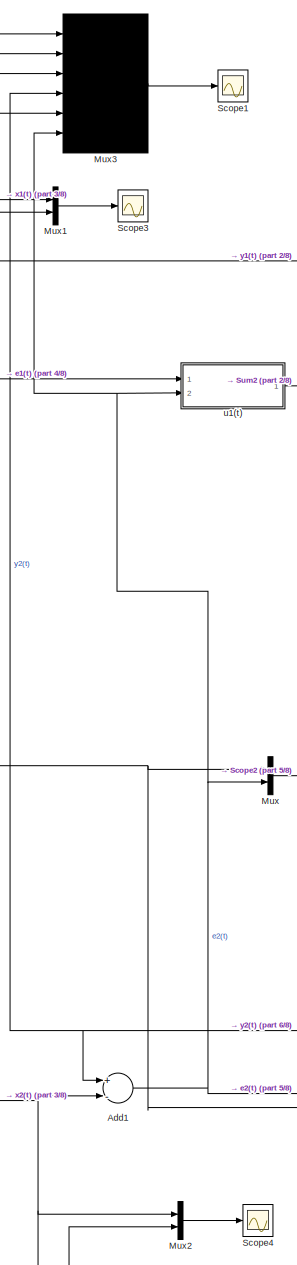
[diagram: root canvas - part 1/8, top center region]
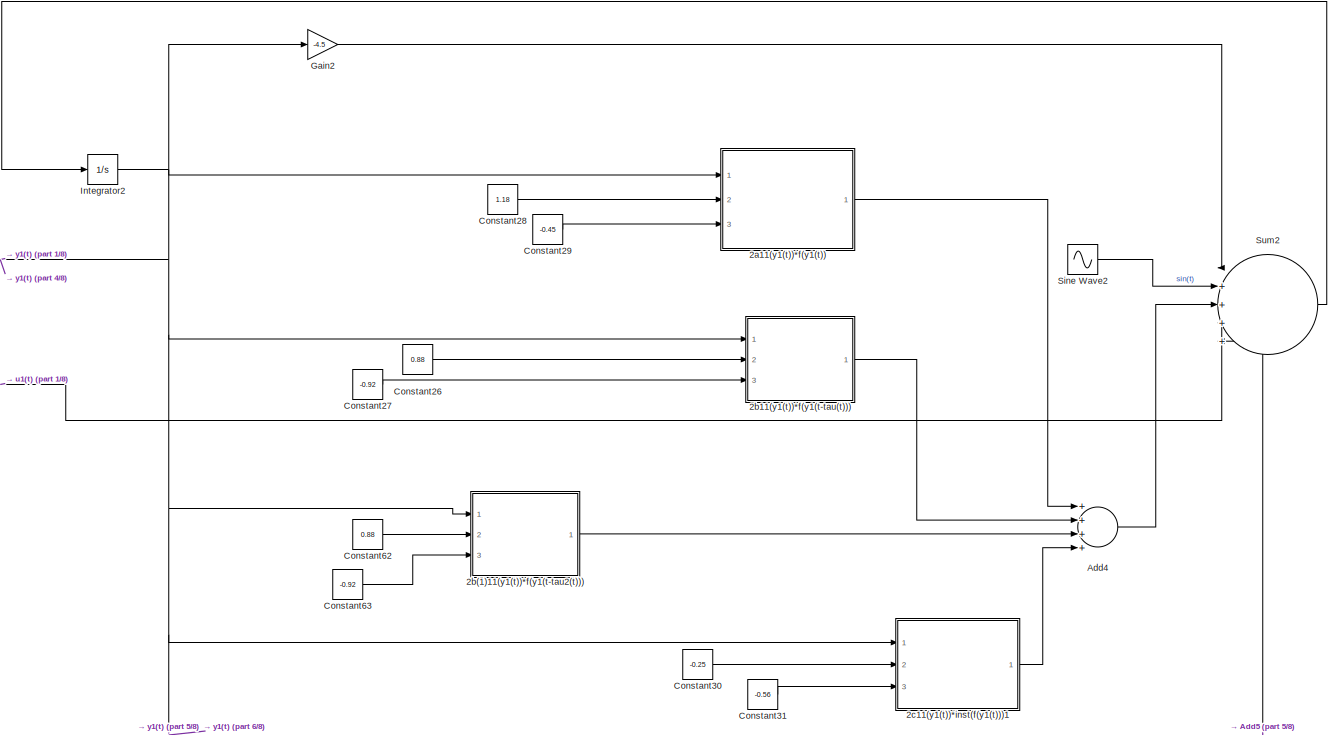
[diagram: root canvas - part 2/8, top right region]
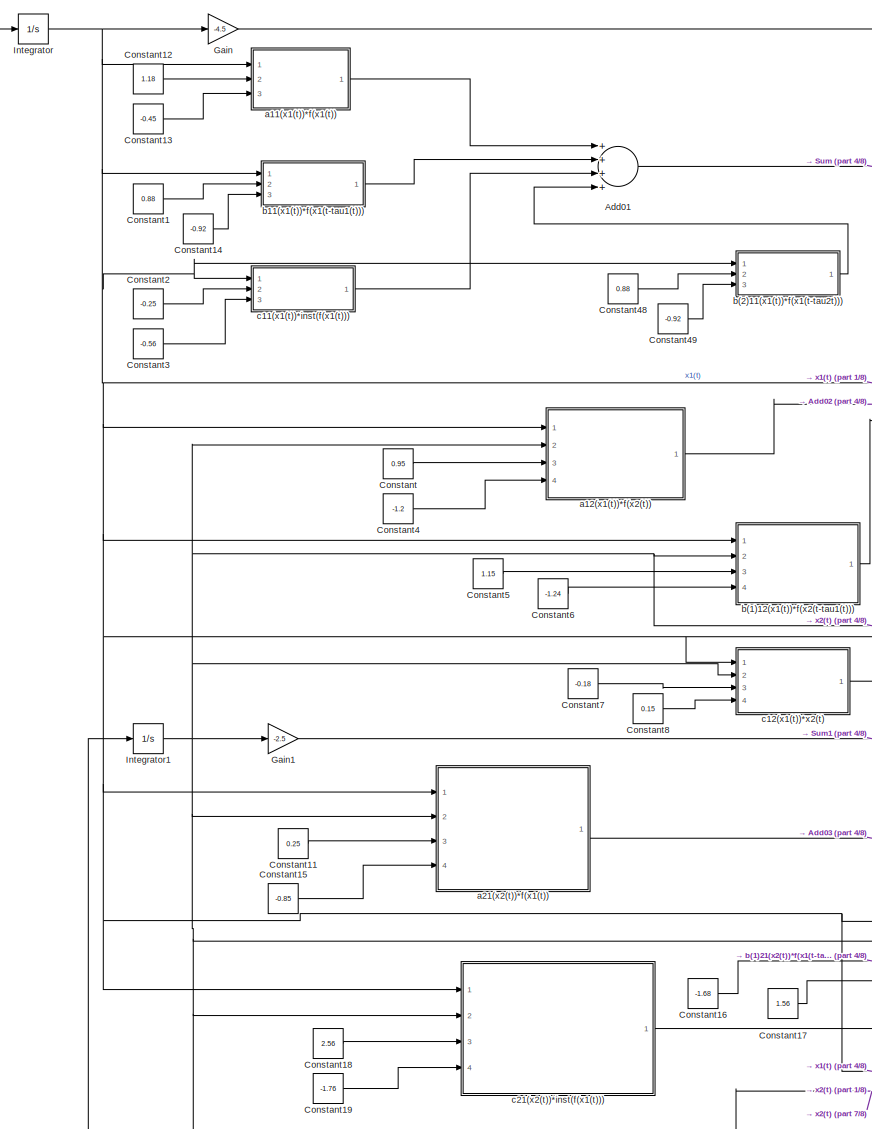
[diagram: root canvas - part 3/8, middle left region]
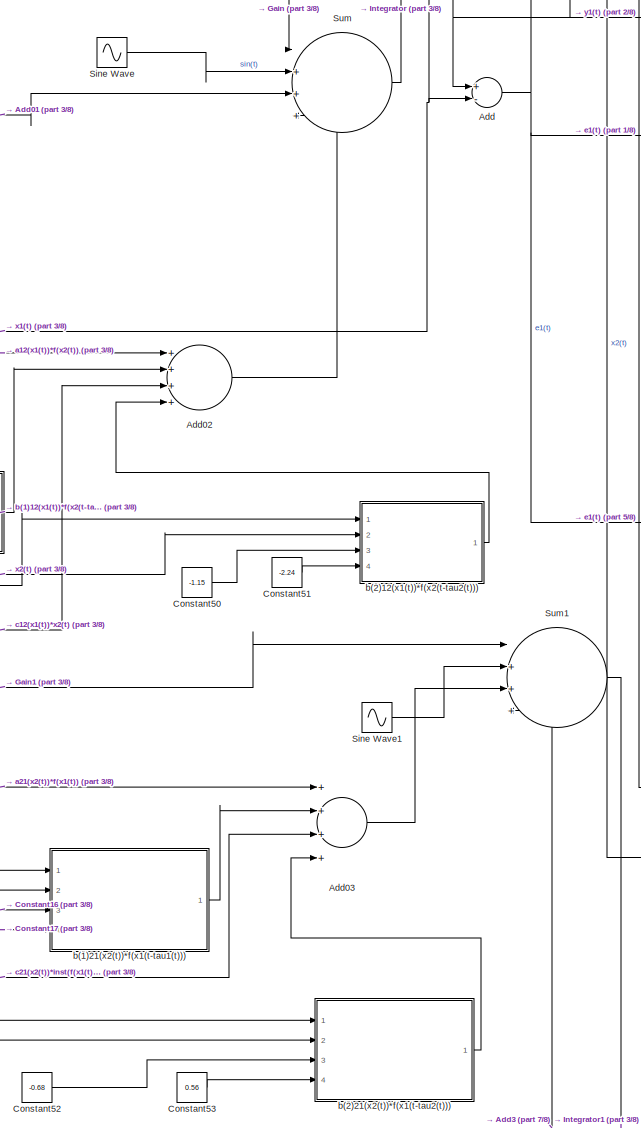
[diagram: root canvas - part 4/8, central region]
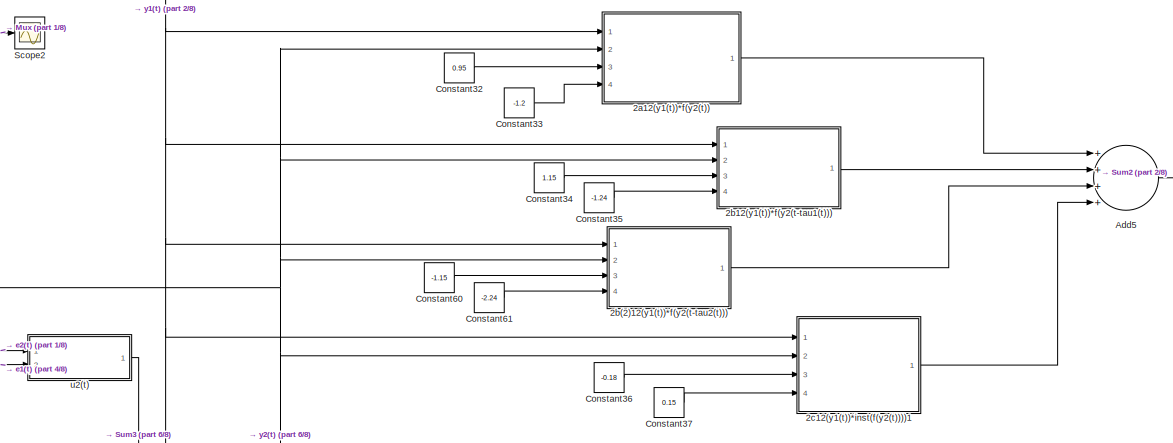
[diagram: root canvas - part 5/8, middle right region]
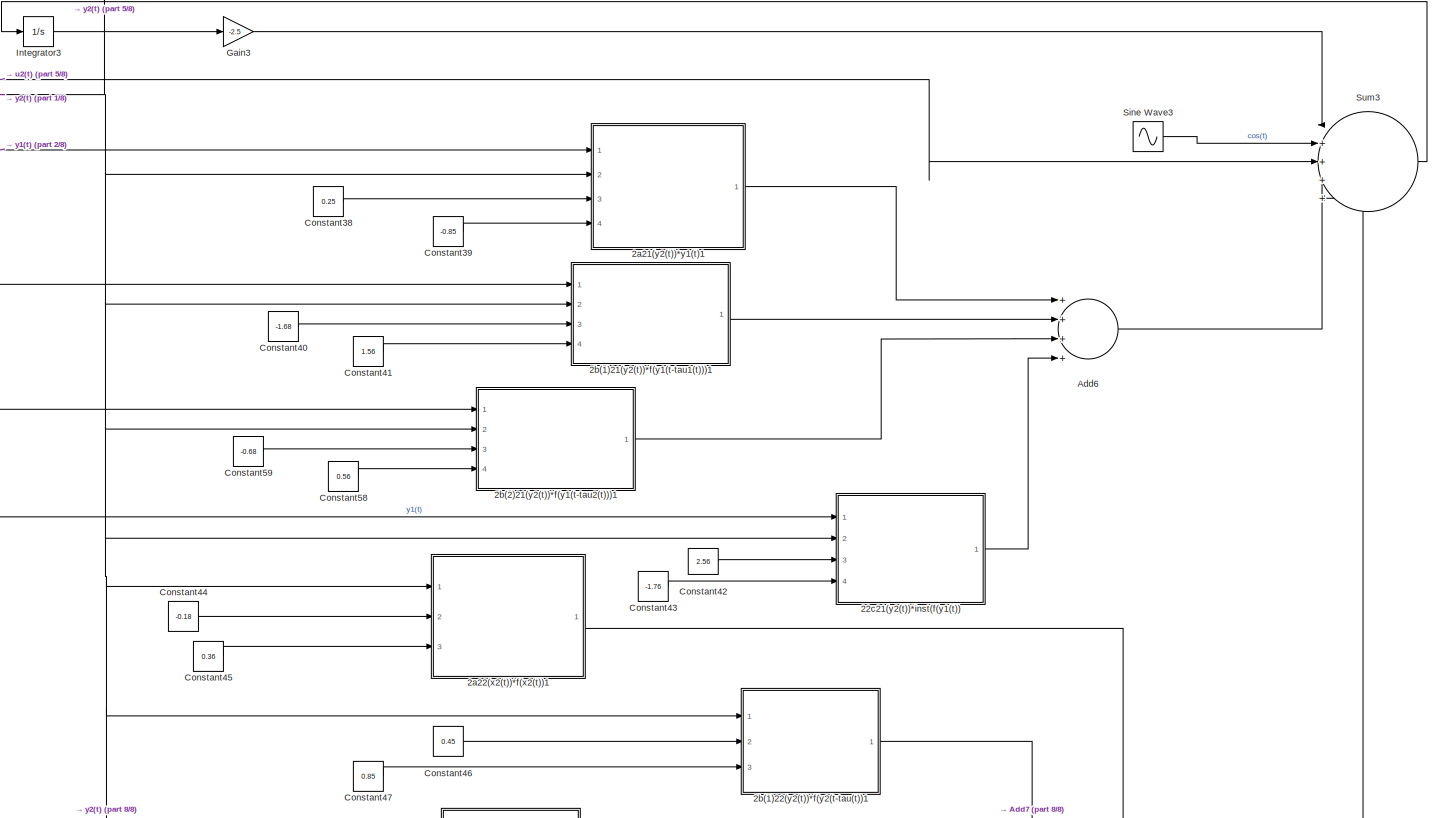
[diagram: root canvas - part 6/8, bottom right region]
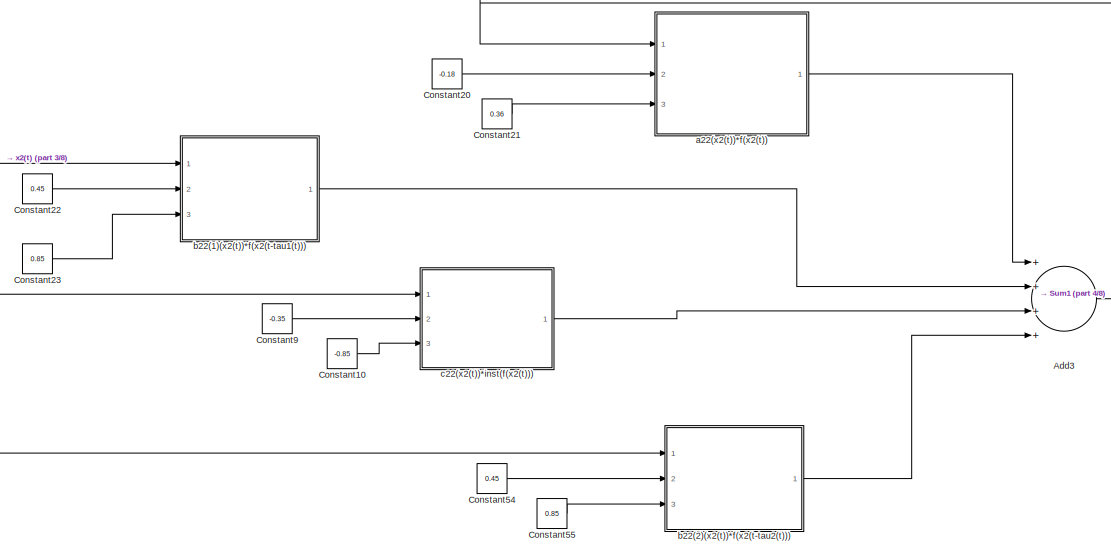
[diagram: root canvas - part 7/8, bottom left region]
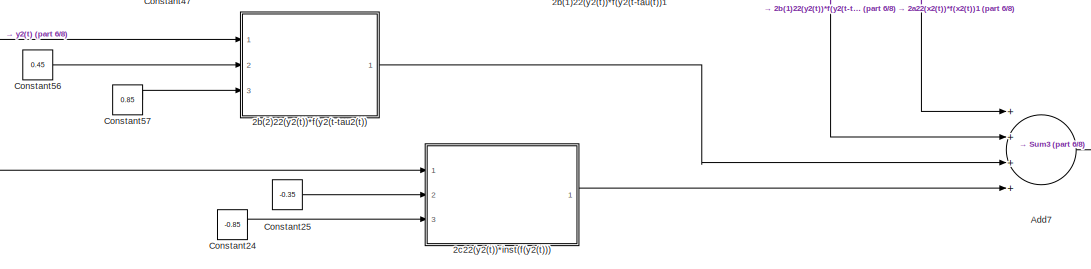
[diagram: root canvas - part 8/8, bottom right region]
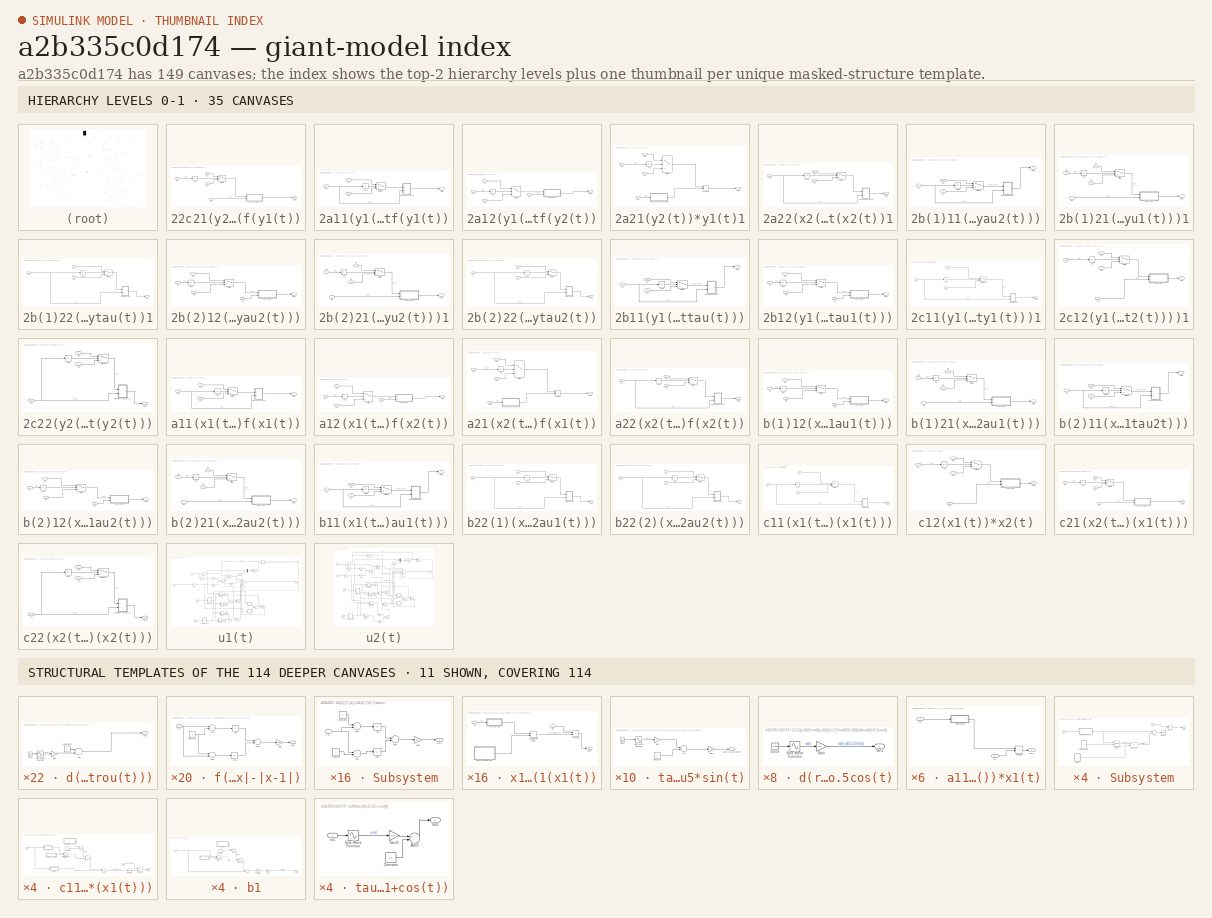
[diagram: thumbnail index - top-2 hierarchy levels (35 canvases) + 11 structural-template representatives of the remaining 114 canvases]
MODEL slx_a2b335c0d174
KIND model
BLOCK [SubSystem] 22c21(y2(t))*inst(f(y1(t))
  Ports = [4, 1]
  RequestExecContextInheritance = off
BLOCK [Abs] 22c21(y2(t))*inst(f(y1(t))/Abs
  SaturateOnIntegerOverflow = off
BLOCK [Inport] 22c21(y2(t))*inst(f(y1(t))/In1
  AttributesFormatString = %<Name>
  IconDisplay = Port number
BLOCK [Inport] 22c21(y2(t))*inst(f(y1(t))/In2
  AttributesFormatString = %<Name>
  IconDisplay = Port number
  Port = 2
BLOCK [Inport] 22c21(y2(t))*inst(f(y1(t))/In3
  AttributesFormatString = %<Name>
  IconDisplay = Port number
  Port = 3
BLOCK [Inport] 22c21(y2(t))*inst(f(y1(t))/In4
  AttributesFormatString = %<Name>
  IconDisplay = Port number
  Port = 4
BLOCK [Outport] 22c21(y2(t))*inst(f(y1(t))/Out1
  IconDisplay = Port number
BLOCK [SubSystem] 22c21(y2(t))*inst(f(y1(t))/Subsystem
  Ports = [2, 1]
  RequestExecContextInheritance = off
BLOCK [Sum] 22c21(y2(t))*inst(f(y1(t))/Subsystem/Add3
  InputSameDT = off
  Inputs = +-
  OutDataTypeStr = Inherit: Inherit via internal rule
  Ports = [2, 1]
  SaturateOnIntegerOverflow = off
BLOCK [Inport] 22c21(y2(t))*inst(f(y1(t))/Subsystem/In1
  IconDisplay = Port number
BLOCK [Inport] 22c21(y2(t))*inst(f(y1(t))/Subsystem/In2
  IconDisplay = Port number
  Port = 2
BLOCK [Integrator] 22c21(y2(t))*inst(f(y1(t))/Subsystem/Integrator
  AttributesFormatString = %<Name>\n%<InitialCondition>
  InitialCondition = 0.2
  Ports = [1, 1]
BLOCK [Outport] 22c21(y2(t))*inst(f(y1(t))/Subsystem/Out1
  IconDisplay = Port number
BLOCK [Product] 22c21(y2(t))*inst(f(y1(t))/Subsystem/Product
  InputSameDT = off
  OutDataTypeStr = Inherit: Inherit via internal rule
  Ports = [2, 1]
  RndMeth = Floor
  SaturateOnIntegerOverflow = off
BLOCK [Product] 22c21(y2(t))*inst(f(y1(t))/Subsystem/Product1
  InputSameDT = off
  OutDataTypeStr = Inherit: Inherit via internal rule
  Ports = [2, 1]
  RndMeth = Floor
  SaturateOnIntegerOverflow = off
BLOCK [VariableTransportDelay] 22c21(y2(t))*inst(f(y1(t))/Subsystem/Variable Time Delay
  AttributesFormatString = %<Name>
  MaximumDelay = 10
  MaximumPoints = 2^21
  Ports = [2, 1]
BLOCK [SubSystem] 22c21(y2(t))*inst(f(y1(t))/Subsystem/d(t-(rou(t)))
  Ports = [0, 1]
  RequestExecContextInheritance = off
BLOCK [Sum] 22c21(y2(t))*inst(f(y1(t))/Subsystem/d(t-(rou(t)))/Add
  InputSameDT = off
  Inputs = +-
  OutDataTypeStr = Inherit: Inherit via internal rule
  Ports = [2, 1]
  SaturateOnIntegerOverflow = off
BLOCK [Clock] 22c21(y2(t))*inst(f(y1(t))/Subsystem/d(t-(rou(t)))/Clock
BLOCK [Constant] 22c21(y2(t))*inst(f(y1(t))/Subsystem/d(t-(rou(t)))/Constant2
BLOCK [Gain] 22c21(y2(t))*inst(f(y1(t))/Subsystem/d(t-(rou(t)))/Gain
  Gain = 0.5
  OutDataTypeStr = Inherit: Inherit via internal rule
  ParamDataTypeStr = Inherit: Inherit via internal rule
  SaturateOnIntegerOverflow = off
BLOCK [Outport] 22c21(y2(t))*inst(f(y1(t))/Subsystem/d(t-(rou(t)))/Out1
  IconDisplay = Port number
BLOCK [Sin] 22c21(y2(t))*inst(f(y1(t))/Subsystem/d(t-(rou(t)))/Sine Wave Function
  AttributesFormatString = %<Name>
  Phase = 0.5*pi
  Ports = [1, 1]
  SampleTime = 0
  TimeSource = Use external signal
BLOCK [SubSystem] 22c21(y2(t))*inst(f(y1(t))/Subsystem/f(x(t))=0.5*(|x+1|-|x-1|)
  Ports = [1, 1]
  RequestExecContextInheritance = off
BLOCK [Abs] 22c21(y2(t))*inst(f(y1(t))/Subsystem/f(x(t))=0.5*(|x+1|-|x-1|)/Abs
  AttributesFormatString = %<Name>
  SaturateOnIntegerOverflow = off
BLOCK [Abs] 22c21(y2(t))*inst(f(y1(t))/Subsystem/f(x(t))=0.5*(|x+1|-|x-1|)/Abs1
  SaturateOnIntegerOverflow = off
BLOCK [Sum] 22c21(y2(t))*inst(f(y1(t))/Subsystem/f(x(t))=0.5*(|x+1|-|x-1|)/Add
  InputSameDT = off
  OutDataTypeStr = Inherit: Inherit via internal rule
  Ports = [2, 1]
  SaturateOnIntegerOverflow = off
BLOCK [Sum] 22c21(y2(t))*inst(f(y1(t))/Subsystem/f(x(t))=0.5*(|x+1|-|x-1|)/Add1
  InputSameDT = off
  Inputs = -+
  OutDataTypeStr = Inherit: Inherit via internal rule
  Ports = [2, 1]
  SaturateOnIntegerOverflow = off
BLOCK [Sum] 22c21(y2(t))*inst(f(y1(t))/Subsystem/f(x(t))=0.5*(|x+1|-|x-1|)/Add2
  InputSameDT = off
  Inputs = +-
  OutDataTypeStr = Inherit: Inherit via internal rule
  Ports = [2, 1]
  SaturateOnIntegerOverflow = off
BLOCK [Constant] 22c21(y2(t))*inst(f(y1(t))/Subsystem/f(x(t))=0.5*(|x+1|-|x-1|)/Constant
BLOCK [Gain] 22c21(y2(t))*inst(f(y1(t))/Subsystem/f(x(t))=0.5*(|x+1|-|x-1|)/Gain
  Gain = 0.5
  OutDataTypeStr = Inherit: Inherit via internal rule
  ParamDataTypeStr = Inherit: Inherit via internal rule
  SaturateOnIntegerOverflow = off
BLOCK [Inport] 22c21(y2(t))*inst(f(y1(t))/Subsystem/f(x(t))=0.5*(|x+1|-|x-1|)/In1
  AttributesFormatString = %<Name>
  IconDisplay = Port number
BLOCK [Outport] 22c21(y2(t))*inst(f(y1(t))/Subsystem/f(x(t))=0.5*(|x+1|-|x-1|)/Out1
  AttributesFormatString = %<Name>
  IconDisplay = Port number
BLOCK [SubSystem] 22c21(y2(t))*inst(f(y1(t))/Subsystem/rou(t)=0.5*(1+sin(t))
  Ports = [0, 1]
  RequestExecContextInheritance = off
BLOCK [Sum] 22c21(y2(t))*inst(f(y1(t))/Subsystem/rou(t)=0.5*(1+sin(t))/Add2
  InputSameDT = off
  OutDataTypeStr = Inherit: Inherit via internal rule
  Ports = [2, 1]
  SaturateOnIntegerOverflow = off
BLOCK [Clock] 22c21(y2(t))*inst(f(y1(t))/Subsystem/rou(t)=0.5*(1+sin(t))/Clock1
BLOCK [Constant] 22c21(y2(t))*inst(f(y1(t))/Subsystem/rou(t)=0.5*(1+sin(t))/Constant3
BLOCK [Gain] 22c21(y2(t))*inst(f(y1(t))/Subsystem/rou(t)=0.5*(1+sin(t))/Gain1
  Gain = 0.5
  OutDataTypeStr = Inherit: Inherit via internal rule
  ParamDataTypeStr = Inherit: Inherit via internal rule
  SaturateOnIntegerOverflow = off
BLOCK [Outport] 22c21(y2(t))*inst(f(y1(t))/Subsystem/rou(t)=0.5*(1+sin(t))/Out1
  IconDisplay = Port number
BLOCK [Sin] 22c21(y2(t))*inst(f(y1(t))/Subsystem/rou(t)=0.5*(1+sin(t))/Sine Wave Function1
  AttributesFormatString = %<Name>
  Ports = [1, 1]
  SampleTime = 0
  TimeSource = Use external signal
BLOCK [Switch] 22c21(y2(t))*inst(f(y1(t))/Switch
  Criteria = u2 > Threshold
  InputSameDT = off
  SaturateOnIntegerOverflow = off
  Threshold = 1
BLOCK [SubSystem] 2a11(y1(t))*f(y1(t))
  Ports = [3, 1]
  RequestExecContextInheritance = off
BLOCK [Abs] 2a11(y1(t))*f(y1(t))/Abs3
  SaturateOnIntegerOverflow = off
BLOCK [Inport] 2a11(y1(t))*f(y1(t))/In1
  IconDisplay = Port number
BLOCK [Inport] 2a11(y1(t))*f(y1(t))/In2
  IconDisplay = Port number
  Port = 2
BLOCK [Inport] 2a11(y1(t))*f(y1(t))/In3
  IconDisplay = Port number
  Port = 3
BLOCK [Outport] 2a11(y1(t))*f(y1(t))/Out1
  IconDisplay = Port number
BLOCK [Switch] 2a11(y1(t))*f(y1(t))/Switch4
  Criteria = u2 > Threshold
  InputSameDT = off
  SaturateOnIntegerOverflow = off
  Threshold = 1
BLOCK [SubSystem] 2a11(y1(t))*f(y1(t))/a11(x1(t))*x1(t)
  Ports = [2, 1]
  RequestExecContextInheritance = off
BLOCK [Inport] 2a11(y1(t))*f(y1(t))/a11(x1(t))*x1(t)/In2
  AttributesFormatString = %<Name>
  IconDisplay = Port number
  Port = 2
BLOCK [Outport] 2a11(y1(t))*f(y1(t))/a11(x1(t))*x1(t)/Out1
  IconDisplay = Port number
BLOCK [Product] 2a11(y1(t))*f(y1(t))/a11(x1(t))*x1(t)/Product
  InputSameDT = off
  OutDataTypeStr = Inherit: Inherit via internal rule
  Ports = [2, 1]
  SaturateOnIntegerOverflow = off
BLOCK [SubSystem] 2a11(y1(t))*f(y1(t))/a11(x1(t))*x1(t)/Subsystem
  Ports = [1, 1]
  RequestExecContextInheritance = off
BLOCK [Abs] 2a11(y1(t))*f(y1(t))/a11(x1(t))*x1(t)/Subsystem/Abs
  SaturateOnIntegerOverflow = off
BLOCK [Abs] 2a11(y1(t))*f(y1(t))/a11(x1(t))*x1(t)/Subsystem/Abs1
  SaturateOnIntegerOverflow = off
BLOCK [Sum] 2a11(y1(t))*f(y1(t))/a11(x1(t))*x1(t)/Subsystem/Add
  InputSameDT = off
  Inputs = +-
  OutDataTypeStr = Inherit: Inherit via internal rule
  Ports = [2, 1]
  SaturateOnIntegerOverflow = off
BLOCK [Sum] 2a11(y1(t))*f(y1(t))/a11(x1(t))*x1(t)/Subsystem/Add1
  InputSameDT = off
  OutDataTypeStr = Inherit: Inherit via internal rule
  Ports = [2, 1]
  SaturateOnIntegerOverflow = off
BLOCK [Sum] 2a11(y1(t))*f(y1(t))/a11(x1(t))*x1(t)/Subsystem/Add2
  InputSameDT = off
  Inputs = +-
  OutDataTypeStr = Inherit: Inherit via internal rule
  Ports = [2, 1]
  SaturateOnIntegerOverflow = off
BLOCK [Constant] 2a11(y1(t))*f(y1(t))/a11(x1(t))*x1(t)/Subsystem/Constant
BLOCK [Constant] 2a11(y1(t))*f(y1(t))/a11(x1(t))*x1(t)/Subsystem/Constant1
BLOCK [Gain] 2a11(y1(t))*f(y1(t))/a11(x1(t))*x1(t)/Subsystem/Gain
  Gain = 0.5
  OutDataTypeStr = Inherit: Inherit via internal rule
  ParamDataTypeStr = Inherit: Inherit via internal rule
  SaturateOnIntegerOverflow = off
BLOCK [Inport] 2a11(y1(t))*f(y1(t))/a11(x1(t))*x1(t)/Subsystem/In1
  IconDisplay = Port number
BLOCK [Outport] 2a11(y1(t))*f(y1(t))/a11(x1(t))*x1(t)/Subsystem/Out1
  IconDisplay = Port number
BLOCK [Inport] 2a11(y1(t))*f(y1(t))/a11(x1(t))*x1(t)/ln1
  IconDisplay = Port number
BLOCK [SubSystem] 2a12(y1(t))*f(y2(t))
  Ports = [4, 1]
  RequestExecContextInheritance = off
BLOCK [Abs] 2a12(y1(t))*f(y2(t))/Abs
  SaturateOnIntegerOverflow = off
BLOCK [Inport] 2a12(y1(t))*f(y2(t))/In1
  AttributesFormatString = %<Name>
  IconDisplay = Port number
BLOCK [Inport] 2a12(y1(t))*f(y2(t))/In2
  AttributesFormatString = %<Name>
  IconDisplay = Port number
  Port = 2
BLOCK [Inport] 2a12(y1(t))*f(y2(t))/In3
  AttributesFormatString = %<Name>
  IconDisplay = Port number
  Port = 3
BLOCK [Inport] 2a12(y1(t))*f(y2(t))/In4
  AttributesFormatString = %<Name>
  IconDisplay = Port number
  Port = 4
BLOCK [Outport] 2a12(y1(t))*f(y2(t))/Out1
  IconDisplay = Port number
BLOCK [SubSystem] 2a12(y1(t))*f(y2(t))/Subsystem
  Ports = [2, 1]
  RequestExecContextInheritance = off
BLOCK [Inport] 2a12(y1(t))*f(y2(t))/Subsystem/In1
  IconDisplay = Port number
BLOCK [Inport] 2a12(y1(t))*f(y2(t))/Subsystem/In2
  IconDisplay = Port number
  Port = 2
BLOCK [Outport] 2a12(y1(t))*f(y2(t))/Subsystem/Out1
  IconDisplay = Port number
BLOCK [Product] 2a12(y1(t))*f(y2(t))/Subsystem/Product
  InputSameDT = off
  OutDataTypeStr = Inherit: Inherit via internal rule
  Ports = [2, 1]
  RndMeth = Floor
  SaturateOnIntegerOverflow = off
BLOCK [SubSystem] 2a12(y1(t))*f(y2(t))/Subsystem/f(x2(t))
  Ports = [1, 1]
  RequestExecContextInheritance = off
BLOCK [Abs] 2a12(y1(t))*f(y2(t))/Subsystem/f(x2(t))/Abs
  SaturateOnIntegerOverflow = off
BLOCK [Abs] 2a12(y1(t))*f(y2(t))/Subsystem/f(x2(t))/Abs1
  SaturateOnIntegerOverflow = off
BLOCK [Sum] 2a12(y1(t))*f(y2(t))/Subsystem/f(x2(t))/Add
  InputSameDT = off
  OutDataTypeStr = Inherit: Inherit via internal rule
  Ports = [2, 1]
  SaturateOnIntegerOverflow = off
BLOCK [Sum] 2a12(y1(t))*f(y2(t))/Subsystem/f(x2(t))/Add1
  InputSameDT = off
  Inputs = -+
  OutDataTypeStr = Inherit: Inherit via internal rule
  Ports = [2, 1]
  SaturateOnIntegerOverflow = off
BLOCK [Sum] 2a12(y1(t))*f(y2(t))/Subsystem/f(x2(t))/Add2
  InputSameDT = off
  Inputs = +-
  OutDataTypeStr = Inherit: Inherit via internal rule
  Ports = [2, 1]
  SaturateOnIntegerOverflow = off
BLOCK [Constant] 2a12(y1(t))*f(y2(t))/Subsystem/f(x2(t))/Constant
BLOCK [Gain] 2a12(y1(t))*f(y2(t))/Subsystem/f(x2(t))/Gain
  Gain = 0.5
  OutDataTypeStr = Inherit: Inherit via internal rule
  ParamDataTypeStr = Inherit: Inherit via internal rule
  SaturateOnIntegerOverflow = off
BLOCK [Inport] 2a12(y1(t))*f(y2(t))/Subsystem/f(x2(t))/In1
  IconDisplay = Port number
BLOCK [Outport] 2a12(y1(t))*f(y2(t))/Subsystem/f(x2(t))/Out1
  IconDisplay = Port number
BLOCK [Switch] 2a12(y1(t))*f(y2(t))/Switch
  Criteria = u2 > Threshold
  InputSameDT = off
  SaturateOnIntegerOverflow = off
  Threshold = 1
BLOCK [SubSystem] 2a21(y2(t))*y1(t)1
  Ports = [4, 1]
  RequestExecContextInheritance = off
BLOCK [Abs] 2a21(y2(t))*y1(t)1/Abs
  AttributesFormatString = %<Name>
  SaturateOnIntegerOverflow = off
BLOCK [Inport] 2a21(y2(t))*y1(t)1/In1
  AttributesFormatString = %<Name>
  IconDisplay = Port number
BLOCK [Inport] 2a21(y2(t))*y1(t)1/In2
  AttributesFormatString = %<Name>
  IconDisplay = Port number
  Port = 2
BLOCK [Inport] 2a21(y2(t))*y1(t)1/In3
  AttributesFormatString = %<Name>
  IconDisplay = Port number
  Port = 3
BLOCK [Inport] 2a21(y2(t))*y1(t)1/In4
  AttributesFormatString = %<Name>
  IconDisplay = Port number
  Port = 4
BLOCK [Outport] 2a21(y2(t))*y1(t)1/Out1
  AttributesFormatString = %<Name>
  IconDisplay = Port number
BLOCK [Product] 2a21(y2(t))*y1(t)1/Product
  AttributesFormatString = %<Name>
  InputSameDT = off
  OutDataTypeStr = Inherit: Inherit via internal rule
  Ports = [2, 1]
  RndMeth = Floor
  SaturateOnIntegerOverflow = off
BLOCK [Switch] 2a21(y2(t))*y1(t)1/Switch
  Criteria = u2 > Threshold
  InputSameDT = off
  SaturateOnIntegerOverflow = off
  Threshold = 1
BLOCK [SubSystem] 2a21(y2(t))*y1(t)1/f1(x1(t))=(|x+1|-|x-1|)//2
  Ports = [1, 1]
  RequestExecContextInheritance = off
BLOCK [Abs] 2a21(y2(t))*y1(t)1/f1(x1(t))=(|x+1|-|x-1|)//2/Abs
  SaturateOnIntegerOverflow = off
BLOCK [Abs] 2a21(y2(t))*y1(t)1/f1(x1(t))=(|x+1|-|x-1|)//2/Abs1
  SaturateOnIntegerOverflow = off
BLOCK [Sum] 2a21(y2(t))*y1(t)1/f1(x1(t))=(|x+1|-|x-1|)//2/Add
  InputSameDT = off
  OutDataTypeStr = Inherit: Inherit via internal rule
  Ports = [2, 1]
  SaturateOnIntegerOverflow = off
BLOCK [Sum] 2a21(y2(t))*y1(t)1/f1(x1(t))=(|x+1|-|x-1|)//2/Add1
  InputSameDT = off
  Inputs = -+
  OutDataTypeStr = Inherit: Inherit via internal rule
  Ports = [2, 1]
  SaturateOnIntegerOverflow = off
BLOCK [Sum] 2a21(y2(t))*y1(t)1/f1(x1(t))=(|x+1|-|x-1|)//2/Add2
  InputSameDT = off
  Inputs = +-
  OutDataTypeStr = Inherit: Inherit via internal rule
  Ports = [2, 1]
  SaturateOnIntegerOverflow = off
BLOCK [Constant] 2a21(y2(t))*y1(t)1/f1(x1(t))=(|x+1|-|x-1|)//2/Constant
BLOCK [Gain] 2a21(y2(t))*y1(t)1/f1(x1(t))=(|x+1|-|x-1|)//2/Gain
  Gain = 0.5
  OutDataTypeStr = Inherit: Inherit via internal rule
  ParamDataTypeStr = Inherit: Inherit via internal rule
  SaturateOnIntegerOverflow = off
BLOCK [Inport] 2a21(y2(t))*y1(t)1/f1(x1(t))=(|x+1|-|x-1|)//2/In1
  IconDisplay = Port number
BLOCK [Outport] 2a21(y2(t))*y1(t)1/f1(x1(t))=(|x+1|-|x-1|)//2/Out1
  IconDisplay = Port number
BLOCK [SubSystem] 2a22(x2(t))*f(x2(t))1
  Ports = [3, 1]
  RequestExecContextInheritance = off
BLOCK [Abs] 2a22(x2(t))*f(x2(t))1/Abs3
  SaturateOnIntegerOverflow = off
BLOCK [Inport] 2a22(x2(t))*f(x2(t))1/In1
  IconDisplay = Port number
BLOCK [Inport] 2a22(x2(t))*f(x2(t))1/In2
  IconDisplay = Port number
  Port = 2
BLOCK [Inport] 2a22(x2(t))*f(x2(t))1/In3
  IconDisplay = Port number
  Port = 3
BLOCK [Outport] 2a22(x2(t))*f(x2(t))1/Out1
  IconDisplay = Port number
BLOCK [Switch] 2a22(x2(t))*f(x2(t))1/Switch4
  Criteria = u2 > Threshold
  InputSameDT = off
  SaturateOnIntegerOverflow = off
  Threshold = 1
BLOCK [SubSystem] 2a22(x2(t))*f(x2(t))1/a22(x2(t))*x2(t)
  Ports = [2, 1]
  RequestExecContextInheritance = off
BLOCK [Inport] 2a22(x2(t))*f(x2(t))1/a22(x2(t))*x2(t)/In2
  IconDisplay = Port number
  Port = 2
BLOCK [Outport] 2a22(x2(t))*f(x2(t))1/a22(x2(t))*x2(t)/Out1
  IconDisplay = Port number
BLOCK [Product] 2a22(x2(t))*f(x2(t))1/a22(x2(t))*x2(t)/Product
  InputSameDT = off
  OutDataTypeStr = Inherit: Inherit via internal rule
  Ports = [2, 1]
  SaturateOnIntegerOverflow = off
BLOCK [SubSystem] 2a22(x2(t))*f(x2(t))1/a22(x2(t))*x2(t)/f(x(t))=0.5*(|x+1|-|x-1|)
  Ports = [1, 1]
  RequestExecContextInheritance = off
BLOCK [Abs] 2a22(x2(t))*f(x2(t))1/a22(x2(t))*x2(t)/f(x(t))=0.5*(|x+1|-|x-1|)/Abs
  SaturateOnIntegerOverflow = off
BLOCK [Abs] 2a22(x2(t))*f(x2(t))1/a22(x2(t))*x2(t)/f(x(t))=0.5*(|x+1|-|x-1|)/Abs1
  SaturateOnIntegerOverflow = off
BLOCK [Sum] 2a22(x2(t))*f(x2(t))1/a22(x2(t))*x2(t)/f(x(t))=0.5*(|x+1|-|x-1|)/Add
  InputSameDT = off
  Inputs = +-
  OutDataTypeStr = Inherit: Inherit via internal rule
  Ports = [2, 1]
  SaturateOnIntegerOverflow = off
BLOCK [Sum] 2a22(x2(t))*f(x2(t))1/a22(x2(t))*x2(t)/f(x(t))=0.5*(|x+1|-|x-1|)/Add1
  InputSameDT = off
  OutDataTypeStr = Inherit: Inherit via internal rule
  Ports = [2, 1]
  SaturateOnIntegerOverflow = off
BLOCK [Sum] 2a22(x2(t))*f(x2(t))1/a22(x2(t))*x2(t)/f(x(t))=0.5*(|x+1|-|x-1|)/Add2
  InputSameDT = off
  Inputs = +-
  OutDataTypeStr = Inherit: Inherit via internal rule
  Ports = [2, 1]
  SaturateOnIntegerOverflow = off
BLOCK [Constant] 2a22(x2(t))*f(x2(t))1/a22(x2(t))*x2(t)/f(x(t))=0.5*(|x+1|-|x-1|)/Constant
BLOCK [Constant] 2a22(x2(t))*f(x2(t))1/a22(x2(t))*x2(t)/f(x(t))=0.5*(|x+1|-|x-1|)/Constant1
BLOCK [Gain] 2a22(x2(t))*f(x2(t))1/a22(x2(t))*x2(t)/f(x(t))=0.5*(|x+1|-|x-1|)/Gain
  Gain = 0.5
  OutDataTypeStr = Inherit: Inherit via internal rule
  ParamDataTypeStr = Inherit: Inherit via internal rule
  SaturateOnIntegerOverflow = off
BLOCK [Inport] 2a22(x2(t))*f(x2(t))1/a22(x2(t))*x2(t)/f(x(t))=0.5*(|x+1|-|x-1|)/In1
  IconDisplay = Port number
BLOCK [Outport] 2a22(x2(t))*f(x2(t))1/a22(x2(t))*x2(t)/f(x(t))=0.5*(|x+1|-|x-1|)/Out1
  IconDisplay = Port number
BLOCK [Inport] 2a22(x2(t))*f(x2(t))1/a22(x2(t))*x2(t)/ln1
  IconDisplay = Port number
BLOCK [SubSystem] 2b(1)11(y1(t))*f(y1(t-tau2(t)))
  Ports = [3, 1]
  RequestExecContextInheritance = off
BLOCK [Abs] 2b(1)11(y1(t))*f(y1(t-tau2(t)))/Abs1
  SaturateOnIntegerOverflow = off
BLOCK [Inport] 2b(1)11(y1(t))*f(y1(t-tau2(t)))/In1
  IconDisplay = Port number
BLOCK [Inport] 2b(1)11(y1(t))*f(y1(t-tau2(t)))/In2
  IconDisplay = Port number
  Port = 2
BLOCK [Inport] 2b(1)11(y1(t))*f(y1(t-tau2(t)))/In3
  IconDisplay = Port number
  Port = 3
BLOCK [Outport] 2b(1)11(y1(t))*f(y1(t-tau2(t)))/Out1
  IconDisplay = Port number
BLOCK [Switch] 2b(1)11(y1(t))*f(y1(t-tau2(t)))/Switch1
  Criteria = u2 > Threshold
  InputSameDT = off
  SaturateOnIntegerOverflow = off
  Threshold = 1
BLOCK [SubSystem] 2b(1)11(y1(t))*f(y1(t-tau2(t)))/x1(t)*b11(x1(t))
  Ports = [2, 1]
  RequestExecContextInheritance = off
BLOCK [Inport] 2b(1)11(y1(t))*f(y1(t-tau2(t)))/x1(t)*b11(x1(t))/In1
  IconDisplay = Port number
BLOCK [Inport] 2b(1)11(y1(t))*f(y1(t-tau2(t)))/x1(t)*b11(x1(t))/In2
  IconDisplay = Port number
  Port = 2
BLOCK [Outport] 2b(1)11(y1(t))*f(y1(t-tau2(t)))/x1(t)*b11(x1(t))/Out1
  IconDisplay = Port number
BLOCK [Product] 2b(1)11(y1(t))*f(y1(t-tau2(t)))/x1(t)*b11(x1(t))/Product1
  InputSameDT = off
  OutDataTypeStr = Inherit: Inherit via internal rule
  Ports = [2, 1]
  SaturateOnIntegerOverflow = off
BLOCK [VariableTransportDelay] 2b(1)11(y1(t))*f(y1(t-tau2(t)))/x1(t)*b11(x1(t))/Variable Time Delay
  MaximumDelay = 10
  MaximumPoints = 2^25
  Ports = [2, 1]
BLOCK [SubSystem] 2b(1)11(y1(t))*f(y1(t-tau2(t)))/x1(t)*b11(x1(t))/f=(|x+1|-|x-1|)//2
  Ports = [1, 1]
  RequestExecContextInheritance = off
BLOCK [Abs] 2b(1)11(y1(t))*f(y1(t-tau2(t)))/x1(t)*b11(x1(t))/f=(|x+1|-|x-1|)//2/Abs
  SaturateOnIntegerOverflow = off
BLOCK [Abs] 2b(1)11(y1(t))*f(y1(t-tau2(t)))/x1(t)*b11(x1(t))/f=(|x+1|-|x-1|)//2/Abs1
  SaturateOnIntegerOverflow = off
BLOCK [Sum] 2b(1)11(y1(t))*f(y1(t-tau2(t)))/x1(t)*b11(x1(t))/f=(|x+1|-|x-1|)//2/Add
  InputSameDT = off
  Inputs = +-
  OutDataTypeStr = Inherit: Inherit via internal rule
  Ports = [2, 1]
  SaturateOnIntegerOverflow = off
BLOCK [Sum] 2b(1)11(y1(t))*f(y1(t-tau2(t)))/x1(t)*b11(x1(t))/f=(|x+1|-|x-1|)//2/Add1
  InputSameDT = off
  OutDataTypeStr = Inherit: Inherit via internal rule
  Ports = [2, 1]
  SaturateOnIntegerOverflow = off
BLOCK [Sum] 2b(1)11(y1(t))*f(y1(t-tau2(t)))/x1(t)*b11(x1(t))/f=(|x+1|-|x-1|)//2/Add2
  InputSameDT = off
  Inputs = +-
  OutDataTypeStr = Inherit: Inherit via internal rule
  Ports = [2, 1]
  SaturateOnIntegerOverflow = off
BLOCK [Constant] 2b(1)11(y1(t))*f(y1(t-tau2(t)))/x1(t)*b11(x1(t))/f=(|x+1|-|x-1|)//2/Constant
BLOCK [Constant] 2b(1)11(y1(t))*f(y1(t-tau2(t)))/x1(t)*b11(x1(t))/f=(|x+1|-|x-1|)//2/Constant1
BLOCK [Gain] 2b(1)11(y1(t))*f(y1(t-tau2(t)))/x1(t)*b11(x1(t))/f=(|x+1|-|x-1|)//2/Gain
  Gain = 0.5
  OutDataTypeStr = Inherit: Inherit via internal rule
  ParamDataTypeStr = Inherit: Inherit via internal rule
  SaturateOnIntegerOverflow = off
BLOCK [Inport] 2b(1)11(y1(t))*f(y1(t-tau2(t)))/x1(t)*b11(x1(t))/f=(|x+1|-|x-1|)//2/In1
  IconDisplay = Port number
BLOCK [Outport] 2b(1)11(y1(t))*f(y1(t-tau2(t)))/x1(t)*b11(x1(t))/f=(|x+1|-|x-1|)//2/Out1
  IconDisplay = Port number
BLOCK [SubSystem] 2b(1)11(y1(t))*f(y1(t-tau2(t)))/x1(t)*b11(x1(t))/tau2(t)=0.5+0.5*sin(t)
  Ports = [0, 1]
  RequestExecContextInheritance = off
BLOCK [Sum] 2b(1)11(y1(t))*f(y1(t-tau2(t)))/x1(t)*b11(x1(t))/tau2(t)=0.5+0.5*sin(t)/Add
  InputSameDT = off
  OutDataTypeStr = Inherit: Inherit via internal rule
  Ports = [2, 1]
  SaturateOnIntegerOverflow = off
BLOCK [Clock] 2b(1)11(y1(t))*f(y1(t-tau2(t)))/x1(t)*b11(x1(t))/tau2(t)=0.5+0.5*sin(t)/Clock
BLOCK [Constant] 2b(1)11(y1(t))*f(y1(t-tau2(t)))/x1(t)*b11(x1(t))/tau2(t)=0.5+0.5*sin(t)/Constant
BLOCK [Gain] 2b(1)11(y1(t))*f(y1(t-tau2(t)))/x1(t)*b11(x1(t))/tau2(t)=0.5+0.5*sin(t)/Gain
  OutDataTypeStr = Inherit: Inherit via internal rule
  ParamDataTypeStr = Inherit: Inherit via internal rule
  SaturateOnIntegerOverflow = off
BLOCK [Gain] 2b(1)11(y1(t))*f(y1(t-tau2(t)))/x1(t)*b11(x1(t))/tau2(t)=0.5+0.5*sin(t)/Gain1
  Gain = 0.5
  OutDataTypeStr = Inherit: Inherit via internal rule
  ParamDataTypeStr = Inherit: Inherit via internal rule
  SaturateOnIntegerOverflow = off
BLOCK [Sin] 2b(1)11(y1(t))*f(y1(t-tau2(t)))/x1(t)*b11(x1(t))/tau2(t)=0.5+0.5*sin(t)/Sine Wave Function
  AttributesFormatString = %<Name>
  Ports = [1, 1]
  SampleTime = 0
  TimeSource = Use external signal
BLOCK [Outport] 2b(1)11(y1(t))*f(y1(t-tau2(t)))/x1(t)*b11(x1(t))/tau2(t)=0.5+0.5*sin(t)/tau(t)=0.5+0.5*sin(t)
  IconDisplay = Port number
BLOCK [SubSystem] 2b(1)21(y2(t))*f(y1(t-tau1(t)))1
  Ports = [4, 1]
  RequestExecContextInheritance = off
BLOCK [Abs] 2b(1)21(y2(t))*f(y1(t-tau1(t)))1/Abs
  SaturateOnIntegerOverflow = off
BLOCK [Inport] 2b(1)21(y2(t))*f(y1(t-tau1(t)))1/In1
  AttributesFormatString = %<Name>
  IconDisplay = Port number
BLOCK [Inport] 2b(1)21(y2(t))*f(y1(t-tau1(t)))1/In2
  AttributesFormatString = %<Name>
  IconDisplay = Port number
  Port = 2
BLOCK [Inport] 2b(1)21(y2(t))*f(y1(t-tau1(t)))1/In3
  AttributesFormatString = %<Name>
  IconDisplay = Port number
  Port = 3
BLOCK [Inport] 2b(1)21(y2(t))*f(y1(t-tau1(t)))1/In4
  AttributesFormatString = %<Name>
  IconDisplay = Port number
  Port = 4
BLOCK [Outport] 2b(1)21(y2(t))*f(y1(t-tau1(t)))1/Out1
  IconDisplay = Port number
BLOCK [SubSystem] 2b(1)21(y2(t))*f(y1(t-tau1(t)))1/Subsystem
  Ports = [2, 1]
  RequestExecContextInheritance = off
BLOCK [Inport] 2b(1)21(y2(t))*f(y1(t-tau1(t)))1/Subsystem/In1
  AttributesFormatString = %<Name>
  IconDisplay = Port number
BLOCK [Inport] 2b(1)21(y2(t))*f(y1(t-tau1(t)))1/Subsystem/In2
  IconDisplay = Port number
  Port = 2
BLOCK [Outport] 2b(1)21(y2(t))*f(y1(t-tau1(t)))1/Subsystem/Out1
  AttributesFormatString = %<Name>
  IconDisplay = Port number
BLOCK [Product] 2b(1)21(y2(t))*f(y1(t-tau1(t)))1/Subsystem/Product
  InputSameDT = off
  OutDataTypeStr = Inherit: Inherit via internal rule
  Ports = [2, 1]
  RndMeth = Floor
  SaturateOnIntegerOverflow = off
BLOCK [VariableTransportDelay] 2b(1)21(y2(t))*f(y1(t-tau1(t)))1/Subsystem/Variable Time Delay
  AttributesFormatString = %<Name>
  MaximumDelay = 10
  MaximumPoints = 2^25
  Ports = [2, 1]
BLOCK [SubSystem] 2b(1)21(y2(t))*f(y1(t-tau1(t)))1/Subsystem/f(x(t))=0.5*(|x+1|-|x-1|)
  Ports = [1, 1]
  RequestExecContextInheritance = off
BLOCK [Abs] 2b(1)21(y2(t))*f(y1(t-tau1(t)))1/Subsystem/f(x(t))=0.5*(|x+1|-|x-1|)/Abs
  AttributesFormatString = %<Name>
  SaturateOnIntegerOverflow = off
BLOCK [Abs] 2b(1)21(y2(t))*f(y1(t-tau1(t)))1/Subsystem/f(x(t))=0.5*(|x+1|-|x-1|)/Abs1
  SaturateOnIntegerOverflow = off
BLOCK [Sum] 2b(1)21(y2(t))*f(y1(t-tau1(t)))1/Subsystem/f(x(t))=0.5*(|x+1|-|x-1|)/Add
  InputSameDT = off
  OutDataTypeStr = Inherit: Inherit via internal rule
  Ports = [2, 1]
  SaturateOnIntegerOverflow = off
BLOCK [Sum] 2b(1)21(y2(t))*f(y1(t-tau1(t)))1/Subsystem/f(x(t))=0.5*(|x+1|-|x-1|)/Add1
  InputSameDT = off
  Inputs = -+
  OutDataTypeStr = Inherit: Inherit via internal rule
  Ports = [2, 1]
  SaturateOnIntegerOverflow = off
BLOCK [Sum] 2b(1)21(y2(t))*f(y1(t-tau1(t)))1/Subsystem/f(x(t))=0.5*(|x+1|-|x-1|)/Add2
  InputSameDT = off
  Inputs = +-
  OutDataTypeStr = Inherit: Inherit via internal rule
  Ports = [2, 1]
  SaturateOnIntegerOverflow = off
BLOCK [Constant] 2b(1)21(y2(t))*f(y1(t-tau1(t)))1/Subsystem/f(x(t))=0.5*(|x+1|-|x-1|)/Constant
BLOCK [Gain] 2b(1)21(y2(t))*f(y1(t-tau1(t)))1/Subsystem/f(x(t))=0.5*(|x+1|-|x-1|)/Gain
  Gain = 0.5
  OutDataTypeStr = Inherit: Inherit via internal rule
  ParamDataTypeStr = Inherit: Inherit via internal rule
  SaturateOnIntegerOverflow = off
BLOCK [Inport] 2b(1)21(y2(t))*f(y1(t-tau1(t)))1/Subsystem/f(x(t))=0.5*(|x+1|-|x-1|)/In1
  AttributesFormatString = %<Name>
  IconDisplay = Port number
BLOCK [Outport] 2b(1)21(y2(t))*f(y1(t-tau1(t)))1/Subsystem/f(x(t))=0.5*(|x+1|-|x-1|)/Out1
  AttributesFormatString = %<Name>
  IconDisplay = Port number
BLOCK [SubSystem] 2b(1)21(y2(t))*f(y1(t-tau1(t)))1/Subsystem/tau(t)=0.5+0.5*cos(t)
  Ports = [0, 1]
  RequestExecContextInheritance = off
BLOCK [Sum] 2b(1)21(y2(t))*f(y1(t-tau1(t)))1/Subsystem/tau(t)=0.5+0.5*cos(t)/Add
  InputSameDT = off
  OutDataTypeStr = Inherit: Inherit via internal rule
  Ports = [2, 1]
  SaturateOnIntegerOverflow = off
BLOCK [Clock] 2b(1)21(y2(t))*f(y1(t-tau1(t)))1/Subsystem/tau(t)=0.5+0.5*cos(t)/Clock
BLOCK [Constant] 2b(1)21(y2(t))*f(y1(t-tau1(t)))1/Subsystem/tau(t)=0.5+0.5*cos(t)/Constant2
BLOCK [Gain] 2b(1)21(y2(t))*f(y1(t-tau1(t)))1/Subsystem/tau(t)=0.5+0.5*cos(t)/Gain
  Gain = 0.5
  OutDataTypeStr = Inherit: Inherit via internal rule
  ParamDataTypeStr = Inherit: Inherit via internal rule
  SaturateOnIntegerOverflow = off
BLOCK [Outport] 2b(1)21(y2(t))*f(y1(t-tau1(t)))1/Subsystem/tau(t)=0.5+0.5*cos(t)/Out1
  IconDisplay = Port number
BLOCK [Sin] 2b(1)21(y2(t))*f(y1(t-tau1(t)))1/Subsystem/tau(t)=0.5+0.5*cos(t)/Sine Wave Function
  AttributesFormatString = %<Name>
  Phase = 0.5*pi
  Ports = [1, 1]
  SampleTime = 0
  TimeSource = Use external signal
BLOCK [Switch] 2b(1)21(y2(t))*f(y1(t-tau1(t)))1/Switch
  AttributesFormatString = %<Name>
  Criteria = u2 > Threshold
  InputSameDT = off
  SaturateOnIntegerOverflow = off
  Threshold = 1
BLOCK [SubSystem] 2b(1)22(y2(t))*f(y2(t-tau(t))1
  Ports = [3, 1]
  RequestExecContextInheritance = off
BLOCK [Abs] 2b(1)22(y2(t))*f(y2(t-tau(t))1/Abs1
  SaturateOnIntegerOverflow = off
BLOCK [Inport] 2b(1)22(y2(t))*f(y2(t-tau(t))1/In1
  IconDisplay = Port number
BLOCK [Inport] 2b(1)22(y2(t))*f(y2(t-tau(t))1/In2
  IconDisplay = Port number
  Port = 2
BLOCK [Inport] 2b(1)22(y2(t))*f(y2(t-tau(t))1/In3
  IconDisplay = Port number
  Port = 3
BLOCK [Outport] 2b(1)22(y2(t))*f(y2(t-tau(t))1/Out1
  IconDisplay = Port number
BLOCK [Switch] 2b(1)22(y2(t))*f(y2(t-tau(t))1/Switch1
  Criteria = u2 > Threshold
  InputSameDT = off
  SaturateOnIntegerOverflow = off
  Threshold = 1
BLOCK [SubSystem] 2b(1)22(y2(t))*f(y2(t-tau(t))1/x2(t)*b22(x2(t))
  Ports = [2, 1]
  RequestExecContextInheritance = off
BLOCK [Inport] 2b(1)22(y2(t))*f(y2(t-tau(t))1/x2(t)*b22(x2(t))/In1
  IconDisplay = Port number
BLOCK [Inport] 2b(1)22(y2(t))*f(y2(t-tau(t))1/x2(t)*b22(x2(t))/In2
  IconDisplay = Port number
  Port = 2
BLOCK [Outport] 2b(1)22(y2(t))*f(y2(t-tau(t))1/x2(t)*b22(x2(t))/Out1
  IconDisplay = Port number
BLOCK [Product] 2b(1)22(y2(t))*f(y2(t-tau(t))1/x2(t)*b22(x2(t))/Product1
  InputSameDT = off
  OutDataTypeStr = Inherit: Inherit via internal rule
  Ports = [2, 1]
  SaturateOnIntegerOverflow = off
BLOCK [VariableTransportDelay] 2b(1)22(y2(t))*f(y2(t-tau(t))1/x2(t)*b22(x2(t))/Variable Time Delay
  MaximumDelay = 10
  MaximumPoints = 2^25
  Ports = [2, 1]
BLOCK [SubSystem] 2b(1)22(y2(t))*f(y2(t-tau(t))1/x2(t)*b22(x2(t))/f(x(t))=0.5*(|x+1|-|x-1|)
  Ports = [1, 1]
  RequestExecContextInheritance = off
BLOCK [Abs] 2b(1)22(y2(t))*f(y2(t-tau(t))1/x2(t)*b22(x2(t))/f(x(t))=0.5*(|x+1|-|x-1|)/Abs
  SaturateOnIntegerOverflow = off
BLOCK [Abs] 2b(1)22(y2(t))*f(y2(t-tau(t))1/x2(t)*b22(x2(t))/f(x(t))=0.5*(|x+1|-|x-1|)/Abs1
  SaturateOnIntegerOverflow = off
BLOCK [Sum] 2b(1)22(y2(t))*f(y2(t-tau(t))1/x2(t)*b22(x2(t))/f(x(t))=0.5*(|x+1|-|x-1|)/Add
  InputSameDT = off
  Inputs = +-
  OutDataTypeStr = Inherit: Inherit via internal rule
  Ports = [2, 1]
  SaturateOnIntegerOverflow = off
BLOCK [Sum] 2b(1)22(y2(t))*f(y2(t-tau(t))1/x2(t)*b22(x2(t))/f(x(t))=0.5*(|x+1|-|x-1|)/Add1
  InputSameDT = off
  OutDataTypeStr = Inherit: Inherit via internal rule
  Ports = [2, 1]
  SaturateOnIntegerOverflow = off
BLOCK [Sum] 2b(1)22(y2(t))*f(y2(t-tau(t))1/x2(t)*b22(x2(t))/f(x(t))=0.5*(|x+1|-|x-1|)/Add2
  InputSameDT = off
  Inputs = +-
  OutDataTypeStr = Inherit: Inherit via internal rule
  Ports = [2, 1]
  SaturateOnIntegerOverflow = off
BLOCK [Constant] 2b(1)22(y2(t))*f(y2(t-tau(t))1/x2(t)*b22(x2(t))/f(x(t))=0.5*(|x+1|-|x-1|)/Constant
BLOCK [Constant] 2b(1)22(y2(t))*f(y2(t-tau(t))1/x2(t)*b22(x2(t))/f(x(t))=0.5*(|x+1|-|x-1|)/Constant1
BLOCK [Gain] 2b(1)22(y2(t))*f(y2(t-tau(t))1/x2(t)*b22(x2(t))/f(x(t))=0.5*(|x+1|-|x-1|)/Gain
  Gain = 0.5
  OutDataTypeStr = Inherit: Inherit via internal rule
  ParamDataTypeStr = Inherit: Inherit via internal rule
  SaturateOnIntegerOverflow = off
BLOCK [Inport] 2b(1)22(y2(t))*f(y2(t-tau(t))1/x2(t)*b22(x2(t))/f(x(t))=0.5*(|x+1|-|x-1|)/In1
  IconDisplay = Port number
BLOCK [Outport] 2b(1)22(y2(t))*f(y2(t-tau(t))1/x2(t)*b22(x2(t))/f(x(t))=0.5*(|x+1|-|x-1|)/Out1
  IconDisplay = Port number
BLOCK [SubSystem] 2b(1)22(y2(t))*f(y2(t-tau(t))1/x2(t)*b22(x2(t))/tau(t)=0.5+0.5*cos(t)
  Ports = [0, 1]
  RequestExecContextInheritance = off
BLOCK [Sum] 2b(1)22(y2(t))*f(y2(t-tau(t))1/x2(t)*b22(x2(t))/tau(t)=0.5+0.5*cos(t)/Add
  InputSameDT = off
  OutDataTypeStr = Inherit: Inherit via internal rule
  Ports = [2, 1]
  SaturateOnIntegerOverflow = off
BLOCK [Clock] 2b(1)22(y2(t))*f(y2(t-tau(t))1/x2(t)*b22(x2(t))/tau(t)=0.5+0.5*cos(t)/Clock
BLOCK [Constant] 2b(1)22(y2(t))*f(y2(t-tau(t))1/x2(t)*b22(x2(t))/tau(t)=0.5+0.5*cos(t)/Constant
BLOCK [Gain] 2b(1)22(y2(t))*f(y2(t-tau(t))1/x2(t)*b22(x2(t))/tau(t)=0.5+0.5*cos(t)/Gain
  OutDataTypeStr = Inherit: Inherit via internal rule
  ParamDataTypeStr = Inherit: Inherit via internal rule
  SaturateOnIntegerOverflow = off
BLOCK [Gain] 2b(1)22(y2(t))*f(y2(t-tau(t))1/x2(t)*b22(x2(t))/tau(t)=0.5+0.5*cos(t)/Gain1
  Gain = 0.5
  OutDataTypeStr = Inherit: Inherit via internal rule
  ParamDataTypeStr = Inherit: Inherit via internal rule
  SaturateOnIntegerOverflow = off
BLOCK [Outport] 2b(1)22(y2(t))*f(y2(t-tau(t))1/x2(t)*b22(x2(t))/tau(t)=0.5+0.5*cos(t)/Out1
  IconDisplay = Port number
BLOCK [Sin] 2b(1)22(y2(t))*f(y2(t-tau(t))1/x2(t)*b22(x2(t))/tau(t)=0.5+0.5*cos(t)/Sine Wave Function
  AttributesFormatString = %<Name>
  Phase = 0.5*pi
  Ports = [1, 1]
  SampleTime = 0
  TimeSource = Use external signal
BLOCK [SubSystem] 2b(2)12(y1(t))*f(y2(t-tau2(t)))
  Ports = [4, 1]
  RequestExecContextInheritance = off
BLOCK [Abs] 2b(2)12(y1(t))*f(y2(t-tau2(t)))/Abs
  SaturateOnIntegerOverflow = off
BLOCK [Inport] 2b(2)12(y1(t))*f(y2(t-tau2(t)))/In1
  IconDisplay = Port number
BLOCK [Inport] 2b(2)12(y1(t))*f(y2(t-tau2(t)))/In2
  IconDisplay = Port number
  Port = 2
BLOCK [Inport] 2b(2)12(y1(t))*f(y2(t-tau2(t)))/In3
  IconDisplay = Port number
  Port = 3
BLOCK [Inport] 2b(2)12(y1(t))*f(y2(t-tau2(t)))/In4
  IconDisplay = Port number
  Port = 4
BLOCK [Outport] 2b(2)12(y1(t))*f(y2(t-tau2(t)))/Out1
  AttributesFormatString = %<Name>
  IconDisplay = Port number
BLOCK [SubSystem] 2b(2)12(y1(t))*f(y2(t-tau2(t)))/Subsystem
  Ports = [2, 1]
  RequestExecContextInheritance = off
BLOCK [Inport] 2b(2)12(y1(t))*f(y2(t-tau2(t)))/Subsystem/In1
  AttributesFormatString = %<Name>
  IconDisplay = Port number
BLOCK [Inport] 2b(2)12(y1(t))*f(y2(t-tau2(t)))/Subsystem/In2
  AttributesFormatString = %<Name>
  IconDisplay = Port number
  Port = 2
BLOCK [Outport] 2b(2)12(y1(t))*f(y2(t-tau2(t)))/Subsystem/Out1
  IconDisplay = Port number
BLOCK [Product] 2b(2)12(y1(t))*f(y2(t-tau2(t)))/Subsystem/Product
  InputSameDT = off
  OutDataTypeStr = Inherit: Inherit via internal rule
  Ports = [2, 1]
  RndMeth = Floor
  SaturateOnIntegerOverflow = off
BLOCK [VariableTransportDelay] 2b(2)12(y1(t))*f(y2(t-tau2(t)))/Subsystem/Variable Time Delay
  AttributesFormatString = %<Name>
  MaximumDelay = 10
  MaximumPoints = 2^25
  Ports = [2, 1]
BLOCK [SubSystem] 2b(2)12(y1(t))*f(y2(t-tau2(t)))/Subsystem/f=(|x+1|-|x-1|)//2
  Ports = [1, 1]
  RequestExecContextInheritance = off
BLOCK [Abs] 2b(2)12(y1(t))*f(y2(t-tau2(t)))/Subsystem/f=(|x+1|-|x-1|)//2/Abs
  AttributesFormatString = %<Name>
  SaturateOnIntegerOverflow = off
BLOCK [Abs] 2b(2)12(y1(t))*f(y2(t-tau2(t)))/Subsystem/f=(|x+1|-|x-1|)//2/Abs1
  SaturateOnIntegerOverflow = off
BLOCK [Sum] 2b(2)12(y1(t))*f(y2(t-tau2(t)))/Subsystem/f=(|x+1|-|x-1|)//2/Add
  InputSameDT = off
  OutDataTypeStr = Inherit: Inherit via internal rule
  Ports = [2, 1]
  SaturateOnIntegerOverflow = off
BLOCK [Sum] 2b(2)12(y1(t))*f(y2(t-tau2(t)))/Subsystem/f=(|x+1|-|x-1|)//2/Add1
  InputSameDT = off
  Inputs = -+
  OutDataTypeStr = Inherit: Inherit via internal rule
  Ports = [2, 1]
  SaturateOnIntegerOverflow = off
BLOCK [Sum] 2b(2)12(y1(t))*f(y2(t-tau2(t)))/Subsystem/f=(|x+1|-|x-1|)//2/Add2
  InputSameDT = off
  Inputs = +-
  OutDataTypeStr = Inherit: Inherit via internal rule
  Ports = [2, 1]
  SaturateOnIntegerOverflow = off
BLOCK [Constant] 2b(2)12(y1(t))*f(y2(t-tau2(t)))/Subsystem/f=(|x+1|-|x-1|)//2/Constant
BLOCK [Gain] 2b(2)12(y1(t))*f(y2(t-tau2(t)))/Subsystem/f=(|x+1|-|x-1|)//2/Gain
  Gain = 0.5
  OutDataTypeStr = Inherit: Inherit via internal rule
  ParamDataTypeStr = Inherit: Inherit via internal rule
  SaturateOnIntegerOverflow = off
BLOCK [Inport] 2b(2)12(y1(t))*f(y2(t-tau2(t)))/Subsystem/f=(|x+1|-|x-1|)//2/In1
  AttributesFormatString = %<Name>
  IconDisplay = Port number
BLOCK [Outport] 2b(2)12(y1(t))*f(y2(t-tau2(t)))/Subsystem/f=(|x+1|-|x-1|)//2/Out1
  AttributesFormatString = %<Name>
  IconDisplay = Port number
BLOCK [SubSystem] 2b(2)12(y1(t))*f(y2(t-tau2(t)))/Subsystem/tau(t)=0.5+0.5*sin(t)
  Ports = [0, 1]
  RequestExecContextInheritance = off
BLOCK [Sum] 2b(2)12(y1(t))*f(y2(t-tau2(t)))/Subsystem/tau(t)=0.5+0.5*sin(t)/Add
  InputSameDT = off
  OutDataTypeStr = Inherit: Inherit via internal rule
  Ports = [2, 1]
  SaturateOnIntegerOverflow = off
BLOCK [Clock] 2b(2)12(y1(t))*f(y2(t-tau2(t)))/Subsystem/tau(t)=0.5+0.5*sin(t)/Clock
BLOCK [Constant] 2b(2)12(y1(t))*f(y2(t-tau2(t)))/Subsystem/tau(t)=0.5+0.5*sin(t)/Constant2
BLOCK [Gain] 2b(2)12(y1(t))*f(y2(t-tau2(t)))/Subsystem/tau(t)=0.5+0.5*sin(t)/Gain
  Gain = 0.5
  OutDataTypeStr = Inherit: Inherit via internal rule
  ParamDataTypeStr = Inherit: Inherit via internal rule
  SaturateOnIntegerOverflow = off
BLOCK [Outport] 2b(2)12(y1(t))*f(y2(t-tau2(t)))/Subsystem/tau(t)=0.5+0.5*sin(t)/Out1
  IconDisplay = Port number
BLOCK [Sin] 2b(2)12(y1(t))*f(y2(t-tau2(t)))/Subsystem/tau(t)=0.5+0.5*sin(t)/Sine Wave Function
  AttributesFormatString = %<Name>
  Ports = [1, 1]
  SampleTime = 0
  TimeSource = Use external signal
BLOCK [Switch] 2b(2)12(y1(t))*f(y2(t-tau2(t)))/Switch
  Criteria = u2 > Threshold
  InputSameDT = off
  SaturateOnIntegerOverflow = off
  Threshold = 1
BLOCK [SubSystem] 2b(2)21(y2(t))*f(y1(t-tau2(t)))1
  Ports = [4, 1]
  RequestExecContextInheritance = off
BLOCK [Abs] 2b(2)21(y2(t))*f(y1(t-tau2(t)))1/Abs
  SaturateOnIntegerOverflow = off
BLOCK [Inport] 2b(2)21(y2(t))*f(y1(t-tau2(t)))1/In1
  AttributesFormatString = %<Name>
  IconDisplay = Port number
BLOCK [Inport] 2b(2)21(y2(t))*f(y1(t-tau2(t)))1/In2
  AttributesFormatString = %<Name>
  IconDisplay = Port number
  Port = 2
BLOCK [Inport] 2b(2)21(y2(t))*f(y1(t-tau2(t)))1/In3
  AttributesFormatString = %<Name>
  IconDisplay = Port number
  Port = 3
BLOCK [Inport] 2b(2)21(y2(t))*f(y1(t-tau2(t)))1/In4
  AttributesFormatString = %<Name>
  IconDisplay = Port number
  Port = 4
BLOCK [Outport] 2b(2)21(y2(t))*f(y1(t-tau2(t)))1/Out1
  IconDisplay = Port number
BLOCK [SubSystem] 2b(2)21(y2(t))*f(y1(t-tau2(t)))1/Subsystem
  Ports = [2, 1]
  RequestExecContextInheritance = off
BLOCK [Inport] 2b(2)21(y2(t))*f(y1(t-tau2(t)))1/Subsystem/In1
  AttributesFormatString = %<Name>
  IconDisplay = Port number
BLOCK [Inport] 2b(2)21(y2(t))*f(y1(t-tau2(t)))1/Subsystem/In2
  IconDisplay = Port number
  Port = 2
BLOCK [Outport] 2b(2)21(y2(t))*f(y1(t-tau2(t)))1/Subsystem/Out1
  AttributesFormatString = %<Name>
  IconDisplay = Port number
BLOCK [Product] 2b(2)21(y2(t))*f(y1(t-tau2(t)))1/Subsystem/Product
  InputSameDT = off
  OutDataTypeStr = Inherit: Inherit via internal rule
  Ports = [2, 1]
  RndMeth = Floor
  SaturateOnIntegerOverflow = off
BLOCK [VariableTransportDelay] 2b(2)21(y2(t))*f(y1(t-tau2(t)))1/Subsystem/Variable Time Delay
  AttributesFormatString = %<Name>
  MaximumDelay = 10
  MaximumPoints = 2^25
  Ports = [2, 1]
BLOCK [SubSystem] 2b(2)21(y2(t))*f(y1(t-tau2(t)))1/Subsystem/f(x(t))=0.5*(|x+1|-|x-1|)
  Ports = [1, 1]
  RequestExecContextInheritance = off
BLOCK [Abs] 2b(2)21(y2(t))*f(y1(t-tau2(t)))1/Subsystem/f(x(t))=0.5*(|x+1|-|x-1|)/Abs
  AttributesFormatString = %<Name>
  SaturateOnIntegerOverflow = off
BLOCK [Abs] 2b(2)21(y2(t))*f(y1(t-tau2(t)))1/Subsystem/f(x(t))=0.5*(|x+1|-|x-1|)/Abs1
  SaturateOnIntegerOverflow = off
BLOCK [Sum] 2b(2)21(y2(t))*f(y1(t-tau2(t)))1/Subsystem/f(x(t))=0.5*(|x+1|-|x-1|)/Add
  InputSameDT = off
  OutDataTypeStr = Inherit: Inherit via internal rule
  Ports = [2, 1]
  SaturateOnIntegerOverflow = off
BLOCK [Sum] 2b(2)21(y2(t))*f(y1(t-tau2(t)))1/Subsystem/f(x(t))=0.5*(|x+1|-|x-1|)/Add1
  InputSameDT = off
  Inputs = -+
  OutDataTypeStr = Inherit: Inherit via internal rule
  Ports = [2, 1]
  SaturateOnIntegerOverflow = off
BLOCK [Sum] 2b(2)21(y2(t))*f(y1(t-tau2(t)))1/Subsystem/f(x(t))=0.5*(|x+1|-|x-1|)/Add2
  InputSameDT = off
  Inputs = +-
  OutDataTypeStr = Inherit: Inherit via internal rule
  Ports = [2, 1]
  SaturateOnIntegerOverflow = off
BLOCK [Constant] 2b(2)21(y2(t))*f(y1(t-tau2(t)))1/Subsystem/f(x(t))=0.5*(|x+1|-|x-1|)/Constant
BLOCK [Gain] 2b(2)21(y2(t))*f(y1(t-tau2(t)))1/Subsystem/f(x(t))=0.5*(|x+1|-|x-1|)/Gain
  Gain = 0.5
  OutDataTypeStr = Inherit: Inherit via internal rule
  ParamDataTypeStr = Inherit: Inherit via internal rule
  SaturateOnIntegerOverflow = off
BLOCK [Inport] 2b(2)21(y2(t))*f(y1(t-tau2(t)))1/Subsystem/f(x(t))=0.5*(|x+1|-|x-1|)/In1
  AttributesFormatString = %<Name>
  IconDisplay = Port number
BLOCK [Outport] 2b(2)21(y2(t))*f(y1(t-tau2(t)))1/Subsystem/f(x(t))=0.5*(|x+1|-|x-1|)/Out1
  AttributesFormatString = %<Name>
  IconDisplay = Port number
BLOCK [SubSystem] 2b(2)21(y2(t))*f(y1(t-tau2(t)))1/Subsystem/tau(t)=0.5+0.5*sin(t)
  Ports = [0, 1]
  RequestExecContextInheritance = off
BLOCK [Sum] 2b(2)21(y2(t))*f(y1(t-tau2(t)))1/Subsystem/tau(t)=0.5+0.5*sin(t)/Add
  InputSameDT = off
  OutDataTypeStr = Inherit: Inherit via internal rule
  Ports = [2, 1]
  SaturateOnIntegerOverflow = off
BLOCK [Clock] 2b(2)21(y2(t))*f(y1(t-tau2(t)))1/Subsystem/tau(t)=0.5+0.5*sin(t)/Clock
BLOCK [Constant] 2b(2)21(y2(t))*f(y1(t-tau2(t)))1/Subsystem/tau(t)=0.5+0.5*sin(t)/Constant2
BLOCK [Gain] 2b(2)21(y2(t))*f(y1(t-tau2(t)))1/Subsystem/tau(t)=0.5+0.5*sin(t)/Gain
  Gain = 0.5
  OutDataTypeStr = Inherit: Inherit via internal rule
  ParamDataTypeStr = Inherit: Inherit via internal rule
  SaturateOnIntegerOverflow = off
BLOCK [Outport] 2b(2)21(y2(t))*f(y1(t-tau2(t)))1/Subsystem/tau(t)=0.5+0.5*sin(t)/Out1
  IconDisplay = Port number
BLOCK [Sin] 2b(2)21(y2(t))*f(y1(t-tau2(t)))1/Subsystem/tau(t)=0.5+0.5*sin(t)/Sine Wave Function
  AttributesFormatString = %<Name>
  Ports = [1, 1]
  SampleTime = 0
  TimeSource = Use external signal
BLOCK [Switch] 2b(2)21(y2(t))*f(y1(t-tau2(t)))1/Switch
  AttributesFormatString = %<Name>
  Criteria = u2 > Threshold
  InputSameDT = off
  SaturateOnIntegerOverflow = off
  Threshold = 1
BLOCK [SubSystem] 2b(2)22(y2(t))*f(y2(t-tau2(t))
  Ports = [3, 1]
  RequestExecContextInheritance = off
BLOCK [Abs] 2b(2)22(y2(t))*f(y2(t-tau2(t))/Abs1
  SaturateOnIntegerOverflow = off
BLOCK [Inport] 2b(2)22(y2(t))*f(y2(t-tau2(t))/In1
  IconDisplay = Port number
BLOCK [Inport] 2b(2)22(y2(t))*f(y2(t-tau2(t))/In2
  IconDisplay = Port number
  Port = 2
BLOCK [Inport] 2b(2)22(y2(t))*f(y2(t-tau2(t))/In3
  IconDisplay = Port number
  Port = 3
BLOCK [Outport] 2b(2)22(y2(t))*f(y2(t-tau2(t))/Out1
  IconDisplay = Port number
BLOCK [Switch] 2b(2)22(y2(t))*f(y2(t-tau2(t))/Switch1
  Criteria = u2 > Threshold
  InputSameDT = off
  SaturateOnIntegerOverflow = off
  Threshold = 1
BLOCK [SubSystem] 2b(2)22(y2(t))*f(y2(t-tau2(t))/x2(t)*b22(x2(t))
  Ports = [2, 1]
  RequestExecContextInheritance = off
BLOCK [Inport] 2b(2)22(y2(t))*f(y2(t-tau2(t))/x2(t)*b22(x2(t))/In1
  IconDisplay = Port number
BLOCK [Inport] 2b(2)22(y2(t))*f(y2(t-tau2(t))/x2(t)*b22(x2(t))/In2
  IconDisplay = Port number
  Port = 2
BLOCK [Outport] 2b(2)22(y2(t))*f(y2(t-tau2(t))/x2(t)*b22(x2(t))/Out1
  IconDisplay = Port number
BLOCK [Product] 2b(2)22(y2(t))*f(y2(t-tau2(t))/x2(t)*b22(x2(t))/Product1
  InputSameDT = off
  OutDataTypeStr = Inherit: Inherit via internal rule
  Ports = [2, 1]
  SaturateOnIntegerOverflow = off
BLOCK [VariableTransportDelay] 2b(2)22(y2(t))*f(y2(t-tau2(t))/x2(t)*b22(x2(t))/Variable Time Delay
  MaximumDelay = 10
  MaximumPoints = 2^25
  Ports = [2, 1]
BLOCK [SubSystem] 2b(2)22(y2(t))*f(y2(t-tau2(t))/x2(t)*b22(x2(t))/f(x(t))=0.5*(|x+1|-|x-1|)
  Ports = [1, 1]
  RequestExecContextInheritance = off
BLOCK [Abs] 2b(2)22(y2(t))*f(y2(t-tau2(t))/x2(t)*b22(x2(t))/f(x(t))=0.5*(|x+1|-|x-1|)/Abs
  SaturateOnIntegerOverflow = off
BLOCK [Abs] 2b(2)22(y2(t))*f(y2(t-tau2(t))/x2(t)*b22(x2(t))/f(x(t))=0.5*(|x+1|-|x-1|)/Abs1
  SaturateOnIntegerOverflow = off
BLOCK [Sum] 2b(2)22(y2(t))*f(y2(t-tau2(t))/x2(t)*b22(x2(t))/f(x(t))=0.5*(|x+1|-|x-1|)/Add
  InputSameDT = off
  Inputs = +-
  OutDataTypeStr = Inherit: Inherit via internal rule
  Ports = [2, 1]
  SaturateOnIntegerOverflow = off
BLOCK [Sum] 2b(2)22(y2(t))*f(y2(t-tau2(t))/x2(t)*b22(x2(t))/f(x(t))=0.5*(|x+1|-|x-1|)/Add1
  InputSameDT = off
  OutDataTypeStr = Inherit: Inherit via internal rule
  Ports = [2, 1]
  SaturateOnIntegerOverflow = off
BLOCK [Sum] 2b(2)22(y2(t))*f(y2(t-tau2(t))/x2(t)*b22(x2(t))/f(x(t))=0.5*(|x+1|-|x-1|)/Add2
  InputSameDT = off
  Inputs = +-
  OutDataTypeStr = Inherit: Inherit via internal rule
  Ports = [2, 1]
  SaturateOnIntegerOverflow = off
BLOCK [Constant] 2b(2)22(y2(t))*f(y2(t-tau2(t))/x2(t)*b22(x2(t))/f(x(t))=0.5*(|x+1|-|x-1|)/Constant
BLOCK [Constant] 2b(2)22(y2(t))*f(y2(t-tau2(t))/x2(t)*b22(x2(t))/f(x(t))=0.5*(|x+1|-|x-1|)/Constant1
BLOCK [Gain] 2b(2)22(y2(t))*f(y2(t-tau2(t))/x2(t)*b22(x2(t))/f(x(t))=0.5*(|x+1|-|x-1|)/Gain
  Gain = 0.5
  OutDataTypeStr = Inherit: Inherit via internal rule
  ParamDataTypeStr = Inherit: Inherit via internal rule
  SaturateOnIntegerOverflow = off
BLOCK [Inport] 2b(2)22(y2(t))*f(y2(t-tau2(t))/x2(t)*b22(x2(t))/f(x(t))=0.5*(|x+1|-|x-1|)/In1
  IconDisplay = Port number
BLOCK [Outport] 2b(2)22(y2(t))*f(y2(t-tau2(t))/x2(t)*b22(x2(t))/f(x(t))=0.5*(|x+1|-|x-1|)/Out1
  IconDisplay = Port number
BLOCK [SubSystem] 2b(2)22(y2(t))*f(y2(t-tau2(t))/x2(t)*b22(x2(t))/tau(t)=0.5+0.5*sin(t)
  Ports = [0, 1]
  RequestExecContextInheritance = off
BLOCK [Sum] 2b(2)22(y2(t))*f(y2(t-tau2(t))/x2(t)*b22(x2(t))/tau(t)=0.5+0.5*sin(t)/Add
  InputSameDT = off
  OutDataTypeStr = Inherit: Inherit via internal rule
  Ports = [2, 1]
  SaturateOnIntegerOverflow = off
BLOCK [Clock] 2b(2)22(y2(t))*f(y2(t-tau2(t))/x2(t)*b22(x2(t))/tau(t)=0.5+0.5*sin(t)/Clock
BLOCK [Constant] 2b(2)22(y2(t))*f(y2(t-tau2(t))/x2(t)*b22(x2(t))/tau(t)=0.5+0.5*sin(t)/Constant
BLOCK [Gain] 2b(2)22(y2(t))*f(y2(t-tau2(t))/x2(t)*b22(x2(t))/tau(t)=0.5+0.5*sin(t)/Gain
  OutDataTypeStr = Inherit: Inherit via internal rule
  ParamDataTypeStr = Inherit: Inherit via internal rule
  SaturateOnIntegerOverflow = off
BLOCK [Gain] 2b(2)22(y2(t))*f(y2(t-tau2(t))/x2(t)*b22(x2(t))/tau(t)=0.5+0.5*sin(t)/Gain1
  Gain = 0.5
  OutDataTypeStr = Inherit: Inherit via internal rule
  ParamDataTypeStr = Inherit: Inherit via internal rule
  SaturateOnIntegerOverflow = off
BLOCK [Outport] 2b(2)22(y2(t))*f(y2(t-tau2(t))/x2(t)*b22(x2(t))/tau(t)=0.5+0.5*sin(t)/Out1
  IconDisplay = Port number
BLOCK [Sin] 2b(2)22(y2(t))*f(y2(t-tau2(t))/x2(t)*b22(x2(t))/tau(t)=0.5+0.5*sin(t)/Sine Wave Function
  AttributesFormatString = %<Name>
  Ports = [1, 1]
  SampleTime = 0
  TimeSource = Use external signal
BLOCK [SubSystem] 2b11(y1(t))*f(y1(t-tau(t)))
  Ports = [3, 1]
  RequestExecContextInheritance = off
BLOCK [Abs] 2b11(y1(t))*f(y1(t-tau(t)))/Abs1
  SaturateOnIntegerOverflow = off
BLOCK [Inport] 2b11(y1(t))*f(y1(t-tau(t)))/In1
  IconDisplay = Port number
BLOCK [Inport] 2b11(y1(t))*f(y1(t-tau(t)))/In2
  IconDisplay = Port number
  Port = 2
BLOCK [Inport] 2b11(y1(t))*f(y1(t-tau(t)))/In3
  IconDisplay = Port number
  Port = 3
BLOCK [Outport] 2b11(y1(t))*f(y1(t-tau(t)))/Out1
  IconDisplay = Port number
BLOCK [Switch] 2b11(y1(t))*f(y1(t-tau(t)))/Switch1
  Criteria = u2 > Threshold
  InputSameDT = off
  SaturateOnIntegerOverflow = off
  Threshold = 1
BLOCK [SubSystem] 2b11(y1(t))*f(y1(t-tau(t)))/x1(t)*b11(x1(t))
  Ports = [2, 1]
  RequestExecContextInheritance = off
BLOCK [Inport] 2b11(y1(t))*f(y1(t-tau(t)))/x1(t)*b11(x1(t))/In1
  IconDisplay = Port number
BLOCK [Inport] 2b11(y1(t))*f(y1(t-tau(t)))/x1(t)*b11(x1(t))/In2
  IconDisplay = Port number
  Port = 2
BLOCK [Outport] 2b11(y1(t))*f(y1(t-tau(t)))/x1(t)*b11(x1(t))/Out1
  IconDisplay = Port number
BLOCK [Product] 2b11(y1(t))*f(y1(t-tau(t)))/x1(t)*b11(x1(t))/Product1
  InputSameDT = off
  OutDataTypeStr = Inherit: Inherit via internal rule
  Ports = [2, 1]
  SaturateOnIntegerOverflow = off
BLOCK [VariableTransportDelay] 2b11(y1(t))*f(y1(t-tau(t)))/x1(t)*b11(x1(t))/Variable Time Delay
  MaximumDelay = 10
  MaximumPoints = 2^25
  Ports = [2, 1]
BLOCK [SubSystem] 2b11(y1(t))*f(y1(t-tau(t)))/x1(t)*b11(x1(t))/f=(|x+1|-|x-1|)//2
  Ports = [1, 1]
  RequestExecContextInheritance = off
BLOCK [Abs] 2b11(y1(t))*f(y1(t-tau(t)))/x1(t)*b11(x1(t))/f=(|x+1|-|x-1|)//2/Abs
  SaturateOnIntegerOverflow = off
BLOCK [Abs] 2b11(y1(t))*f(y1(t-tau(t)))/x1(t)*b11(x1(t))/f=(|x+1|-|x-1|)//2/Abs1
  SaturateOnIntegerOverflow = off
BLOCK [Sum] 2b11(y1(t))*f(y1(t-tau(t)))/x1(t)*b11(x1(t))/f=(|x+1|-|x-1|)//2/Add
  InputSameDT = off
  Inputs = +-
  OutDataTypeStr = Inherit: Inherit via internal rule
  Ports = [2, 1]
  SaturateOnIntegerOverflow = off
BLOCK [Sum] 2b11(y1(t))*f(y1(t-tau(t)))/x1(t)*b11(x1(t))/f=(|x+1|-|x-1|)//2/Add1
  InputSameDT = off
  OutDataTypeStr = Inherit: Inherit via internal rule
  Ports = [2, 1]
  SaturateOnIntegerOverflow = off
BLOCK [Sum] 2b11(y1(t))*f(y1(t-tau(t)))/x1(t)*b11(x1(t))/f=(|x+1|-|x-1|)//2/Add2
  InputSameDT = off
  Inputs = +-
  OutDataTypeStr = Inherit: Inherit via internal rule
  Ports = [2, 1]
  SaturateOnIntegerOverflow = off
BLOCK [Constant] 2b11(y1(t))*f(y1(t-tau(t)))/x1(t)*b11(x1(t))/f=(|x+1|-|x-1|)//2/Constant
BLOCK [Constant] 2b11(y1(t))*f(y1(t-tau(t)))/x1(t)*b11(x1(t))/f=(|x+1|-|x-1|)//2/Constant1
BLOCK [Gain] 2b11(y1(t))*f(y1(t-tau(t)))/x1(t)*b11(x1(t))/f=(|x+1|-|x-1|)//2/Gain
  Gain = 0.5
  OutDataTypeStr = Inherit: Inherit via internal rule
  ParamDataTypeStr = Inherit: Inherit via internal rule
  SaturateOnIntegerOverflow = off
BLOCK [Inport] 2b11(y1(t))*f(y1(t-tau(t)))/x1(t)*b11(x1(t))/f=(|x+1|-|x-1|)//2/In1
  IconDisplay = Port number
BLOCK [Outport] 2b11(y1(t))*f(y1(t-tau(t)))/x1(t)*b11(x1(t))/f=(|x+1|-|x-1|)//2/Out1
  IconDisplay = Port number
BLOCK [SubSystem] 2b11(y1(t))*f(y1(t-tau(t)))/x1(t)*b11(x1(t))/tau(t)=0.5+0.5*cos(t)
  Ports = [0, 1]
  RequestExecContextInheritance = off
BLOCK [Sum] 2b11(y1(t))*f(y1(t-tau(t)))/x1(t)*b11(x1(t))/tau(t)=0.5+0.5*cos(t)/Add
  InputSameDT = off
  OutDataTypeStr = Inherit: Inherit via internal rule
  Ports = [2, 1]
  SaturateOnIntegerOverflow = off
BLOCK [Clock] 2b11(y1(t))*f(y1(t-tau(t)))/x1(t)*b11(x1(t))/tau(t)=0.5+0.5*cos(t)/Clock
BLOCK [Constant] 2b11(y1(t))*f(y1(t-tau(t)))/x1(t)*b11(x1(t))/tau(t)=0.5+0.5*cos(t)/Constant
BLOCK [Gain] 2b11(y1(t))*f(y1(t-tau(t)))/x1(t)*b11(x1(t))/tau(t)=0.5+0.5*cos(t)/Gain
  OutDataTypeStr = Inherit: Inherit via internal rule
  ParamDataTypeStr = Inherit: Inherit via internal rule
  SaturateOnIntegerOverflow = off
BLOCK [Gain] 2b11(y1(t))*f(y1(t-tau(t)))/x1(t)*b11(x1(t))/tau(t)=0.5+0.5*cos(t)/Gain1
  Gain = 0.5
  OutDataTypeStr = Inherit: Inherit via internal rule
  ParamDataTypeStr = Inherit: Inherit via internal rule
  SaturateOnIntegerOverflow = off
BLOCK [Sin] 2b11(y1(t))*f(y1(t-tau(t)))/x1(t)*b11(x1(t))/tau(t)=0.5+0.5*cos(t)/Sine Wave Function
  AttributesFormatString = %<Name>
  Phase = 0.5*pi
  Ports = [1, 1]
  SampleTime = 0
  TimeSource = Use external signal
BLOCK [Outport] 2b11(y1(t))*f(y1(t-tau(t)))/x1(t)*b11(x1(t))/tau(t)=0.5+0.5*cos(t)/tau(t)=0.5+0.5*cos(t)
  IconDisplay = Port number
BLOCK [SubSystem] 2b12(y1(t))*f(y2(t-tau1(t)))
  Ports = [4, 1]
  RequestExecContextInheritance = off
BLOCK [Abs] 2b12(y1(t))*f(y2(t-tau1(t)))/Abs
  SaturateOnIntegerOverflow = off
BLOCK [Inport] 2b12(y1(t))*f(y2(t-tau1(t)))/In1
  IconDisplay = Port number
BLOCK [Inport] 2b12(y1(t))*f(y2(t-tau1(t)))/In2
  IconDisplay = Port number
  Port = 2
BLOCK [Inport] 2b12(y1(t))*f(y2(t-tau1(t)))/In3
  IconDisplay = Port number
  Port = 3
BLOCK [Inport] 2b12(y1(t))*f(y2(t-tau1(t)))/In4
  IconDisplay = Port number
  Port = 4
BLOCK [Outport] 2b12(y1(t))*f(y2(t-tau1(t)))/Out1
  AttributesFormatString = %<Name>
  IconDisplay = Port number
BLOCK [SubSystem] 2b12(y1(t))*f(y2(t-tau1(t)))/Subsystem
  Ports = [2, 1]
  RequestExecContextInheritance = off
BLOCK [Inport] 2b12(y1(t))*f(y2(t-tau1(t)))/Subsystem/In1
  AttributesFormatString = %<Name>
  IconDisplay = Port number
BLOCK [Inport] 2b12(y1(t))*f(y2(t-tau1(t)))/Subsystem/In2
  AttributesFormatString = %<Name>
  IconDisplay = Port number
  Port = 2
BLOCK [Outport] 2b12(y1(t))*f(y2(t-tau1(t)))/Subsystem/Out1
  IconDisplay = Port number
BLOCK [Product] 2b12(y1(t))*f(y2(t-tau1(t)))/Subsystem/Product
  InputSameDT = off
  OutDataTypeStr = Inherit: Inherit via internal rule
  Ports = [2, 1]
  RndMeth = Floor
  SaturateOnIntegerOverflow = off
BLOCK [VariableTransportDelay] 2b12(y1(t))*f(y2(t-tau1(t)))/Subsystem/Variable Time Delay
  AttributesFormatString = %<Name>
  MaximumDelay = 10
  MaximumPoints = 2^25
  Ports = [2, 1]
BLOCK [SubSystem] 2b12(y1(t))*f(y2(t-tau1(t)))/Subsystem/f=(|x+1|-|x-1|)//2
  Ports = [1, 1]
  RequestExecContextInheritance = off
BLOCK [Abs] 2b12(y1(t))*f(y2(t-tau1(t)))/Subsystem/f=(|x+1|-|x-1|)//2/Abs
  AttributesFormatString = %<Name>
  SaturateOnIntegerOverflow = off
BLOCK [Abs] 2b12(y1(t))*f(y2(t-tau1(t)))/Subsystem/f=(|x+1|-|x-1|)//2/Abs1
  SaturateOnIntegerOverflow = off
BLOCK [Sum] 2b12(y1(t))*f(y2(t-tau1(t)))/Subsystem/f=(|x+1|-|x-1|)//2/Add
  InputSameDT = off
  OutDataTypeStr = Inherit: Inherit via internal rule
  Ports = [2, 1]
  SaturateOnIntegerOverflow = off
BLOCK [Sum] 2b12(y1(t))*f(y2(t-tau1(t)))/Subsystem/f=(|x+1|-|x-1|)//2/Add1
  InputSameDT = off
  Inputs = -+
  OutDataTypeStr = Inherit: Inherit via internal rule
  Ports = [2, 1]
  SaturateOnIntegerOverflow = off
BLOCK [Sum] 2b12(y1(t))*f(y2(t-tau1(t)))/Subsystem/f=(|x+1|-|x-1|)//2/Add2
  InputSameDT = off
  Inputs = +-
  OutDataTypeStr = Inherit: Inherit via internal rule
  Ports = [2, 1]
  SaturateOnIntegerOverflow = off
BLOCK [Constant] 2b12(y1(t))*f(y2(t-tau1(t)))/Subsystem/f=(|x+1|-|x-1|)//2/Constant
BLOCK [Gain] 2b12(y1(t))*f(y2(t-tau1(t)))/Subsystem/f=(|x+1|-|x-1|)//2/Gain
  Gain = 0.5
  OutDataTypeStr = Inherit: Inherit via internal rule
  ParamDataTypeStr = Inherit: Inherit via internal rule
  SaturateOnIntegerOverflow = off
BLOCK [Inport] 2b12(y1(t))*f(y2(t-tau1(t)))/Subsystem/f=(|x+1|-|x-1|)//2/In1
  AttributesFormatString = %<Name>
  IconDisplay = Port number
BLOCK [Outport] 2b12(y1(t))*f(y2(t-tau1(t)))/Subsystem/f=(|x+1|-|x-1|)//2/Out1
  AttributesFormatString = %<Name>
  IconDisplay = Port number
BLOCK [SubSystem] 2b12(y1(t))*f(y2(t-tau1(t)))/Subsystem/tau(t)=0.5+0.5*cos(t)
  Ports = [0, 1]
  RequestExecContextInheritance = off
BLOCK [Sum] 2b12(y1(t))*f(y2(t-tau1(t)))/Subsystem/tau(t)=0.5+0.5*cos(t)/Add
  InputSameDT = off
  OutDataTypeStr = Inherit: Inherit via internal rule
  Ports = [2, 1]
  SaturateOnIntegerOverflow = off
BLOCK [Clock] 2b12(y1(t))*f(y2(t-tau1(t)))/Subsystem/tau(t)=0.5+0.5*cos(t)/Clock
BLOCK [Constant] 2b12(y1(t))*f(y2(t-tau1(t)))/Subsystem/tau(t)=0.5+0.5*cos(t)/Constant2
BLOCK [Gain] 2b12(y1(t))*f(y2(t-tau1(t)))/Subsystem/tau(t)=0.5+0.5*cos(t)/Gain
  Gain = 0.5
  OutDataTypeStr = Inherit: Inherit via internal rule
  ParamDataTypeStr = Inherit: Inherit via internal rule
  SaturateOnIntegerOverflow = off
BLOCK [Outport] 2b12(y1(t))*f(y2(t-tau1(t)))/Subsystem/tau(t)=0.5+0.5*cos(t)/Out1
  IconDisplay = Port number
BLOCK [Sin] 2b12(y1(t))*f(y2(t-tau1(t)))/Subsystem/tau(t)=0.5+0.5*cos(t)/Sine Wave Function
  AttributesFormatString = %<Name>
  Phase = 0.5*pi
  Ports = [1, 1]
  SampleTime = 0
  TimeSource = Use external signal
BLOCK [Switch] 2b12(y1(t))*f(y2(t-tau1(t)))/Switch
  Criteria = u2 > Threshold
  InputSameDT = off
  SaturateOnIntegerOverflow = off
  Threshold = 1
BLOCK [SubSystem] 2c11(y1(t))*inst(f(y1(t)))1
  Ports = [3, 1]
  RequestExecContextInheritance = off
BLOCK [Abs] 2c11(y1(t))*inst(f(y1(t)))1/Abs3
  SaturateOnIntegerOverflow = off
BLOCK [Inport] 2c11(y1(t))*inst(f(y1(t)))1/In1
  AttributesFormatString = %<Name>
  IconDisplay = Port number
BLOCK [Inport] 2c11(y1(t))*inst(f(y1(t)))1/In2
  AttributesFormatString = %<Name>
  IconDisplay = Port number
  Port = 2
BLOCK [Inport] 2c11(y1(t))*inst(f(y1(t)))1/In3
  AttributesFormatString = %<Name>
  IconDisplay = Port number
  Port = 3
BLOCK [Outport] 2c11(y1(t))*inst(f(y1(t)))1/Out1
  IconDisplay = Port number
BLOCK [Switch] 2c11(y1(t))*inst(f(y1(t)))1/Switch4
  Criteria = u2 > Threshold
  InputSameDT = off
  SaturateOnIntegerOverflow = off
  Threshold = 1
BLOCK [SubSystem] 2c11(y1(t))*inst(f(y1(t)))1/c11*inst(f1(x1(t)))
  Ports = [2, 1]
  RequestExecContextInheritance = off
BLOCK [Sum] 2c11(y1(t))*inst(f(y1(t)))1/c11*inst(f1(x1(t)))/Add
  InputSameDT = off
  Inputs = -+
  OutDataTypeStr = Inherit: Inherit via internal rule
  Ports = [2, 1]
  SaturateOnIntegerOverflow = off
BLOCK [Sum] 2c11(y1(t))*inst(f(y1(t)))1/c11*inst(f1(x1(t)))/Add1
  InputSameDT = off
  Inputs = -+
  OutDataTypeStr = Inherit: Inherit via internal rule
  Ports = [2, 1]
  SaturateOnIntegerOverflow = off
BLOCK [Constant] 2c11(y1(t))*inst(f(y1(t)))1/c11*inst(f1(x1(t)))/Constant
BLOCK [Inport] 2c11(y1(t))*inst(f(y1(t)))1/c11*inst(f1(x1(t)))/In1
  IconDisplay = Port number
BLOCK [Inport] 2c11(y1(t))*inst(f(y1(t)))1/c11*inst(f1(x1(t)))/In2
  IconDisplay = Port number
  Port = 2
BLOCK [Integrator] 2c11(y1(t))*inst(f(y1(t)))1/c11*inst(f1(x1(t)))/Integrator
  AttributesFormatString = %<Name>\n%<InitialCondition>
  InitialCondition = 0.2
  Ports = [1, 1]
BLOCK [Outport] 2c11(y1(t))*inst(f(y1(t)))1/c11*inst(f1(x1(t)))/Out1
  IconDisplay = Port number
BLOCK [Product] 2c11(y1(t))*inst(f(y1(t)))1/c11*inst(f1(x1(t)))/Product
  InputSameDT = off
  OutDataTypeStr = Inherit: Inherit via internal rule
  Ports = [2, 1]
  RndMeth = Floor
  SaturateOnIntegerOverflow = off
BLOCK [Product] 2c11(y1(t))*inst(f(y1(t)))1/c11*inst(f1(x1(t)))/Product1
  InputSameDT = off
  OutDataTypeStr = Inherit: Inherit via internal rule
  Ports = [2, 1]
  SaturateOnIntegerOverflow = off
BLOCK [VariableTransportDelay] 2c11(y1(t))*inst(f(y1(t)))1/c11*inst(f1(x1(t)))/Variable Time Delay
  MaximumDelay = 10
  MaximumPoints = 2^21
  Ports = [2, 1]
BLOCK [SubSystem] 2c11(y1(t))*inst(f(y1(t)))1/c11*inst(f1(x1(t)))/d(rou(t))=0.5cos(t)
  Ports = [0, 1]
  RequestExecContextInheritance = off
BLOCK [Clock] 2c11(y1(t))*inst(f(y1(t)))1/c11*inst(f1(x1(t)))/d(rou(t))=0.5cos(t)/Clock
BLOCK [Gain] 2c11(y1(t))*inst(f(y1(t)))1/c11*inst(f1(x1(t)))/d(rou(t))=0.5cos(t)/Gain
  Gain = 0.5
  OutDataTypeStr = Inherit: Inherit via internal rule
  ParamDataTypeStr = Inherit: Inherit via internal rule
  SaturateOnIntegerOverflow = off
BLOCK [Outport] 2c11(y1(t))*inst(f(y1(t)))1/c11*inst(f1(x1(t)))/d(rou(t))=0.5cos(t)/Out1
  IconDisplay = Port number
BLOCK [Sin] 2c11(y1(t))*inst(f(y1(t)))1/c11*inst(f1(x1(t)))/d(rou(t))=0.5cos(t)/Sine Wave Function
  Phase = 0.5*pi
  Ports = [1, 1]
  SampleTime = 0
  TimeSource = Use external signal
BLOCK [SubSystem] 2c11(y1(t))*inst(f(y1(t)))1/c11*inst(f1(x1(t)))/f(x1(t))
  Ports = [1, 1]
  RequestExecContextInheritance = off
BLOCK [Abs] 2c11(y1(t))*inst(f(y1(t)))1/c11*inst(f1(x1(t)))/f(x1(t))/Abs
  SaturateOnIntegerOverflow = off
BLOCK [Abs] 2c11(y1(t))*inst(f(y1(t)))1/c11*inst(f1(x1(t)))/f(x1(t))/Abs1
  SaturateOnIntegerOverflow = off
BLOCK [Sum] 2c11(y1(t))*inst(f(y1(t)))1/c11*inst(f1(x1(t)))/f(x1(t))/Add
  InputSameDT = off
  Inputs = +-
  OutDataTypeStr = Inherit: Inherit via internal rule
  Ports = [2, 1]
  SaturateOnIntegerOverflow = off
BLOCK [Sum] 2c11(y1(t))*inst(f(y1(t)))1/c11*inst(f1(x1(t)))/f(x1(t))/Add1
  InputSameDT = off
  OutDataTypeStr = Inherit: Inherit via internal rule
  Ports = [2, 1]
  SaturateOnIntegerOverflow = off
BLOCK [Sum] 2c11(y1(t))*inst(f(y1(t)))1/c11*inst(f1(x1(t)))/f(x1(t))/Add2
  InputSameDT = off
  Inputs = +-
  OutDataTypeStr = Inherit: Inherit via internal rule
  Ports = [2, 1]
  SaturateOnIntegerOverflow = off
BLOCK [Constant] 2c11(y1(t))*inst(f(y1(t)))1/c11*inst(f1(x1(t)))/f(x1(t))/Constant1
BLOCK [Gain] 2c11(y1(t))*inst(f(y1(t)))1/c11*inst(f1(x1(t)))/f(x1(t))/Gain
  Gain = 0.5
  OutDataTypeStr = Inherit: Inherit via internal rule
  ParamDataTypeStr = Inherit: Inherit via internal rule
  SaturateOnIntegerOverflow = off
BLOCK [Inport] 2c11(y1(t))*inst(f(y1(t)))1/c11*inst(f1(x1(t)))/f(x1(t))/In1
  IconDisplay = Port number
BLOCK [Outport] 2c11(y1(t))*inst(f(y1(t)))1/c11*inst(f1(x1(t)))/f(x1(t))/Out1
  IconDisplay = Port number
BLOCK [SubSystem] 2c11(y1(t))*inst(f(y1(t)))1/c11*inst(f1(x1(t)))/f1(x1(t))
  Ports = [1, 1]
  RequestExecContextInheritance = off
BLOCK [Abs] 2c11(y1(t))*inst(f(y1(t)))1/c11*inst(f1(x1(t)))/f1(x1(t))/Abs
  SaturateOnIntegerOverflow = off
BLOCK [Abs] 2c11(y1(t))*inst(f(y1(t)))1/c11*inst(f1(x1(t)))/f1(x1(t))/Abs1
  SaturateOnIntegerOverflow = off
BLOCK [Sum] 2c11(y1(t))*inst(f(y1(t)))1/c11*inst(f1(x1(t)))/f1(x1(t))/Add
  InputSameDT = off
  Inputs = +-
  OutDataTypeStr = Inherit: Inherit via internal rule
  Ports = [2, 1]
  SaturateOnIntegerOverflow = off
BLOCK [Sum] 2c11(y1(t))*inst(f(y1(t)))1/c11*inst(f1(x1(t)))/f1(x1(t))/Add1
  InputSameDT = off
  OutDataTypeStr = Inherit: Inherit via internal rule
  Ports = [2, 1]
  SaturateOnIntegerOverflow = off
BLOCK [Sum] 2c11(y1(t))*inst(f(y1(t)))1/c11*inst(f1(x1(t)))/f1(x1(t))/Add2
  InputSameDT = off
  Inputs = +-
  OutDataTypeStr = Inherit: Inherit via internal rule
  Ports = [2, 1]
  SaturateOnIntegerOverflow = off
BLOCK [Constant] 2c11(y1(t))*inst(f(y1(t)))1/c11*inst(f1(x1(t)))/f1(x1(t))/Constant
BLOCK [Constant] 2c11(y1(t))*inst(f(y1(t)))1/c11*inst(f1(x1(t)))/f1(x1(t))/Constant1
BLOCK [Gain] 2c11(y1(t))*inst(f(y1(t)))1/c11*inst(f1(x1(t)))/f1(x1(t))/Gain
  Gain = 0.5
  OutDataTypeStr = Inherit: Inherit via internal rule
  ParamDataTypeStr = Inherit: Inherit via internal rule
  SaturateOnIntegerOverflow = off
BLOCK [Inport] 2c11(y1(t))*inst(f(y1(t)))1/c11*inst(f1(x1(t)))/f1(x1(t))/In1
  IconDisplay = Port number
BLOCK [Outport] 2c11(y1(t))*inst(f(y1(t)))1/c11*inst(f1(x1(t)))/f1(x1(t))/Out1
  IconDisplay = Port number
BLOCK [SubSystem] 2c11(y1(t))*inst(f(y1(t)))1/c11*inst(f1(x1(t)))/rou(t)=0.5+0.5*sin(t)
  Ports = [0, 1]
  RequestExecContextInheritance = off
BLOCK [Sum] 2c11(y1(t))*inst(f(y1(t)))1/c11*inst(f1(x1(t)))/rou(t)=0.5+0.5*sin(t)/Add
  InputSameDT = off
  OutDataTypeStr = Inherit: Inherit via internal rule
  Ports = [2, 1]
  SaturateOnIntegerOverflow = off
BLOCK [Clock] 2c11(y1(t))*inst(f(y1(t)))1/c11*inst(f1(x1(t)))/rou(t)=0.5+0.5*sin(t)/Clock
BLOCK [Constant] 2c11(y1(t))*inst(f(y1(t)))1/c11*inst(f1(x1(t)))/rou(t)=0.5+0.5*sin(t)/Constant
BLOCK [Gain] 2c11(y1(t))*inst(f(y1(t)))1/c11*inst(f1(x1(t)))/rou(t)=0.5+0.5*sin(t)/Gain
  OutDataTypeStr = Inherit: Inherit via internal rule
  ParamDataTypeStr = Inherit: Inherit via internal rule
  SaturateOnIntegerOverflow = off
BLOCK [Gain] 2c11(y1(t))*inst(f(y1(t)))1/c11*inst(f1(x1(t)))/rou(t)=0.5+0.5*sin(t)/Gain1
  Gain = 0.5
  OutDataTypeStr = Inherit: Inherit via internal rule
  ParamDataTypeStr = Inherit: Inherit via internal rule
  SaturateOnIntegerOverflow = off
BLOCK [Outport] 2c11(y1(t))*inst(f(y1(t)))1/c11*inst(f1(x1(t)))/rou(t)=0.5+0.5*sin(t)/Out1
  IconDisplay = Port number
BLOCK [Sin] 2c11(y1(t))*inst(f(y1(t)))1/c11*inst(f1(x1(t)))/rou(t)=0.5+0.5*sin(t)/Sine Wave Function
  Ports = [1, 1]
  SampleTime = 0
  TimeSource = Use external signal
BLOCK [SubSystem] 2c12(y1(t))*inst(f(y2(t))))1
  Ports = [4, 1]
  RequestExecContextInheritance = off
BLOCK [Abs] 2c12(y1(t))*inst(f(y2(t))))1/Abs
  SaturateOnIntegerOverflow = off
BLOCK [Inport] 2c12(y1(t))*inst(f(y2(t))))1/In1
  AttributesFormatString = %<Name>
  IconDisplay = Port number
BLOCK [Inport] 2c12(y1(t))*inst(f(y2(t))))1/In2
  AttributesFormatString = %<Name>
  IconDisplay = Port number
  Port = 2
BLOCK [Inport] 2c12(y1(t))*inst(f(y2(t))))1/In3
  AttributesFormatString = %<Name>
  IconDisplay = Port number
  Port = 3
BLOCK [Inport] 2c12(y1(t))*inst(f(y2(t))))1/In4
  AttributesFormatString = %<Name>
  IconDisplay = Port number
  Port = 4
BLOCK [Outport] 2c12(y1(t))*inst(f(y2(t))))1/Out1
  IconDisplay = Port number
BLOCK [SubSystem] 2c12(y1(t))*inst(f(y2(t))))1/Subsystem
  Ports = [2, 1]
  RequestExecContextInheritance = off
BLOCK [Sum] 2c12(y1(t))*inst(f(y2(t))))1/Subsystem/Add3
  InputSameDT = off
  Inputs = +-
  OutDataTypeStr = Inherit: Inherit via internal rule
  Ports = [2, 1]
  SaturateOnIntegerOverflow = off
BLOCK [Inport] 2c12(y1(t))*inst(f(y2(t))))1/Subsystem/In1
  AttributesFormatString = %<Name>
  IconDisplay = Port number
BLOCK [Inport] 2c12(y1(t))*inst(f(y2(t))))1/Subsystem/In2
  AttributesFormatString = %<Name>
  IconDisplay = Port number
  Port = 2
BLOCK [Integrator] 2c12(y1(t))*inst(f(y2(t))))1/Subsystem/Integrator
  AttributesFormatString = %<Name>\n%<InitialCondition>
  InitialCondition = 0.3
  Ports = [1, 1]
BLOCK [Outport] 2c12(y1(t))*inst(f(y2(t))))1/Subsystem/Out1
  AttributesFormatString = %<Name>
  IconDisplay = Port number
BLOCK [Product] 2c12(y1(t))*inst(f(y2(t))))1/Subsystem/Product
  InputSameDT = off
  OutDataTypeStr = Inherit: Inherit via internal rule
  Ports = [2, 1]
  RndMeth = Floor
  SaturateOnIntegerOverflow = off
BLOCK [Product] 2c12(y1(t))*inst(f(y2(t))))1/Subsystem/Product1
  InputSameDT = off
  OutDataTypeStr = Inherit: Inherit via internal rule
  Ports = [2, 1]
  RndMeth = Floor
  SaturateOnIntegerOverflow = off
BLOCK [VariableTransportDelay] 2c12(y1(t))*inst(f(y2(t))))1/Subsystem/Variable Time Delay
  AttributesFormatString = %<Name>
  MaximumDelay = 10
  MaximumPoints = 2^21
  Ports = [2, 1]
BLOCK [SubSystem] 2c12(y1(t))*inst(f(y2(t))))1/Subsystem/d(t-(rou(t)))
  Ports = [0, 1]
  RequestExecContextInheritance = off
BLOCK [Sum] 2c12(y1(t))*inst(f(y2(t))))1/Subsystem/d(t-(rou(t)))/Add
  InputSameDT = off
  Inputs = +-
  OutDataTypeStr = Inherit: Inherit via internal rule
  Ports = [2, 1]
  SaturateOnIntegerOverflow = off
BLOCK [Clock] 2c12(y1(t))*inst(f(y2(t))))1/Subsystem/d(t-(rou(t)))/Clock
BLOCK [Constant] 2c12(y1(t))*inst(f(y2(t))))1/Subsystem/d(t-(rou(t)))/Constant2
BLOCK [Gain] 2c12(y1(t))*inst(f(y2(t))))1/Subsystem/d(t-(rou(t)))/Gain
  Gain = 0.5
  OutDataTypeStr = Inherit: Inherit via internal rule
  ParamDataTypeStr = Inherit: Inherit via internal rule
  SaturateOnIntegerOverflow = off
BLOCK [Outport] 2c12(y1(t))*inst(f(y2(t))))1/Subsystem/d(t-(rou(t)))/Out1
  IconDisplay = Port number
BLOCK [Sin] 2c12(y1(t))*inst(f(y2(t))))1/Subsystem/d(t-(rou(t)))/Sine Wave Function
  AttributesFormatString = %<Name>
  Phase = 0.5*pi
  Ports = [1, 1]
  SampleTime = 0
  TimeSource = Use external signal
BLOCK [SubSystem] 2c12(y1(t))*inst(f(y2(t))))1/Subsystem/f(x(t)))=0.5*(|x+1|-|x-1|)
  Ports = [1, 1]
  RequestExecContextInheritance = off
BLOCK [Abs] 2c12(y1(t))*inst(f(y2(t))))1/Subsystem/f(x(t)))=0.5*(|x+1|-|x-1|)/Abs
  AttributesFormatString = %<Name>
  SaturateOnIntegerOverflow = off
BLOCK [Abs] 2c12(y1(t))*inst(f(y2(t))))1/Subsystem/f(x(t)))=0.5*(|x+1|-|x-1|)/Abs1
  SaturateOnIntegerOverflow = off
BLOCK [Sum] 2c12(y1(t))*inst(f(y2(t))))1/Subsystem/f(x(t)))=0.5*(|x+1|-|x-1|)/Add
  InputSameDT = off
  OutDataTypeStr = Inherit: Inherit via internal rule
  Ports = [2, 1]
  SaturateOnIntegerOverflow = off
BLOCK [Sum] 2c12(y1(t))*inst(f(y2(t))))1/Subsystem/f(x(t)))=0.5*(|x+1|-|x-1|)/Add1
  InputSameDT = off
  Inputs = -+
  OutDataTypeStr = Inherit: Inherit via internal rule
  Ports = [2, 1]
  SaturateOnIntegerOverflow = off
BLOCK [Sum] 2c12(y1(t))*inst(f(y2(t))))1/Subsystem/f(x(t)))=0.5*(|x+1|-|x-1|)/Add2
  InputSameDT = off
  Inputs = +-
  OutDataTypeStr = Inherit: Inherit via internal rule
  Ports = [2, 1]
  SaturateOnIntegerOverflow = off
BLOCK [Constant] 2c12(y1(t))*inst(f(y2(t))))1/Subsystem/f(x(t)))=0.5*(|x+1|-|x-1|)/Constant
BLOCK [Gain] 2c12(y1(t))*inst(f(y2(t))))1/Subsystem/f(x(t)))=0.5*(|x+1|-|x-1|)/Gain
  Gain = 0.5
  OutDataTypeStr = Inherit: Inherit via internal rule
  ParamDataTypeStr = Inherit: Inherit via internal rule
  SaturateOnIntegerOverflow = off
BLOCK [Inport] 2c12(y1(t))*inst(f(y2(t))))1/Subsystem/f(x(t)))=0.5*(|x+1|-|x-1|)/In1
  AttributesFormatString = %<Name>
  IconDisplay = Port number
BLOCK [Outport] 2c12(y1(t))*inst(f(y2(t))))1/Subsystem/f(x(t)))=0.5*(|x+1|-|x-1|)/Out1
  AttributesFormatString = %<Name>
  IconDisplay = Port number
BLOCK [SubSystem] 2c12(y1(t))*inst(f(y2(t))))1/Subsystem/rou(t)=0.5*(1+sin(t))
  Ports = [0, 1]
  RequestExecContextInheritance = off
BLOCK [Sum] 2c12(y1(t))*inst(f(y2(t))))1/Subsystem/rou(t)=0.5*(1+sin(t))/Add2
  InputSameDT = off
  OutDataTypeStr = Inherit: Inherit via internal rule
  Ports = [2, 1]
  SaturateOnIntegerOverflow = off
BLOCK [Clock] 2c12(y1(t))*inst(f(y2(t))))1/Subsystem/rou(t)=0.5*(1+sin(t))/Clock1
BLOCK [Constant] 2c12(y1(t))*inst(f(y2(t))))1/Subsystem/rou(t)=0.5*(1+sin(t))/Constant3
BLOCK [Gain] 2c12(y1(t))*inst(f(y2(t))))1/Subsystem/rou(t)=0.5*(1+sin(t))/Gain1
  Gain = 0.5
  OutDataTypeStr = Inherit: Inherit via internal rule
  ParamDataTypeStr = Inherit: Inherit via internal rule
  SaturateOnIntegerOverflow = off
BLOCK [Outport] 2c12(y1(t))*inst(f(y2(t))))1/Subsystem/rou(t)=0.5*(1+sin(t))/Out1
  IconDisplay = Port number
BLOCK [Sin] 2c12(y1(t))*inst(f(y2(t))))1/Subsystem/rou(t)=0.5*(1+sin(t))/Sine Wave Function1
  AttributesFormatString = %<Name>
  Ports = [1, 1]
  SampleTime = 0
  TimeSource = Use external signal
BLOCK [Switch] 2c12(y1(t))*inst(f(y2(t))))1/Switch
  Criteria = u2 > Threshold
  InputSameDT = off
  SaturateOnIntegerOverflow = off
  Threshold = 1
BLOCK [SubSystem] 2c22(y2(t))*inst(f(y2(t)))
  Ports = [3, 1]
  RequestExecContextInheritance = off
BLOCK [Abs] 2c22(y2(t))*inst(f(y2(t)))/Abs3
  SaturateOnIntegerOverflow = off
BLOCK [Inport] 2c22(y2(t))*inst(f(y2(t)))/In1
  IconDisplay = Port number
BLOCK [Inport] 2c22(y2(t))*inst(f(y2(t)))/In2
  IconDisplay = Port number
  Port = 2
BLOCK [Inport] 2c22(y2(t))*inst(f(y2(t)))/In3
  IconDisplay = Port number
  Port = 3
BLOCK [Outport] 2c22(y2(t))*inst(f(y2(t)))/Out1
  IconDisplay = Port number
BLOCK [Switch] 2c22(y2(t))*inst(f(y2(t)))/Switch4
  Criteria = u2 > Threshold
  InputSameDT = off
  SaturateOnIntegerOverflow = off
  Threshold = 1
BLOCK [SubSystem] 2c22(y2(t))*inst(f(y2(t)))/c22*inst(f2(x2(t)))
  Ports = [2, 1]
  RequestExecContextInheritance = off
BLOCK [Sum] 2c22(y2(t))*inst(f(y2(t)))/c22*inst(f2(x2(t)))/Add
  InputSameDT = off
  Inputs = -+
  OutDataTypeStr = Inherit: Inherit via internal rule
  Ports = [2, 1]
  SaturateOnIntegerOverflow = off
BLOCK [Sum] 2c22(y2(t))*inst(f(y2(t)))/c22*inst(f2(x2(t)))/Add1
  InputSameDT = off
  Inputs = -+
  OutDataTypeStr = Inherit: Inherit via internal rule
  Ports = [2, 1]
  SaturateOnIntegerOverflow = off
BLOCK [Constant] 2c22(y2(t))*inst(f(y2(t)))/c22*inst(f2(x2(t)))/Constant
BLOCK [Inport] 2c22(y2(t))*inst(f(y2(t)))/c22*inst(f2(x2(t)))/In1
  IconDisplay = Port number
BLOCK [Inport] 2c22(y2(t))*inst(f(y2(t)))/c22*inst(f2(x2(t)))/In2
  IconDisplay = Port number
  Port = 2
BLOCK [Integrator] 2c22(y2(t))*inst(f(y2(t)))/c22*inst(f2(x2(t)))/Integrator
  AttributesFormatString = %<Name>\n%<InitialCondition>
  InitialCondition = 0.3
  Ports = [1, 1]
BLOCK [Outport] 2c22(y2(t))*inst(f(y2(t)))/c22*inst(f2(x2(t)))/Out1
  IconDisplay = Port number
BLOCK [Product] 2c22(y2(t))*inst(f(y2(t)))/c22*inst(f2(x2(t)))/Product
  InputSameDT = off
  OutDataTypeStr = Inherit: Inherit via internal rule
  Ports = [2, 1]
  RndMeth = Floor
  SaturateOnIntegerOverflow = off
BLOCK [Product] 2c22(y2(t))*inst(f(y2(t)))/c22*inst(f2(x2(t)))/Product1
  InputSameDT = off
  OutDataTypeStr = Inherit: Inherit via internal rule
  Ports = [2, 1]
  SaturateOnIntegerOverflow = off
BLOCK [VariableTransportDelay] 2c22(y2(t))*inst(f(y2(t)))/c22*inst(f2(x2(t)))/Variable Time Delay
  MaximumDelay = 10
  MaximumPoints = 2^21
  Ports = [2, 1]
BLOCK [SubSystem] 2c22(y2(t))*inst(f(y2(t)))/c22*inst(f2(x2(t)))/d(rou(t))
  Ports = [0, 1]
  RequestExecContextInheritance = off
BLOCK [Clock] 2c22(y2(t))*inst(f(y2(t)))/c22*inst(f2(x2(t)))/d(rou(t))/Clock
BLOCK [Gain] 2c22(y2(t))*inst(f(y2(t)))/c22*inst(f2(x2(t)))/d(rou(t))/Gain
  Gain = 0.5
  OutDataTypeStr = Inherit: Inherit via internal rule
  ParamDataTypeStr = Inherit: Inherit via internal rule
  SaturateOnIntegerOverflow = off
BLOCK [Outport] 2c22(y2(t))*inst(f(y2(t)))/c22*inst(f2(x2(t)))/d(rou(t))/Out1
  IconDisplay = Port number
BLOCK [Sin] 2c22(y2(t))*inst(f(y2(t)))/c22*inst(f2(x2(t)))/d(rou(t))/Sine Wave Function
  Phase = 0.5*pi
  Ports = [1, 1]
  SampleTime = 0
  TimeSource = Use external signal
BLOCK [SubSystem] 2c22(y2(t))*inst(f(y2(t)))/c22*inst(f2(x2(t)))/f(x(t))=0.5*(|x+1|-|x-1|)
  Ports = [1, 1]
  RequestExecContextInheritance = off
BLOCK [Abs] 2c22(y2(t))*inst(f(y2(t)))/c22*inst(f2(x2(t)))/f(x(t))=0.5*(|x+1|-|x-1|)/Abs
  SaturateOnIntegerOverflow = off
BLOCK [Abs] 2c22(y2(t))*inst(f(y2(t)))/c22*inst(f2(x2(t)))/f(x(t))=0.5*(|x+1|-|x-1|)/Abs1
  SaturateOnIntegerOverflow = off
BLOCK [Sum] 2c22(y2(t))*inst(f(y2(t)))/c22*inst(f2(x2(t)))/f(x(t))=0.5*(|x+1|-|x-1|)/Add
  InputSameDT = off
  Inputs = +-
  OutDataTypeStr = Inherit: Inherit via internal rule
  Ports = [2, 1]
  SaturateOnIntegerOverflow = off
BLOCK [Sum] 2c22(y2(t))*inst(f(y2(t)))/c22*inst(f2(x2(t)))/f(x(t))=0.5*(|x+1|-|x-1|)/Add1
  InputSameDT = off
  OutDataTypeStr = Inherit: Inherit via internal rule
  Ports = [2, 1]
  SaturateOnIntegerOverflow = off
BLOCK [Sum] 2c22(y2(t))*inst(f(y2(t)))/c22*inst(f2(x2(t)))/f(x(t))=0.5*(|x+1|-|x-1|)/Add2
  InputSameDT = off
  Inputs = +-
  OutDataTypeStr = Inherit: Inherit via internal rule
  Ports = [2, 1]
  SaturateOnIntegerOverflow = off
BLOCK [Constant] 2c22(y2(t))*inst(f(y2(t)))/c22*inst(f2(x2(t)))/f(x(t))=0.5*(|x+1|-|x-1|)/Constant1
BLOCK [Gain] 2c22(y2(t))*inst(f(y2(t)))/c22*inst(f2(x2(t)))/f(x(t))=0.5*(|x+1|-|x-1|)/Gain
  Gain = 0.5
  OutDataTypeStr = Inherit: Inherit via internal rule
  ParamDataTypeStr = Inherit: Inherit via internal rule
  SaturateOnIntegerOverflow = off
BLOCK [Inport] 2c22(y2(t))*inst(f(y2(t)))/c22*inst(f2(x2(t)))/f(x(t))=0.5*(|x+1|-|x-1|)/In1
  IconDisplay = Port number
BLOCK [Outport] 2c22(y2(t))*inst(f(y2(t)))/c22*inst(f2(x2(t)))/f(x(t))=0.5*(|x+1|-|x-1|)/Out1
  IconDisplay = Port number
BLOCK [SubSystem] 2c22(y2(t))*inst(f(y2(t)))/c22*inst(f2(x2(t)))/f2(x2(t))=0.5*(|x+1|-|x-1|)
  Ports = [1, 1]
  RequestExecContextInheritance = off
BLOCK [Abs] 2c22(y2(t))*inst(f(y2(t)))/c22*inst(f2(x2(t)))/f2(x2(t))=0.5*(|x+1|-|x-1|)/Abs
  SaturateOnIntegerOverflow = off
BLOCK [Abs] 2c22(y2(t))*inst(f(y2(t)))/c22*inst(f2(x2(t)))/f2(x2(t))=0.5*(|x+1|-|x-1|)/Abs1
  SaturateOnIntegerOverflow = off
BLOCK [Sum] 2c22(y2(t))*inst(f(y2(t)))/c22*inst(f2(x2(t)))/f2(x2(t))=0.5*(|x+1|-|x-1|)/Add
  InputSameDT = off
  Inputs = +-
  OutDataTypeStr = Inherit: Inherit via internal rule
  Ports = [2, 1]
  SaturateOnIntegerOverflow = off
BLOCK [Sum] 2c22(y2(t))*inst(f(y2(t)))/c22*inst(f2(x2(t)))/f2(x2(t))=0.5*(|x+1|-|x-1|)/Add1
  InputSameDT = off
  OutDataTypeStr = Inherit: Inherit via internal rule
  Ports = [2, 1]
  SaturateOnIntegerOverflow = off
BLOCK [Sum] 2c22(y2(t))*inst(f(y2(t)))/c22*inst(f2(x2(t)))/f2(x2(t))=0.5*(|x+1|-|x-1|)/Add2
  InputSameDT = off
  Inputs = +-
  OutDataTypeStr = Inherit: Inherit via internal rule
  Ports = [2, 1]
  SaturateOnIntegerOverflow = off
BLOCK [Constant] 2c22(y2(t))*inst(f(y2(t)))/c22*inst(f2(x2(t)))/f2(x2(t))=0.5*(|x+1|-|x-1|)/Constant
BLOCK [Constant] 2c22(y2(t))*inst(f(y2(t)))/c22*inst(f2(x2(t)))/f2(x2(t))=0.5*(|x+1|-|x-1|)/Constant1
BLOCK [Gain] 2c22(y2(t))*inst(f(y2(t)))/c22*inst(f2(x2(t)))/f2(x2(t))=0.5*(|x+1|-|x-1|)/Gain
  Gain = 0.5
  OutDataTypeStr = Inherit: Inherit via internal rule
  ParamDataTypeStr = Inherit: Inherit via internal rule
  SaturateOnIntegerOverflow = off
BLOCK [Inport] 2c22(y2(t))*inst(f(y2(t)))/c22*inst(f2(x2(t)))/f2(x2(t))=0.5*(|x+1|-|x-1|)/In1
  IconDisplay = Port number
BLOCK [Outport] 2c22(y2(t))*inst(f(y2(t)))/c22*inst(f2(x2(t)))/f2(x2(t))=0.5*(|x+1|-|x-1|)/Out1
  IconDisplay = Port number
BLOCK [SubSystem] 2c22(y2(t))*inst(f(y2(t)))/c22*inst(f2(x2(t)))/rou(t)=0.5(1+sin(t))
  Ports = [0, 1]
  RequestExecContextInheritance = off
BLOCK [Sum] 2c22(y2(t))*inst(f(y2(t)))/c22*inst(f2(x2(t)))/rou(t)=0.5(1+sin(t))/Add
  InputSameDT = off
  OutDataTypeStr = Inherit: Inherit via internal rule
  Ports = [2, 1]
  SaturateOnIntegerOverflow = off
BLOCK [Clock] 2c22(y2(t))*inst(f(y2(t)))/c22*inst(f2(x2(t)))/rou(t)=0.5(1+sin(t))/Clock
BLOCK [Constant] 2c22(y2(t))*inst(f(y2(t)))/c22*inst(f2(x2(t)))/rou(t)=0.5(1+sin(t))/Constant
BLOCK [Gain] 2c22(y2(t))*inst(f(y2(t)))/c22*inst(f2(x2(t)))/rou(t)=0.5(1+sin(t))/Gain
  Gain = 0.5
  OutDataTypeStr = Inherit: Inherit via internal rule
  ParamDataTypeStr = Inherit: Inherit via internal rule
  SaturateOnIntegerOverflow = off
BLOCK [Outport] 2c22(y2(t))*inst(f(y2(t)))/c22*inst(f2(x2(t)))/rou(t)=0.5(1+sin(t))/Out1
  IconDisplay = Port number
BLOCK [Sin] 2c22(y2(t))*inst(f(y2(t)))/c22*inst(f2(x2(t)))/rou(t)=0.5(1+sin(t))/Sine Wave Function
  Ports = [1, 1]
  SampleTime = 0
  TimeSource = Use external signal
BLOCK [Sum] Add
  InputSameDT = off
  Inputs = +-
  OutDataTypeStr = Inherit: Inherit via internal rule
  Ports = [2, 1]
  SaturateOnIntegerOverflow = off
BLOCK [Sum] Add01
  AttributesFormatString = %<Name>
  InputSameDT = off
  Inputs = ++++
  OutDataTypeStr = Inherit: Inherit via internal rule
  Ports = [4, 1]
  SaturateOnIntegerOverflow = off
BLOCK [Sum] Add02
  AttributesFormatString = %<Name>
  InputSameDT = off
  Inputs = ++++
  OutDataTypeStr = Inherit: Inherit via internal rule
  Ports = [4, 1]
  SaturateOnIntegerOverflow = off
BLOCK [Sum] Add03
  AttributesFormatString = %<Name>
  InputSameDT = off
  Inputs = ++++
  OutDataTypeStr = Inherit: Inherit via internal rule
  Ports = [4, 1]
  SaturateOnIntegerOverflow = off
BLOCK [Sum] Add1
  InputSameDT = off
  Inputs = +-
  OutDataTypeStr = Inherit: Inherit via internal rule
  Ports = [2, 1]
  SaturateOnIntegerOverflow = off
BLOCK [Sum] Add3
  AttributesFormatString = %<Name>
  InputSameDT = off
  Inputs = ++++
  OutDataTypeStr = Inherit: Inherit via internal rule
  Ports = [4, 1]
  SaturateOnIntegerOverflow = off
BLOCK [Sum] Add4
  AttributesFormatString = %<Name>
  InputSameDT = off
  Inputs = ++++
  OutDataTypeStr = Inherit: Inherit via internal rule
  Ports = [4, 1]
  SaturateOnIntegerOverflow = off
BLOCK [Sum] Add5
  AttributesFormatString = %<Name>
  InputSameDT = off
  Inputs = ++++
  OutDataTypeStr = Inherit: Inherit via internal rule
  Ports = [4, 1]
  SaturateOnIntegerOverflow = off
BLOCK [Sum] Add6
  AttributesFormatString = %<Name>
  InputSameDT = off
  Inputs = ++++
  OutDataTypeStr = Inherit: Inherit via internal rule
  Ports = [4, 1]
  SaturateOnIntegerOverflow = off
BLOCK [Sum] Add7
  AttributesFormatString = %<Name>
  InputSameDT = off
  Inputs = ++++
  OutDataTypeStr = Inherit: Inherit via internal rule
  Ports = [4, 1]
  SaturateOnIntegerOverflow = off
BLOCK [Constant] Constant
  Value = 0.95
BLOCK [Constant] Constant1
  Value = 0.88
BLOCK [Constant] Constant10
  Value = -0.85
BLOCK [Constant] Constant11
  AttributesFormatString = %<Name>
  Value = 0.25
BLOCK [Constant] Constant12
  Value = 1.18
BLOCK [Constant] Constant13
  Value = -0.45
BLOCK [Constant] Constant14
  Value = -0.92
BLOCK [Constant] Constant15
  AttributesFormatString = %<Name>
  Value = -0.85
BLOCK [Constant] Constant16
  Value = -1.68
BLOCK [Constant] Constant17
  Value = 1.56
BLOCK [Constant] Constant18
  Value = 2.56
BLOCK [Constant] Constant19
  Value = -1.76
BLOCK [Constant] Constant2
  Value = -0.25
BLOCK [Constant] Constant20
  Value = -0.18
BLOCK [Constant] Constant21
  Value = 0.36
BLOCK [Constant] Constant22
  Value = 0.45
BLOCK [Constant] Constant23
  Value = 0.85
BLOCK [Constant] Constant24
  Value = -0.85
BLOCK [Constant] Constant25
  Value = -0.35
BLOCK [Constant] Constant26
  Value = 0.88
BLOCK [Constant] Constant27
  Value = -0.92
BLOCK [Constant] Constant28
  Value = 1.18
BLOCK [Constant] Constant29
  Value = -0.45
BLOCK [Constant] Constant3
  Value = -0.56
BLOCK [Constant] Constant30
  Value = -0.25
BLOCK [Constant] Constant31
  Value = -0.56
BLOCK [Constant] Constant32
  Value = 0.95
BLOCK [Constant] Constant33
  Value = -1.2
BLOCK [Constant] Constant34
  Value = 1.15
BLOCK [Constant] Constant35
  Value = -1.24
BLOCK [Constant] Constant36
  Value = -0.18
BLOCK [Constant] Constant37
  Value = 0.15
BLOCK [Constant] Constant38
  AttributesFormatString = %<Name>
  Value = 0.25
BLOCK [Constant] Constant39
  AttributesFormatString = %<Name>
  Value = -0.85
BLOCK [Constant] Constant4
  Value = -1.2
BLOCK [Constant] Constant40
  Value = -1.68
BLOCK [Constant] Constant41
  Value = 1.56
BLOCK [Constant] Constant42
  Value = 2.56
BLOCK [Constant] Constant43
  Value = -1.76
BLOCK [Constant] Constant44
  Value = -0.18
BLOCK [Constant] Constant45
  Value = 0.36
BLOCK [Constant] Constant46
  Value = 0.45
BLOCK [Constant] Constant47
  Value = 0.85
BLOCK [Constant] Constant48
  Value = 0.88
BLOCK [Constant] Constant49
  Value = -0.92
BLOCK [Constant] Constant5
  Value = 1.15
BLOCK [Constant] Constant50
  Value = -1.15
BLOCK [Constant] Constant51
  Value = -2.24
BLOCK [Constant] Constant52
  Value = -0.68
BLOCK [Constant] Constant53
  Value = 0.56
BLOCK [Constant] Constant54
  Value = 0.45
BLOCK [Constant] Constant55
  Value = 0.85
BLOCK [Constant] Constant56
  Value = 0.45
BLOCK [Constant] Constant57
  Value = 0.85
BLOCK [Constant] Constant58
  Value = 0.56
BLOCK [Constant] Constant59
  Value = -0.68
BLOCK [Constant] Constant6
  Value = -1.24
BLOCK [Constant] Constant60
  Value = -1.15
BLOCK [Constant] Constant61
  Value = -2.24
BLOCK [Constant] Constant62
  Value = 0.88
BLOCK [Constant] Constant63
  Value = -0.92
BLOCK [Constant] Constant7
  Value = -0.18
BLOCK [Constant] Constant8
  Value = 0.15
BLOCK [Constant] Constant9
  Value = -0.35
BLOCK [Gain] Gain
  Gain = -4.5
  OutDataTypeStr = Inherit: Inherit via internal rule
  ParamDataTypeStr = Inherit: Inherit via internal rule
  SaturateOnIntegerOverflow = off
BLOCK [Gain] Gain1
  AttributesFormatString = %<Name>\n%<Gain>
  Gain = -2.5
  OutDataTypeStr = Inherit: Inherit via internal rule
  ParamDataTypeStr = Inherit: Inherit via internal rule
  SaturateOnIntegerOverflow = off
BLOCK [Gain] Gain2
  AttributesFormatString = %<Gain>
  Gain = -4.5
  OutDataTypeStr = Inherit: Inherit via internal rule
  ParamDataTypeStr = Inherit: Inherit via internal rule
  SaturateOnIntegerOverflow = off
BLOCK [Gain] Gain3
  AttributesFormatString = %<Name>\n%<Gain>
  Gain = -2.5
  OutDataTypeStr = Inherit: Inherit via internal rule
  ParamDataTypeStr = Inherit: Inherit via internal rule
  SaturateOnIntegerOverflow = off
BLOCK [Integrator] Integrator
  AttributesFormatString = %<Name>\n%<InitialCondition>
  InitialCondition = 0.4
  Ports = [1, 1]
BLOCK [Integrator] Integrator1
  AttributesFormatString = %<Name>\n%<InitialCondition>
  InitialCondition = 0.6
  Ports = [1, 1]
BLOCK [Integrator] Integrator2
  AttributesFormatString = %<Name>\n%<InitialCondition>
  InitialCondition = 5
  Ports = [1, 1]
BLOCK [Integrator] Integrator3
  AttributesFormatString = %<Name>\n%<InitialCondition>
  InitialCondition = 2
  Ports = [1, 1]
BLOCK [Mux] Mux
  DisplayOption = bar
  Inputs = 2
  Ports = [2, 1]
BLOCK [Mux] Mux1
  DisplayOption = bar
  Inputs = 2
  Ports = [2, 1]
BLOCK [Mux] Mux2
  DisplayOption = bar
  Inputs = 2
  Ports = [2, 1]
BLOCK [Mux] Mux3
  DisplayOption = bar
  Inputs = 6
  Ports = [6, 1]
BLOCK [Scope] Scope1
  Floating = off
  MaxDataPoints = 50000000
  NumInputPorts = 1
  Ports = [1]
  ShowLegends = off
BLOCK [Scope] Scope2
  AttributesFormatString = %<Name>
  Floating = off
  MaxDataPoints = 50000000
  NumInputPorts = 1
  Ports = [1]
  ShowLegends = off
  YMin = -0.5
BLOCK [Scope] Scope3
  Floating = off
  MaxDataPoints = 50000000
  NumInputPorts = 1
  Ports = [1]
  SaveName = ScopeData1
  ShowLegends = off
BLOCK [Scope] Scope4
  AttributesFormatString = %<Name>
  Floating = off
  MaxDataPoints = 50000000
  NumInputPorts = 1
  Ports = [1]
  SaveName = ScopeData2
  ShowLegends = off
  YMin = -1
BLOCK [Sin] Sine Wave
  AttributesFormatString = %<Name>
  Ports = [0, 1]
  SampleTime = 0
BLOCK [Sin] Sine Wave1
  AttributesFormatString = %<Name>
  Phase = 1
  Ports = [0, 1]
  SampleTime = 0.5*pi
BLOCK [Sin] Sine Wave2
  Ports = [0, 1]
  SampleTime = 0
BLOCK [Sin] Sine Wave3
  Phase = pi/2
  Ports = [0, 1]
  SampleTime = 0
BLOCK [Sum] Sum
  AttributesFormatString = %<Name>
  IconShape = round
  InputSameDT = off
  Inputs = |++++
  OutDataTypeStr = Inherit: Inherit via internal rule
  Ports = [4, 1]
  SaturateOnIntegerOverflow = off
BLOCK [Sum] Sum1
  AttributesFormatString = %<Name>
  IconShape = round
  InputSameDT = off
  Inputs = |++++
  OutDataTypeStr = Inherit: Inherit via internal rule
  Ports = [4, 1]
  SaturateOnIntegerOverflow = off
BLOCK [Sum] Sum2
  AttributesFormatString = %<Name>
  IconShape = round
  InputSameDT = off
  Inputs = |+++++
  OutDataTypeStr = Inherit: Inherit via internal rule
  Ports = [5, 1]
  SaturateOnIntegerOverflow = off
BLOCK [Sum] Sum3
  AttributesFormatString = %<Name>
  IconShape = round
  InputSameDT = off
  Inputs = |+++++
  OutDataTypeStr = Inherit: Inherit via internal rule
  Ports = [5, 1]
  SaturateOnIntegerOverflow = off
BLOCK [SubSystem] a11(x1(t))*f(x1(t))
  Ports = [3, 1]
  RequestExecContextInheritance = off
BLOCK [Abs] a11(x1(t))*f(x1(t))/Abs3
  SaturateOnIntegerOverflow = off
BLOCK [Inport] a11(x1(t))*f(x1(t))/In1
  IconDisplay = Port number
BLOCK [Inport] a11(x1(t))*f(x1(t))/In2
  IconDisplay = Port number
  Port = 2
BLOCK [Inport] a11(x1(t))*f(x1(t))/In3
  IconDisplay = Port number
  Port = 3
BLOCK [Outport] a11(x1(t))*f(x1(t))/Out1
  IconDisplay = Port number
BLOCK [Switch] a11(x1(t))*f(x1(t))/Switch4
  Criteria = u2 > Threshold
  InputSameDT = off
  SaturateOnIntegerOverflow = off
  Threshold = 1
BLOCK [SubSystem] a11(x1(t))*f(x1(t))/a11(x1(t))*x1(t)
  Ports = [2, 1]
  RequestExecContextInheritance = off
BLOCK [Inport] a11(x1(t))*f(x1(t))/a11(x1(t))*x1(t)/In2
  AttributesFormatString = %<Name>
  IconDisplay = Port number
  Port = 2
BLOCK [Outport] a11(x1(t))*f(x1(t))/a11(x1(t))*x1(t)/Out1
  IconDisplay = Port number
BLOCK [Product] a11(x1(t))*f(x1(t))/a11(x1(t))*x1(t)/Product
  InputSameDT = off
  OutDataTypeStr = Inherit: Inherit via internal rule
  Ports = [2, 1]
  SaturateOnIntegerOverflow = off
BLOCK [SubSystem] a11(x1(t))*f(x1(t))/a11(x1(t))*x1(t)/Subsystem
  Ports = [1, 1]
  RequestExecContextInheritance = off
BLOCK [Abs] a11(x1(t))*f(x1(t))/a11(x1(t))*x1(t)/Subsystem/Abs
  SaturateOnIntegerOverflow = off
BLOCK [Abs] a11(x1(t))*f(x1(t))/a11(x1(t))*x1(t)/Subsystem/Abs1
  SaturateOnIntegerOverflow = off
BLOCK [Sum] a11(x1(t))*f(x1(t))/a11(x1(t))*x1(t)/Subsystem/Add
  InputSameDT = off
  Inputs = +-
  OutDataTypeStr = Inherit: Inherit via internal rule
  Ports = [2, 1]
  SaturateOnIntegerOverflow = off
BLOCK [Sum] a11(x1(t))*f(x1(t))/a11(x1(t))*x1(t)/Subsystem/Add1
  InputSameDT = off
  OutDataTypeStr = Inherit: Inherit via internal rule
  Ports = [2, 1]
  SaturateOnIntegerOverflow = off
BLOCK [Sum] a11(x1(t))*f(x1(t))/a11(x1(t))*x1(t)/Subsystem/Add2
  InputSameDT = off
  Inputs = +-
  OutDataTypeStr = Inherit: Inherit via internal rule
  Ports = [2, 1]
  SaturateOnIntegerOverflow = off
BLOCK [Constant] a11(x1(t))*f(x1(t))/a11(x1(t))*x1(t)/Subsystem/Constant
BLOCK [Constant] a11(x1(t))*f(x1(t))/a11(x1(t))*x1(t)/Subsystem/Constant1
BLOCK [Gain] a11(x1(t))*f(x1(t))/a11(x1(t))*x1(t)/Subsystem/Gain
  Gain = 0.5
  OutDataTypeStr = Inherit: Inherit via internal rule
  ParamDataTypeStr = Inherit: Inherit via internal rule
  SaturateOnIntegerOverflow = off
BLOCK [Inport] a11(x1(t))*f(x1(t))/a11(x1(t))*x1(t)/Subsystem/In1
  IconDisplay = Port number
BLOCK [Outport] a11(x1(t))*f(x1(t))/a11(x1(t))*x1(t)/Subsystem/Out1
  IconDisplay = Port number
BLOCK [Inport] a11(x1(t))*f(x1(t))/a11(x1(t))*x1(t)/ln1
  IconDisplay = Port number
BLOCK [SubSystem] a12(x1(t))*f(x2(t))
  Ports = [4, 1]
  RequestExecContextInheritance = off
BLOCK [Abs] a12(x1(t))*f(x2(t))/Abs
  SaturateOnIntegerOverflow = off
BLOCK [Inport] a12(x1(t))*f(x2(t))/In1
  AttributesFormatString = %<Name>
  IconDisplay = Port number
BLOCK [Inport] a12(x1(t))*f(x2(t))/In2
  AttributesFormatString = %<Name>
  IconDisplay = Port number
  Port = 2
BLOCK [Inport] a12(x1(t))*f(x2(t))/In3
  AttributesFormatString = %<Name>
  IconDisplay = Port number
  Port = 3
BLOCK [Inport] a12(x1(t))*f(x2(t))/In4
  AttributesFormatString = %<Name>
  IconDisplay = Port number
  Port = 4
BLOCK [Outport] a12(x1(t))*f(x2(t))/Out1
  IconDisplay = Port number
BLOCK [SubSystem] a12(x1(t))*f(x2(t))/Subsystem
  Ports = [2, 1]
  RequestExecContextInheritance = off
BLOCK [Inport] a12(x1(t))*f(x2(t))/Subsystem/In1
  IconDisplay = Port number
BLOCK [Inport] a12(x1(t))*f(x2(t))/Subsystem/In2
  IconDisplay = Port number
  Port = 2
BLOCK [Outport] a12(x1(t))*f(x2(t))/Subsystem/Out1
  IconDisplay = Port number
BLOCK [Product] a12(x1(t))*f(x2(t))/Subsystem/Product
  InputSameDT = off
  OutDataTypeStr = Inherit: Inherit via internal rule
  Ports = [2, 1]
  RndMeth = Floor
  SaturateOnIntegerOverflow = off
BLOCK [SubSystem] a12(x1(t))*f(x2(t))/Subsystem/f(x2(t))
  Ports = [1, 1]
  RequestExecContextInheritance = off
BLOCK [Abs] a12(x1(t))*f(x2(t))/Subsystem/f(x2(t))/Abs
  SaturateOnIntegerOverflow = off
BLOCK [Abs] a12(x1(t))*f(x2(t))/Subsystem/f(x2(t))/Abs1
  SaturateOnIntegerOverflow = off
BLOCK [Sum] a12(x1(t))*f(x2(t))/Subsystem/f(x2(t))/Add
  InputSameDT = off
  OutDataTypeStr = Inherit: Inherit via internal rule
  Ports = [2, 1]
  SaturateOnIntegerOverflow = off
BLOCK [Sum] a12(x1(t))*f(x2(t))/Subsystem/f(x2(t))/Add1
  InputSameDT = off
  Inputs = -+
  OutDataTypeStr = Inherit: Inherit via internal rule
  Ports = [2, 1]
  SaturateOnIntegerOverflow = off
BLOCK [Sum] a12(x1(t))*f(x2(t))/Subsystem/f(x2(t))/Add2
  InputSameDT = off
  Inputs = +-
  OutDataTypeStr = Inherit: Inherit via internal rule
  Ports = [2, 1]
  SaturateOnIntegerOverflow = off
BLOCK [Constant] a12(x1(t))*f(x2(t))/Subsystem/f(x2(t))/Constant
BLOCK [Gain] a12(x1(t))*f(x2(t))/Subsystem/f(x2(t))/Gain
  Gain = 0.5
  OutDataTypeStr = Inherit: Inherit via internal rule
  ParamDataTypeStr = Inherit: Inherit via internal rule
  SaturateOnIntegerOverflow = off
BLOCK [Inport] a12(x1(t))*f(x2(t))/Subsystem/f(x2(t))/In1
  IconDisplay = Port number
BLOCK [Outport] a12(x1(t))*f(x2(t))/Subsystem/f(x2(t))/Out1
  IconDisplay = Port number
BLOCK [Switch] a12(x1(t))*f(x2(t))/Switch
  Criteria = u2 > Threshold
  InputSameDT = off
  SaturateOnIntegerOverflow = off
  Threshold = 1
BLOCK [SubSystem] a21(x2(t))*f(x1(t))
  Ports = [4, 1]
  RequestExecContextInheritance = off
BLOCK [Abs] a21(x2(t))*f(x1(t))/Abs
  AttributesFormatString = %<Name>
  SaturateOnIntegerOverflow = off
BLOCK [Inport] a21(x2(t))*f(x1(t))/In1
  AttributesFormatString = %<Name>
  IconDisplay = Port number
BLOCK [Inport] a21(x2(t))*f(x1(t))/In2
  AttributesFormatString = %<Name>
  IconDisplay = Port number
  Port = 2
BLOCK [Inport] a21(x2(t))*f(x1(t))/In3
  AttributesFormatString = %<Name>
  IconDisplay = Port number
  Port = 3
BLOCK [Inport] a21(x2(t))*f(x1(t))/In4
  AttributesFormatString = %<Name>
  IconDisplay = Port number
  Port = 4
BLOCK [Outport] a21(x2(t))*f(x1(t))/Out1
  AttributesFormatString = %<Name>
  IconDisplay = Port number
BLOCK [Product] a21(x2(t))*f(x1(t))/Product
  AttributesFormatString = %<Name>
  InputSameDT = off
  OutDataTypeStr = Inherit: Inherit via internal rule
  Ports = [2, 1]
  RndMeth = Floor
  SaturateOnIntegerOverflow = off
BLOCK [Switch] a21(x2(t))*f(x1(t))/Switch
  Criteria = u2 > Threshold
  InputSameDT = off
  SaturateOnIntegerOverflow = off
  Threshold = 1
BLOCK [SubSystem] a21(x2(t))*f(x1(t))/f1(x1(t))=(|x+1|-|x-1|)//2
  Ports = [1, 1]
  RequestExecContextInheritance = off
BLOCK [Abs] a21(x2(t))*f(x1(t))/f1(x1(t))=(|x+1|-|x-1|)//2/Abs
  SaturateOnIntegerOverflow = off
BLOCK [Abs] a21(x2(t))*f(x1(t))/f1(x1(t))=(|x+1|-|x-1|)//2/Abs1
  SaturateOnIntegerOverflow = off
BLOCK [Sum] a21(x2(t))*f(x1(t))/f1(x1(t))=(|x+1|-|x-1|)//2/Add
  InputSameDT = off
  OutDataTypeStr = Inherit: Inherit via internal rule
  Ports = [2, 1]
  SaturateOnIntegerOverflow = off
BLOCK [Sum] a21(x2(t))*f(x1(t))/f1(x1(t))=(|x+1|-|x-1|)//2/Add1
  InputSameDT = off
  Inputs = -+
  OutDataTypeStr = Inherit: Inherit via internal rule
  Ports = [2, 1]
  SaturateOnIntegerOverflow = off
BLOCK [Sum] a21(x2(t))*f(x1(t))/f1(x1(t))=(|x+1|-|x-1|)//2/Add2
  InputSameDT = off
  Inputs = +-
  OutDataTypeStr = Inherit: Inherit via internal rule
  Ports = [2, 1]
  SaturateOnIntegerOverflow = off
BLOCK [Constant] a21(x2(t))*f(x1(t))/f1(x1(t))=(|x+1|-|x-1|)//2/Constant
BLOCK [Gain] a21(x2(t))*f(x1(t))/f1(x1(t))=(|x+1|-|x-1|)//2/Gain
  Gain = 0.5
  OutDataTypeStr = Inherit: Inherit via internal rule
  ParamDataTypeStr = Inherit: Inherit via internal rule
  SaturateOnIntegerOverflow = off
BLOCK [Inport] a21(x2(t))*f(x1(t))/f1(x1(t))=(|x+1|-|x-1|)//2/In1
  IconDisplay = Port number
BLOCK [Outport] a21(x2(t))*f(x1(t))/f1(x1(t))=(|x+1|-|x-1|)//2/Out1
  IconDisplay = Port number
BLOCK [SubSystem] a22(x2(t))*f(x2(t))
  Ports = [3, 1]
  RequestExecContextInheritance = off
BLOCK [Abs] a22(x2(t))*f(x2(t))/Abs3
  SaturateOnIntegerOverflow = off
BLOCK [Inport] a22(x2(t))*f(x2(t))/In1
  IconDisplay = Port number
BLOCK [Inport] a22(x2(t))*f(x2(t))/In2
  IconDisplay = Port number
  Port = 2
BLOCK [Inport] a22(x2(t))*f(x2(t))/In3
  IconDisplay = Port number
  Port = 3
BLOCK [Outport] a22(x2(t))*f(x2(t))/Out1
  IconDisplay = Port number
BLOCK [Switch] a22(x2(t))*f(x2(t))/Switch4
  Criteria = u2 > Threshold
  InputSameDT = off
  SaturateOnIntegerOverflow = off
  Threshold = 1
BLOCK [SubSystem] a22(x2(t))*f(x2(t))/a22(x2(t))*x2(t)
  Ports = [2, 1]
  RequestExecContextInheritance = off
BLOCK [Inport] a22(x2(t))*f(x2(t))/a22(x2(t))*x2(t)/In2
  IconDisplay = Port number
  Port = 2
BLOCK [Outport] a22(x2(t))*f(x2(t))/a22(x2(t))*x2(t)/Out1
  IconDisplay = Port number
BLOCK [Product] a22(x2(t))*f(x2(t))/a22(x2(t))*x2(t)/Product
  InputSameDT = off
  OutDataTypeStr = Inherit: Inherit via internal rule
  Ports = [2, 1]
  SaturateOnIntegerOverflow = off
BLOCK [SubSystem] a22(x2(t))*f(x2(t))/a22(x2(t))*x2(t)/f(x(t))=0.5*(|x+1|-|x-1|)
  Ports = [1, 1]
  RequestExecContextInheritance = off
BLOCK [Abs] a22(x2(t))*f(x2(t))/a22(x2(t))*x2(t)/f(x(t))=0.5*(|x+1|-|x-1|)/Abs
  SaturateOnIntegerOverflow = off
BLOCK [Abs] a22(x2(t))*f(x2(t))/a22(x2(t))*x2(t)/f(x(t))=0.5*(|x+1|-|x-1|)/Abs1
  SaturateOnIntegerOverflow = off
BLOCK [Sum] a22(x2(t))*f(x2(t))/a22(x2(t))*x2(t)/f(x(t))=0.5*(|x+1|-|x-1|)/Add
  InputSameDT = off
  Inputs = +-
  OutDataTypeStr = Inherit: Inherit via internal rule
  Ports = [2, 1]
  SaturateOnIntegerOverflow = off
BLOCK [Sum] a22(x2(t))*f(x2(t))/a22(x2(t))*x2(t)/f(x(t))=0.5*(|x+1|-|x-1|)/Add1
  InputSameDT = off
  OutDataTypeStr = Inherit: Inherit via internal rule
  Ports = [2, 1]
  SaturateOnIntegerOverflow = off
BLOCK [Sum] a22(x2(t))*f(x2(t))/a22(x2(t))*x2(t)/f(x(t))=0.5*(|x+1|-|x-1|)/Add2
  InputSameDT = off
  Inputs = +-
  OutDataTypeStr = Inherit: Inherit via internal rule
  Ports = [2, 1]
  SaturateOnIntegerOverflow = off
BLOCK [Constant] a22(x2(t))*f(x2(t))/a22(x2(t))*x2(t)/f(x(t))=0.5*(|x+1|-|x-1|)/Constant
BLOCK [Constant] a22(x2(t))*f(x2(t))/a22(x2(t))*x2(t)/f(x(t))=0.5*(|x+1|-|x-1|)/Constant1
BLOCK [Gain] a22(x2(t))*f(x2(t))/a22(x2(t))*x2(t)/f(x(t))=0.5*(|x+1|-|x-1|)/Gain
  Gain = 0.5
  OutDataTypeStr = Inherit: Inherit via internal rule
  ParamDataTypeStr = Inherit: Inherit via internal rule
  SaturateOnIntegerOverflow = off
BLOCK [Inport] a22(x2(t))*f(x2(t))/a22(x2(t))*x2(t)/f(x(t))=0.5*(|x+1|-|x-1|)/In1
  IconDisplay = Port number
BLOCK [Outport] a22(x2(t))*f(x2(t))/a22(x2(t))*x2(t)/f(x(t))=0.5*(|x+1|-|x-1|)/Out1
  IconDisplay = Port number
BLOCK [Inport] a22(x2(t))*f(x2(t))/a22(x2(t))*x2(t)/ln1
  IconDisplay = Port number
BLOCK [SubSystem] b(1)12(x1(t))*f(x2(t-tau1(t)))
  Ports = [4, 1]
  RequestExecContextInheritance = off
BLOCK [Abs] b(1)12(x1(t))*f(x2(t-tau1(t)))/Abs
  SaturateOnIntegerOverflow = off
BLOCK [Inport] b(1)12(x1(t))*f(x2(t-tau1(t)))/In1
  IconDisplay = Port number
BLOCK [Inport] b(1)12(x1(t))*f(x2(t-tau1(t)))/In2
  IconDisplay = Port number
  Port = 2
BLOCK [Inport] b(1)12(x1(t))*f(x2(t-tau1(t)))/In3
  IconDisplay = Port number
  Port = 3
BLOCK [Inport] b(1)12(x1(t))*f(x2(t-tau1(t)))/In4
  IconDisplay = Port number
  Port = 4
BLOCK [Outport] b(1)12(x1(t))*f(x2(t-tau1(t)))/Out1
  AttributesFormatString = %<Name>
  IconDisplay = Port number
BLOCK [SubSystem] b(1)12(x1(t))*f(x2(t-tau1(t)))/Subsystem
  Ports = [2, 1]
  RequestExecContextInheritance = off
BLOCK [Inport] b(1)12(x1(t))*f(x2(t-tau1(t)))/Subsystem/In1
  AttributesFormatString = %<Name>
  IconDisplay = Port number
BLOCK [Inport] b(1)12(x1(t))*f(x2(t-tau1(t)))/Subsystem/In2
  AttributesFormatString = %<Name>
  IconDisplay = Port number
  Port = 2
BLOCK [Outport] b(1)12(x1(t))*f(x2(t-tau1(t)))/Subsystem/Out1
  IconDisplay = Port number
BLOCK [Product] b(1)12(x1(t))*f(x2(t-tau1(t)))/Subsystem/Product
  InputSameDT = off
  OutDataTypeStr = Inherit: Inherit via internal rule
  Ports = [2, 1]
  RndMeth = Floor
  SaturateOnIntegerOverflow = off
BLOCK [VariableTransportDelay] b(1)12(x1(t))*f(x2(t-tau1(t)))/Subsystem/Variable Time Delay
  AttributesFormatString = %<Name>
  MaximumDelay = 10
  MaximumPoints = 2^25
  Ports = [2, 1]
BLOCK [SubSystem] b(1)12(x1(t))*f(x2(t-tau1(t)))/Subsystem/f=(|x+1|-|x-1|)//2
  Ports = [1, 1]
  RequestExecContextInheritance = off
BLOCK [Abs] b(1)12(x1(t))*f(x2(t-tau1(t)))/Subsystem/f=(|x+1|-|x-1|)//2/Abs
  AttributesFormatString = %<Name>
  SaturateOnIntegerOverflow = off
BLOCK [Abs] b(1)12(x1(t))*f(x2(t-tau1(t)))/Subsystem/f=(|x+1|-|x-1|)//2/Abs1
  SaturateOnIntegerOverflow = off
BLOCK [Sum] b(1)12(x1(t))*f(x2(t-tau1(t)))/Subsystem/f=(|x+1|-|x-1|)//2/Add
  InputSameDT = off
  OutDataTypeStr = Inherit: Inherit via internal rule
  Ports = [2, 1]
  SaturateOnIntegerOverflow = off
BLOCK [Sum] b(1)12(x1(t))*f(x2(t-tau1(t)))/Subsystem/f=(|x+1|-|x-1|)//2/Add1
  InputSameDT = off
  Inputs = -+
  OutDataTypeStr = Inherit: Inherit via internal rule
  Ports = [2, 1]
  SaturateOnIntegerOverflow = off
BLOCK [Sum] b(1)12(x1(t))*f(x2(t-tau1(t)))/Subsystem/f=(|x+1|-|x-1|)//2/Add2
  InputSameDT = off
  Inputs = +-
  OutDataTypeStr = Inherit: Inherit via internal rule
  Ports = [2, 1]
  SaturateOnIntegerOverflow = off
BLOCK [Constant] b(1)12(x1(t))*f(x2(t-tau1(t)))/Subsystem/f=(|x+1|-|x-1|)//2/Constant
BLOCK [Gain] b(1)12(x1(t))*f(x2(t-tau1(t)))/Subsystem/f=(|x+1|-|x-1|)//2/Gain
  Gain = 0.5
  OutDataTypeStr = Inherit: Inherit via internal rule
  ParamDataTypeStr = Inherit: Inherit via internal rule
  SaturateOnIntegerOverflow = off
BLOCK [Inport] b(1)12(x1(t))*f(x2(t-tau1(t)))/Subsystem/f=(|x+1|-|x-1|)//2/In1
  AttributesFormatString = %<Name>
  IconDisplay = Port number
BLOCK [Outport] b(1)12(x1(t))*f(x2(t-tau1(t)))/Subsystem/f=(|x+1|-|x-1|)//2/Out1
  AttributesFormatString = %<Name>
  IconDisplay = Port number
BLOCK [SubSystem] b(1)12(x1(t))*f(x2(t-tau1(t)))/Subsystem/tau(t)=0.5+0.5*cos(t)
  Ports = [0, 1]
  RequestExecContextInheritance = off
BLOCK [Sum] b(1)12(x1(t))*f(x2(t-tau1(t)))/Subsystem/tau(t)=0.5+0.5*cos(t)/Add
  InputSameDT = off
  OutDataTypeStr = Inherit: Inherit via internal rule
  Ports = [2, 1]
  SaturateOnIntegerOverflow = off
BLOCK [Clock] b(1)12(x1(t))*f(x2(t-tau1(t)))/Subsystem/tau(t)=0.5+0.5*cos(t)/Clock
BLOCK [Constant] b(1)12(x1(t))*f(x2(t-tau1(t)))/Subsystem/tau(t)=0.5+0.5*cos(t)/Constant2
BLOCK [Gain] b(1)12(x1(t))*f(x2(t-tau1(t)))/Subsystem/tau(t)=0.5+0.5*cos(t)/Gain
  Gain = 0.5
  OutDataTypeStr = Inherit: Inherit via internal rule
  ParamDataTypeStr = Inherit: Inherit via internal rule
  SaturateOnIntegerOverflow = off
BLOCK [Outport] b(1)12(x1(t))*f(x2(t-tau1(t)))/Subsystem/tau(t)=0.5+0.5*cos(t)/Out1
  IconDisplay = Port number
BLOCK [Sin] b(1)12(x1(t))*f(x2(t-tau1(t)))/Subsystem/tau(t)=0.5+0.5*cos(t)/Sine Wave Function
  AttributesFormatString = %<Name>
  Phase = 0.5*pi
  Ports = [1, 1]
  SampleTime = 0
  TimeSource = Use external signal
BLOCK [Switch] b(1)12(x1(t))*f(x2(t-tau1(t)))/Switch
  Criteria = u2 > Threshold
  InputSameDT = off
  SaturateOnIntegerOverflow = off
  Threshold = 1
BLOCK [SubSystem] b(1)21(x2(t))*f(x1(t-tau1(t)))
  Ports = [4, 1]
  RequestExecContextInheritance = off
BLOCK [Abs] b(1)21(x2(t))*f(x1(t-tau1(t)))/Abs
  SaturateOnIntegerOverflow = off
BLOCK [Inport] b(1)21(x2(t))*f(x1(t-tau1(t)))/In1
  AttributesFormatString = %<Name>
  IconDisplay = Port number
BLOCK [Inport] b(1)21(x2(t))*f(x1(t-tau1(t)))/In2
  AttributesFormatString = %<Name>
  IconDisplay = Port number
  Port = 2
BLOCK [Inport] b(1)21(x2(t))*f(x1(t-tau1(t)))/In3
  AttributesFormatString = %<Name>
  IconDisplay = Port number
  Port = 3
BLOCK [Inport] b(1)21(x2(t))*f(x1(t-tau1(t)))/In4
  AttributesFormatString = %<Name>
  IconDisplay = Port number
  Port = 4
BLOCK [Outport] b(1)21(x2(t))*f(x1(t-tau1(t)))/Out1
  IconDisplay = Port number
BLOCK [SubSystem] b(1)21(x2(t))*f(x1(t-tau1(t)))/Subsystem
  Ports = [2, 1]
  RequestExecContextInheritance = off
BLOCK [Inport] b(1)21(x2(t))*f(x1(t-tau1(t)))/Subsystem/In1
  AttributesFormatString = %<Name>
  IconDisplay = Port number
BLOCK [Inport] b(1)21(x2(t))*f(x1(t-tau1(t)))/Subsystem/In2
  IconDisplay = Port number
  Port = 2
BLOCK [Outport] b(1)21(x2(t))*f(x1(t-tau1(t)))/Subsystem/Out1
  AttributesFormatString = %<Name>
  IconDisplay = Port number
BLOCK [Product] b(1)21(x2(t))*f(x1(t-tau1(t)))/Subsystem/Product
  InputSameDT = off
  OutDataTypeStr = Inherit: Inherit via internal rule
  Ports = [2, 1]
  RndMeth = Floor
  SaturateOnIntegerOverflow = off
BLOCK [VariableTransportDelay] b(1)21(x2(t))*f(x1(t-tau1(t)))/Subsystem/Variable Time Delay
  AttributesFormatString = %<Name>
  MaximumDelay = 10
  MaximumPoints = 2^21
  Ports = [2, 1]
BLOCK [SubSystem] b(1)21(x2(t))*f(x1(t-tau1(t)))/Subsystem/f(x(t))=0.5*(|x+1|-|x-1|)
  Ports = [1, 1]
  RequestExecContextInheritance = off
BLOCK [Abs] b(1)21(x2(t))*f(x1(t-tau1(t)))/Subsystem/f(x(t))=0.5*(|x+1|-|x-1|)/Abs
  AttributesFormatString = %<Name>
  SaturateOnIntegerOverflow = off
BLOCK [Abs] b(1)21(x2(t))*f(x1(t-tau1(t)))/Subsystem/f(x(t))=0.5*(|x+1|-|x-1|)/Abs1
  SaturateOnIntegerOverflow = off
BLOCK [Sum] b(1)21(x2(t))*f(x1(t-tau1(t)))/Subsystem/f(x(t))=0.5*(|x+1|-|x-1|)/Add
  InputSameDT = off
  OutDataTypeStr = Inherit: Inherit via internal rule
  Ports = [2, 1]
  SaturateOnIntegerOverflow = off
BLOCK [Sum] b(1)21(x2(t))*f(x1(t-tau1(t)))/Subsystem/f(x(t))=0.5*(|x+1|-|x-1|)/Add1
  InputSameDT = off
  Inputs = -+
  OutDataTypeStr = Inherit: Inherit via internal rule
  Ports = [2, 1]
  SaturateOnIntegerOverflow = off
BLOCK [Sum] b(1)21(x2(t))*f(x1(t-tau1(t)))/Subsystem/f(x(t))=0.5*(|x+1|-|x-1|)/Add2
  InputSameDT = off
  Inputs = +-
  OutDataTypeStr = Inherit: Inherit via internal rule
  Ports = [2, 1]
  SaturateOnIntegerOverflow = off
BLOCK [Constant] b(1)21(x2(t))*f(x1(t-tau1(t)))/Subsystem/f(x(t))=0.5*(|x+1|-|x-1|)/Constant
BLOCK [Gain] b(1)21(x2(t))*f(x1(t-tau1(t)))/Subsystem/f(x(t))=0.5*(|x+1|-|x-1|)/Gain
  Gain = 0.5
  OutDataTypeStr = Inherit: Inherit via internal rule
  ParamDataTypeStr = Inherit: Inherit via internal rule
  SaturateOnIntegerOverflow = off
BLOCK [Inport] b(1)21(x2(t))*f(x1(t-tau1(t)))/Subsystem/f(x(t))=0.5*(|x+1|-|x-1|)/In1
  AttributesFormatString = %<Name>
  IconDisplay = Port number
BLOCK [Outport] b(1)21(x2(t))*f(x1(t-tau1(t)))/Subsystem/f(x(t))=0.5*(|x+1|-|x-1|)/Out1
  AttributesFormatString = %<Name>
  IconDisplay = Port number
BLOCK [SubSystem] b(1)21(x2(t))*f(x1(t-tau1(t)))/Subsystem/tau(t)=0.5+0.5*cos(t)
  Ports = [0, 1]
  RequestExecContextInheritance = off
BLOCK [Sum] b(1)21(x2(t))*f(x1(t-tau1(t)))/Subsystem/tau(t)=0.5+0.5*cos(t)/Add
  InputSameDT = off
  OutDataTypeStr = Inherit: Inherit via internal rule
  Ports = [2, 1]
  SaturateOnIntegerOverflow = off
BLOCK [Clock] b(1)21(x2(t))*f(x1(t-tau1(t)))/Subsystem/tau(t)=0.5+0.5*cos(t)/Clock
BLOCK [Constant] b(1)21(x2(t))*f(x1(t-tau1(t)))/Subsystem/tau(t)=0.5+0.5*cos(t)/Constant2
BLOCK [Gain] b(1)21(x2(t))*f(x1(t-tau1(t)))/Subsystem/tau(t)=0.5+0.5*cos(t)/Gain
  Gain = 0.5
  OutDataTypeStr = Inherit: Inherit via internal rule
  ParamDataTypeStr = Inherit: Inherit via internal rule
  SaturateOnIntegerOverflow = off
BLOCK [Outport] b(1)21(x2(t))*f(x1(t-tau1(t)))/Subsystem/tau(t)=0.5+0.5*cos(t)/Out1
  IconDisplay = Port number
BLOCK [Sin] b(1)21(x2(t))*f(x1(t-tau1(t)))/Subsystem/tau(t)=0.5+0.5*cos(t)/Sine Wave Function
  AttributesFormatString = %<Name>
  Phase = 0.5*pi
  Ports = [1, 1]
  SampleTime = 0
  TimeSource = Use external signal
BLOCK [Switch] b(1)21(x2(t))*f(x1(t-tau1(t)))/Switch
  AttributesFormatString = %<Name>
  Criteria = u2 > Threshold
  InputSameDT = off
  SaturateOnIntegerOverflow = off
  Threshold = 1
BLOCK [SubSystem] b(2)11(x1(t))*f(x1(t-tau2t)))
  Ports = [3, 1]
  RequestExecContextInheritance = off
BLOCK [Abs] b(2)11(x1(t))*f(x1(t-tau2t)))/Abs1
  SaturateOnIntegerOverflow = off
BLOCK [Inport] b(2)11(x1(t))*f(x1(t-tau2t)))/In1
  IconDisplay = Port number
BLOCK [Inport] b(2)11(x1(t))*f(x1(t-tau2t)))/In2
  IconDisplay = Port number
  Port = 2
BLOCK [Inport] b(2)11(x1(t))*f(x1(t-tau2t)))/In3
  IconDisplay = Port number
  Port = 3
BLOCK [Outport] b(2)11(x1(t))*f(x1(t-tau2t)))/Out1
  IconDisplay = Port number
BLOCK [Switch] b(2)11(x1(t))*f(x1(t-tau2t)))/Switch1
  Criteria = u2 > Threshold
  InputSameDT = off
  SaturateOnIntegerOverflow = off
  Threshold = 1
BLOCK [SubSystem] b(2)11(x1(t))*f(x1(t-tau2t)))/x1(t)*b11(x1(t))
  Ports = [2, 1]
  RequestExecContextInheritance = off
BLOCK [Inport] b(2)11(x1(t))*f(x1(t-tau2t)))/x1(t)*b11(x1(t))/In1
  IconDisplay = Port number
BLOCK [Inport] b(2)11(x1(t))*f(x1(t-tau2t)))/x1(t)*b11(x1(t))/In2
  IconDisplay = Port number
  Port = 2
BLOCK [Outport] b(2)11(x1(t))*f(x1(t-tau2t)))/x1(t)*b11(x1(t))/Out1
  IconDisplay = Port number
BLOCK [Product] b(2)11(x1(t))*f(x1(t-tau2t)))/x1(t)*b11(x1(t))/Product1
  InputSameDT = off
  OutDataTypeStr = Inherit: Inherit via internal rule
  Ports = [2, 1]
  SaturateOnIntegerOverflow = off
BLOCK [VariableTransportDelay] b(2)11(x1(t))*f(x1(t-tau2t)))/x1(t)*b11(x1(t))/Variable Time Delay
  MaximumDelay = 10
  MaximumPoints = 2^21
  Ports = [2, 1]
BLOCK [SubSystem] b(2)11(x1(t))*f(x1(t-tau2t)))/x1(t)*b11(x1(t))/f=(|x+1|-|x-1|)//2
  Ports = [1, 1]
  RequestExecContextInheritance = off
BLOCK [Abs] b(2)11(x1(t))*f(x1(t-tau2t)))/x1(t)*b11(x1(t))/f=(|x+1|-|x-1|)//2/Abs
  SaturateOnIntegerOverflow = off
BLOCK [Abs] b(2)11(x1(t))*f(x1(t-tau2t)))/x1(t)*b11(x1(t))/f=(|x+1|-|x-1|)//2/Abs1
  SaturateOnIntegerOverflow = off
BLOCK [Sum] b(2)11(x1(t))*f(x1(t-tau2t)))/x1(t)*b11(x1(t))/f=(|x+1|-|x-1|)//2/Add
  InputSameDT = off
  Inputs = +-
  OutDataTypeStr = Inherit: Inherit via internal rule
  Ports = [2, 1]
  SaturateOnIntegerOverflow = off
BLOCK [Sum] b(2)11(x1(t))*f(x1(t-tau2t)))/x1(t)*b11(x1(t))/f=(|x+1|-|x-1|)//2/Add1
  InputSameDT = off
  OutDataTypeStr = Inherit: Inherit via internal rule
  Ports = [2, 1]
  SaturateOnIntegerOverflow = off
BLOCK [Sum] b(2)11(x1(t))*f(x1(t-tau2t)))/x1(t)*b11(x1(t))/f=(|x+1|-|x-1|)//2/Add2
  InputSameDT = off
  Inputs = +-
  OutDataTypeStr = Inherit: Inherit via internal rule
  Ports = [2, 1]
  SaturateOnIntegerOverflow = off
BLOCK [Constant] b(2)11(x1(t))*f(x1(t-tau2t)))/x1(t)*b11(x1(t))/f=(|x+1|-|x-1|)//2/Constant
BLOCK [Constant] b(2)11(x1(t))*f(x1(t-tau2t)))/x1(t)*b11(x1(t))/f=(|x+1|-|x-1|)//2/Constant1
BLOCK [Gain] b(2)11(x1(t))*f(x1(t-tau2t)))/x1(t)*b11(x1(t))/f=(|x+1|-|x-1|)//2/Gain
  Gain = 0.5
  OutDataTypeStr = Inherit: Inherit via internal rule
  ParamDataTypeStr = Inherit: Inherit via internal rule
  SaturateOnIntegerOverflow = off
BLOCK [Inport] b(2)11(x1(t))*f(x1(t-tau2t)))/x1(t)*b11(x1(t))/f=(|x+1|-|x-1|)//2/In1
  IconDisplay = Port number
BLOCK [Outport] b(2)11(x1(t))*f(x1(t-tau2t)))/x1(t)*b11(x1(t))/f=(|x+1|-|x-1|)//2/Out1
  IconDisplay = Port number
BLOCK [SubSystem] b(2)11(x1(t))*f(x1(t-tau2t)))/x1(t)*b11(x1(t))/tau2(t)=0.5+0.5*sin(t)
  Ports = [0, 1]
  RequestExecContextInheritance = off
BLOCK [Sum] b(2)11(x1(t))*f(x1(t-tau2t)))/x1(t)*b11(x1(t))/tau2(t)=0.5+0.5*sin(t)/Add
  InputSameDT = off
  OutDataTypeStr = Inherit: Inherit via internal rule
  Ports = [2, 1]
  SaturateOnIntegerOverflow = off
BLOCK [Clock] b(2)11(x1(t))*f(x1(t-tau2t)))/x1(t)*b11(x1(t))/tau2(t)=0.5+0.5*sin(t)/Clock
BLOCK [Constant] b(2)11(x1(t))*f(x1(t-tau2t)))/x1(t)*b11(x1(t))/tau2(t)=0.5+0.5*sin(t)/Constant
BLOCK [Gain] b(2)11(x1(t))*f(x1(t-tau2t)))/x1(t)*b11(x1(t))/tau2(t)=0.5+0.5*sin(t)/Gain
  OutDataTypeStr = Inherit: Inherit via internal rule
  ParamDataTypeStr = Inherit: Inherit via internal rule
  SaturateOnIntegerOverflow = off
BLOCK [Gain] b(2)11(x1(t))*f(x1(t-tau2t)))/x1(t)*b11(x1(t))/tau2(t)=0.5+0.5*sin(t)/Gain1
  Gain = 0.5
  OutDataTypeStr = Inherit: Inherit via internal rule
  ParamDataTypeStr = Inherit: Inherit via internal rule
  SaturateOnIntegerOverflow = off
BLOCK [Sin] b(2)11(x1(t))*f(x1(t-tau2t)))/x1(t)*b11(x1(t))/tau2(t)=0.5+0.5*sin(t)/Sine Wave Function
  AttributesFormatString = %<Name>
  Ports = [1, 1]
  SampleTime = 0
  TimeSource = Use external signal
BLOCK [Outport] b(2)11(x1(t))*f(x1(t-tau2t)))/x1(t)*b11(x1(t))/tau2(t)=0.5+0.5*sin(t)/tau(t)=0.5+0.5*sin(t)
  IconDisplay = Port number
BLOCK [SubSystem] b(2)12(x1(t))*f(x2(t-tau2(t)))
  Ports = [4, 1]
  RequestExecContextInheritance = off
BLOCK [Abs] b(2)12(x1(t))*f(x2(t-tau2(t)))/Abs
  SaturateOnIntegerOverflow = off
BLOCK [Inport] b(2)12(x1(t))*f(x2(t-tau2(t)))/In1
  IconDisplay = Port number
BLOCK [Inport] b(2)12(x1(t))*f(x2(t-tau2(t)))/In2
  IconDisplay = Port number
  Port = 2
BLOCK [Inport] b(2)12(x1(t))*f(x2(t-tau2(t)))/In3
  IconDisplay = Port number
  Port = 3
BLOCK [Inport] b(2)12(x1(t))*f(x2(t-tau2(t)))/In4
  IconDisplay = Port number
  Port = 4
BLOCK [Outport] b(2)12(x1(t))*f(x2(t-tau2(t)))/Out1
  AttributesFormatString = %<Name>
  IconDisplay = Port number
BLOCK [SubSystem] b(2)12(x1(t))*f(x2(t-tau2(t)))/Subsystem
  Ports = [2, 1]
  RequestExecContextInheritance = off
BLOCK [Inport] b(2)12(x1(t))*f(x2(t-tau2(t)))/Subsystem/In1
  AttributesFormatString = %<Name>
  IconDisplay = Port number
BLOCK [Inport] b(2)12(x1(t))*f(x2(t-tau2(t)))/Subsystem/In2
  AttributesFormatString = %<Name>
  IconDisplay = Port number
  Port = 2
BLOCK [Outport] b(2)12(x1(t))*f(x2(t-tau2(t)))/Subsystem/Out1
  IconDisplay = Port number
BLOCK [Product] b(2)12(x1(t))*f(x2(t-tau2(t)))/Subsystem/Product
  InputSameDT = off
  OutDataTypeStr = Inherit: Inherit via internal rule
  Ports = [2, 1]
  RndMeth = Floor
  SaturateOnIntegerOverflow = off
BLOCK [VariableTransportDelay] b(2)12(x1(t))*f(x2(t-tau2(t)))/Subsystem/Variable Time Delay
  AttributesFormatString = %<Name>
  MaximumDelay = 10
  MaximumPoints = 2^25
  Ports = [2, 1]
BLOCK [SubSystem] b(2)12(x1(t))*f(x2(t-tau2(t)))/Subsystem/f=(|x+1|-|x-1|)//2
  Ports = [1, 1]
  RequestExecContextInheritance = off
BLOCK [Abs] b(2)12(x1(t))*f(x2(t-tau2(t)))/Subsystem/f=(|x+1|-|x-1|)//2/Abs
  AttributesFormatString = %<Name>
  SaturateOnIntegerOverflow = off
BLOCK [Abs] b(2)12(x1(t))*f(x2(t-tau2(t)))/Subsystem/f=(|x+1|-|x-1|)//2/Abs1
  SaturateOnIntegerOverflow = off
BLOCK [Sum] b(2)12(x1(t))*f(x2(t-tau2(t)))/Subsystem/f=(|x+1|-|x-1|)//2/Add
  InputSameDT = off
  OutDataTypeStr = Inherit: Inherit via internal rule
  Ports = [2, 1]
  SaturateOnIntegerOverflow = off
BLOCK [Sum] b(2)12(x1(t))*f(x2(t-tau2(t)))/Subsystem/f=(|x+1|-|x-1|)//2/Add1
  InputSameDT = off
  Inputs = -+
  OutDataTypeStr = Inherit: Inherit via internal rule
  Ports = [2, 1]
  SaturateOnIntegerOverflow = off
BLOCK [Sum] b(2)12(x1(t))*f(x2(t-tau2(t)))/Subsystem/f=(|x+1|-|x-1|)//2/Add2
  InputSameDT = off
  Inputs = +-
  OutDataTypeStr = Inherit: Inherit via internal rule
  Ports = [2, 1]
  SaturateOnIntegerOverflow = off
BLOCK [Constant] b(2)12(x1(t))*f(x2(t-tau2(t)))/Subsystem/f=(|x+1|-|x-1|)//2/Constant
BLOCK [Gain] b(2)12(x1(t))*f(x2(t-tau2(t)))/Subsystem/f=(|x+1|-|x-1|)//2/Gain
  Gain = 0.5
  OutDataTypeStr = Inherit: Inherit via internal rule
  ParamDataTypeStr = Inherit: Inherit via internal rule
  SaturateOnIntegerOverflow = off
BLOCK [Inport] b(2)12(x1(t))*f(x2(t-tau2(t)))/Subsystem/f=(|x+1|-|x-1|)//2/In1
  AttributesFormatString = %<Name>
  IconDisplay = Port number
BLOCK [Outport] b(2)12(x1(t))*f(x2(t-tau2(t)))/Subsystem/f=(|x+1|-|x-1|)//2/Out1
  AttributesFormatString = %<Name>
  IconDisplay = Port number
BLOCK [SubSystem] b(2)12(x1(t))*f(x2(t-tau2(t)))/Subsystem/tau2(t)=0.5+0.5*sin(t)
  Ports = [0, 1]
  RequestExecContextInheritance = off
BLOCK [Sum] b(2)12(x1(t))*f(x2(t-tau2(t)))/Subsystem/tau2(t)=0.5+0.5*sin(t)/Add
  InputSameDT = off
  OutDataTypeStr = Inherit: Inherit via internal rule
  Ports = [2, 1]
  SaturateOnIntegerOverflow = off
BLOCK [Clock] b(2)12(x1(t))*f(x2(t-tau2(t)))/Subsystem/tau2(t)=0.5+0.5*sin(t)/Clock
BLOCK [Constant] b(2)12(x1(t))*f(x2(t-tau2(t)))/Subsystem/tau2(t)=0.5+0.5*sin(t)/Constant2
BLOCK [Gain] b(2)12(x1(t))*f(x2(t-tau2(t)))/Subsystem/tau2(t)=0.5+0.5*sin(t)/Gain
  Gain = 0.5
  OutDataTypeStr = Inherit: Inherit via internal rule
  ParamDataTypeStr = Inherit: Inherit via internal rule
  SaturateOnIntegerOverflow = off
BLOCK [Outport] b(2)12(x1(t))*f(x2(t-tau2(t)))/Subsystem/tau2(t)=0.5+0.5*sin(t)/Out1
  IconDisplay = Port number
BLOCK [Sin] b(2)12(x1(t))*f(x2(t-tau2(t)))/Subsystem/tau2(t)=0.5+0.5*sin(t)/Sine Wave Function
  AttributesFormatString = %<Name>
  Ports = [1, 1]
  SampleTime = 0
  TimeSource = Use external signal
BLOCK [Switch] b(2)12(x1(t))*f(x2(t-tau2(t)))/Switch
  Criteria = u2 > Threshold
  InputSameDT = off
  SaturateOnIntegerOverflow = off
  Threshold = 1
BLOCK [SubSystem] b(2)21(x2(t))*f(x1(t-tau2(t)))
  Ports = [4, 1]
  RequestExecContextInheritance = off
BLOCK [Abs] b(2)21(x2(t))*f(x1(t-tau2(t)))/Abs
  SaturateOnIntegerOverflow = off
BLOCK [Inport] b(2)21(x2(t))*f(x1(t-tau2(t)))/In1
  AttributesFormatString = %<Name>
  IconDisplay = Port number
BLOCK [Inport] b(2)21(x2(t))*f(x1(t-tau2(t)))/In2
  AttributesFormatString = %<Name>
  IconDisplay = Port number
  Port = 2
BLOCK [Inport] b(2)21(x2(t))*f(x1(t-tau2(t)))/In3
  AttributesFormatString = %<Name>
  IconDisplay = Port number
  Port = 3
BLOCK [Inport] b(2)21(x2(t))*f(x1(t-tau2(t)))/In4
  AttributesFormatString = %<Name>
  IconDisplay = Port number
  Port = 4
BLOCK [Outport] b(2)21(x2(t))*f(x1(t-tau2(t)))/Out1
  IconDisplay = Port number
BLOCK [SubSystem] b(2)21(x2(t))*f(x1(t-tau2(t)))/Subsystem
  Ports = [2, 1]
  RequestExecContextInheritance = off
BLOCK [Inport] b(2)21(x2(t))*f(x1(t-tau2(t)))/Subsystem/In1
  AttributesFormatString = %<Name>
  IconDisplay = Port number
BLOCK [Inport] b(2)21(x2(t))*f(x1(t-tau2(t)))/Subsystem/In2
  IconDisplay = Port number
  Port = 2
BLOCK [Outport] b(2)21(x2(t))*f(x1(t-tau2(t)))/Subsystem/Out1
  AttributesFormatString = %<Name>
  IconDisplay = Port number
BLOCK [Product] b(2)21(x2(t))*f(x1(t-tau2(t)))/Subsystem/Product
  InputSameDT = off
  OutDataTypeStr = Inherit: Inherit via internal rule
  Ports = [2, 1]
  RndMeth = Floor
  SaturateOnIntegerOverflow = off
BLOCK [VariableTransportDelay] b(2)21(x2(t))*f(x1(t-tau2(t)))/Subsystem/Variable Time Delay
  AttributesFormatString = %<Name>
  MaximumDelay = 10
  MaximumPoints = 2^21
  Ports = [2, 1]
BLOCK [SubSystem] b(2)21(x2(t))*f(x1(t-tau2(t)))/Subsystem/f(x(t))=0.5*(|x+1|-|x-1|)
  Ports = [1, 1]
  RequestExecContextInheritance = off
BLOCK [Abs] b(2)21(x2(t))*f(x1(t-tau2(t)))/Subsystem/f(x(t))=0.5*(|x+1|-|x-1|)/Abs
  AttributesFormatString = %<Name>
  SaturateOnIntegerOverflow = off
BLOCK [Abs] b(2)21(x2(t))*f(x1(t-tau2(t)))/Subsystem/f(x(t))=0.5*(|x+1|-|x-1|)/Abs1
  SaturateOnIntegerOverflow = off
BLOCK [Sum] b(2)21(x2(t))*f(x1(t-tau2(t)))/Subsystem/f(x(t))=0.5*(|x+1|-|x-1|)/Add
  InputSameDT = off
  OutDataTypeStr = Inherit: Inherit via internal rule
  Ports = [2, 1]
  SaturateOnIntegerOverflow = off
BLOCK [Sum] b(2)21(x2(t))*f(x1(t-tau2(t)))/Subsystem/f(x(t))=0.5*(|x+1|-|x-1|)/Add1
  InputSameDT = off
  Inputs = -+
  OutDataTypeStr = Inherit: Inherit via internal rule
  Ports = [2, 1]
  SaturateOnIntegerOverflow = off
BLOCK [Sum] b(2)21(x2(t))*f(x1(t-tau2(t)))/Subsystem/f(x(t))=0.5*(|x+1|-|x-1|)/Add2
  InputSameDT = off
  Inputs = +-
  OutDataTypeStr = Inherit: Inherit via internal rule
  Ports = [2, 1]
  SaturateOnIntegerOverflow = off
BLOCK [Constant] b(2)21(x2(t))*f(x1(t-tau2(t)))/Subsystem/f(x(t))=0.5*(|x+1|-|x-1|)/Constant
BLOCK [Gain] b(2)21(x2(t))*f(x1(t-tau2(t)))/Subsystem/f(x(t))=0.5*(|x+1|-|x-1|)/Gain
  Gain = 0.5
  OutDataTypeStr = Inherit: Inherit via internal rule
  ParamDataTypeStr = Inherit: Inherit via internal rule
  SaturateOnIntegerOverflow = off
BLOCK [Inport] b(2)21(x2(t))*f(x1(t-tau2(t)))/Subsystem/f(x(t))=0.5*(|x+1|-|x-1|)/In1
  AttributesFormatString = %<Name>
  IconDisplay = Port number
BLOCK [Outport] b(2)21(x2(t))*f(x1(t-tau2(t)))/Subsystem/f(x(t))=0.5*(|x+1|-|x-1|)/Out1
  AttributesFormatString = %<Name>
  IconDisplay = Port number
BLOCK [SubSystem] b(2)21(x2(t))*f(x1(t-tau2(t)))/Subsystem/tau2(t)=0.5+0.5*sin(t)
  Ports = [0, 1]
  RequestExecContextInheritance = off
BLOCK [Sum] b(2)21(x2(t))*f(x1(t-tau2(t)))/Subsystem/tau2(t)=0.5+0.5*sin(t)/Add
  InputSameDT = off
  OutDataTypeStr = Inherit: Inherit via internal rule
  Ports = [2, 1]
  SaturateOnIntegerOverflow = off
BLOCK [Clock] b(2)21(x2(t))*f(x1(t-tau2(t)))/Subsystem/tau2(t)=0.5+0.5*sin(t)/Clock
BLOCK [Constant] b(2)21(x2(t))*f(x1(t-tau2(t)))/Subsystem/tau2(t)=0.5+0.5*sin(t)/Constant2
BLOCK [Gain] b(2)21(x2(t))*f(x1(t-tau2(t)))/Subsystem/tau2(t)=0.5+0.5*sin(t)/Gain
  Gain = 0.5
  OutDataTypeStr = Inherit: Inherit via internal rule
  ParamDataTypeStr = Inherit: Inherit via internal rule
  SaturateOnIntegerOverflow = off
BLOCK [Outport] b(2)21(x2(t))*f(x1(t-tau2(t)))/Subsystem/tau2(t)=0.5+0.5*sin(t)/Out1
  IconDisplay = Port number
BLOCK [Sin] b(2)21(x2(t))*f(x1(t-tau2(t)))/Subsystem/tau2(t)=0.5+0.5*sin(t)/Sine Wave Function
  AttributesFormatString = %<Name>
  Ports = [1, 1]
  SampleTime = 0
  TimeSource = Use external signal
BLOCK [Switch] b(2)21(x2(t))*f(x1(t-tau2(t)))/Switch
  AttributesFormatString = %<Name>
  Criteria = u2 > Threshold
  InputSameDT = off
  SaturateOnIntegerOverflow = off
  Threshold = 1
BLOCK [SubSystem] b11(x1(t))*f(x1(t-tau1(t)))
  Ports = [3, 1]
  RequestExecContextInheritance = off
BLOCK [Abs] b11(x1(t))*f(x1(t-tau1(t)))/Abs1
  SaturateOnIntegerOverflow = off
BLOCK [Inport] b11(x1(t))*f(x1(t-tau1(t)))/In1
  IconDisplay = Port number
BLOCK [Inport] b11(x1(t))*f(x1(t-tau1(t)))/In2
  IconDisplay = Port number
  Port = 2
BLOCK [Inport] b11(x1(t))*f(x1(t-tau1(t)))/In3
  IconDisplay = Port number
  Port = 3
BLOCK [Outport] b11(x1(t))*f(x1(t-tau1(t)))/Out1
  IconDisplay = Port number
BLOCK [Switch] b11(x1(t))*f(x1(t-tau1(t)))/Switch1
  Criteria = u2 > Threshold
  InputSameDT = off
  SaturateOnIntegerOverflow = off
  Threshold = 1
BLOCK [SubSystem] b11(x1(t))*f(x1(t-tau1(t)))/x1(t)*b11(x1(t))
  Ports = [2, 1]
  RequestExecContextInheritance = off
BLOCK [Inport] b11(x1(t))*f(x1(t-tau1(t)))/x1(t)*b11(x1(t))/In1
  IconDisplay = Port number
BLOCK [Inport] b11(x1(t))*f(x1(t-tau1(t)))/x1(t)*b11(x1(t))/In2
  IconDisplay = Port number
  Port = 2
BLOCK [Outport] b11(x1(t))*f(x1(t-tau1(t)))/x1(t)*b11(x1(t))/Out1
  IconDisplay = Port number
BLOCK [Product] b11(x1(t))*f(x1(t-tau1(t)))/x1(t)*b11(x1(t))/Product1
  InputSameDT = off
  OutDataTypeStr = Inherit: Inherit via internal rule
  Ports = [2, 1]
  SaturateOnIntegerOverflow = off
BLOCK [VariableTransportDelay] b11(x1(t))*f(x1(t-tau1(t)))/x1(t)*b11(x1(t))/Variable Time Delay
  MaximumDelay = 10
  MaximumPoints = 2^21
  Ports = [2, 1]
BLOCK [SubSystem] b11(x1(t))*f(x1(t-tau1(t)))/x1(t)*b11(x1(t))/f=(|x+1|-|x-1|)//2
  Ports = [1, 1]
  RequestExecContextInheritance = off
BLOCK [Abs] b11(x1(t))*f(x1(t-tau1(t)))/x1(t)*b11(x1(t))/f=(|x+1|-|x-1|)//2/Abs
  SaturateOnIntegerOverflow = off
BLOCK [Abs] b11(x1(t))*f(x1(t-tau1(t)))/x1(t)*b11(x1(t))/f=(|x+1|-|x-1|)//2/Abs1
  SaturateOnIntegerOverflow = off
BLOCK [Sum] b11(x1(t))*f(x1(t-tau1(t)))/x1(t)*b11(x1(t))/f=(|x+1|-|x-1|)//2/Add
  InputSameDT = off
  Inputs = +-
  OutDataTypeStr = Inherit: Inherit via internal rule
  Ports = [2, 1]
  SaturateOnIntegerOverflow = off
BLOCK [Sum] b11(x1(t))*f(x1(t-tau1(t)))/x1(t)*b11(x1(t))/f=(|x+1|-|x-1|)//2/Add1
  InputSameDT = off
  OutDataTypeStr = Inherit: Inherit via internal rule
  Ports = [2, 1]
  SaturateOnIntegerOverflow = off
BLOCK [Sum] b11(x1(t))*f(x1(t-tau1(t)))/x1(t)*b11(x1(t))/f=(|x+1|-|x-1|)//2/Add2
  InputSameDT = off
  Inputs = +-
  OutDataTypeStr = Inherit: Inherit via internal rule
  Ports = [2, 1]
  SaturateOnIntegerOverflow = off
BLOCK [Constant] b11(x1(t))*f(x1(t-tau1(t)))/x1(t)*b11(x1(t))/f=(|x+1|-|x-1|)//2/Constant
BLOCK [Constant] b11(x1(t))*f(x1(t-tau1(t)))/x1(t)*b11(x1(t))/f=(|x+1|-|x-1|)//2/Constant1
BLOCK [Gain] b11(x1(t))*f(x1(t-tau1(t)))/x1(t)*b11(x1(t))/f=(|x+1|-|x-1|)//2/Gain
  Gain = 0.5
  OutDataTypeStr = Inherit: Inherit via internal rule
  ParamDataTypeStr = Inherit: Inherit via internal rule
  SaturateOnIntegerOverflow = off
BLOCK [Inport] b11(x1(t))*f(x1(t-tau1(t)))/x1(t)*b11(x1(t))/f=(|x+1|-|x-1|)//2/In1
  IconDisplay = Port number
BLOCK [Outport] b11(x1(t))*f(x1(t-tau1(t)))/x1(t)*b11(x1(t))/f=(|x+1|-|x-1|)//2/Out1
  IconDisplay = Port number
BLOCK [SubSystem] b11(x1(t))*f(x1(t-tau1(t)))/x1(t)*b11(x1(t))/tau1(t)=0.5+0.5*cos(t)
  Ports = [0, 1]
  RequestExecContextInheritance = off
BLOCK [Sum] b11(x1(t))*f(x1(t-tau1(t)))/x1(t)*b11(x1(t))/tau1(t)=0.5+0.5*cos(t)/Add
  InputSameDT = off
  OutDataTypeStr = Inherit: Inherit via internal rule
  Ports = [2, 1]
  SaturateOnIntegerOverflow = off
BLOCK [Clock] b11(x1(t))*f(x1(t-tau1(t)))/x1(t)*b11(x1(t))/tau1(t)=0.5+0.5*cos(t)/Clock
BLOCK [Constant] b11(x1(t))*f(x1(t-tau1(t)))/x1(t)*b11(x1(t))/tau1(t)=0.5+0.5*cos(t)/Constant
BLOCK [Gain] b11(x1(t))*f(x1(t-tau1(t)))/x1(t)*b11(x1(t))/tau1(t)=0.5+0.5*cos(t)/Gain
  OutDataTypeStr = Inherit: Inherit via internal rule
  ParamDataTypeStr = Inherit: Inherit via internal rule
  SaturateOnIntegerOverflow = off
BLOCK [Gain] b11(x1(t))*f(x1(t-tau1(t)))/x1(t)*b11(x1(t))/tau1(t)=0.5+0.5*cos(t)/Gain1
  Gain = 0.5
  OutDataTypeStr = Inherit: Inherit via internal rule
  ParamDataTypeStr = Inherit: Inherit via internal rule
  SaturateOnIntegerOverflow = off
BLOCK [Sin] b11(x1(t))*f(x1(t-tau1(t)))/x1(t)*b11(x1(t))/tau1(t)=0.5+0.5*cos(t)/Sine Wave Function
  AttributesFormatString = %<Name>
  Phase = 0.5*pi
  Ports = [1, 1]
  SampleTime = 0
  TimeSource = Use external signal
BLOCK [Outport] b11(x1(t))*f(x1(t-tau1(t)))/x1(t)*b11(x1(t))/tau1(t)=0.5+0.5*cos(t)/tau(t)=0.5+0.5*cos(t)
  IconDisplay = Port number
BLOCK [SubSystem] b22(1)(x2(t))*f(x2(t-tau1(t)))
  Ports = [3, 1]
  RequestExecContextInheritance = off
BLOCK [Abs] b22(1)(x2(t))*f(x2(t-tau1(t)))/Abs1
  SaturateOnIntegerOverflow = off
BLOCK [Inport] b22(1)(x2(t))*f(x2(t-tau1(t)))/In1
  IconDisplay = Port number
BLOCK [Inport] b22(1)(x2(t))*f(x2(t-tau1(t)))/In2
  IconDisplay = Port number
  Port = 2
BLOCK [Inport] b22(1)(x2(t))*f(x2(t-tau1(t)))/In3
  IconDisplay = Port number
  Port = 3
BLOCK [Outport] b22(1)(x2(t))*f(x2(t-tau1(t)))/Out1
  IconDisplay = Port number
BLOCK [Switch] b22(1)(x2(t))*f(x2(t-tau1(t)))/Switch1
  Criteria = u2 > Threshold
  InputSameDT = off
  SaturateOnIntegerOverflow = off
  Threshold = 1
BLOCK [SubSystem] b22(1)(x2(t))*f(x2(t-tau1(t)))/x2(t)*b22(x2(t))
  Ports = [2, 1]
  RequestExecContextInheritance = off
BLOCK [Inport] b22(1)(x2(t))*f(x2(t-tau1(t)))/x2(t)*b22(x2(t))/In1
  IconDisplay = Port number
BLOCK [Inport] b22(1)(x2(t))*f(x2(t-tau1(t)))/x2(t)*b22(x2(t))/In2
  IconDisplay = Port number
  Port = 2
BLOCK [Outport] b22(1)(x2(t))*f(x2(t-tau1(t)))/x2(t)*b22(x2(t))/Out1
  IconDisplay = Port number
BLOCK [Product] b22(1)(x2(t))*f(x2(t-tau1(t)))/x2(t)*b22(x2(t))/Product1
  InputSameDT = off
  OutDataTypeStr = Inherit: Inherit via internal rule
  Ports = [2, 1]
  SaturateOnIntegerOverflow = off
BLOCK [VariableTransportDelay] b22(1)(x2(t))*f(x2(t-tau1(t)))/x2(t)*b22(x2(t))/Variable Time Delay
  MaximumDelay = 10
  MaximumPoints = 2^20
  Ports = [2, 1]
BLOCK [SubSystem] b22(1)(x2(t))*f(x2(t-tau1(t)))/x2(t)*b22(x2(t))/f(x(t))=0.5*(|x+1|-|x-1|)
  Ports = [1, 1]
  RequestExecContextInheritance = off
BLOCK [Abs] b22(1)(x2(t))*f(x2(t-tau1(t)))/x2(t)*b22(x2(t))/f(x(t))=0.5*(|x+1|-|x-1|)/Abs
  SaturateOnIntegerOverflow = off
BLOCK [Abs] b22(1)(x2(t))*f(x2(t-tau1(t)))/x2(t)*b22(x2(t))/f(x(t))=0.5*(|x+1|-|x-1|)/Abs1
  SaturateOnIntegerOverflow = off
BLOCK [Sum] b22(1)(x2(t))*f(x2(t-tau1(t)))/x2(t)*b22(x2(t))/f(x(t))=0.5*(|x+1|-|x-1|)/Add
  InputSameDT = off
  Inputs = +-
  OutDataTypeStr = Inherit: Inherit via internal rule
  Ports = [2, 1]
  SaturateOnIntegerOverflow = off
BLOCK [Sum] b22(1)(x2(t))*f(x2(t-tau1(t)))/x2(t)*b22(x2(t))/f(x(t))=0.5*(|x+1|-|x-1|)/Add1
  InputSameDT = off
  OutDataTypeStr = Inherit: Inherit via internal rule
  Ports = [2, 1]
  SaturateOnIntegerOverflow = off
BLOCK [Sum] b22(1)(x2(t))*f(x2(t-tau1(t)))/x2(t)*b22(x2(t))/f(x(t))=0.5*(|x+1|-|x-1|)/Add2
  InputSameDT = off
  Inputs = +-
  OutDataTypeStr = Inherit: Inherit via internal rule
  Ports = [2, 1]
  SaturateOnIntegerOverflow = off
BLOCK [Constant] b22(1)(x2(t))*f(x2(t-tau1(t)))/x2(t)*b22(x2(t))/f(x(t))=0.5*(|x+1|-|x-1|)/Constant
BLOCK [Constant] b22(1)(x2(t))*f(x2(t-tau1(t)))/x2(t)*b22(x2(t))/f(x(t))=0.5*(|x+1|-|x-1|)/Constant1
BLOCK [Gain] b22(1)(x2(t))*f(x2(t-tau1(t)))/x2(t)*b22(x2(t))/f(x(t))=0.5*(|x+1|-|x-1|)/Gain
  Gain = 0.5
  OutDataTypeStr = Inherit: Inherit via internal rule
  ParamDataTypeStr = Inherit: Inherit via internal rule
  SaturateOnIntegerOverflow = off
BLOCK [Inport] b22(1)(x2(t))*f(x2(t-tau1(t)))/x2(t)*b22(x2(t))/f(x(t))=0.5*(|x+1|-|x-1|)/In1
  IconDisplay = Port number
BLOCK [Outport] b22(1)(x2(t))*f(x2(t-tau1(t)))/x2(t)*b22(x2(t))/f(x(t))=0.5*(|x+1|-|x-1|)/Out1
  IconDisplay = Port number
BLOCK [SubSystem] b22(1)(x2(t))*f(x2(t-tau1(t)))/x2(t)*b22(x2(t))/tau(t)=0.5+0.5*cos(t)
  Ports = [0, 1]
  RequestExecContextInheritance = off
BLOCK [Sum] b22(1)(x2(t))*f(x2(t-tau1(t)))/x2(t)*b22(x2(t))/tau(t)=0.5+0.5*cos(t)/Add
  InputSameDT = off
  OutDataTypeStr = Inherit: Inherit via internal rule
  Ports = [2, 1]
  SaturateOnIntegerOverflow = off
BLOCK [Clock] b22(1)(x2(t))*f(x2(t-tau1(t)))/x2(t)*b22(x2(t))/tau(t)=0.5+0.5*cos(t)/Clock
BLOCK [Constant] b22(1)(x2(t))*f(x2(t-tau1(t)))/x2(t)*b22(x2(t))/tau(t)=0.5+0.5*cos(t)/Constant
BLOCK [Gain] b22(1)(x2(t))*f(x2(t-tau1(t)))/x2(t)*b22(x2(t))/tau(t)=0.5+0.5*cos(t)/Gain
  OutDataTypeStr = Inherit: Inherit via internal rule
  ParamDataTypeStr = Inherit: Inherit via internal rule
  SaturateOnIntegerOverflow = off
BLOCK [Gain] b22(1)(x2(t))*f(x2(t-tau1(t)))/x2(t)*b22(x2(t))/tau(t)=0.5+0.5*cos(t)/Gain1
  Gain = 0.5
  OutDataTypeStr = Inherit: Inherit via internal rule
  ParamDataTypeStr = Inherit: Inherit via internal rule
  SaturateOnIntegerOverflow = off
BLOCK [Outport] b22(1)(x2(t))*f(x2(t-tau1(t)))/x2(t)*b22(x2(t))/tau(t)=0.5+0.5*cos(t)/Out1
  IconDisplay = Port number
BLOCK [Sin] b22(1)(x2(t))*f(x2(t-tau1(t)))/x2(t)*b22(x2(t))/tau(t)=0.5+0.5*cos(t)/Sine Wave Function
  AttributesFormatString = %<Name>
  Phase = 0.5*pi
  Ports = [1, 1]
  SampleTime = 0
  TimeSource = Use external signal
BLOCK [SubSystem] b22(2)(x2(t))*f(x2(t-tau2(t)))
  Ports = [3, 1]
  RequestExecContextInheritance = off
BLOCK [Abs] b22(2)(x2(t))*f(x2(t-tau2(t)))/Abs1
  SaturateOnIntegerOverflow = off
BLOCK [Inport] b22(2)(x2(t))*f(x2(t-tau2(t)))/In1
  IconDisplay = Port number
BLOCK [Inport] b22(2)(x2(t))*f(x2(t-tau2(t)))/In2
  IconDisplay = Port number
  Port = 2
BLOCK [Inport] b22(2)(x2(t))*f(x2(t-tau2(t)))/In3
  IconDisplay = Port number
  Port = 3
BLOCK [Outport] b22(2)(x2(t))*f(x2(t-tau2(t)))/Out1
  IconDisplay = Port number
BLOCK [Switch] b22(2)(x2(t))*f(x2(t-tau2(t)))/Switch1
  Criteria = u2 > Threshold
  InputSameDT = off
  SaturateOnIntegerOverflow = off
  Threshold = 1
BLOCK [SubSystem] b22(2)(x2(t))*f(x2(t-tau2(t)))/x2(t)*b22(x2(t))
  Ports = [2, 1]
  RequestExecContextInheritance = off
BLOCK [Inport] b22(2)(x2(t))*f(x2(t-tau2(t)))/x2(t)*b22(x2(t))/In1
  IconDisplay = Port number
BLOCK [Inport] b22(2)(x2(t))*f(x2(t-tau2(t)))/x2(t)*b22(x2(t))/In2
  IconDisplay = Port number
  Port = 2
BLOCK [Outport] b22(2)(x2(t))*f(x2(t-tau2(t)))/x2(t)*b22(x2(t))/Out1
  IconDisplay = Port number
BLOCK [Product] b22(2)(x2(t))*f(x2(t-tau2(t)))/x2(t)*b22(x2(t))/Product1
  InputSameDT = off
  OutDataTypeStr = Inherit: Inherit via internal rule
  Ports = [2, 1]
  SaturateOnIntegerOverflow = off
BLOCK [VariableTransportDelay] b22(2)(x2(t))*f(x2(t-tau2(t)))/x2(t)*b22(x2(t))/Variable Time Delay
  MaximumDelay = 10
  MaximumPoints = 2^20
  Ports = [2, 1]
BLOCK [SubSystem] b22(2)(x2(t))*f(x2(t-tau2(t)))/x2(t)*b22(x2(t))/f(x(t))=0.5*(|x+1|-|x-1|)
  Ports = [1, 1]
  RequestExecContextInheritance = off
BLOCK [Abs] b22(2)(x2(t))*f(x2(t-tau2(t)))/x2(t)*b22(x2(t))/f(x(t))=0.5*(|x+1|-|x-1|)/Abs
  SaturateOnIntegerOverflow = off
BLOCK [Abs] b22(2)(x2(t))*f(x2(t-tau2(t)))/x2(t)*b22(x2(t))/f(x(t))=0.5*(|x+1|-|x-1|)/Abs1
  SaturateOnIntegerOverflow = off
BLOCK [Sum] b22(2)(x2(t))*f(x2(t-tau2(t)))/x2(t)*b22(x2(t))/f(x(t))=0.5*(|x+1|-|x-1|)/Add
  InputSameDT = off
  Inputs = +-
  OutDataTypeStr = Inherit: Inherit via internal rule
  Ports = [2, 1]
  SaturateOnIntegerOverflow = off
BLOCK [Sum] b22(2)(x2(t))*f(x2(t-tau2(t)))/x2(t)*b22(x2(t))/f(x(t))=0.5*(|x+1|-|x-1|)/Add1
  InputSameDT = off
  OutDataTypeStr = Inherit: Inherit via internal rule
  Ports = [2, 1]
  SaturateOnIntegerOverflow = off
BLOCK [Sum] b22(2)(x2(t))*f(x2(t-tau2(t)))/x2(t)*b22(x2(t))/f(x(t))=0.5*(|x+1|-|x-1|)/Add2
  InputSameDT = off
  Inputs = +-
  OutDataTypeStr = Inherit: Inherit via internal rule
  Ports = [2, 1]
  SaturateOnIntegerOverflow = off
BLOCK [Constant] b22(2)(x2(t))*f(x2(t-tau2(t)))/x2(t)*b22(x2(t))/f(x(t))=0.5*(|x+1|-|x-1|)/Constant
BLOCK [Constant] b22(2)(x2(t))*f(x2(t-tau2(t)))/x2(t)*b22(x2(t))/f(x(t))=0.5*(|x+1|-|x-1|)/Constant1
BLOCK [Gain] b22(2)(x2(t))*f(x2(t-tau2(t)))/x2(t)*b22(x2(t))/f(x(t))=0.5*(|x+1|-|x-1|)/Gain
  Gain = 0.5
  OutDataTypeStr = Inherit: Inherit via internal rule
  ParamDataTypeStr = Inherit: Inherit via internal rule
  SaturateOnIntegerOverflow = off
BLOCK [Inport] b22(2)(x2(t))*f(x2(t-tau2(t)))/x2(t)*b22(x2(t))/f(x(t))=0.5*(|x+1|-|x-1|)/In1
  IconDisplay = Port number
BLOCK [Outport] b22(2)(x2(t))*f(x2(t-tau2(t)))/x2(t)*b22(x2(t))/f(x(t))=0.5*(|x+1|-|x-1|)/Out1
  IconDisplay = Port number
BLOCK [SubSystem] b22(2)(x2(t))*f(x2(t-tau2(t)))/x2(t)*b22(x2(t))/tau2(t)=0.5+0.5*sin(t)
  Ports = [0, 1]
  RequestExecContextInheritance = off
BLOCK [Sum] b22(2)(x2(t))*f(x2(t-tau2(t)))/x2(t)*b22(x2(t))/tau2(t)=0.5+0.5*sin(t)/Add
  InputSameDT = off
  OutDataTypeStr = Inherit: Inherit via internal rule
  Ports = [2, 1]
  SaturateOnIntegerOverflow = off
BLOCK [Clock] b22(2)(x2(t))*f(x2(t-tau2(t)))/x2(t)*b22(x2(t))/tau2(t)=0.5+0.5*sin(t)/Clock
BLOCK [Constant] b22(2)(x2(t))*f(x2(t-tau2(t)))/x2(t)*b22(x2(t))/tau2(t)=0.5+0.5*sin(t)/Constant
BLOCK [Gain] b22(2)(x2(t))*f(x2(t-tau2(t)))/x2(t)*b22(x2(t))/tau2(t)=0.5+0.5*sin(t)/Gain
  OutDataTypeStr = Inherit: Inherit via internal rule
  ParamDataTypeStr = Inherit: Inherit via internal rule
  SaturateOnIntegerOverflow = off
BLOCK [Gain] b22(2)(x2(t))*f(x2(t-tau2(t)))/x2(t)*b22(x2(t))/tau2(t)=0.5+0.5*sin(t)/Gain1
  Gain = 0.5
  OutDataTypeStr = Inherit: Inherit via internal rule
  ParamDataTypeStr = Inherit: Inherit via internal rule
  SaturateOnIntegerOverflow = off
BLOCK [Outport] b22(2)(x2(t))*f(x2(t-tau2(t)))/x2(t)*b22(x2(t))/tau2(t)=0.5+0.5*sin(t)/Out1
  IconDisplay = Port number
BLOCK [Sin] b22(2)(x2(t))*f(x2(t-tau2(t)))/x2(t)*b22(x2(t))/tau2(t)=0.5+0.5*sin(t)/Sine Wave Function
  AttributesFormatString = %<Name>
  Ports = [1, 1]
  SampleTime = 0
  TimeSource = Use external signal
BLOCK [SubSystem] c11(x1(t))*inst(f(x1(t)))
  Ports = [3, 1]
  RequestExecContextInheritance = off
BLOCK [Abs] c11(x1(t))*inst(f(x1(t)))/Abs3
  SaturateOnIntegerOverflow = off
BLOCK [Inport] c11(x1(t))*inst(f(x1(t)))/In1
  AttributesFormatString = %<Name>
  IconDisplay = Port number
BLOCK [Inport] c11(x1(t))*inst(f(x1(t)))/In2
  AttributesFormatString = %<Name>
  IconDisplay = Port number
  Port = 2
BLOCK [Inport] c11(x1(t))*inst(f(x1(t)))/In3
  AttributesFormatString = %<Name>
  IconDisplay = Port number
  Port = 3
BLOCK [Outport] c11(x1(t))*inst(f(x1(t)))/Out1
  IconDisplay = Port number
BLOCK [Switch] c11(x1(t))*inst(f(x1(t)))/Switch4
  Criteria = u2 > Threshold
  InputSameDT = off
  SaturateOnIntegerOverflow = off
  Threshold = 1
BLOCK [SubSystem] c11(x1(t))*inst(f(x1(t)))/c11*inst(f1(x1(t)))
  Ports = [2, 1]
  RequestExecContextInheritance = off
BLOCK [Sum] c11(x1(t))*inst(f(x1(t)))/c11*inst(f1(x1(t)))/Add
  InputSameDT = off
  Inputs = -+
  OutDataTypeStr = Inherit: Inherit via internal rule
  Ports = [2, 1]
  SaturateOnIntegerOverflow = off
BLOCK [Sum] c11(x1(t))*inst(f(x1(t)))/c11*inst(f1(x1(t)))/Add1
  InputSameDT = off
  Inputs = -+
  OutDataTypeStr = Inherit: Inherit via internal rule
  Ports = [2, 1]
  SaturateOnIntegerOverflow = off
BLOCK [Constant] c11(x1(t))*inst(f(x1(t)))/c11*inst(f1(x1(t)))/Constant
BLOCK [Inport] c11(x1(t))*inst(f(x1(t)))/c11*inst(f1(x1(t)))/In1
  IconDisplay = Port number
BLOCK [Inport] c11(x1(t))*inst(f(x1(t)))/c11*inst(f1(x1(t)))/In2
  IconDisplay = Port number
  Port = 2
BLOCK [Integrator] c11(x1(t))*inst(f(x1(t)))/c11*inst(f1(x1(t)))/Integrator
  AttributesFormatString = %<Name>\n%<InitialCondition>
  InitialCondition = 0.2
  Ports = [1, 1]
BLOCK [Outport] c11(x1(t))*inst(f(x1(t)))/c11*inst(f1(x1(t)))/Out1
  IconDisplay = Port number
BLOCK [Product] c11(x1(t))*inst(f(x1(t)))/c11*inst(f1(x1(t)))/Product
  InputSameDT = off
  OutDataTypeStr = Inherit: Inherit via internal rule
  Ports = [2, 1]
  RndMeth = Floor
  SaturateOnIntegerOverflow = off
BLOCK [Product] c11(x1(t))*inst(f(x1(t)))/c11*inst(f1(x1(t)))/Product1
  InputSameDT = off
  OutDataTypeStr = Inherit: Inherit via internal rule
  Ports = [2, 1]
  SaturateOnIntegerOverflow = off
BLOCK [VariableTransportDelay] c11(x1(t))*inst(f(x1(t)))/c11*inst(f1(x1(t)))/Variable Time Delay
  MaximumDelay = 10
  MaximumPoints = 2^21
  Ports = [2, 1]
BLOCK [SubSystem] c11(x1(t))*inst(f(x1(t)))/c11*inst(f1(x1(t)))/d(rou(t))=0.5cos(t)
  Ports = [0, 1]
  RequestExecContextInheritance = off
BLOCK [Clock] c11(x1(t))*inst(f(x1(t)))/c11*inst(f1(x1(t)))/d(rou(t))=0.5cos(t)/Clock
BLOCK [Gain] c11(x1(t))*inst(f(x1(t)))/c11*inst(f1(x1(t)))/d(rou(t))=0.5cos(t)/Gain
  Gain = 0.5
  OutDataTypeStr = Inherit: Inherit via internal rule
  ParamDataTypeStr = Inherit: Inherit via internal rule
  SaturateOnIntegerOverflow = off
BLOCK [Outport] c11(x1(t))*inst(f(x1(t)))/c11*inst(f1(x1(t)))/d(rou(t))=0.5cos(t)/Out1
  IconDisplay = Port number
BLOCK [Sin] c11(x1(t))*inst(f(x1(t)))/c11*inst(f1(x1(t)))/d(rou(t))=0.5cos(t)/Sine Wave Function
  Phase = 0.5*pi
  Ports = [1, 1]
  SampleTime = 0
  TimeSource = Use external signal
BLOCK [SubSystem] c11(x1(t))*inst(f(x1(t)))/c11*inst(f1(x1(t)))/f(x1(t))
  Ports = [1, 1]
  RequestExecContextInheritance = off
BLOCK [Abs] c11(x1(t))*inst(f(x1(t)))/c11*inst(f1(x1(t)))/f(x1(t))/Abs
  SaturateOnIntegerOverflow = off
BLOCK [Abs] c11(x1(t))*inst(f(x1(t)))/c11*inst(f1(x1(t)))/f(x1(t))/Abs1
  SaturateOnIntegerOverflow = off
BLOCK [Sum] c11(x1(t))*inst(f(x1(t)))/c11*inst(f1(x1(t)))/f(x1(t))/Add
  InputSameDT = off
  Inputs = +-
  OutDataTypeStr = Inherit: Inherit via internal rule
  Ports = [2, 1]
  SaturateOnIntegerOverflow = off
BLOCK [Sum] c11(x1(t))*inst(f(x1(t)))/c11*inst(f1(x1(t)))/f(x1(t))/Add1
  InputSameDT = off
  OutDataTypeStr = Inherit: Inherit via internal rule
  Ports = [2, 1]
  SaturateOnIntegerOverflow = off
BLOCK [Sum] c11(x1(t))*inst(f(x1(t)))/c11*inst(f1(x1(t)))/f(x1(t))/Add2
  InputSameDT = off
  Inputs = +-
  OutDataTypeStr = Inherit: Inherit via internal rule
  Ports = [2, 1]
  SaturateOnIntegerOverflow = off
BLOCK [Constant] c11(x1(t))*inst(f(x1(t)))/c11*inst(f1(x1(t)))/f(x1(t))/Constant1
BLOCK [Gain] c11(x1(t))*inst(f(x1(t)))/c11*inst(f1(x1(t)))/f(x1(t))/Gain
  Gain = 0.5
  OutDataTypeStr = Inherit: Inherit via internal rule
  ParamDataTypeStr = Inherit: Inherit via internal rule
  SaturateOnIntegerOverflow = off
BLOCK [Inport] c11(x1(t))*inst(f(x1(t)))/c11*inst(f1(x1(t)))/f(x1(t))/In1
  IconDisplay = Port number
BLOCK [Outport] c11(x1(t))*inst(f(x1(t)))/c11*inst(f1(x1(t)))/f(x1(t))/Out1
  IconDisplay = Port number
BLOCK [SubSystem] c11(x1(t))*inst(f(x1(t)))/c11*inst(f1(x1(t)))/f1(x1(t))
  Ports = [1, 1]
  RequestExecContextInheritance = off
BLOCK [Abs] c11(x1(t))*inst(f(x1(t)))/c11*inst(f1(x1(t)))/f1(x1(t))/Abs
  SaturateOnIntegerOverflow = off
BLOCK [Abs] c11(x1(t))*inst(f(x1(t)))/c11*inst(f1(x1(t)))/f1(x1(t))/Abs1
  SaturateOnIntegerOverflow = off
BLOCK [Sum] c11(x1(t))*inst(f(x1(t)))/c11*inst(f1(x1(t)))/f1(x1(t))/Add
  InputSameDT = off
  Inputs = +-
  OutDataTypeStr = Inherit: Inherit via internal rule
  Ports = [2, 1]
  SaturateOnIntegerOverflow = off
BLOCK [Sum] c11(x1(t))*inst(f(x1(t)))/c11*inst(f1(x1(t)))/f1(x1(t))/Add1
  InputSameDT = off
  OutDataTypeStr = Inherit: Inherit via internal rule
  Ports = [2, 1]
  SaturateOnIntegerOverflow = off
BLOCK [Sum] c11(x1(t))*inst(f(x1(t)))/c11*inst(f1(x1(t)))/f1(x1(t))/Add2
  InputSameDT = off
  Inputs = +-
  OutDataTypeStr = Inherit: Inherit via internal rule
  Ports = [2, 1]
  SaturateOnIntegerOverflow = off
BLOCK [Constant] c11(x1(t))*inst(f(x1(t)))/c11*inst(f1(x1(t)))/f1(x1(t))/Constant
BLOCK [Constant] c11(x1(t))*inst(f(x1(t)))/c11*inst(f1(x1(t)))/f1(x1(t))/Constant1
BLOCK [Gain] c11(x1(t))*inst(f(x1(t)))/c11*inst(f1(x1(t)))/f1(x1(t))/Gain
  Gain = 0.5
  OutDataTypeStr = Inherit: Inherit via internal rule
  ParamDataTypeStr = Inherit: Inherit via internal rule
  SaturateOnIntegerOverflow = off
BLOCK [Inport] c11(x1(t))*inst(f(x1(t)))/c11*inst(f1(x1(t)))/f1(x1(t))/In1
  IconDisplay = Port number
BLOCK [Outport] c11(x1(t))*inst(f(x1(t)))/c11*inst(f1(x1(t)))/f1(x1(t))/Out1
  IconDisplay = Port number
BLOCK [SubSystem] c11(x1(t))*inst(f(x1(t)))/c11*inst(f1(x1(t)))/rou(t)=0.5+0.5*sin(t)
  Ports = [0, 1]
  RequestExecContextInheritance = off
BLOCK [Sum] c11(x1(t))*inst(f(x1(t)))/c11*inst(f1(x1(t)))/rou(t)=0.5+0.5*sin(t)/Add
  InputSameDT = off
  OutDataTypeStr = Inherit: Inherit via internal rule
  Ports = [2, 1]
  SaturateOnIntegerOverflow = off
BLOCK [Clock] c11(x1(t))*inst(f(x1(t)))/c11*inst(f1(x1(t)))/rou(t)=0.5+0.5*sin(t)/Clock
BLOCK [Constant] c11(x1(t))*inst(f(x1(t)))/c11*inst(f1(x1(t)))/rou(t)=0.5+0.5*sin(t)/Constant
BLOCK [Gain] c11(x1(t))*inst(f(x1(t)))/c11*inst(f1(x1(t)))/rou(t)=0.5+0.5*sin(t)/Gain
  OutDataTypeStr = Inherit: Inherit via internal rule
  ParamDataTypeStr = Inherit: Inherit via internal rule
  SaturateOnIntegerOverflow = off
BLOCK [Gain] c11(x1(t))*inst(f(x1(t)))/c11*inst(f1(x1(t)))/rou(t)=0.5+0.5*sin(t)/Gain1
  Gain = 0.5
  OutDataTypeStr = Inherit: Inherit via internal rule
  ParamDataTypeStr = Inherit: Inherit via internal rule
  SaturateOnIntegerOverflow = off
BLOCK [Outport] c11(x1(t))*inst(f(x1(t)))/c11*inst(f1(x1(t)))/rou(t)=0.5+0.5*sin(t)/Out1
  IconDisplay = Port number
BLOCK [Sin] c11(x1(t))*inst(f(x1(t)))/c11*inst(f1(x1(t)))/rou(t)=0.5+0.5*sin(t)/Sine Wave Function
  Ports = [1, 1]
  SampleTime = 0
  TimeSource = Use external signal
BLOCK [SubSystem] c12(x1(t))*x2(t)
  Ports = [4, 1]
  RequestExecContextInheritance = off
BLOCK [Abs] c12(x1(t))*x2(t)/Abs
  SaturateOnIntegerOverflow = off
BLOCK [Inport] c12(x1(t))*x2(t)/In1
  AttributesFormatString = %<Name>
  IconDisplay = Port number
BLOCK [Inport] c12(x1(t))*x2(t)/In2
  AttributesFormatString = %<Name>
  IconDisplay = Port number
  Port = 2
BLOCK [Inport] c12(x1(t))*x2(t)/In3
  AttributesFormatString = %<Name>
  IconDisplay = Port number
  Port = 3
BLOCK [Inport] c12(x1(t))*x2(t)/In4
  AttributesFormatString = %<Name>
  IconDisplay = Port number
  Port = 4
BLOCK [Outport] c12(x1(t))*x2(t)/Out1
  IconDisplay = Port number
BLOCK [SubSystem] c12(x1(t))*x2(t)/Subsystem
  Ports = [2, 1]
  RequestExecContextInheritance = off
BLOCK [Sum] c12(x1(t))*x2(t)/Subsystem/Add3
  InputSameDT = off
  Inputs = +-
  OutDataTypeStr = Inherit: Inherit via internal rule
  Ports = [2, 1]
  SaturateOnIntegerOverflow = off
BLOCK [Inport] c12(x1(t))*x2(t)/Subsystem/In1
  AttributesFormatString = %<Name>
  IconDisplay = Port number
BLOCK [Inport] c12(x1(t))*x2(t)/Subsystem/In2
  AttributesFormatString = %<Name>
  IconDisplay = Port number
  Port = 2
BLOCK [Integrator] c12(x1(t))*x2(t)/Subsystem/Integrator
  AttributesFormatString = %<Name>\n%<InitialCondition>
  InitialCondition = 0.3
  Ports = [1, 1]
BLOCK [Outport] c12(x1(t))*x2(t)/Subsystem/Out1
  AttributesFormatString = %<Name>
  IconDisplay = Port number
BLOCK [Product] c12(x1(t))*x2(t)/Subsystem/Product
  InputSameDT = off
  OutDataTypeStr = Inherit: Inherit via internal rule
  Ports = [2, 1]
  RndMeth = Floor
  SaturateOnIntegerOverflow = off
BLOCK [Product] c12(x1(t))*x2(t)/Subsystem/Product1
  InputSameDT = off
  OutDataTypeStr = Inherit: Inherit via internal rule
  Ports = [2, 1]
  RndMeth = Floor
  SaturateOnIntegerOverflow = off
BLOCK [VariableTransportDelay] c12(x1(t))*x2(t)/Subsystem/Variable Time Delay
  AttributesFormatString = %<Name>
  MaximumDelay = 10
  MaximumPoints = 2^21
  Ports = [2, 1]
BLOCK [SubSystem] c12(x1(t))*x2(t)/Subsystem/d(t-(rou(t)))
  Ports = [0, 1]
  RequestExecContextInheritance = off
BLOCK [Sum] c12(x1(t))*x2(t)/Subsystem/d(t-(rou(t)))/Add
  InputSameDT = off
  Inputs = +-
  OutDataTypeStr = Inherit: Inherit via internal rule
  Ports = [2, 1]
  SaturateOnIntegerOverflow = off
BLOCK [Clock] c12(x1(t))*x2(t)/Subsystem/d(t-(rou(t)))/Clock
BLOCK [Constant] c12(x1(t))*x2(t)/Subsystem/d(t-(rou(t)))/Constant2
BLOCK [Gain] c12(x1(t))*x2(t)/Subsystem/d(t-(rou(t)))/Gain
  Gain = 0.5
  OutDataTypeStr = Inherit: Inherit via internal rule
  ParamDataTypeStr = Inherit: Inherit via internal rule
  SaturateOnIntegerOverflow = off
BLOCK [Outport] c12(x1(t))*x2(t)/Subsystem/d(t-(rou(t)))/Out1
  IconDisplay = Port number
BLOCK [Sin] c12(x1(t))*x2(t)/Subsystem/d(t-(rou(t)))/Sine Wave Function
  AttributesFormatString = %<Name>
  Phase = 0.5*pi
  Ports = [1, 1]
  SampleTime = 0
  TimeSource = Use external signal
BLOCK [SubSystem] c12(x1(t))*x2(t)/Subsystem/f(x(t)))=0.5*(|x+1|-|x-1|)
  Ports = [1, 1]
  RequestExecContextInheritance = off
BLOCK [Abs] c12(x1(t))*x2(t)/Subsystem/f(x(t)))=0.5*(|x+1|-|x-1|)/Abs
  AttributesFormatString = %<Name>
  SaturateOnIntegerOverflow = off
BLOCK [Abs] c12(x1(t))*x2(t)/Subsystem/f(x(t)))=0.5*(|x+1|-|x-1|)/Abs1
  SaturateOnIntegerOverflow = off
BLOCK [Sum] c12(x1(t))*x2(t)/Subsystem/f(x(t)))=0.5*(|x+1|-|x-1|)/Add
  InputSameDT = off
  OutDataTypeStr = Inherit: Inherit via internal rule
  Ports = [2, 1]
  SaturateOnIntegerOverflow = off
BLOCK [Sum] c12(x1(t))*x2(t)/Subsystem/f(x(t)))=0.5*(|x+1|-|x-1|)/Add1
  InputSameDT = off
  Inputs = -+
  OutDataTypeStr = Inherit: Inherit via internal rule
  Ports = [2, 1]
  SaturateOnIntegerOverflow = off
BLOCK [Sum] c12(x1(t))*x2(t)/Subsystem/f(x(t)))=0.5*(|x+1|-|x-1|)/Add2
  InputSameDT = off
  Inputs = +-
  OutDataTypeStr = Inherit: Inherit via internal rule
  Ports = [2, 1]
  SaturateOnIntegerOverflow = off
BLOCK [Constant] c12(x1(t))*x2(t)/Subsystem/f(x(t)))=0.5*(|x+1|-|x-1|)/Constant
BLOCK [Gain] c12(x1(t))*x2(t)/Subsystem/f(x(t)))=0.5*(|x+1|-|x-1|)/Gain
  Gain = 0.5
  OutDataTypeStr = Inherit: Inherit via internal rule
  ParamDataTypeStr = Inherit: Inherit via internal rule
  SaturateOnIntegerOverflow = off
BLOCK [Inport] c12(x1(t))*x2(t)/Subsystem/f(x(t)))=0.5*(|x+1|-|x-1|)/In1
  AttributesFormatString = %<Name>
  IconDisplay = Port number
BLOCK [Outport] c12(x1(t))*x2(t)/Subsystem/f(x(t)))=0.5*(|x+1|-|x-1|)/Out1
  AttributesFormatString = %<Name>
  IconDisplay = Port number
BLOCK [SubSystem] c12(x1(t))*x2(t)/Subsystem/rou(t)=0.5*(1+sin(t))
  Ports = [0, 1]
  RequestExecContextInheritance = off
BLOCK [Sum] c12(x1(t))*x2(t)/Subsystem/rou(t)=0.5*(1+sin(t))/Add2
  InputSameDT = off
  OutDataTypeStr = Inherit: Inherit via internal rule
  Ports = [2, 1]
  SaturateOnIntegerOverflow = off
BLOCK [Clock] c12(x1(t))*x2(t)/Subsystem/rou(t)=0.5*(1+sin(t))/Clock1
BLOCK [Constant] c12(x1(t))*x2(t)/Subsystem/rou(t)=0.5*(1+sin(t))/Constant3
BLOCK [Gain] c12(x1(t))*x2(t)/Subsystem/rou(t)=0.5*(1+sin(t))/Gain1
  Gain = 0.5
  OutDataTypeStr = Inherit: Inherit via internal rule
  ParamDataTypeStr = Inherit: Inherit via internal rule
  SaturateOnIntegerOverflow = off
BLOCK [Outport] c12(x1(t))*x2(t)/Subsystem/rou(t)=0.5*(1+sin(t))/Out1
  IconDisplay = Port number
BLOCK [Sin] c12(x1(t))*x2(t)/Subsystem/rou(t)=0.5*(1+sin(t))/Sine Wave Function1
  AttributesFormatString = %<Name>
  Ports = [1, 1]
  SampleTime = 0
  TimeSource = Use external signal
BLOCK [Switch] c12(x1(t))*x2(t)/Switch
  Criteria = u2 > Threshold
  InputSameDT = off
  SaturateOnIntegerOverflow = off
  Threshold = 1
BLOCK [SubSystem] c21(x2(t))*inst(f(x1(t)))
  Ports = [4, 1]
  RequestExecContextInheritance = off
BLOCK [Abs] c21(x2(t))*inst(f(x1(t)))/Abs
  SaturateOnIntegerOverflow = off
BLOCK [Inport] c21(x2(t))*inst(f(x1(t)))/In1
  AttributesFormatString = %<Name>
  IconDisplay = Port number
BLOCK [Inport] c21(x2(t))*inst(f(x1(t)))/In2
  AttributesFormatString = %<Name>
  IconDisplay = Port number
  Port = 2
BLOCK [Inport] c21(x2(t))*inst(f(x1(t)))/In3
  AttributesFormatString = %<Name>
  IconDisplay = Port number
  Port = 3
BLOCK [Inport] c21(x2(t))*inst(f(x1(t)))/In4
  AttributesFormatString = %<Name>
  IconDisplay = Port number
  Port = 4
BLOCK [Outport] c21(x2(t))*inst(f(x1(t)))/Out1
  IconDisplay = Port number
BLOCK [SubSystem] c21(x2(t))*inst(f(x1(t)))/Subsystem
  Ports = [2, 1]
  RequestExecContextInheritance = off
BLOCK [Sum] c21(x2(t))*inst(f(x1(t)))/Subsystem/Add3
  InputSameDT = off
  Inputs = +-
  OutDataTypeStr = Inherit: Inherit via internal rule
  Ports = [2, 1]
  SaturateOnIntegerOverflow = off
BLOCK [Inport] c21(x2(t))*inst(f(x1(t)))/Subsystem/In1
  IconDisplay = Port number
BLOCK [Inport] c21(x2(t))*inst(f(x1(t)))/Subsystem/In2
  IconDisplay = Port number
  Port = 2
BLOCK [Integrator] c21(x2(t))*inst(f(x1(t)))/Subsystem/Integrator
  AttributesFormatString = %<Name>\n%<InitialCondition>
  InitialCondition = 0.2
  Ports = [1, 1]
BLOCK [Outport] c21(x2(t))*inst(f(x1(t)))/Subsystem/Out1
  IconDisplay = Port number
BLOCK [Product] c21(x2(t))*inst(f(x1(t)))/Subsystem/Product
  InputSameDT = off
  OutDataTypeStr = Inherit: Inherit via internal rule
  Ports = [2, 1]
  RndMeth = Floor
  SaturateOnIntegerOverflow = off
BLOCK [Product] c21(x2(t))*inst(f(x1(t)))/Subsystem/Product1
  InputSameDT = off
  OutDataTypeStr = Inherit: Inherit via internal rule
  Ports = [2, 1]
  RndMeth = Floor
  SaturateOnIntegerOverflow = off
BLOCK [VariableTransportDelay] c21(x2(t))*inst(f(x1(t)))/Subsystem/Variable Time Delay
  AttributesFormatString = %<Name>
  MaximumDelay = 10
  MaximumPoints = 2^21
  Ports = [2, 1]
BLOCK [SubSystem] c21(x2(t))*inst(f(x1(t)))/Subsystem/d(t-(rou(t)))
  Ports = [0, 1]
  RequestExecContextInheritance = off
BLOCK [Sum] c21(x2(t))*inst(f(x1(t)))/Subsystem/d(t-(rou(t)))/Add
  InputSameDT = off
  Inputs = +-
  OutDataTypeStr = Inherit: Inherit via internal rule
  Ports = [2, 1]
  SaturateOnIntegerOverflow = off
BLOCK [Clock] c21(x2(t))*inst(f(x1(t)))/Subsystem/d(t-(rou(t)))/Clock
BLOCK [Constant] c21(x2(t))*inst(f(x1(t)))/Subsystem/d(t-(rou(t)))/Constant2
BLOCK [Gain] c21(x2(t))*inst(f(x1(t)))/Subsystem/d(t-(rou(t)))/Gain
  Gain = 0.5
  OutDataTypeStr = Inherit: Inherit via internal rule
  ParamDataTypeStr = Inherit: Inherit via internal rule
  SaturateOnIntegerOverflow = off
BLOCK [Outport] c21(x2(t))*inst(f(x1(t)))/Subsystem/d(t-(rou(t)))/Out1
  IconDisplay = Port number
BLOCK [Sin] c21(x2(t))*inst(f(x1(t)))/Subsystem/d(t-(rou(t)))/Sine Wave Function
  AttributesFormatString = %<Name>
  Phase = 0.5*pi
  Ports = [1, 1]
  SampleTime = 0
  TimeSource = Use external signal
BLOCK [SubSystem] c21(x2(t))*inst(f(x1(t)))/Subsystem/f(x(t))=0.5*(|x+1|-|x-1|)
  Ports = [1, 1]
  RequestExecContextInheritance = off
BLOCK [Abs] c21(x2(t))*inst(f(x1(t)))/Subsystem/f(x(t))=0.5*(|x+1|-|x-1|)/Abs
  AttributesFormatString = %<Name>
  SaturateOnIntegerOverflow = off
BLOCK [Abs] c21(x2(t))*inst(f(x1(t)))/Subsystem/f(x(t))=0.5*(|x+1|-|x-1|)/Abs1
  SaturateOnIntegerOverflow = off
BLOCK [Sum] c21(x2(t))*inst(f(x1(t)))/Subsystem/f(x(t))=0.5*(|x+1|-|x-1|)/Add
  InputSameDT = off
  OutDataTypeStr = Inherit: Inherit via internal rule
  Ports = [2, 1]
  SaturateOnIntegerOverflow = off
BLOCK [Sum] c21(x2(t))*inst(f(x1(t)))/Subsystem/f(x(t))=0.5*(|x+1|-|x-1|)/Add1
  InputSameDT = off
  Inputs = -+
  OutDataTypeStr = Inherit: Inherit via internal rule
  Ports = [2, 1]
  SaturateOnIntegerOverflow = off
BLOCK [Sum] c21(x2(t))*inst(f(x1(t)))/Subsystem/f(x(t))=0.5*(|x+1|-|x-1|)/Add2
  InputSameDT = off
  Inputs = +-
  OutDataTypeStr = Inherit: Inherit via internal rule
  Ports = [2, 1]
  SaturateOnIntegerOverflow = off
BLOCK [Constant] c21(x2(t))*inst(f(x1(t)))/Subsystem/f(x(t))=0.5*(|x+1|-|x-1|)/Constant
BLOCK [Gain] c21(x2(t))*inst(f(x1(t)))/Subsystem/f(x(t))=0.5*(|x+1|-|x-1|)/Gain
  Gain = 0.5
  OutDataTypeStr = Inherit: Inherit via internal rule
  ParamDataTypeStr = Inherit: Inherit via internal rule
  SaturateOnIntegerOverflow = off
BLOCK [Inport] c21(x2(t))*inst(f(x1(t)))/Subsystem/f(x(t))=0.5*(|x+1|-|x-1|)/In1
  AttributesFormatString = %<Name>
  IconDisplay = Port number
BLOCK [Outport] c21(x2(t))*inst(f(x1(t)))/Subsystem/f(x(t))=0.5*(|x+1|-|x-1|)/Out1
  AttributesFormatString = %<Name>
  IconDisplay = Port number
BLOCK [SubSystem] c21(x2(t))*inst(f(x1(t)))/Subsystem/rou(t)=0.5*(1+sin(t))
  Ports = [0, 1]
  RequestExecContextInheritance = off
BLOCK [Sum] c21(x2(t))*inst(f(x1(t)))/Subsystem/rou(t)=0.5*(1+sin(t))/Add2
  InputSameDT = off
  OutDataTypeStr = Inherit: Inherit via internal rule
  Ports = [2, 1]
  SaturateOnIntegerOverflow = off
BLOCK [Clock] c21(x2(t))*inst(f(x1(t)))/Subsystem/rou(t)=0.5*(1+sin(t))/Clock1
BLOCK [Constant] c21(x2(t))*inst(f(x1(t)))/Subsystem/rou(t)=0.5*(1+sin(t))/Constant3
BLOCK [Gain] c21(x2(t))*inst(f(x1(t)))/Subsystem/rou(t)=0.5*(1+sin(t))/Gain1
  Gain = 0.5
  OutDataTypeStr = Inherit: Inherit via internal rule
  ParamDataTypeStr = Inherit: Inherit via internal rule
  SaturateOnIntegerOverflow = off
BLOCK [Outport] c21(x2(t))*inst(f(x1(t)))/Subsystem/rou(t)=0.5*(1+sin(t))/Out1
  IconDisplay = Port number
BLOCK [Sin] c21(x2(t))*inst(f(x1(t)))/Subsystem/rou(t)=0.5*(1+sin(t))/Sine Wave Function1
  AttributesFormatString = %<Name>
  Ports = [1, 1]
  SampleTime = 0
  TimeSource = Use external signal
BLOCK [Switch] c21(x2(t))*inst(f(x1(t)))/Switch
  Criteria = u2 > Threshold
  InputSameDT = off
  SaturateOnIntegerOverflow = off
  Threshold = 1
BLOCK [SubSystem] c22(x2(t))*inst(f(x2(t)))
  Ports = [3, 1]
  RequestExecContextInheritance = off
BLOCK [Abs] c22(x2(t))*inst(f(x2(t)))/Abs3
  SaturateOnIntegerOverflow = off
BLOCK [Inport] c22(x2(t))*inst(f(x2(t)))/In1
  IconDisplay = Port number
BLOCK [Inport] c22(x2(t))*inst(f(x2(t)))/In2
  IconDisplay = Port number
  Port = 2
BLOCK [Inport] c22(x2(t))*inst(f(x2(t)))/In3
  IconDisplay = Port number
  Port = 3
BLOCK [Outport] c22(x2(t))*inst(f(x2(t)))/Out1
  IconDisplay = Port number
BLOCK [Switch] c22(x2(t))*inst(f(x2(t)))/Switch4
  Criteria = u2 > Threshold
  InputSameDT = off
  SaturateOnIntegerOverflow = off
  Threshold = 1
BLOCK [SubSystem] c22(x2(t))*inst(f(x2(t)))/c22*inst(f2(x2(t)))
  Ports = [2, 1]
  RequestExecContextInheritance = off
BLOCK [Sum] c22(x2(t))*inst(f(x2(t)))/c22*inst(f2(x2(t)))/Add
  InputSameDT = off
  Inputs = -+
  OutDataTypeStr = Inherit: Inherit via internal rule
  Ports = [2, 1]
  SaturateOnIntegerOverflow = off
BLOCK [Sum] c22(x2(t))*inst(f(x2(t)))/c22*inst(f2(x2(t)))/Add1
  InputSameDT = off
  Inputs = -+
  OutDataTypeStr = Inherit: Inherit via internal rule
  Ports = [2, 1]
  SaturateOnIntegerOverflow = off
BLOCK [Constant] c22(x2(t))*inst(f(x2(t)))/c22*inst(f2(x2(t)))/Constant
BLOCK [Inport] c22(x2(t))*inst(f(x2(t)))/c22*inst(f2(x2(t)))/In1
  IconDisplay = Port number
BLOCK [Inport] c22(x2(t))*inst(f(x2(t)))/c22*inst(f2(x2(t)))/In2
  IconDisplay = Port number
  Port = 2
BLOCK [Integrator] c22(x2(t))*inst(f(x2(t)))/c22*inst(f2(x2(t)))/Integrator
  AttributesFormatString = %<Name>\n%<InitialCondition>
  InitialCondition = 0.3
  Ports = [1, 1]
BLOCK [Outport] c22(x2(t))*inst(f(x2(t)))/c22*inst(f2(x2(t)))/Out1
  IconDisplay = Port number
BLOCK [Product] c22(x2(t))*inst(f(x2(t)))/c22*inst(f2(x2(t)))/Product
  InputSameDT = off
  OutDataTypeStr = Inherit: Inherit via internal rule
  Ports = [2, 1]
  RndMeth = Floor
  SaturateOnIntegerOverflow = off
BLOCK [Product] c22(x2(t))*inst(f(x2(t)))/c22*inst(f2(x2(t)))/Product1
  InputSameDT = off
  OutDataTypeStr = Inherit: Inherit via internal rule
  Ports = [2, 1]
  SaturateOnIntegerOverflow = off
BLOCK [VariableTransportDelay] c22(x2(t))*inst(f(x2(t)))/c22*inst(f2(x2(t)))/Variable Time Delay
  MaximumDelay = 10
  MaximumPoints = 2^21
  Ports = [2, 1]
BLOCK [SubSystem] c22(x2(t))*inst(f(x2(t)))/c22*inst(f2(x2(t)))/d(rou(t))
  Ports = [0, 1]
  RequestExecContextInheritance = off
BLOCK [Clock] c22(x2(t))*inst(f(x2(t)))/c22*inst(f2(x2(t)))/d(rou(t))/Clock
BLOCK [Gain] c22(x2(t))*inst(f(x2(t)))/c22*inst(f2(x2(t)))/d(rou(t))/Gain
  Gain = 0.5
  OutDataTypeStr = Inherit: Inherit via internal rule
  ParamDataTypeStr = Inherit: Inherit via internal rule
  SaturateOnIntegerOverflow = off
BLOCK [Outport] c22(x2(t))*inst(f(x2(t)))/c22*inst(f2(x2(t)))/d(rou(t))/Out1
  IconDisplay = Port number
BLOCK [Sin] c22(x2(t))*inst(f(x2(t)))/c22*inst(f2(x2(t)))/d(rou(t))/Sine Wave Function
  Phase = 0.5*pi
  Ports = [1, 1]
  SampleTime = 0
  TimeSource = Use external signal
BLOCK [SubSystem] c22(x2(t))*inst(f(x2(t)))/c22*inst(f2(x2(t)))/f(x(t))=0.5*(|x+1|-|x-1|)
  Ports = [1, 1]
  RequestExecContextInheritance = off
BLOCK [Abs] c22(x2(t))*inst(f(x2(t)))/c22*inst(f2(x2(t)))/f(x(t))=0.5*(|x+1|-|x-1|)/Abs
  SaturateOnIntegerOverflow = off
BLOCK [Abs] c22(x2(t))*inst(f(x2(t)))/c22*inst(f2(x2(t)))/f(x(t))=0.5*(|x+1|-|x-1|)/Abs1
  SaturateOnIntegerOverflow = off
BLOCK [Sum] c22(x2(t))*inst(f(x2(t)))/c22*inst(f2(x2(t)))/f(x(t))=0.5*(|x+1|-|x-1|)/Add
  InputSameDT = off
  Inputs = +-
  OutDataTypeStr = Inherit: Inherit via internal rule
  Ports = [2, 1]
  SaturateOnIntegerOverflow = off
BLOCK [Sum] c22(x2(t))*inst(f(x2(t)))/c22*inst(f2(x2(t)))/f(x(t))=0.5*(|x+1|-|x-1|)/Add1
  InputSameDT = off
  OutDataTypeStr = Inherit: Inherit via internal rule
  Ports = [2, 1]
  SaturateOnIntegerOverflow = off
BLOCK [Sum] c22(x2(t))*inst(f(x2(t)))/c22*inst(f2(x2(t)))/f(x(t))=0.5*(|x+1|-|x-1|)/Add2
  InputSameDT = off
  Inputs = +-
  OutDataTypeStr = Inherit: Inherit via internal rule
  Ports = [2, 1]
  SaturateOnIntegerOverflow = off
BLOCK [Constant] c22(x2(t))*inst(f(x2(t)))/c22*inst(f2(x2(t)))/f(x(t))=0.5*(|x+1|-|x-1|)/Constant1
BLOCK [Gain] c22(x2(t))*inst(f(x2(t)))/c22*inst(f2(x2(t)))/f(x(t))=0.5*(|x+1|-|x-1|)/Gain
  Gain = 0.5
  OutDataTypeStr = Inherit: Inherit via internal rule
  ParamDataTypeStr = Inherit: Inherit via internal rule
  SaturateOnIntegerOverflow = off
BLOCK [Inport] c22(x2(t))*inst(f(x2(t)))/c22*inst(f2(x2(t)))/f(x(t))=0.5*(|x+1|-|x-1|)/In1
  IconDisplay = Port number
BLOCK [Outport] c22(x2(t))*inst(f(x2(t)))/c22*inst(f2(x2(t)))/f(x(t))=0.5*(|x+1|-|x-1|)/Out1
  IconDisplay = Port number
BLOCK [SubSystem] c22(x2(t))*inst(f(x2(t)))/c22*inst(f2(x2(t)))/f2(x2(t))=0.5*(|x+1|-|x-1|)
  Ports = [1, 1]
  RequestExecContextInheritance = off
BLOCK [Abs] c22(x2(t))*inst(f(x2(t)))/c22*inst(f2(x2(t)))/f2(x2(t))=0.5*(|x+1|-|x-1|)/Abs
  SaturateOnIntegerOverflow = off
BLOCK [Abs] c22(x2(t))*inst(f(x2(t)))/c22*inst(f2(x2(t)))/f2(x2(t))=0.5*(|x+1|-|x-1|)/Abs1
  SaturateOnIntegerOverflow = off
BLOCK [Sum] c22(x2(t))*inst(f(x2(t)))/c22*inst(f2(x2(t)))/f2(x2(t))=0.5*(|x+1|-|x-1|)/Add
  InputSameDT = off
  Inputs = +-
  OutDataTypeStr = Inherit: Inherit via internal rule
  Ports = [2, 1]
  SaturateOnIntegerOverflow = off
BLOCK [Sum] c22(x2(t))*inst(f(x2(t)))/c22*inst(f2(x2(t)))/f2(x2(t))=0.5*(|x+1|-|x-1|)/Add1
  InputSameDT = off
  OutDataTypeStr = Inherit: Inherit via internal rule
  Ports = [2, 1]
  SaturateOnIntegerOverflow = off
BLOCK [Sum] c22(x2(t))*inst(f(x2(t)))/c22*inst(f2(x2(t)))/f2(x2(t))=0.5*(|x+1|-|x-1|)/Add2
  InputSameDT = off
  Inputs = +-
  OutDataTypeStr = Inherit: Inherit via internal rule
  Ports = [2, 1]
  SaturateOnIntegerOverflow = off
BLOCK [Constant] c22(x2(t))*inst(f(x2(t)))/c22*inst(f2(x2(t)))/f2(x2(t))=0.5*(|x+1|-|x-1|)/Constant
BLOCK [Constant] c22(x2(t))*inst(f(x2(t)))/c22*inst(f2(x2(t)))/f2(x2(t))=0.5*(|x+1|-|x-1|)/Constant1
BLOCK [Gain] c22(x2(t))*inst(f(x2(t)))/c22*inst(f2(x2(t)))/f2(x2(t))=0.5*(|x+1|-|x-1|)/Gain
  Gain = 0.5
  OutDataTypeStr = Inherit: Inherit via internal rule
  ParamDataTypeStr = Inherit: Inherit via internal rule
  SaturateOnIntegerOverflow = off
BLOCK [Inport] c22(x2(t))*inst(f(x2(t)))/c22*inst(f2(x2(t)))/f2(x2(t))=0.5*(|x+1|-|x-1|)/In1
  IconDisplay = Port number
BLOCK [Outport] c22(x2(t))*inst(f(x2(t)))/c22*inst(f2(x2(t)))/f2(x2(t))=0.5*(|x+1|-|x-1|)/Out1
  IconDisplay = Port number
BLOCK [SubSystem] c22(x2(t))*inst(f(x2(t)))/c22*inst(f2(x2(t)))/rou(t)=0.5(1+sin(t))
  Ports = [0, 1]
  RequestExecContextInheritance = off
BLOCK [Sum] c22(x2(t))*inst(f(x2(t)))/c22*inst(f2(x2(t)))/rou(t)=0.5(1+sin(t))/Add
  InputSameDT = off
  OutDataTypeStr = Inherit: Inherit via internal rule
  Ports = [2, 1]
  SaturateOnIntegerOverflow = off
BLOCK [Clock] c22(x2(t))*inst(f(x2(t)))/c22*inst(f2(x2(t)))/rou(t)=0.5(1+sin(t))/Clock
BLOCK [Constant] c22(x2(t))*inst(f(x2(t)))/c22*inst(f2(x2(t)))/rou(t)=0.5(1+sin(t))/Constant
BLOCK [Gain] c22(x2(t))*inst(f(x2(t)))/c22*inst(f2(x2(t)))/rou(t)=0.5(1+sin(t))/Gain
  Gain = 0.5
  OutDataTypeStr = Inherit: Inherit via internal rule
  ParamDataTypeStr = Inherit: Inherit via internal rule
  SaturateOnIntegerOverflow = off
BLOCK [Outport] c22(x2(t))*inst(f(x2(t)))/c22*inst(f2(x2(t)))/rou(t)=0.5(1+sin(t))/Out1
  IconDisplay = Port number
BLOCK [Sin] c22(x2(t))*inst(f(x2(t)))/c22*inst(f2(x2(t)))/rou(t)=0.5(1+sin(t))/Sine Wave Function
  Ports = [1, 1]
  SampleTime = 0
  TimeSource = Use external signal
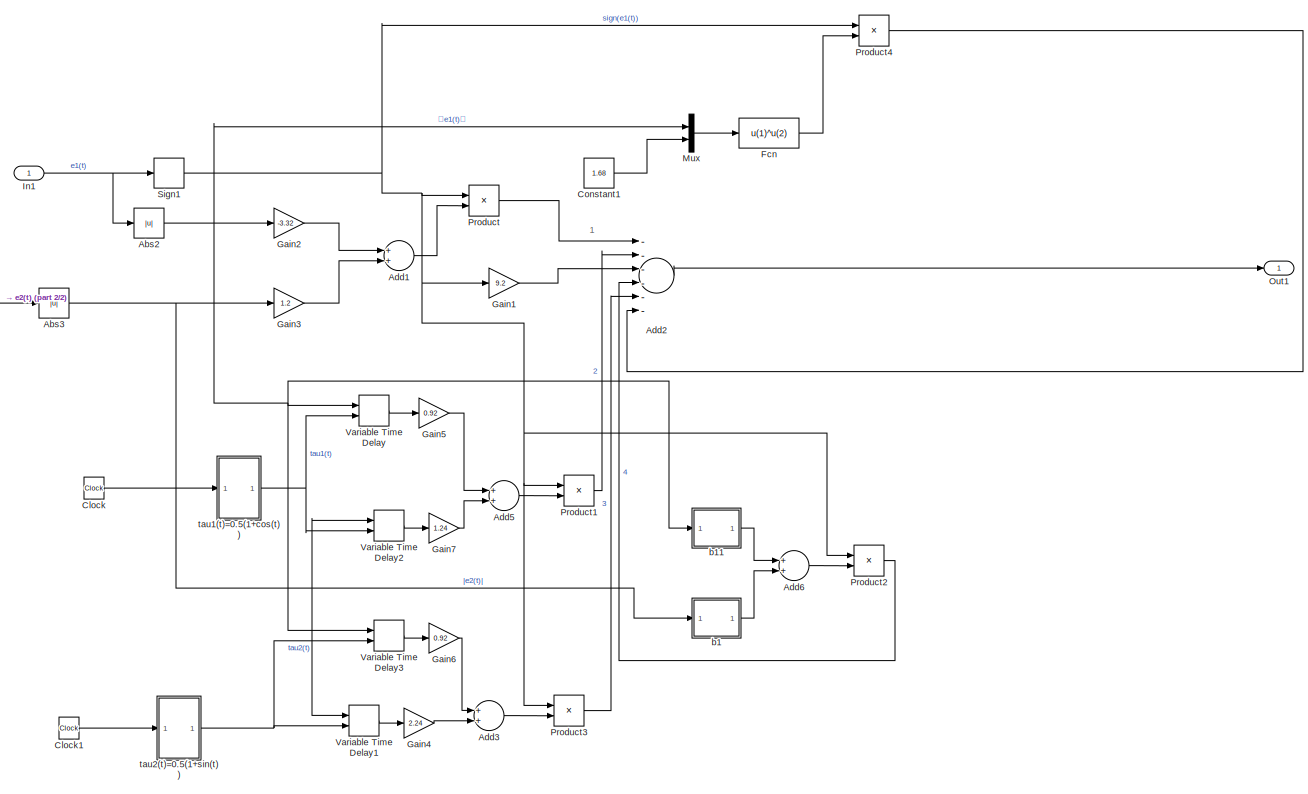
[diagram: u1(t) - part 1/2, most of the canvas]
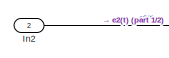
[diagram: u1(t) - part 2/2, middle left region]
BLOCK [SubSystem] u1(t)
  Ports = [2, 1]
  RequestExecContextInheritance = off
BLOCK [Abs] u1(t)/Abs2
  SaturateOnIntegerOverflow = off
BLOCK [Abs] u1(t)/Abs3
  SaturateOnIntegerOverflow = off
BLOCK [Sum] u1(t)/Add1
  InputSameDT = off
  OutDataTypeStr = Inherit: Inherit via internal rule
  Ports = [2, 1]
  SaturateOnIntegerOverflow = off
BLOCK [Sum] u1(t)/Add2
  InputSameDT = off
  Inputs = ------
  OutDataTypeStr = Inherit: Inherit via internal rule
  Ports = [6, 1]
  SaturateOnIntegerOverflow = off
BLOCK [Sum] u1(t)/Add3
  InputSameDT = off
  OutDataTypeStr = Inherit: Inherit via internal rule
  Ports = [2, 1]
  SaturateOnIntegerOverflow = off
BLOCK [Sum] u1(t)/Add5
  InputSameDT = off
  OutDataTypeStr = Inherit: Inherit via internal rule
  Ports = [2, 1]
  SaturateOnIntegerOverflow = off
BLOCK [Sum] u1(t)/Add6
  InputSameDT = off
  OutDataTypeStr = Inherit: Inherit via internal rule
  Ports = [2, 1]
  SaturateOnIntegerOverflow = off
BLOCK [Clock] u1(t)/Clock
BLOCK [Clock] u1(t)/Clock1
BLOCK [Constant] u1(t)/Constant1
  Value = 1.68
BLOCK [Fcn] u1(t)/Fcn
  Expr = u(1)^u(2)
BLOCK [Gain] u1(t)/Gain1
  AttributesFormatString = %<Gain>
  Gain = 9.2
  OutDataTypeStr = Inherit: Inherit via internal rule
  ParamDataTypeStr = Inherit: Inherit via internal rule
  SaturateOnIntegerOverflow = off
BLOCK [Gain] u1(t)/Gain2
  AttributesFormatString = %<Gain>
  Gain = -3.32
  OutDataTypeStr = Inherit: Inherit via internal rule
  ParamDataTypeStr = Inherit: Inherit via internal rule
  SaturateOnIntegerOverflow = off
BLOCK [Gain] u1(t)/Gain3
  AttributesFormatString = %<Gain>
  Gain = 1.2
  OutDataTypeStr = Inherit: Inherit via internal rule
  ParamDataTypeStr = Inherit: Inherit via internal rule
  SaturateOnIntegerOverflow = off
BLOCK [Gain] u1(t)/Gain4
  AttributesFormatString = %<Gain>
  Gain = 2.24
  OutDataTypeStr = Inherit: Inherit via internal rule
  ParamDataTypeStr = Inherit: Inherit via internal rule
  SaturateOnIntegerOverflow = off
BLOCK [Gain] u1(t)/Gain5
  AttributesFormatString = %<Gain>
  Gain = 0.92
  OutDataTypeStr = Inherit: Inherit via internal rule
  ParamDataTypeStr = Inherit: Inherit via internal rule
  SaturateOnIntegerOverflow = off
BLOCK [Gain] u1(t)/Gain6
  AttributesFormatString = %<Gain>
  Gain = 0.92
  OutDataTypeStr = Inherit: Inherit via internal rule
  ParamDataTypeStr = Inherit: Inherit via internal rule
  SaturateOnIntegerOverflow = off
BLOCK [Gain] u1(t)/Gain7
  AttributesFormatString = %<Gain>
  Gain = 1.24
  OutDataTypeStr = Inherit: Inherit via internal rule
  ParamDataTypeStr = Inherit: Inherit via internal rule
  SaturateOnIntegerOverflow = off
BLOCK [Inport] u1(t)/In1
  IconDisplay = Port number
BLOCK [Inport] u1(t)/In2
  IconDisplay = Port number
  Port = 2
BLOCK [Mux] u1(t)/Mux
  DisplayOption = bar
  Inputs = 2
  Ports = [2, 1]
BLOCK [Outport] u1(t)/Out1
  IconDisplay = Port number
BLOCK [Product] u1(t)/Product
  InputSameDT = off
  OutDataTypeStr = Inherit: Inherit via internal rule
  Ports = [2, 1]
  RndMeth = Floor
  SaturateOnIntegerOverflow = off
BLOCK [Product] u1(t)/Product1
  InputSameDT = off
  OutDataTypeStr = Inherit: Inherit via internal rule
  Ports = [2, 1]
  RndMeth = Floor
  SaturateOnIntegerOverflow = off
BLOCK [Product] u1(t)/Product2
  InputSameDT = off
  OutDataTypeStr = Inherit: Inherit via internal rule
  Ports = [2, 1]
  RndMeth = Floor
  SaturateOnIntegerOverflow = off
BLOCK [Product] u1(t)/Product3
  InputSameDT = off
  OutDataTypeStr = Inherit: Inherit via internal rule
  Ports = [2, 1]
  RndMeth = Floor
  SaturateOnIntegerOverflow = off
BLOCK [Product] u1(t)/Product4
  InputSameDT = off
  OutDataTypeStr = Inherit: Inherit via internal rule
  Ports = [2, 1]
  RndMeth = Floor
  SaturateOnIntegerOverflow = off
BLOCK [Signum] u1(t)/Sign1
BLOCK [VariableTransportDelay] u1(t)/Variable Time Delay
  MaximumDelay = 10
  MaximumPoints = 2^20
  Ports = [2, 1]
BLOCK [VariableTransportDelay] u1(t)/Variable Time Delay1
  MaximumDelay = 10
  MaximumPoints = 2^20
  Ports = [2, 1]
BLOCK [VariableTransportDelay] u1(t)/Variable Time Delay2
  MaximumDelay = 10
  MaximumPoints = 2^20
  Ports = [2, 1]
BLOCK [VariableTransportDelay] u1(t)/Variable Time Delay3
  MaximumDelay = 10
  MaximumPoints = 2^20
  Ports = [2, 1]
BLOCK [SubSystem] u1(t)/b1
  Ports = [1, 1]
  RequestExecContextInheritance = off
BLOCK [Sum] u1(t)/b1/Add
  InputSameDT = off
  Inputs = -+
  OutDataTypeStr = Inherit: Inherit via internal rule
  Ports = [2, 1]
  SaturateOnIntegerOverflow = off
BLOCK [Sum] u1(t)/b1/Add1
  InputSameDT = off
  Inputs = -+
  OutDataTypeStr = Inherit: Inherit via internal rule
  Ports = [2, 1]
  SaturateOnIntegerOverflow = off
BLOCK [Constant] u1(t)/b1/Constant
BLOCK [Gain] u1(t)/b1/Gain
  AttributesFormatString = %<Gain>
  Gain = 0.18
  OutDataTypeStr = Inherit: Inherit via internal rule
  ParamDataTypeStr = Inherit: Inherit via internal rule
  SaturateOnIntegerOverflow = off
BLOCK [Inport] u1(t)/b1/In1
  IconDisplay = Port number
BLOCK [Integrator] u1(t)/b1/Integrator
  AttributesFormatString = %<InitialCondition>
  InitialCondition = 0.2
  Ports = [1, 1]
BLOCK [Outport] u1(t)/b1/Out1
  IconDisplay = Port number
BLOCK [Product] u1(t)/b1/Product
  InputSameDT = off
  OutDataTypeStr = Inherit: Inherit via internal rule
  Ports = [2, 1]
  RndMeth = Floor
  SaturateOnIntegerOverflow = off
BLOCK [VariableTransportDelay] u1(t)/b1/Variable Time Delay
  MaximumDelay = 10
  MaximumPoints = 2^20
  Ports = [2, 1]
BLOCK [SubSystem] u1(t)/b1/d(rau(t))
  Ports = [0, 1]
  RequestExecContextInheritance = off
BLOCK [Clock] u1(t)/b1/d(rau(t))/Clock
BLOCK [Gain] u1(t)/b1/d(rau(t))/Gain
  Gain = 0.5
  OutDataTypeStr = Inherit: Inherit via internal rule
  ParamDataTypeStr = Inherit: Inherit via internal rule
  SaturateOnIntegerOverflow = off
BLOCK [Outport] u1(t)/b1/d(rau(t))/Out1
  IconDisplay = Port number
BLOCK [Sin] u1(t)/b1/d(rau(t))/Sine Wave Function
  Phase = 0.5*pi
  Ports = [1, 1]
  SampleTime = 0
  TimeSource = Use external signal
BLOCK [SubSystem] u1(t)/b1/raut
  Ports = [0, 1]
  RequestExecContextInheritance = off
BLOCK [Sum] u1(t)/b1/raut/Add
  InputSameDT = off
  OutDataTypeStr = Inherit: Inherit via internal rule
  Ports = [2, 1]
  SaturateOnIntegerOverflow = off
BLOCK [Clock] u1(t)/b1/raut/Clock
BLOCK [Constant] u1(t)/b1/raut/Constant
  Value = 0.5
BLOCK [Gain] u1(t)/b1/raut/Gain
  Gain = 0.5
  OutDataTypeStr = Inherit: Inherit via internal rule
  ParamDataTypeStr = Inherit: Inherit via internal rule
  SaturateOnIntegerOverflow = off
BLOCK [Outport] u1(t)/b1/raut/Out1
  IconDisplay = Port number
BLOCK [Sin] u1(t)/b1/raut/Sine Wave Function
  Ports = [1, 1]
  SampleTime = 0
  TimeSource = Use external signal
BLOCK [SubSystem] u1(t)/b11
  Ports = [1, 1]
  RequestExecContextInheritance = off
BLOCK [Sum] u1(t)/b11/Add
  InputSameDT = off
  Inputs = -+
  OutDataTypeStr = Inherit: Inherit via internal rule
  Ports = [2, 1]
  SaturateOnIntegerOverflow = off
BLOCK [Sum] u1(t)/b11/Add1
  InputSameDT = off
  Inputs = -+
  OutDataTypeStr = Inherit: Inherit via internal rule
  Ports = [2, 1]
  SaturateOnIntegerOverflow = off
BLOCK [Constant] u1(t)/b11/Constant
BLOCK [Gain] u1(t)/b11/Gain
  AttributesFormatString = %<Gain>
  Gain = 0.56
  OutDataTypeStr = Inherit: Inherit via internal rule
  ParamDataTypeStr = Inherit: Inherit via internal rule
  SaturateOnIntegerOverflow = off
BLOCK [Inport] u1(t)/b11/In1
  IconDisplay = Port number
BLOCK [Integrator] u1(t)/b11/Integrator
  AttributesFormatString = %<InitialCondition>
  InitialCondition = 0.8
  Ports = [1, 1]
BLOCK [Outport] u1(t)/b11/Out1
  IconDisplay = Port number
BLOCK [Product] u1(t)/b11/Product
  InputSameDT = off
  OutDataTypeStr = Inherit: Inherit via internal rule
  Ports = [2, 1]
  RndMeth = Floor
  SaturateOnIntegerOverflow = off
BLOCK [VariableTransportDelay] u1(t)/b11/Variable Time Delay
  MaximumDelay = 10
  MaximumPoints = 2^20
  Ports = [2, 1]
BLOCK [SubSystem] u1(t)/b11/rout
  Ports = [0, 1]
  RequestExecContextInheritance = off
BLOCK [Sum] u1(t)/b11/rout/Add
  InputSameDT = off
  OutDataTypeStr = Inherit: Inherit via internal rule
  Ports = [2, 1]
  SaturateOnIntegerOverflow = off
BLOCK [Clock] u1(t)/b11/rout/Clock
BLOCK [Constant] u1(t)/b11/rout/Constant
  Value = 0.5
BLOCK [Gain] u1(t)/b11/rout/Gain
  Gain = 0.5
  OutDataTypeStr = Inherit: Inherit via internal rule
  ParamDataTypeStr = Inherit: Inherit via internal rule
  SaturateOnIntegerOverflow = off
BLOCK [Outport] u1(t)/b11/rout/Out1
  IconDisplay = Port number
BLOCK [Sin] u1(t)/b11/rout/Sine Wave Function
  Ports = [1, 1]
  SampleTime = 0
  TimeSource = Use external signal
BLOCK [SubSystem] u1(t)/b11/rout1
  Ports = [0, 1]
  RequestExecContextInheritance = off
BLOCK [Clock] u1(t)/b11/rout1/Clock
BLOCK [Gain] u1(t)/b11/rout1/Gain
  Gain = 0.5
  OutDataTypeStr = Inherit: Inherit via internal rule
  ParamDataTypeStr = Inherit: Inherit via internal rule
  SaturateOnIntegerOverflow = off
BLOCK [Outport] u1(t)/b11/rout1/Out1
  IconDisplay = Port number
BLOCK [Sin] u1(t)/b11/rout1/Sine Wave Function
  Phase = 0.5*pi
  Ports = [1, 1]
  SampleTime = 0
  TimeSource = Use external signal
BLOCK [SubSystem] u1(t)/tau1(t)=0.5(1+cos(t))
  Ports = [1, 1]
  RequestExecContextInheritance = off
BLOCK [Sum] u1(t)/tau1(t)=0.5(1+cos(t))/Add3
  InputSameDT = off
  OutDataTypeStr = Inherit: Inherit via internal rule
  Ports = [2, 1]
  SaturateOnIntegerOverflow = off
BLOCK [Constant] u1(t)/tau1(t)=0.5(1+cos(t))/Constant
  AttributesFormatString = %<Gain>
  Value = 0.5
BLOCK [Gain] u1(t)/tau1(t)=0.5(1+cos(t))/Gain4
  AttributesFormatString = %<Gain>
  Gain = 0.5
  OutDataTypeStr = Inherit: Inherit via internal rule
  ParamDataTypeStr = Inherit: Inherit via internal rule
  SaturateOnIntegerOverflow = off
BLOCK [Inport] u1(t)/tau1(t)=0.5(1+cos(t))/In1
  IconDisplay = Port number
BLOCK [Outport] u1(t)/tau1(t)=0.5(1+cos(t))/Out1
  IconDisplay = Port number
BLOCK [Sin] u1(t)/tau1(t)=0.5(1+cos(t))/Sine Wave Function
  Phase = 0.5*pi
  Ports = [1, 1]
  SampleTime = 0
  TimeSource = Use external signal
BLOCK [SubSystem] u1(t)/tau2(t)=0.5(1+sin(t))
  Ports = [1, 1]
  RequestExecContextInheritance = off
BLOCK [Sum] u1(t)/tau2(t)=0.5(1+sin(t))/Add4
  InputSameDT = off
  OutDataTypeStr = Inherit: Inherit via internal rule
  Ports = [2, 1]
  SaturateOnIntegerOverflow = off
BLOCK [Constant] u1(t)/tau2(t)=0.5(1+sin(t))/Constant1
  Value = 0.5
BLOCK [Gain] u1(t)/tau2(t)=0.5(1+sin(t))/Gain6
  Gain = 0.5
  OutDataTypeStr = Inherit: Inherit via internal rule
  ParamDataTypeStr = Inherit: Inherit via internal rule
  SaturateOnIntegerOverflow = off
BLOCK [Inport] u1(t)/tau2(t)=0.5(1+sin(t))/In1
  IconDisplay = Port number
BLOCK [Outport] u1(t)/tau2(t)=0.5(1+sin(t))/Out1
  IconDisplay = Port number
BLOCK [Sin] u1(t)/tau2(t)=0.5(1+sin(t))/Sine Wave Function1
  Ports = [1, 1]
  SampleTime = 0
  TimeSource = Use external signal
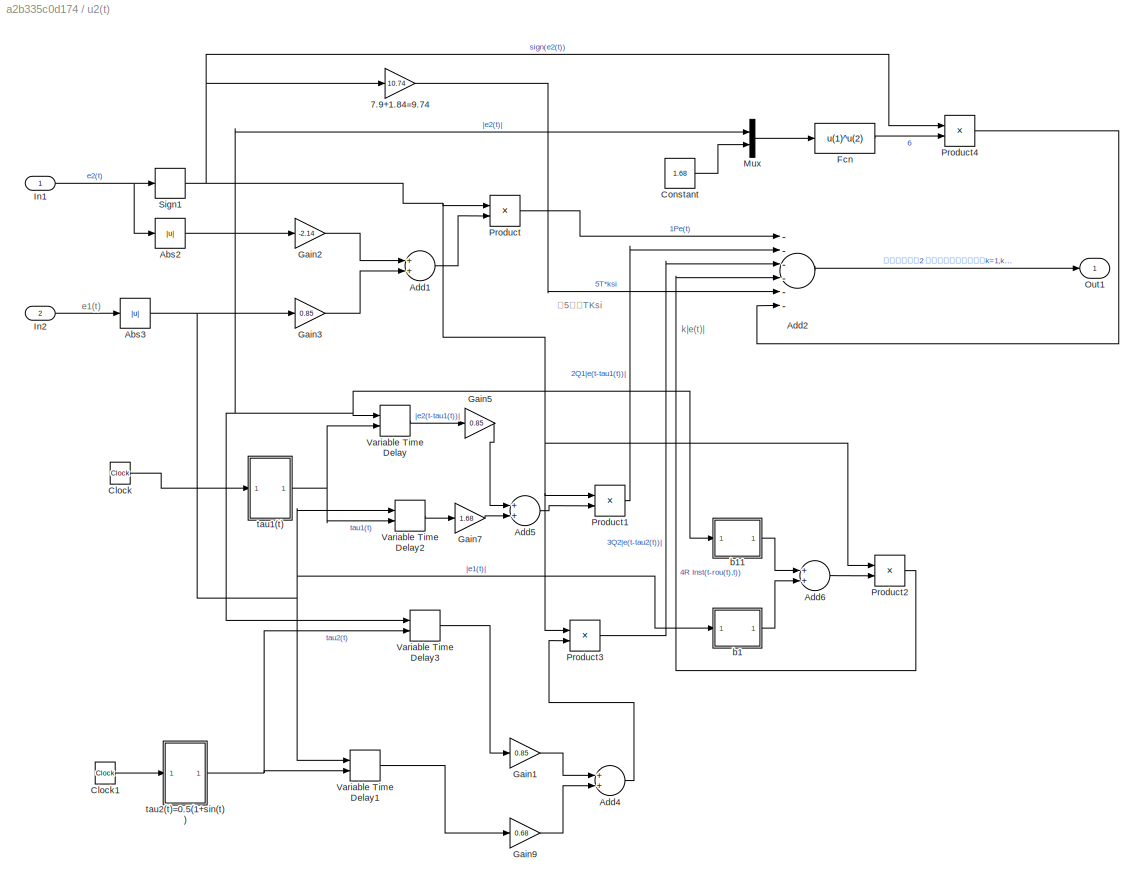
BLOCK [SubSystem] u2(t)
  Ports = [2, 1]
  RequestExecContextInheritance = off
BLOCK [Gain] u2(t)/7.9+1.84=9.74
  AttributesFormatString = %<Gain>
  Gain = 10.74
  OutDataTypeStr = Inherit: Inherit via internal rule
  ParamDataTypeStr = Inherit: Inherit via internal rule
  SaturateOnIntegerOverflow = off
BLOCK [Abs] u2(t)/Abs2
  SaturateOnIntegerOverflow = off
BLOCK [Abs] u2(t)/Abs3
  SaturateOnIntegerOverflow = off
BLOCK [Sum] u2(t)/Add1
  InputSameDT = off
  OutDataTypeStr = Inherit: Inherit via internal rule
  Ports = [2, 1]
  SaturateOnIntegerOverflow = off
BLOCK [Sum] u2(t)/Add2
  InputSameDT = off
  Inputs = ------
  OutDataTypeStr = Inherit: Inherit via internal rule
  Ports = [6, 1]
  SaturateOnIntegerOverflow = off
BLOCK [Sum] u2(t)/Add4
  InputSameDT = off
  OutDataTypeStr = Inherit: Inherit via internal rule
  Ports = [2, 1]
  SaturateOnIntegerOverflow = off
BLOCK [Sum] u2(t)/Add5
  InputSameDT = off
  OutDataTypeStr = Inherit: Inherit via internal rule
  Ports = [2, 1]
  SaturateOnIntegerOverflow = off
BLOCK [Sum] u2(t)/Add6
  InputSameDT = off
  OutDataTypeStr = Inherit: Inherit via internal rule
  Ports = [2, 1]
  SaturateOnIntegerOverflow = off
BLOCK [Clock] u2(t)/Clock
BLOCK [Clock] u2(t)/Clock1
BLOCK [Constant] u2(t)/Constant
  Value = 1.68
BLOCK [Fcn] u2(t)/Fcn
  Expr = u(1)^u(2)
BLOCK [Gain] u2(t)/Gain1
  AttributesFormatString = %<Gain>
  Gain = 0.85
  OutDataTypeStr = Inherit: Inherit via internal rule
  ParamDataTypeStr = Inherit: Inherit via internal rule
  SaturateOnIntegerOverflow = off
BLOCK [Gain] u2(t)/Gain2
  AttributesFormatString = %<Gain>
  Gain = -2.14
  OutDataTypeStr = Inherit: Inherit via internal rule
  ParamDataTypeStr = Inherit: Inherit via internal rule
  SaturateOnIntegerOverflow = off
BLOCK [Gain] u2(t)/Gain3
  AttributesFormatString = %<Gain>
  Gain = 0.85
  OutDataTypeStr = Inherit: Inherit via internal rule
  ParamDataTypeStr = Inherit: Inherit via internal rule
  SaturateOnIntegerOverflow = off
BLOCK [Gain] u2(t)/Gain5
  AttributesFormatString = %<Gain>
  Gain = 0.85
  OutDataTypeStr = Inherit: Inherit via internal rule
  ParamDataTypeStr = Inherit: Inherit via internal rule
  SaturateOnIntegerOverflow = off
BLOCK [Gain] u2(t)/Gain7
  AttributesFormatString = %<Gain>
  Gain = 1.68
  OutDataTypeStr = Inherit: Inherit via internal rule
  ParamDataTypeStr = Inherit: Inherit via internal rule
  SaturateOnIntegerOverflow = off
BLOCK [Gain] u2(t)/Gain9
  AttributesFormatString = %<Gain>
  Gain = 0.68
  OutDataTypeStr = Inherit: Inherit via internal rule
  ParamDataTypeStr = Inherit: Inherit via internal rule
  SaturateOnIntegerOverflow = off
BLOCK [Inport] u2(t)/In1
  IconDisplay = Port number
BLOCK [Inport] u2(t)/In2
  IconDisplay = Port number
  Port = 2
BLOCK [Mux] u2(t)/Mux
  DisplayOption = bar
  Inputs = 2
  Ports = [2, 1]
BLOCK [Outport] u2(t)/Out1
  IconDisplay = Port number
BLOCK [Product] u2(t)/Product
  InputSameDT = off
  OutDataTypeStr = Inherit: Inherit via internal rule
  Ports = [2, 1]
  RndMeth = Floor
  SaturateOnIntegerOverflow = off
BLOCK [Product] u2(t)/Product1
  InputSameDT = off
  OutDataTypeStr = Inherit: Inherit via internal rule
  Ports = [2, 1]
  RndMeth = Floor
  SaturateOnIntegerOverflow = off
BLOCK [Product] u2(t)/Product2
  InputSameDT = off
  OutDataTypeStr = Inherit: Inherit via internal rule
  Ports = [2, 1]
  RndMeth = Floor
  SaturateOnIntegerOverflow = off
BLOCK [Product] u2(t)/Product3
  InputSameDT = off
  OutDataTypeStr = Inherit: Inherit via internal rule
  Ports = [2, 1]
  RndMeth = Floor
  SaturateOnIntegerOverflow = off
BLOCK [Product] u2(t)/Product4
  InputSameDT = off
  OutDataTypeStr = Inherit: Inherit via internal rule
  Ports = [2, 1]
  RndMeth = Floor
  SaturateOnIntegerOverflow = off
BLOCK [Signum] u2(t)/Sign1
BLOCK [VariableTransportDelay] u2(t)/Variable Time Delay
  MaximumDelay = 10
  MaximumPoints = 2^20
  Ports = [2, 1]
BLOCK [VariableTransportDelay] u2(t)/Variable Time Delay1
  MaximumDelay = 10
  MaximumPoints = 2^20
  Ports = [2, 1]
BLOCK [VariableTransportDelay] u2(t)/Variable Time Delay2
  MaximumDelay = 10
  MaximumPoints = 2^20
  Ports = [2, 1]
BLOCK [VariableTransportDelay] u2(t)/Variable Time Delay3
  MaximumDelay = 10
  MaximumPoints = 2^20
  Ports = [2, 1]
BLOCK [SubSystem] u2(t)/b1
  Ports = [1, 1]
  RequestExecContextInheritance = off
BLOCK [Sum] u2(t)/b1/Add
  InputSameDT = off
  Inputs = -+
  OutDataTypeStr = Inherit: Inherit via internal rule
  Ports = [2, 1]
  SaturateOnIntegerOverflow = off
BLOCK [Sum] u2(t)/b1/Add1
  InputSameDT = off
  Inputs = -+
  OutDataTypeStr = Inherit: Inherit via internal rule
  Ports = [2, 1]
  SaturateOnIntegerOverflow = off
BLOCK [Constant] u2(t)/b1/Constant
BLOCK [Gain] u2(t)/b1/Gain
  AttributesFormatString = %<Gain>
  Gain = 2.56
  OutDataTypeStr = Inherit: Inherit via internal rule
  ParamDataTypeStr = Inherit: Inherit via internal rule
  SaturateOnIntegerOverflow = off
BLOCK [Inport] u2(t)/b1/In1
  IconDisplay = Port number
BLOCK [Integrator] u2(t)/b1/Integrator
  InitialCondition = 0.8
  Ports = [1, 1]
BLOCK [Outport] u2(t)/b1/Out1
  IconDisplay = Port number
BLOCK [Product] u2(t)/b1/Product
  InputSameDT = off
  OutDataTypeStr = Inherit: Inherit via internal rule
  Ports = [2, 1]
  RndMeth = Floor
  SaturateOnIntegerOverflow = off
BLOCK [VariableTransportDelay] u2(t)/b1/Variable Time Delay
  MaximumDelay = 10
  MaximumPoints = 2^20
  Ports = [2, 1]
BLOCK [SubSystem] u2(t)/b1/rout
  Ports = [0, 1]
  RequestExecContextInheritance = off
BLOCK [Sum] u2(t)/b1/rout/Add
  InputSameDT = off
  OutDataTypeStr = Inherit: Inherit via internal rule
  Ports = [2, 1]
  SaturateOnIntegerOverflow = off
BLOCK [Clock] u2(t)/b1/rout/Clock
BLOCK [Constant] u2(t)/b1/rout/Constant
  Value = 0.5
BLOCK [Gain] u2(t)/b1/rout/Gain
  Gain = 0.5
  OutDataTypeStr = Inherit: Inherit via internal rule
  ParamDataTypeStr = Inherit: Inherit via internal rule
  SaturateOnIntegerOverflow = off
BLOCK [Outport] u2(t)/b1/rout/Out1
  IconDisplay = Port number
BLOCK [Sin] u2(t)/b1/rout/Sine Wave Function
  Ports = [1, 1]
  SampleTime = 0
  TimeSource = Use external signal
BLOCK [SubSystem] u2(t)/b1/rout1
  Ports = [0, 1]
  RequestExecContextInheritance = off
BLOCK [Clock] u2(t)/b1/rout1/Clock
BLOCK [Gain] u2(t)/b1/rout1/Gain
  Gain = 0.5
  OutDataTypeStr = Inherit: Inherit via internal rule
  ParamDataTypeStr = Inherit: Inherit via internal rule
  SaturateOnIntegerOverflow = off
BLOCK [Outport] u2(t)/b1/rout1/Out1
  IconDisplay = Port number
BLOCK [Sin] u2(t)/b1/rout1/Sine Wave Function
  Phase = 0.5*pi
  Ports = [1, 1]
  SampleTime = 0
  TimeSource = Use external signal
BLOCK [SubSystem] u2(t)/b11
  Ports = [1, 1]
  RequestExecContextInheritance = off
BLOCK [Sum] u2(t)/b11/Add
  InputSameDT = off
  Inputs = -+
  OutDataTypeStr = Inherit: Inherit via internal rule
  Ports = [2, 1]
  SaturateOnIntegerOverflow = off
BLOCK [Sum] u2(t)/b11/Add1
  InputSameDT = off
  Inputs = -+
  OutDataTypeStr = Inherit: Inherit via internal rule
  Ports = [2, 1]
  SaturateOnIntegerOverflow = off
BLOCK [Constant] u2(t)/b11/Constant
BLOCK [Gain] u2(t)/b11/Gain
  AttributesFormatString = %<Gain>
  Gain = 0.85
  OutDataTypeStr = Inherit: Inherit via internal rule
  ParamDataTypeStr = Inherit: Inherit via internal rule
  SaturateOnIntegerOverflow = off
BLOCK [Inport] u2(t)/b11/In1
  IconDisplay = Port number
BLOCK [Integrator] u2(t)/b11/Integrator
  AttributesFormatString = %<InitialCondition>
  InitialCondition = 0.2
  Ports = [1, 1]
BLOCK [Outport] u2(t)/b11/Out1
  IconDisplay = Port number
BLOCK [Product] u2(t)/b11/Product
  InputSameDT = off
  OutDataTypeStr = Inherit: Inherit via internal rule
  Ports = [2, 1]
  RndMeth = Floor
  SaturateOnIntegerOverflow = off
BLOCK [VariableTransportDelay] u2(t)/b11/Variable Time Delay
  MaximumDelay = 10
  MaximumPoints = 2^20
  Ports = [2, 1]
BLOCK [SubSystem] u2(t)/b11/d(rau(t))
  Ports = [0, 1]
  RequestExecContextInheritance = off
BLOCK [Clock] u2(t)/b11/d(rau(t))/Clock
BLOCK [Gain] u2(t)/b11/d(rau(t))/Gain
  Gain = 0.5
  OutDataTypeStr = Inherit: Inherit via internal rule
  ParamDataTypeStr = Inherit: Inherit via internal rule
  SaturateOnIntegerOverflow = off
BLOCK [Outport] u2(t)/b11/d(rau(t))/Out1
  IconDisplay = Port number
BLOCK [Sin] u2(t)/b11/d(rau(t))/Sine Wave Function
  Phase = 0.5*pi
  Ports = [1, 1]
  SampleTime = 0
  TimeSource = Use external signal
BLOCK [SubSystem] u2(t)/b11/rout
  Ports = [0, 1]
  RequestExecContextInheritance = off
BLOCK [Sum] u2(t)/b11/rout/Add
  InputSameDT = off
  OutDataTypeStr = Inherit: Inherit via internal rule
  Ports = [2, 1]
  SaturateOnIntegerOverflow = off
BLOCK [Clock] u2(t)/b11/rout/Clock
BLOCK [Constant] u2(t)/b11/rout/Constant
  Value = 0.5
BLOCK [Gain] u2(t)/b11/rout/Gain
  Gain = 0.5
  OutDataTypeStr = Inherit: Inherit via internal rule
  ParamDataTypeStr = Inherit: Inherit via internal rule
  SaturateOnIntegerOverflow = off
BLOCK [Outport] u2(t)/b11/rout/Out1
  IconDisplay = Port number
BLOCK [Sin] u2(t)/b11/rout/Sine Wave Function
  Ports = [1, 1]
  SampleTime = 0
  TimeSource = Use external signal
BLOCK [SubSystem] u2(t)/tau1(t)
  Ports = [1, 1]
  RequestExecContextInheritance = off
BLOCK [Sum] u2(t)/tau1(t)/Add3
  InputSameDT = off
  OutDataTypeStr = Inherit: Inherit via internal rule
  Ports = [2, 1]
  SaturateOnIntegerOverflow = off
BLOCK [Constant] u2(t)/tau1(t)/Constant
  Value = 0.5
BLOCK [Gain] u2(t)/tau1(t)/Gain4
  AttributesFormatString = %<Gain>
  Gain = 0.5
  OutDataTypeStr = Inherit: Inherit via internal rule
  ParamDataTypeStr = Inherit: Inherit via internal rule
  SaturateOnIntegerOverflow = off
BLOCK [Inport] u2(t)/tau1(t)/In1
  IconDisplay = Port number
BLOCK [Outport] u2(t)/tau1(t)/Out1
  IconDisplay = Port number
BLOCK [Sin] u2(t)/tau1(t)/Sine Wave Function
  Phase = 0.5*pi
  Ports = [1, 1]
  SampleTime = 0
  TimeSource = Use external signal
BLOCK [SubSystem] u2(t)/tau2(t)=0.5(1+sin(t))
  Ports = [1, 1]
  RequestExecContextInheritance = off
BLOCK [Sum] u2(t)/tau2(t)=0.5(1+sin(t))/Add4
  InputSameDT = off
  OutDataTypeStr = Inherit: Inherit via internal rule
  Ports = [2, 1]
  SaturateOnIntegerOverflow = off
BLOCK [Constant] u2(t)/tau2(t)=0.5(1+sin(t))/Constant1
  Value = 0.5
BLOCK [Gain] u2(t)/tau2(t)=0.5(1+sin(t))/Gain6
  Gain = 0.5
  OutDataTypeStr = Inherit: Inherit via internal rule
  ParamDataTypeStr = Inherit: Inherit via internal rule
  SaturateOnIntegerOverflow = off
BLOCK [Inport] u2(t)/tau2(t)=0.5(1+sin(t))/In1
  IconDisplay = Port number
BLOCK [Outport] u2(t)/tau2(t)=0.5(1+sin(t))/Out1
  IconDisplay = Port number
BLOCK [Sin] u2(t)/tau2(t)=0.5(1+sin(t))/Sine Wave Function1
  Ports = [1, 1]
  SampleTime = 0
  TimeSource = Use external signal
ANNOTATION u1(t): 1
ANNOTATION u2(t): e1(t)
ANNOTATION u2(t): k|e(t)|
ANNOTATION u2(t): 第5项：TKsi
LINE 22c21(y2(t))*inst(f(y1(t))/Abs:1 -> 22c21(y2(t))*inst(f(y1(t))/Switch:2
LINE 22c21(y2(t))*inst(f(y1(t))/In1:1 -> 22c21(y2(t))*inst(f(y1(t))/Subsystem:2
LINE 22c21(y2(t))*inst(f(y1(t))/In2:1 -> 22c21(y2(t))*inst(f(y1(t))/Abs:1
LINE 22c21(y2(t))*inst(f(y1(t))/In3:1 -> 22c21(y2(t))*inst(f(y1(t))/Switch:1
LINE 22c21(y2(t))*inst(f(y1(t))/In4:1 -> 22c21(y2(t))*inst(f(y1(t))/Switch:3
LINE 22c21(y2(t))*inst(f(y1(t))/Subsystem/Add3:1 -> 22c21(y2(t))*inst(f(y1(t))/Subsystem/Integrator:1
LINE 22c21(y2(t))*inst(f(y1(t))/Subsystem/In1:1 -> 22c21(y2(t))*inst(f(y1(t))/Subsystem/Product:1
LINE 22c21(y2(t))*inst(f(y1(t))/Subsystem/In2:1 -> 22c21(y2(t))*inst(f(y1(t))/Subsystem/f(x(t))=0.5*(|x+1|-|x-1|):1
LINE 22c21(y2(t))*inst(f(y1(t))/Subsystem/Integrator:1 -> 22c21(y2(t))*inst(f(y1(t))/Subsystem/Product:2
LINE 22c21(y2(t))*inst(f(y1(t))/Subsystem/Product1:1 -> 22c21(y2(t))*inst(f(y1(t))/Subsystem/Add3:2
LINE 22c21(y2(t))*inst(f(y1(t))/Subsystem/Product:1 -> 22c21(y2(t))*inst(f(y1(t))/Subsystem/Out1:1
LINE 22c21(y2(t))*inst(f(y1(t))/Subsystem/Variable Time Delay:1 -> 22c21(y2(t))*inst(f(y1(t))/Subsystem/Product1:1
LINE 22c21(y2(t))*inst(f(y1(t))/Subsystem/d(t-(rou(t)))/Add:1 -> 22c21(y2(t))*inst(f(y1(t))/Subsystem/d(t-(rou(t)))/Out1:1
LINE 22c21(y2(t))*inst(f(y1(t))/Subsystem/d(t-(rou(t)))/Clock:1 -> 22c21(y2(t))*inst(f(y1(t))/Subsystem/d(t-(rou(t)))/Sine Wave Function:1
LINE 22c21(y2(t))*inst(f(y1(t))/Subsystem/d(t-(rou(t)))/Constant2:1 -> 22c21(y2(t))*inst(f(y1(t))/Subsystem/d(t-(rou(t)))/Add:1
LINE 22c21(y2(t))*inst(f(y1(t))/Subsystem/d(t-(rou(t)))/Gain:1 -> 22c21(y2(t))*inst(f(y1(t))/Subsystem/d(t-(rou(t)))/Add:2
LINE 22c21(y2(t))*inst(f(y1(t))/Subsystem/d(t-(rou(t)))/Sine Wave Function:1 -> 22c21(y2(t))*inst(f(y1(t))/Subsystem/d(t-(rou(t)))/Gain:1
LINE 22c21(y2(t))*inst(f(y1(t))/Subsystem/d(t-(rou(t))):1 -> 22c21(y2(t))*inst(f(y1(t))/Subsystem/Product1:2
LINE 22c21(y2(t))*inst(f(y1(t))/Subsystem/f(x(t))=0.5*(|x+1|-|x-1|)/Abs1:1 -> 22c21(y2(t))*inst(f(y1(t))/Subsystem/f(x(t))=0.5*(|x+1|-|x-1|)/Add2:2
LINE 22c21(y2(t))*inst(f(y1(t))/Subsystem/f(x(t))=0.5*(|x+1|-|x-1|)/Abs:1 -> 22c21(y2(t))*inst(f(y1(t))/Subsystem/f(x(t))=0.5*(|x+1|-|x-1|)/Add2:1
LINE 22c21(y2(t))*inst(f(y1(t))/Subsystem/f(x(t))=0.5*(|x+1|-|x-1|)/Add1:1 -> 22c21(y2(t))*inst(f(y1(t))/Subsystem/f(x(t))=0.5*(|x+1|-|x-1|)/Abs1:1
LINE 22c21(y2(t))*inst(f(y1(t))/Subsystem/f(x(t))=0.5*(|x+1|-|x-1|)/Add2:1 -> 22c21(y2(t))*inst(f(y1(t))/Subsystem/f(x(t))=0.5*(|x+1|-|x-1|)/Gain:1
LINE 22c21(y2(t))*inst(f(y1(t))/Subsystem/f(x(t))=0.5*(|x+1|-|x-1|)/Add:1 -> 22c21(y2(t))*inst(f(y1(t))/Subsystem/f(x(t))=0.5*(|x+1|-|x-1|)/Abs:1
NET 22c21(y2(t))*inst(f(y1(t))/Subsystem/f(x(t))=0.5*(|x+1|-|x-1|)/Constant:1 -> 22c21(y2(t))*inst(f(y1(t))/Subsystem/f(x(t))=0.5*(|x+1|-|x-1|)/Add1:1, 22c21(y2(t))*inst(f(y1(t))/Subsystem/f(x(t))=0.5*(|x+1|-|x-1|)/Add:2
LINE 22c21(y2(t))*inst(f(y1(t))/Subsystem/f(x(t))=0.5*(|x+1|-|x-1|)/Gain:1 -> 22c21(y2(t))*inst(f(y1(t))/Subsystem/f(x(t))=0.5*(|x+1|-|x-1|)/Out1:1
NET 22c21(y2(t))*inst(f(y1(t))/Subsystem/f(x(t))=0.5*(|x+1|-|x-1|)/In1:1 -> 22c21(y2(t))*inst(f(y1(t))/Subsystem/f(x(t))=0.5*(|x+1|-|x-1|)/Add1:2, 22c21(y2(t))*inst(f(y1(t))/Subsystem/f(x(t))=0.5*(|x+1|-|x-1|)/Add:1
NET 22c21(y2(t))*inst(f(y1(t))/Subsystem/f(x(t))=0.5*(|x+1|-|x-1|):1 -> 22c21(y2(t))*inst(f(y1(t))/Subsystem/Add3:1, 22c21(y2(t))*inst(f(y1(t))/Subsystem/Variable Time Delay:1
LINE 22c21(y2(t))*inst(f(y1(t))/Subsystem/rou(t)=0.5*(1+sin(t))/Add2:1 -> 22c21(y2(t))*inst(f(y1(t))/Subsystem/rou(t)=0.5*(1+sin(t))/Gain1:1
LINE 22c21(y2(t))*inst(f(y1(t))/Subsystem/rou(t)=0.5*(1+sin(t))/Clock1:1 -> 22c21(y2(t))*inst(f(y1(t))/Subsystem/rou(t)=0.5*(1+sin(t))/Sine Wave Function1:1
LINE 22c21(y2(t))*inst(f(y1(t))/Subsystem/rou(t)=0.5*(1+sin(t))/Constant3:1 -> 22c21(y2(t))*inst(f(y1(t))/Subsystem/rou(t)=0.5*(1+sin(t))/Add2:2
LINE 22c21(y2(t))*inst(f(y1(t))/Subsystem/rou(t)=0.5*(1+sin(t))/Gain1:1 -> 22c21(y2(t))*inst(f(y1(t))/Subsystem/rou(t)=0.5*(1+sin(t))/Out1:1
LINE 22c21(y2(t))*inst(f(y1(t))/Subsystem/rou(t)=0.5*(1+sin(t))/Sine Wave Function1:1 -> 22c21(y2(t))*inst(f(y1(t))/Subsystem/rou(t)=0.5*(1+sin(t))/Add2:1
LINE 22c21(y2(t))*inst(f(y1(t))/Subsystem/rou(t)=0.5*(1+sin(t)):1 -> 22c21(y2(t))*inst(f(y1(t))/Subsystem/Variable Time Delay:2
LINE 22c21(y2(t))*inst(f(y1(t))/Subsystem:1 -> 22c21(y2(t))*inst(f(y1(t))/Out1:1
LINE 22c21(y2(t))*inst(f(y1(t))/Switch:1 -> 22c21(y2(t))*inst(f(y1(t))/Subsystem:1
LINE 22c21(y2(t))*inst(f(y1(t)):1 -> Add6:4
LINE 2a11(y1(t))*f(y1(t))/Abs3:1 -> 2a11(y1(t))*f(y1(t))/Switch4:2
NET 2a11(y1(t))*f(y1(t))/In1:1 -> 2a11(y1(t))*f(y1(t))/Abs3:1, 2a11(y1(t))*f(y1(t))/a11(x1(t))*x1(t):2
LINE 2a11(y1(t))*f(y1(t))/In2:1 -> 2a11(y1(t))*f(y1(t))/Switch4:1
LINE 2a11(y1(t))*f(y1(t))/In3:1 -> 2a11(y1(t))*f(y1(t))/Switch4:3
LINE 2a11(y1(t))*f(y1(t))/Switch4:1 -> 2a11(y1(t))*f(y1(t))/a11(x1(t))*x1(t):1
LINE 2a11(y1(t))*f(y1(t))/a11(x1(t))*x1(t)/In2:1 -> 2a11(y1(t))*f(y1(t))/a11(x1(t))*x1(t)/Subsystem:1
LINE 2a11(y1(t))*f(y1(t))/a11(x1(t))*x1(t)/Product:1 -> 2a11(y1(t))*f(y1(t))/a11(x1(t))*x1(t)/Out1:1
LINE 2a11(y1(t))*f(y1(t))/a11(x1(t))*x1(t)/Subsystem/Abs1:1 -> 2a11(y1(t))*f(y1(t))/a11(x1(t))*x1(t)/Subsystem/Add2:2
LINE 2a11(y1(t))*f(y1(t))/a11(x1(t))*x1(t)/Subsystem/Abs:1 -> 2a11(y1(t))*f(y1(t))/a11(x1(t))*x1(t)/Subsystem/Add2:1
LINE 2a11(y1(t))*f(y1(t))/a11(x1(t))*x1(t)/Subsystem/Add1:1 -> 2a11(y1(t))*f(y1(t))/a11(x1(t))*x1(t)/Subsystem/Abs:1
LINE 2a11(y1(t))*f(y1(t))/a11(x1(t))*x1(t)/Subsystem/Add2:1 -> 2a11(y1(t))*f(y1(t))/a11(x1(t))*x1(t)/Subsystem/Gain:1
LINE 2a11(y1(t))*f(y1(t))/a11(x1(t))*x1(t)/Subsystem/Add:1 -> 2a11(y1(t))*f(y1(t))/a11(x1(t))*x1(t)/Subsystem/Abs1:1
LINE 2a11(y1(t))*f(y1(t))/a11(x1(t))*x1(t)/Subsystem/Constant1:1 -> 2a11(y1(t))*f(y1(t))/a11(x1(t))*x1(t)/Subsystem/Add1:1
LINE 2a11(y1(t))*f(y1(t))/a11(x1(t))*x1(t)/Subsystem/Constant:1 -> 2a11(y1(t))*f(y1(t))/a11(x1(t))*x1(t)/Subsystem/Add:2
LINE 2a11(y1(t))*f(y1(t))/a11(x1(t))*x1(t)/Subsystem/Gain:1 -> 2a11(y1(t))*f(y1(t))/a11(x1(t))*x1(t)/Subsystem/Out1:1
NET 2a11(y1(t))*f(y1(t))/a11(x1(t))*x1(t)/Subsystem/In1:1 -> 2a11(y1(t))*f(y1(t))/a11(x1(t))*x1(t)/Subsystem/Add1:2, 2a11(y1(t))*f(y1(t))/a11(x1(t))*x1(t)/Subsystem/Add:1
LINE 2a11(y1(t))*f(y1(t))/a11(x1(t))*x1(t)/Subsystem:1 -> 2a11(y1(t))*f(y1(t))/a11(x1(t))*x1(t)/Product:1
LINE 2a11(y1(t))*f(y1(t))/a11(x1(t))*x1(t)/ln1:1 -> 2a11(y1(t))*f(y1(t))/a11(x1(t))*x1(t)/Product:2
LINE 2a11(y1(t))*f(y1(t))/a11(x1(t))*x1(t):1 -> 2a11(y1(t))*f(y1(t))/Out1:1
LINE 2a11(y1(t))*f(y1(t)):1 -> Add4:1
LINE 2a12(y1(t))*f(y2(t))/Abs:1 -> 2a12(y1(t))*f(y2(t))/Switch:2
LINE 2a12(y1(t))*f(y2(t))/In1:1 -> 2a12(y1(t))*f(y2(t))/Abs:1
LINE 2a12(y1(t))*f(y2(t))/In2:1 -> 2a12(y1(t))*f(y2(t))/Subsystem:2
LINE 2a12(y1(t))*f(y2(t))/In3:1 -> 2a12(y1(t))*f(y2(t))/Switch:1
LINE 2a12(y1(t))*f(y2(t))/In4:1 -> 2a12(y1(t))*f(y2(t))/Switch:3
LINE 2a12(y1(t))*f(y2(t))/Subsystem/In1:1 -> 2a12(y1(t))*f(y2(t))/Subsystem/Product:1
LINE 2a12(y1(t))*f(y2(t))/Subsystem/In2:1 -> 2a12(y1(t))*f(y2(t))/Subsystem/f(x2(t)):1
LINE 2a12(y1(t))*f(y2(t))/Subsystem/Product:1 -> 2a12(y1(t))*f(y2(t))/Subsystem/Out1:1
LINE 2a12(y1(t))*f(y2(t))/Subsystem/f(x2(t))/Abs1:1 -> 2a12(y1(t))*f(y2(t))/Subsystem/f(x2(t))/Add2:2
LINE 2a12(y1(t))*f(y2(t))/Subsystem/f(x2(t))/Abs:1 -> 2a12(y1(t))*f(y2(t))/Subsystem/f(x2(t))/Add2:1
LINE 2a12(y1(t))*f(y2(t))/Subsystem/f(x2(t))/Add1:1 -> 2a12(y1(t))*f(y2(t))/Subsystem/f(x2(t))/Abs1:1
LINE 2a12(y1(t))*f(y2(t))/Subsystem/f(x2(t))/Add2:1 -> 2a12(y1(t))*f(y2(t))/Subsystem/f(x2(t))/Gain:1
LINE 2a12(y1(t))*f(y2(t))/Subsystem/f(x2(t))/Add:1 -> 2a12(y1(t))*f(y2(t))/Subsystem/f(x2(t))/Abs:1
NET 2a12(y1(t))*f(y2(t))/Subsystem/f(x2(t))/Constant:1 -> 2a12(y1(t))*f(y2(t))/Subsystem/f(x2(t))/Add1:1, 2a12(y1(t))*f(y2(t))/Subsystem/f(x2(t))/Add:2
LINE 2a12(y1(t))*f(y2(t))/Subsystem/f(x2(t))/Gain:1 -> 2a12(y1(t))*f(y2(t))/Subsystem/f(x2(t))/Out1:1
NET 2a12(y1(t))*f(y2(t))/Subsystem/f(x2(t))/In1:1 -> 2a12(y1(t))*f(y2(t))/Subsystem/f(x2(t))/Add1:2, 2a12(y1(t))*f(y2(t))/Subsystem/f(x2(t))/Add:1
LINE 2a12(y1(t))*f(y2(t))/Subsystem/f(x2(t)):1 -> 2a12(y1(t))*f(y2(t))/Subsystem/Product:2
LINE 2a12(y1(t))*f(y2(t))/Subsystem:1 -> 2a12(y1(t))*f(y2(t))/Out1:1
LINE 2a12(y1(t))*f(y2(t))/Switch:1 -> 2a12(y1(t))*f(y2(t))/Subsystem:1
LINE 2a12(y1(t))*f(y2(t)):1 -> Add5:1
LINE 2a21(y2(t))*y1(t)1/Abs:1 -> 2a21(y2(t))*y1(t)1/Switch:2
LINE 2a21(y2(t))*y1(t)1/In1:1 -> 2a21(y2(t))*y1(t)1/f1(x1(t))=(|x+1|-|x-1|)//2:1
LINE 2a21(y2(t))*y1(t)1/In2:1 -> 2a21(y2(t))*y1(t)1/Abs:1
LINE 2a21(y2(t))*y1(t)1/In3:1 -> 2a21(y2(t))*y1(t)1/Switch:3
LINE 2a21(y2(t))*y1(t)1/In4:1 -> 2a21(y2(t))*y1(t)1/Switch:1
LINE 2a21(y2(t))*y1(t)1/Product:1 -> 2a21(y2(t))*y1(t)1/Out1:1
LINE 2a21(y2(t))*y1(t)1/Switch:1 -> 2a21(y2(t))*y1(t)1/Product:1
LINE 2a21(y2(t))*y1(t)1/f1(x1(t))=(|x+1|-|x-1|)//2/Abs1:1 -> 2a21(y2(t))*y1(t)1/f1(x1(t))=(|x+1|-|x-1|)//2/Add2:2
LINE 2a21(y2(t))*y1(t)1/f1(x1(t))=(|x+1|-|x-1|)//2/Abs:1 -> 2a21(y2(t))*y1(t)1/f1(x1(t))=(|x+1|-|x-1|)//2/Add2:1
LINE 2a21(y2(t))*y1(t)1/f1(x1(t))=(|x+1|-|x-1|)//2/Add1:1 -> 2a21(y2(t))*y1(t)1/f1(x1(t))=(|x+1|-|x-1|)//2/Abs1:1
LINE 2a21(y2(t))*y1(t)1/f1(x1(t))=(|x+1|-|x-1|)//2/Add2:1 -> 2a21(y2(t))*y1(t)1/f1(x1(t))=(|x+1|-|x-1|)//2/Gain:1
LINE 2a21(y2(t))*y1(t)1/f1(x1(t))=(|x+1|-|x-1|)//2/Add:1 -> 2a21(y2(t))*y1(t)1/f1(x1(t))=(|x+1|-|x-1|)//2/Abs:1
NET 2a21(y2(t))*y1(t)1/f1(x1(t))=(|x+1|-|x-1|)//2/Constant:1 -> 2a21(y2(t))*y1(t)1/f1(x1(t))=(|x+1|-|x-1|)//2/Add1:1, 2a21(y2(t))*y1(t)1/f1(x1(t))=(|x+1|-|x-1|)//2/Add:2
LINE 2a21(y2(t))*y1(t)1/f1(x1(t))=(|x+1|-|x-1|)//2/Gain:1 -> 2a21(y2(t))*y1(t)1/f1(x1(t))=(|x+1|-|x-1|)//2/Out1:1
NET 2a21(y2(t))*y1(t)1/f1(x1(t))=(|x+1|-|x-1|)//2/In1:1 -> 2a21(y2(t))*y1(t)1/f1(x1(t))=(|x+1|-|x-1|)//2/Add1:2, 2a21(y2(t))*y1(t)1/f1(x1(t))=(|x+1|-|x-1|)//2/Add:1
LINE 2a21(y2(t))*y1(t)1/f1(x1(t))=(|x+1|-|x-1|)//2:1 -> 2a21(y2(t))*y1(t)1/Product:2
LINE 2a21(y2(t))*y1(t)1:1 -> Add6:1
LINE 2a22(x2(t))*f(x2(t))1/Abs3:1 -> 2a22(x2(t))*f(x2(t))1/Switch4:2
NET 2a22(x2(t))*f(x2(t))1/In1:1 -> 2a22(x2(t))*f(x2(t))1/Abs3:1, 2a22(x2(t))*f(x2(t))1/a22(x2(t))*x2(t):2
LINE 2a22(x2(t))*f(x2(t))1/In2:1 -> 2a22(x2(t))*f(x2(t))1/Switch4:1
LINE 2a22(x2(t))*f(x2(t))1/In3:1 -> 2a22(x2(t))*f(x2(t))1/Switch4:3
LINE 2a22(x2(t))*f(x2(t))1/Switch4:1 -> 2a22(x2(t))*f(x2(t))1/a22(x2(t))*x2(t):1
LINE 2a22(x2(t))*f(x2(t))1/a22(x2(t))*x2(t)/In2:1 -> 2a22(x2(t))*f(x2(t))1/a22(x2(t))*x2(t)/f(x(t))=0.5*(|x+1|-|x-1|):1
LINE 2a22(x2(t))*f(x2(t))1/a22(x2(t))*x2(t)/Product:1 -> 2a22(x2(t))*f(x2(t))1/a22(x2(t))*x2(t)/Out1:1
LINE 2a22(x2(t))*f(x2(t))1/a22(x2(t))*x2(t)/f(x(t))=0.5*(|x+1|-|x-1|)/Abs1:1 -> 2a22(x2(t))*f(x2(t))1/a22(x2(t))*x2(t)/f(x(t))=0.5*(|x+1|-|x-1|)/Add2:2
LINE 2a22(x2(t))*f(x2(t))1/a22(x2(t))*x2(t)/f(x(t))=0.5*(|x+1|-|x-1|)/Abs:1 -> 2a22(x2(t))*f(x2(t))1/a22(x2(t))*x2(t)/f(x(t))=0.5*(|x+1|-|x-1|)/Add2:1
LINE 2a22(x2(t))*f(x2(t))1/a22(x2(t))*x2(t)/f(x(t))=0.5*(|x+1|-|x-1|)/Add1:1 -> 2a22(x2(t))*f(x2(t))1/a22(x2(t))*x2(t)/f(x(t))=0.5*(|x+1|-|x-1|)/Abs:1
LINE 2a22(x2(t))*f(x2(t))1/a22(x2(t))*x2(t)/f(x(t))=0.5*(|x+1|-|x-1|)/Add2:1 -> 2a22(x2(t))*f(x2(t))1/a22(x2(t))*x2(t)/f(x(t))=0.5*(|x+1|-|x-1|)/Gain:1
LINE 2a22(x2(t))*f(x2(t))1/a22(x2(t))*x2(t)/f(x(t))=0.5*(|x+1|-|x-1|)/Add:1 -> 2a22(x2(t))*f(x2(t))1/a22(x2(t))*x2(t)/f(x(t))=0.5*(|x+1|-|x-1|)/Abs1:1
LINE 2a22(x2(t))*f(x2(t))1/a22(x2(t))*x2(t)/f(x(t))=0.5*(|x+1|-|x-1|)/Constant1:1 -> 2a22(x2(t))*f(x2(t))1/a22(x2(t))*x2(t)/f(x(t))=0.5*(|x+1|-|x-1|)/Add1:1
LINE 2a22(x2(t))*f(x2(t))1/a22(x2(t))*x2(t)/f(x(t))=0.5*(|x+1|-|x-1|)/Constant:1 -> 2a22(x2(t))*f(x2(t))1/a22(x2(t))*x2(t)/f(x(t))=0.5*(|x+1|-|x-1|)/Add:2
LINE 2a22(x2(t))*f(x2(t))1/a22(x2(t))*x2(t)/f(x(t))=0.5*(|x+1|-|x-1|)/Gain:1 -> 2a22(x2(t))*f(x2(t))1/a22(x2(t))*x2(t)/f(x(t))=0.5*(|x+1|-|x-1|)/Out1:1
NET 2a22(x2(t))*f(x2(t))1/a22(x2(t))*x2(t)/f(x(t))=0.5*(|x+1|-|x-1|)/In1:1 -> 2a22(x2(t))*f(x2(t))1/a22(x2(t))*x2(t)/f(x(t))=0.5*(|x+1|-|x-1|)/Add1:2, 2a22(x2(t))*f(x2(t))1/a22(x2(t))*x2(t)/f(x(t))=0.5*(|x+1|-|x-1|)/Add:1
LINE 2a22(x2(t))*f(x2(t))1/a22(x2(t))*x2(t)/f(x(t))=0.5*(|x+1|-|x-1|):1 -> 2a22(x2(t))*f(x2(t))1/a22(x2(t))*x2(t)/Product:2
LINE 2a22(x2(t))*f(x2(t))1/a22(x2(t))*x2(t)/ln1:1 -> 2a22(x2(t))*f(x2(t))1/a22(x2(t))*x2(t)/Product:1
LINE 2a22(x2(t))*f(x2(t))1/a22(x2(t))*x2(t):1 -> 2a22(x2(t))*f(x2(t))1/Out1:1
LINE 2a22(x2(t))*f(x2(t))1:1 -> Add7:1
LINE 2b(1)11(y1(t))*f(y1(t-tau2(t)))/Abs1:1 -> 2b(1)11(y1(t))*f(y1(t-tau2(t)))/Switch1:2
NET 2b(1)11(y1(t))*f(y1(t-tau2(t)))/In1:1 -> 2b(1)11(y1(t))*f(y1(t-tau2(t)))/Abs1:1, 2b(1)11(y1(t))*f(y1(t-tau2(t)))/x1(t)*b11(x1(t)):2
LINE 2b(1)11(y1(t))*f(y1(t-tau2(t)))/In2:1 -> 2b(1)11(y1(t))*f(y1(t-tau2(t)))/Switch1:3
LINE 2b(1)11(y1(t))*f(y1(t-tau2(t)))/In3:1 -> 2b(1)11(y1(t))*f(y1(t-tau2(t)))/Switch1:1
LINE 2b(1)11(y1(t))*f(y1(t-tau2(t)))/Switch1:1 -> 2b(1)11(y1(t))*f(y1(t-tau2(t)))/x1(t)*b11(x1(t)):1
LINE 2b(1)11(y1(t))*f(y1(t-tau2(t)))/x1(t)*b11(x1(t))/In1:1 -> 2b(1)11(y1(t))*f(y1(t-tau2(t)))/x1(t)*b11(x1(t))/Product1:1
LINE 2b(1)11(y1(t))*f(y1(t-tau2(t)))/x1(t)*b11(x1(t))/In2:1 -> 2b(1)11(y1(t))*f(y1(t-tau2(t)))/x1(t)*b11(x1(t))/f=(|x+1|-|x-1|)//2:1
LINE 2b(1)11(y1(t))*f(y1(t-tau2(t)))/x1(t)*b11(x1(t))/Product1:1 -> 2b(1)11(y1(t))*f(y1(t-tau2(t)))/x1(t)*b11(x1(t))/Out1:1
LINE 2b(1)11(y1(t))*f(y1(t-tau2(t)))/x1(t)*b11(x1(t))/Variable Time Delay:1 -> 2b(1)11(y1(t))*f(y1(t-tau2(t)))/x1(t)*b11(x1(t))/Product1:2
LINE 2b(1)11(y1(t))*f(y1(t-tau2(t)))/x1(t)*b11(x1(t))/f=(|x+1|-|x-1|)//2/Abs1:1 -> 2b(1)11(y1(t))*f(y1(t-tau2(t)))/x1(t)*b11(x1(t))/f=(|x+1|-|x-1|)//2/Add2:2
LINE 2b(1)11(y1(t))*f(y1(t-tau2(t)))/x1(t)*b11(x1(t))/f=(|x+1|-|x-1|)//2/Abs:1 -> 2b(1)11(y1(t))*f(y1(t-tau2(t)))/x1(t)*b11(x1(t))/f=(|x+1|-|x-1|)//2/Add2:1
LINE 2b(1)11(y1(t))*f(y1(t-tau2(t)))/x1(t)*b11(x1(t))/f=(|x+1|-|x-1|)//2/Add1:1 -> 2b(1)11(y1(t))*f(y1(t-tau2(t)))/x1(t)*b11(x1(t))/f=(|x+1|-|x-1|)//2/Abs:1
LINE 2b(1)11(y1(t))*f(y1(t-tau2(t)))/x1(t)*b11(x1(t))/f=(|x+1|-|x-1|)//2/Add2:1 -> 2b(1)11(y1(t))*f(y1(t-tau2(t)))/x1(t)*b11(x1(t))/f=(|x+1|-|x-1|)//2/Gain:1
LINE 2b(1)11(y1(t))*f(y1(t-tau2(t)))/x1(t)*b11(x1(t))/f=(|x+1|-|x-1|)//2/Add:1 -> 2b(1)11(y1(t))*f(y1(t-tau2(t)))/x1(t)*b11(x1(t))/f=(|x+1|-|x-1|)//2/Abs1:1
LINE 2b(1)11(y1(t))*f(y1(t-tau2(t)))/x1(t)*b11(x1(t))/f=(|x+1|-|x-1|)//2/Constant1:1 -> 2b(1)11(y1(t))*f(y1(t-tau2(t)))/x1(t)*b11(x1(t))/f=(|x+1|-|x-1|)//2/Add1:1
LINE 2b(1)11(y1(t))*f(y1(t-tau2(t)))/x1(t)*b11(x1(t))/f=(|x+1|-|x-1|)//2/Constant:1 -> 2b(1)11(y1(t))*f(y1(t-tau2(t)))/x1(t)*b11(x1(t))/f=(|x+1|-|x-1|)//2/Add:2
LINE 2b(1)11(y1(t))*f(y1(t-tau2(t)))/x1(t)*b11(x1(t))/f=(|x+1|-|x-1|)//2/Gain:1 -> 2b(1)11(y1(t))*f(y1(t-tau2(t)))/x1(t)*b11(x1(t))/f=(|x+1|-|x-1|)//2/Out1:1
NET 2b(1)11(y1(t))*f(y1(t-tau2(t)))/x1(t)*b11(x1(t))/f=(|x+1|-|x-1|)//2/In1:1 -> 2b(1)11(y1(t))*f(y1(t-tau2(t)))/x1(t)*b11(x1(t))/f=(|x+1|-|x-1|)//2/Add1:2, 2b(1)11(y1(t))*f(y1(t-tau2(t)))/x1(t)*b11(x1(t))/f=(|x+1|-|x-1|)//2/Add:1
LINE 2b(1)11(y1(t))*f(y1(t-tau2(t)))/x1(t)*b11(x1(t))/f=(|x+1|-|x-1|)//2:1 -> 2b(1)11(y1(t))*f(y1(t-tau2(t)))/x1(t)*b11(x1(t))/Variable Time Delay:1
LINE 2b(1)11(y1(t))*f(y1(t-tau2(t)))/x1(t)*b11(x1(t))/tau2(t)=0.5+0.5*sin(t)/Add:1 -> 2b(1)11(y1(t))*f(y1(t-tau2(t)))/x1(t)*b11(x1(t))/tau2(t)=0.5+0.5*sin(t)/Gain1:1
LINE 2b(1)11(y1(t))*f(y1(t-tau2(t)))/x1(t)*b11(x1(t))/tau2(t)=0.5+0.5*sin(t)/Clock:1 -> 2b(1)11(y1(t))*f(y1(t-tau2(t)))/x1(t)*b11(x1(t))/tau2(t)=0.5+0.5*sin(t)/Sine Wave Function:1
LINE 2b(1)11(y1(t))*f(y1(t-tau2(t)))/x1(t)*b11(x1(t))/tau2(t)=0.5+0.5*sin(t)/Constant:1 -> 2b(1)11(y1(t))*f(y1(t-tau2(t)))/x1(t)*b11(x1(t))/tau2(t)=0.5+0.5*sin(t)/Add:2
LINE 2b(1)11(y1(t))*f(y1(t-tau2(t)))/x1(t)*b11(x1(t))/tau2(t)=0.5+0.5*sin(t)/Gain1:1 -> 2b(1)11(y1(t))*f(y1(t-tau2(t)))/x1(t)*b11(x1(t))/tau2(t)=0.5+0.5*sin(t)/tau(t)=0.5+0.5*sin(t):1
LINE 2b(1)11(y1(t))*f(y1(t-tau2(t)))/x1(t)*b11(x1(t))/tau2(t)=0.5+0.5*sin(t)/Gain:1 -> 2b(1)11(y1(t))*f(y1(t-tau2(t)))/x1(t)*b11(x1(t))/tau2(t)=0.5+0.5*sin(t)/Add:1
LINE 2b(1)11(y1(t))*f(y1(t-tau2(t)))/x1(t)*b11(x1(t))/tau2(t)=0.5+0.5*sin(t)/Sine Wave Function:1 -> 2b(1)11(y1(t))*f(y1(t-tau2(t)))/x1(t)*b11(x1(t))/tau2(t)=0.5+0.5*sin(t)/Gain:1
LINE 2b(1)11(y1(t))*f(y1(t-tau2(t)))/x1(t)*b11(x1(t))/tau2(t)=0.5+0.5*sin(t):1 -> 2b(1)11(y1(t))*f(y1(t-tau2(t)))/x1(t)*b11(x1(t))/Variable Time Delay:2
LINE 2b(1)11(y1(t))*f(y1(t-tau2(t)))/x1(t)*b11(x1(t)):1 -> 2b(1)11(y1(t))*f(y1(t-tau2(t)))/Out1:1
LINE 2b(1)11(y1(t))*f(y1(t-tau2(t))):1 -> Add4:3
LINE 2b(1)21(y2(t))*f(y1(t-tau1(t)))1/Abs:1 -> 2b(1)21(y2(t))*f(y1(t-tau1(t)))1/Switch:2
LINE 2b(1)21(y2(t))*f(y1(t-tau1(t)))1/In1:1 -> 2b(1)21(y2(t))*f(y1(t-tau1(t)))1/Subsystem:2
LINE 2b(1)21(y2(t))*f(y1(t-tau1(t)))1/In2:1 -> 2b(1)21(y2(t))*f(y1(t-tau1(t)))1/Abs:1
LINE 2b(1)21(y2(t))*f(y1(t-tau1(t)))1/In3:1 -> 2b(1)21(y2(t))*f(y1(t-tau1(t)))1/Switch:1
LINE 2b(1)21(y2(t))*f(y1(t-tau1(t)))1/In4:1 -> 2b(1)21(y2(t))*f(y1(t-tau1(t)))1/Switch:3
LINE 2b(1)21(y2(t))*f(y1(t-tau1(t)))1/Subsystem/In1:1 -> 2b(1)21(y2(t))*f(y1(t-tau1(t)))1/Subsystem/Product:1
LINE 2b(1)21(y2(t))*f(y1(t-tau1(t)))1/Subsystem/In2:1 -> 2b(1)21(y2(t))*f(y1(t-tau1(t)))1/Subsystem/f(x(t))=0.5*(|x+1|-|x-1|):1
LINE 2b(1)21(y2(t))*f(y1(t-tau1(t)))1/Subsystem/Product:1 -> 2b(1)21(y2(t))*f(y1(t-tau1(t)))1/Subsystem/Out1:1
LINE 2b(1)21(y2(t))*f(y1(t-tau1(t)))1/Subsystem/Variable Time Delay:1 -> 2b(1)21(y2(t))*f(y1(t-tau1(t)))1/Subsystem/Product:2
LINE 2b(1)21(y2(t))*f(y1(t-tau1(t)))1/Subsystem/f(x(t))=0.5*(|x+1|-|x-1|)/Abs1:1 -> 2b(1)21(y2(t))*f(y1(t-tau1(t)))1/Subsystem/f(x(t))=0.5*(|x+1|-|x-1|)/Add2:2
LINE 2b(1)21(y2(t))*f(y1(t-tau1(t)))1/Subsystem/f(x(t))=0.5*(|x+1|-|x-1|)/Abs:1 -> 2b(1)21(y2(t))*f(y1(t-tau1(t)))1/Subsystem/f(x(t))=0.5*(|x+1|-|x-1|)/Add2:1
LINE 2b(1)21(y2(t))*f(y1(t-tau1(t)))1/Subsystem/f(x(t))=0.5*(|x+1|-|x-1|)/Add1:1 -> 2b(1)21(y2(t))*f(y1(t-tau1(t)))1/Subsystem/f(x(t))=0.5*(|x+1|-|x-1|)/Abs1:1
LINE 2b(1)21(y2(t))*f(y1(t-tau1(t)))1/Subsystem/f(x(t))=0.5*(|x+1|-|x-1|)/Add2:1 -> 2b(1)21(y2(t))*f(y1(t-tau1(t)))1/Subsystem/f(x(t))=0.5*(|x+1|-|x-1|)/Gain:1
LINE 2b(1)21(y2(t))*f(y1(t-tau1(t)))1/Subsystem/f(x(t))=0.5*(|x+1|-|x-1|)/Add:1 -> 2b(1)21(y2(t))*f(y1(t-tau1(t)))1/Subsystem/f(x(t))=0.5*(|x+1|-|x-1|)/Abs:1
NET 2b(1)21(y2(t))*f(y1(t-tau1(t)))1/Subsystem/f(x(t))=0.5*(|x+1|-|x-1|)/Constant:1 -> 2b(1)21(y2(t))*f(y1(t-tau1(t)))1/Subsystem/f(x(t))=0.5*(|x+1|-|x-1|)/Add1:1, 2b(1)21(y2(t))*f(y1(t-tau1(t)))1/Subsystem/f(x(t))=0.5*(|x+1|-|x-1|)/Add:2
LINE 2b(1)21(y2(t))*f(y1(t-tau1(t)))1/Subsystem/f(x(t))=0.5*(|x+1|-|x-1|)/Gain:1 -> 2b(1)21(y2(t))*f(y1(t-tau1(t)))1/Subsystem/f(x(t))=0.5*(|x+1|-|x-1|)/Out1:1
NET 2b(1)21(y2(t))*f(y1(t-tau1(t)))1/Subsystem/f(x(t))=0.5*(|x+1|-|x-1|)/In1:1 -> 2b(1)21(y2(t))*f(y1(t-tau1(t)))1/Subsystem/f(x(t))=0.5*(|x+1|-|x-1|)/Add1:2, 2b(1)21(y2(t))*f(y1(t-tau1(t)))1/Subsystem/f(x(t))=0.5*(|x+1|-|x-1|)/Add:1
LINE 2b(1)21(y2(t))*f(y1(t-tau1(t)))1/Subsystem/f(x(t))=0.5*(|x+1|-|x-1|):1 -> 2b(1)21(y2(t))*f(y1(t-tau1(t)))1/Subsystem/Variable Time Delay:1
LINE 2b(1)21(y2(t))*f(y1(t-tau1(t)))1/Subsystem/tau(t)=0.5+0.5*cos(t)/Add:1 -> 2b(1)21(y2(t))*f(y1(t-tau1(t)))1/Subsystem/tau(t)=0.5+0.5*cos(t)/Gain:1
LINE 2b(1)21(y2(t))*f(y1(t-tau1(t)))1/Subsystem/tau(t)=0.5+0.5*cos(t)/Clock:1 -> 2b(1)21(y2(t))*f(y1(t-tau1(t)))1/Subsystem/tau(t)=0.5+0.5*cos(t)/Sine Wave Function:1
LINE 2b(1)21(y2(t))*f(y1(t-tau1(t)))1/Subsystem/tau(t)=0.5+0.5*cos(t)/Constant2:1 -> 2b(1)21(y2(t))*f(y1(t-tau1(t)))1/Subsystem/tau(t)=0.5+0.5*cos(t)/Add:1
LINE 2b(1)21(y2(t))*f(y1(t-tau1(t)))1/Subsystem/tau(t)=0.5+0.5*cos(t)/Gain:1 -> 2b(1)21(y2(t))*f(y1(t-tau1(t)))1/Subsystem/tau(t)=0.5+0.5*cos(t)/Out1:1
LINE 2b(1)21(y2(t))*f(y1(t-tau1(t)))1/Subsystem/tau(t)=0.5+0.5*cos(t)/Sine Wave Function:1 -> 2b(1)21(y2(t))*f(y1(t-tau1(t)))1/Subsystem/tau(t)=0.5+0.5*cos(t)/Add:2
LINE 2b(1)21(y2(t))*f(y1(t-tau1(t)))1/Subsystem/tau(t)=0.5+0.5*cos(t):1 -> 2b(1)21(y2(t))*f(y1(t-tau1(t)))1/Subsystem/Variable Time Delay:2
LINE 2b(1)21(y2(t))*f(y1(t-tau1(t)))1/Subsystem:1 -> 2b(1)21(y2(t))*f(y1(t-tau1(t)))1/Out1:1
LINE 2b(1)21(y2(t))*f(y1(t-tau1(t)))1/Switch:1 -> 2b(1)21(y2(t))*f(y1(t-tau1(t)))1/Subsystem:1
LINE 2b(1)21(y2(t))*f(y1(t-tau1(t)))1:1 -> Add6:2
LINE 2b(1)22(y2(t))*f(y2(t-tau(t))1/Abs1:1 -> 2b(1)22(y2(t))*f(y2(t-tau(t))1/Switch1:2
NET 2b(1)22(y2(t))*f(y2(t-tau(t))1/In1:1 -> 2b(1)22(y2(t))*f(y2(t-tau(t))1/Abs1:1, 2b(1)22(y2(t))*f(y2(t-tau(t))1/x2(t)*b22(x2(t)):2
LINE 2b(1)22(y2(t))*f(y2(t-tau(t))1/In2:1 -> 2b(1)22(y2(t))*f(y2(t-tau(t))1/Switch1:1
LINE 2b(1)22(y2(t))*f(y2(t-tau(t))1/In3:1 -> 2b(1)22(y2(t))*f(y2(t-tau(t))1/Switch1:3
LINE 2b(1)22(y2(t))*f(y2(t-tau(t))1/Switch1:1 -> 2b(1)22(y2(t))*f(y2(t-tau(t))1/x2(t)*b22(x2(t)):1
LINE 2b(1)22(y2(t))*f(y2(t-tau(t))1/x2(t)*b22(x2(t))/In1:1 -> 2b(1)22(y2(t))*f(y2(t-tau(t))1/x2(t)*b22(x2(t))/Product1:1
LINE 2b(1)22(y2(t))*f(y2(t-tau(t))1/x2(t)*b22(x2(t))/In2:1 -> 2b(1)22(y2(t))*f(y2(t-tau(t))1/x2(t)*b22(x2(t))/f(x(t))=0.5*(|x+1|-|x-1|):1
LINE 2b(1)22(y2(t))*f(y2(t-tau(t))1/x2(t)*b22(x2(t))/Product1:1 -> 2b(1)22(y2(t))*f(y2(t-tau(t))1/x2(t)*b22(x2(t))/Out1:1
LINE 2b(1)22(y2(t))*f(y2(t-tau(t))1/x2(t)*b22(x2(t))/Variable Time Delay:1 -> 2b(1)22(y2(t))*f(y2(t-tau(t))1/x2(t)*b22(x2(t))/Product1:2
LINE 2b(1)22(y2(t))*f(y2(t-tau(t))1/x2(t)*b22(x2(t))/f(x(t))=0.5*(|x+1|-|x-1|)/Abs1:1 -> 2b(1)22(y2(t))*f(y2(t-tau(t))1/x2(t)*b22(x2(t))/f(x(t))=0.5*(|x+1|-|x-1|)/Add2:2
LINE 2b(1)22(y2(t))*f(y2(t-tau(t))1/x2(t)*b22(x2(t))/f(x(t))=0.5*(|x+1|-|x-1|)/Abs:1 -> 2b(1)22(y2(t))*f(y2(t-tau(t))1/x2(t)*b22(x2(t))/f(x(t))=0.5*(|x+1|-|x-1|)/Add2:1
LINE 2b(1)22(y2(t))*f(y2(t-tau(t))1/x2(t)*b22(x2(t))/f(x(t))=0.5*(|x+1|-|x-1|)/Add1:1 -> 2b(1)22(y2(t))*f(y2(t-tau(t))1/x2(t)*b22(x2(t))/f(x(t))=0.5*(|x+1|-|x-1|)/Abs:1
LINE 2b(1)22(y2(t))*f(y2(t-tau(t))1/x2(t)*b22(x2(t))/f(x(t))=0.5*(|x+1|-|x-1|)/Add2:1 -> 2b(1)22(y2(t))*f(y2(t-tau(t))1/x2(t)*b22(x2(t))/f(x(t))=0.5*(|x+1|-|x-1|)/Gain:1
LINE 2b(1)22(y2(t))*f(y2(t-tau(t))1/x2(t)*b22(x2(t))/f(x(t))=0.5*(|x+1|-|x-1|)/Add:1 -> 2b(1)22(y2(t))*f(y2(t-tau(t))1/x2(t)*b22(x2(t))/f(x(t))=0.5*(|x+1|-|x-1|)/Abs1:1
LINE 2b(1)22(y2(t))*f(y2(t-tau(t))1/x2(t)*b22(x2(t))/f(x(t))=0.5*(|x+1|-|x-1|)/Constant1:1 -> 2b(1)22(y2(t))*f(y2(t-tau(t))1/x2(t)*b22(x2(t))/f(x(t))=0.5*(|x+1|-|x-1|)/Add1:1
LINE 2b(1)22(y2(t))*f(y2(t-tau(t))1/x2(t)*b22(x2(t))/f(x(t))=0.5*(|x+1|-|x-1|)/Constant:1 -> 2b(1)22(y2(t))*f(y2(t-tau(t))1/x2(t)*b22(x2(t))/f(x(t))=0.5*(|x+1|-|x-1|)/Add:2
LINE 2b(1)22(y2(t))*f(y2(t-tau(t))1/x2(t)*b22(x2(t))/f(x(t))=0.5*(|x+1|-|x-1|)/Gain:1 -> 2b(1)22(y2(t))*f(y2(t-tau(t))1/x2(t)*b22(x2(t))/f(x(t))=0.5*(|x+1|-|x-1|)/Out1:1
NET 2b(1)22(y2(t))*f(y2(t-tau(t))1/x2(t)*b22(x2(t))/f(x(t))=0.5*(|x+1|-|x-1|)/In1:1 -> 2b(1)22(y2(t))*f(y2(t-tau(t))1/x2(t)*b22(x2(t))/f(x(t))=0.5*(|x+1|-|x-1|)/Add1:2, 2b(1)22(y2(t))*f(y2(t-tau(t))1/x2(t)*b22(x2(t))/f(x(t))=0.5*(|x+1|-|x-1|)/Add:1
LINE 2b(1)22(y2(t))*f(y2(t-tau(t))1/x2(t)*b22(x2(t))/f(x(t))=0.5*(|x+1|-|x-1|):1 -> 2b(1)22(y2(t))*f(y2(t-tau(t))1/x2(t)*b22(x2(t))/Variable Time Delay:1
LINE 2b(1)22(y2(t))*f(y2(t-tau(t))1/x2(t)*b22(x2(t))/tau(t)=0.5+0.5*cos(t)/Add:1 -> 2b(1)22(y2(t))*f(y2(t-tau(t))1/x2(t)*b22(x2(t))/tau(t)=0.5+0.5*cos(t)/Gain1:1
LINE 2b(1)22(y2(t))*f(y2(t-tau(t))1/x2(t)*b22(x2(t))/tau(t)=0.5+0.5*cos(t)/Clock:1 -> 2b(1)22(y2(t))*f(y2(t-tau(t))1/x2(t)*b22(x2(t))/tau(t)=0.5+0.5*cos(t)/Sine Wave Function:1
LINE 2b(1)22(y2(t))*f(y2(t-tau(t))1/x2(t)*b22(x2(t))/tau(t)=0.5+0.5*cos(t)/Constant:1 -> 2b(1)22(y2(t))*f(y2(t-tau(t))1/x2(t)*b22(x2(t))/tau(t)=0.5+0.5*cos(t)/Add:2
LINE 2b(1)22(y2(t))*f(y2(t-tau(t))1/x2(t)*b22(x2(t))/tau(t)=0.5+0.5*cos(t)/Gain1:1 -> 2b(1)22(y2(t))*f(y2(t-tau(t))1/x2(t)*b22(x2(t))/tau(t)=0.5+0.5*cos(t)/Out1:1
LINE 2b(1)22(y2(t))*f(y2(t-tau(t))1/x2(t)*b22(x2(t))/tau(t)=0.5+0.5*cos(t)/Gain:1 -> 2b(1)22(y2(t))*f(y2(t-tau(t))1/x2(t)*b22(x2(t))/tau(t)=0.5+0.5*cos(t)/Add:1
LINE 2b(1)22(y2(t))*f(y2(t-tau(t))1/x2(t)*b22(x2(t))/tau(t)=0.5+0.5*cos(t)/Sine Wave Function:1 -> 2b(1)22(y2(t))*f(y2(t-tau(t))1/x2(t)*b22(x2(t))/tau(t)=0.5+0.5*cos(t)/Gain:1
LINE 2b(1)22(y2(t))*f(y2(t-tau(t))1/x2(t)*b22(x2(t))/tau(t)=0.5+0.5*cos(t):1 -> 2b(1)22(y2(t))*f(y2(t-tau(t))1/x2(t)*b22(x2(t))/Variable Time Delay:2
LINE 2b(1)22(y2(t))*f(y2(t-tau(t))1/x2(t)*b22(x2(t)):1 -> 2b(1)22(y2(t))*f(y2(t-tau(t))1/Out1:1
LINE 2b(1)22(y2(t))*f(y2(t-tau(t))1:1 -> Add7:2
LINE 2b(2)12(y1(t))*f(y2(t-tau2(t)))/Abs:1 -> 2b(2)12(y1(t))*f(y2(t-tau2(t)))/Switch:2
LINE 2b(2)12(y1(t))*f(y2(t-tau2(t)))/In1:1 -> 2b(2)12(y1(t))*f(y2(t-tau2(t)))/Abs:1
LINE 2b(2)12(y1(t))*f(y2(t-tau2(t)))/In2:1 -> 2b(2)12(y1(t))*f(y2(t-tau2(t)))/Subsystem:2
LINE 2b(2)12(y1(t))*f(y2(t-tau2(t)))/In3:1 -> 2b(2)12(y1(t))*f(y2(t-tau2(t)))/Switch:1
LINE 2b(2)12(y1(t))*f(y2(t-tau2(t)))/In4:1 -> 2b(2)12(y1(t))*f(y2(t-tau2(t)))/Switch:3
LINE 2b(2)12(y1(t))*f(y2(t-tau2(t)))/Subsystem/In1:1 -> 2b(2)12(y1(t))*f(y2(t-tau2(t)))/Subsystem/Product:1
LINE 2b(2)12(y1(t))*f(y2(t-tau2(t)))/Subsystem/In2:1 -> 2b(2)12(y1(t))*f(y2(t-tau2(t)))/Subsystem/f=(|x+1|-|x-1|)//2:1
LINE 2b(2)12(y1(t))*f(y2(t-tau2(t)))/Subsystem/Product:1 -> 2b(2)12(y1(t))*f(y2(t-tau2(t)))/Subsystem/Out1:1
LINE 2b(2)12(y1(t))*f(y2(t-tau2(t)))/Subsystem/Variable Time Delay:1 -> 2b(2)12(y1(t))*f(y2(t-tau2(t)))/Subsystem/Product:2
LINE 2b(2)12(y1(t))*f(y2(t-tau2(t)))/Subsystem/f=(|x+1|-|x-1|)//2/Abs1:1 -> 2b(2)12(y1(t))*f(y2(t-tau2(t)))/Subsystem/f=(|x+1|-|x-1|)//2/Add2:2
LINE 2b(2)12(y1(t))*f(y2(t-tau2(t)))/Subsystem/f=(|x+1|-|x-1|)//2/Abs:1 -> 2b(2)12(y1(t))*f(y2(t-tau2(t)))/Subsystem/f=(|x+1|-|x-1|)//2/Add2:1
LINE 2b(2)12(y1(t))*f(y2(t-tau2(t)))/Subsystem/f=(|x+1|-|x-1|)//2/Add1:1 -> 2b(2)12(y1(t))*f(y2(t-tau2(t)))/Subsystem/f=(|x+1|-|x-1|)//2/Abs1:1
LINE 2b(2)12(y1(t))*f(y2(t-tau2(t)))/Subsystem/f=(|x+1|-|x-1|)//2/Add2:1 -> 2b(2)12(y1(t))*f(y2(t-tau2(t)))/Subsystem/f=(|x+1|-|x-1|)//2/Gain:1
LINE 2b(2)12(y1(t))*f(y2(t-tau2(t)))/Subsystem/f=(|x+1|-|x-1|)//2/Add:1 -> 2b(2)12(y1(t))*f(y2(t-tau2(t)))/Subsystem/f=(|x+1|-|x-1|)//2/Abs:1
NET 2b(2)12(y1(t))*f(y2(t-tau2(t)))/Subsystem/f=(|x+1|-|x-1|)//2/Constant:1 -> 2b(2)12(y1(t))*f(y2(t-tau2(t)))/Subsystem/f=(|x+1|-|x-1|)//2/Add1:1, 2b(2)12(y1(t))*f(y2(t-tau2(t)))/Subsystem/f=(|x+1|-|x-1|)//2/Add:2
LINE 2b(2)12(y1(t))*f(y2(t-tau2(t)))/Subsystem/f=(|x+1|-|x-1|)//2/Gain:1 -> 2b(2)12(y1(t))*f(y2(t-tau2(t)))/Subsystem/f=(|x+1|-|x-1|)//2/Out1:1
NET 2b(2)12(y1(t))*f(y2(t-tau2(t)))/Subsystem/f=(|x+1|-|x-1|)//2/In1:1 -> 2b(2)12(y1(t))*f(y2(t-tau2(t)))/Subsystem/f=(|x+1|-|x-1|)//2/Add1:2, 2b(2)12(y1(t))*f(y2(t-tau2(t)))/Subsystem/f=(|x+1|-|x-1|)//2/Add:1
LINE 2b(2)12(y1(t))*f(y2(t-tau2(t)))/Subsystem/f=(|x+1|-|x-1|)//2:1 -> 2b(2)12(y1(t))*f(y2(t-tau2(t)))/Subsystem/Variable Time Delay:1
LINE 2b(2)12(y1(t))*f(y2(t-tau2(t)))/Subsystem/tau(t)=0.5+0.5*sin(t)/Add:1 -> 2b(2)12(y1(t))*f(y2(t-tau2(t)))/Subsystem/tau(t)=0.5+0.5*sin(t)/Gain:1
LINE 2b(2)12(y1(t))*f(y2(t-tau2(t)))/Subsystem/tau(t)=0.5+0.5*sin(t)/Clock:1 -> 2b(2)12(y1(t))*f(y2(t-tau2(t)))/Subsystem/tau(t)=0.5+0.5*sin(t)/Sine Wave Function:1
LINE 2b(2)12(y1(t))*f(y2(t-tau2(t)))/Subsystem/tau(t)=0.5+0.5*sin(t)/Constant2:1 -> 2b(2)12(y1(t))*f(y2(t-tau2(t)))/Subsystem/tau(t)=0.5+0.5*sin(t)/Add:1
LINE 2b(2)12(y1(t))*f(y2(t-tau2(t)))/Subsystem/tau(t)=0.5+0.5*sin(t)/Gain:1 -> 2b(2)12(y1(t))*f(y2(t-tau2(t)))/Subsystem/tau(t)=0.5+0.5*sin(t)/Out1:1
LINE 2b(2)12(y1(t))*f(y2(t-tau2(t)))/Subsystem/tau(t)=0.5+0.5*sin(t)/Sine Wave Function:1 -> 2b(2)12(y1(t))*f(y2(t-tau2(t)))/Subsystem/tau(t)=0.5+0.5*sin(t)/Add:2
LINE 2b(2)12(y1(t))*f(y2(t-tau2(t)))/Subsystem/tau(t)=0.5+0.5*sin(t):1 -> 2b(2)12(y1(t))*f(y2(t-tau2(t)))/Subsystem/Variable Time Delay:2
LINE 2b(2)12(y1(t))*f(y2(t-tau2(t)))/Subsystem:1 -> 2b(2)12(y1(t))*f(y2(t-tau2(t)))/Out1:1
LINE 2b(2)12(y1(t))*f(y2(t-tau2(t)))/Switch:1 -> 2b(2)12(y1(t))*f(y2(t-tau2(t)))/Subsystem:1
LINE 2b(2)12(y1(t))*f(y2(t-tau2(t))):1 -> Add5:3
LINE 2b(2)21(y2(t))*f(y1(t-tau2(t)))1/Abs:1 -> 2b(2)21(y2(t))*f(y1(t-tau2(t)))1/Switch:2
LINE 2b(2)21(y2(t))*f(y1(t-tau2(t)))1/In1:1 -> 2b(2)21(y2(t))*f(y1(t-tau2(t)))1/Subsystem:2
LINE 2b(2)21(y2(t))*f(y1(t-tau2(t)))1/In2:1 -> 2b(2)21(y2(t))*f(y1(t-tau2(t)))1/Abs:1
LINE 2b(2)21(y2(t))*f(y1(t-tau2(t)))1/In3:1 -> 2b(2)21(y2(t))*f(y1(t-tau2(t)))1/Switch:1
LINE 2b(2)21(y2(t))*f(y1(t-tau2(t)))1/In4:1 -> 2b(2)21(y2(t))*f(y1(t-tau2(t)))1/Switch:3
LINE 2b(2)21(y2(t))*f(y1(t-tau2(t)))1/Subsystem/In1:1 -> 2b(2)21(y2(t))*f(y1(t-tau2(t)))1/Subsystem/Product:1
LINE 2b(2)21(y2(t))*f(y1(t-tau2(t)))1/Subsystem/In2:1 -> 2b(2)21(y2(t))*f(y1(t-tau2(t)))1/Subsystem/f(x(t))=0.5*(|x+1|-|x-1|):1
LINE 2b(2)21(y2(t))*f(y1(t-tau2(t)))1/Subsystem/Product:1 -> 2b(2)21(y2(t))*f(y1(t-tau2(t)))1/Subsystem/Out1:1
LINE 2b(2)21(y2(t))*f(y1(t-tau2(t)))1/Subsystem/Variable Time Delay:1 -> 2b(2)21(y2(t))*f(y1(t-tau2(t)))1/Subsystem/Product:2
LINE 2b(2)21(y2(t))*f(y1(t-tau2(t)))1/Subsystem/f(x(t))=0.5*(|x+1|-|x-1|)/Abs1:1 -> 2b(2)21(y2(t))*f(y1(t-tau2(t)))1/Subsystem/f(x(t))=0.5*(|x+1|-|x-1|)/Add2:2
LINE 2b(2)21(y2(t))*f(y1(t-tau2(t)))1/Subsystem/f(x(t))=0.5*(|x+1|-|x-1|)/Abs:1 -> 2b(2)21(y2(t))*f(y1(t-tau2(t)))1/Subsystem/f(x(t))=0.5*(|x+1|-|x-1|)/Add2:1
LINE 2b(2)21(y2(t))*f(y1(t-tau2(t)))1/Subsystem/f(x(t))=0.5*(|x+1|-|x-1|)/Add1:1 -> 2b(2)21(y2(t))*f(y1(t-tau2(t)))1/Subsystem/f(x(t))=0.5*(|x+1|-|x-1|)/Abs1:1
LINE 2b(2)21(y2(t))*f(y1(t-tau2(t)))1/Subsystem/f(x(t))=0.5*(|x+1|-|x-1|)/Add2:1 -> 2b(2)21(y2(t))*f(y1(t-tau2(t)))1/Subsystem/f(x(t))=0.5*(|x+1|-|x-1|)/Gain:1
LINE 2b(2)21(y2(t))*f(y1(t-tau2(t)))1/Subsystem/f(x(t))=0.5*(|x+1|-|x-1|)/Add:1 -> 2b(2)21(y2(t))*f(y1(t-tau2(t)))1/Subsystem/f(x(t))=0.5*(|x+1|-|x-1|)/Abs:1
NET 2b(2)21(y2(t))*f(y1(t-tau2(t)))1/Subsystem/f(x(t))=0.5*(|x+1|-|x-1|)/Constant:1 -> 2b(2)21(y2(t))*f(y1(t-tau2(t)))1/Subsystem/f(x(t))=0.5*(|x+1|-|x-1|)/Add1:1, 2b(2)21(y2(t))*f(y1(t-tau2(t)))1/Subsystem/f(x(t))=0.5*(|x+1|-|x-1|)/Add:2
LINE 2b(2)21(y2(t))*f(y1(t-tau2(t)))1/Subsystem/f(x(t))=0.5*(|x+1|-|x-1|)/Gain:1 -> 2b(2)21(y2(t))*f(y1(t-tau2(t)))1/Subsystem/f(x(t))=0.5*(|x+1|-|x-1|)/Out1:1
NET 2b(2)21(y2(t))*f(y1(t-tau2(t)))1/Subsystem/f(x(t))=0.5*(|x+1|-|x-1|)/In1:1 -> 2b(2)21(y2(t))*f(y1(t-tau2(t)))1/Subsystem/f(x(t))=0.5*(|x+1|-|x-1|)/Add1:2, 2b(2)21(y2(t))*f(y1(t-tau2(t)))1/Subsystem/f(x(t))=0.5*(|x+1|-|x-1|)/Add:1
LINE 2b(2)21(y2(t))*f(y1(t-tau2(t)))1/Subsystem/f(x(t))=0.5*(|x+1|-|x-1|):1 -> 2b(2)21(y2(t))*f(y1(t-tau2(t)))1/Subsystem/Variable Time Delay:1
LINE 2b(2)21(y2(t))*f(y1(t-tau2(t)))1/Subsystem/tau(t)=0.5+0.5*sin(t)/Add:1 -> 2b(2)21(y2(t))*f(y1(t-tau2(t)))1/Subsystem/tau(t)=0.5+0.5*sin(t)/Gain:1
LINE 2b(2)21(y2(t))*f(y1(t-tau2(t)))1/Subsystem/tau(t)=0.5+0.5*sin(t)/Clock:1 -> 2b(2)21(y2(t))*f(y1(t-tau2(t)))1/Subsystem/tau(t)=0.5+0.5*sin(t)/Sine Wave Function:1
LINE 2b(2)21(y2(t))*f(y1(t-tau2(t)))1/Subsystem/tau(t)=0.5+0.5*sin(t)/Constant2:1 -> 2b(2)21(y2(t))*f(y1(t-tau2(t)))1/Subsystem/tau(t)=0.5+0.5*sin(t)/Add:1
LINE 2b(2)21(y2(t))*f(y1(t-tau2(t)))1/Subsystem/tau(t)=0.5+0.5*sin(t)/Gain:1 -> 2b(2)21(y2(t))*f(y1(t-tau2(t)))1/Subsystem/tau(t)=0.5+0.5*sin(t)/Out1:1
LINE 2b(2)21(y2(t))*f(y1(t-tau2(t)))1/Subsystem/tau(t)=0.5+0.5*sin(t)/Sine Wave Function:1 -> 2b(2)21(y2(t))*f(y1(t-tau2(t)))1/Subsystem/tau(t)=0.5+0.5*sin(t)/Add:2
LINE 2b(2)21(y2(t))*f(y1(t-tau2(t)))1/Subsystem/tau(t)=0.5+0.5*sin(t):1 -> 2b(2)21(y2(t))*f(y1(t-tau2(t)))1/Subsystem/Variable Time Delay:2
LINE 2b(2)21(y2(t))*f(y1(t-tau2(t)))1/Subsystem:1 -> 2b(2)21(y2(t))*f(y1(t-tau2(t)))1/Out1:1
LINE 2b(2)21(y2(t))*f(y1(t-tau2(t)))1/Switch:1 -> 2b(2)21(y2(t))*f(y1(t-tau2(t)))1/Subsystem:1
LINE 2b(2)21(y2(t))*f(y1(t-tau2(t)))1:1 -> Add6:3
LINE 2b(2)22(y2(t))*f(y2(t-tau2(t))/Abs1:1 -> 2b(2)22(y2(t))*f(y2(t-tau2(t))/Switch1:2
NET 2b(2)22(y2(t))*f(y2(t-tau2(t))/In1:1 -> 2b(2)22(y2(t))*f(y2(t-tau2(t))/Abs1:1, 2b(2)22(y2(t))*f(y2(t-tau2(t))/x2(t)*b22(x2(t)):2
LINE 2b(2)22(y2(t))*f(y2(t-tau2(t))/In2:1 -> 2b(2)22(y2(t))*f(y2(t-tau2(t))/Switch1:1
LINE 2b(2)22(y2(t))*f(y2(t-tau2(t))/In3:1 -> 2b(2)22(y2(t))*f(y2(t-tau2(t))/Switch1:3
LINE 2b(2)22(y2(t))*f(y2(t-tau2(t))/Switch1:1 -> 2b(2)22(y2(t))*f(y2(t-tau2(t))/x2(t)*b22(x2(t)):1
LINE 2b(2)22(y2(t))*f(y2(t-tau2(t))/x2(t)*b22(x2(t))/In1:1 -> 2b(2)22(y2(t))*f(y2(t-tau2(t))/x2(t)*b22(x2(t))/Product1:1
LINE 2b(2)22(y2(t))*f(y2(t-tau2(t))/x2(t)*b22(x2(t))/In2:1 -> 2b(2)22(y2(t))*f(y2(t-tau2(t))/x2(t)*b22(x2(t))/f(x(t))=0.5*(|x+1|-|x-1|):1
LINE 2b(2)22(y2(t))*f(y2(t-tau2(t))/x2(t)*b22(x2(t))/Product1:1 -> 2b(2)22(y2(t))*f(y2(t-tau2(t))/x2(t)*b22(x2(t))/Out1:1
LINE 2b(2)22(y2(t))*f(y2(t-tau2(t))/x2(t)*b22(x2(t))/Variable Time Delay:1 -> 2b(2)22(y2(t))*f(y2(t-tau2(t))/x2(t)*b22(x2(t))/Product1:2
LINE 2b(2)22(y2(t))*f(y2(t-tau2(t))/x2(t)*b22(x2(t))/f(x(t))=0.5*(|x+1|-|x-1|)/Abs1:1 -> 2b(2)22(y2(t))*f(y2(t-tau2(t))/x2(t)*b22(x2(t))/f(x(t))=0.5*(|x+1|-|x-1|)/Add2:2
LINE 2b(2)22(y2(t))*f(y2(t-tau2(t))/x2(t)*b22(x2(t))/f(x(t))=0.5*(|x+1|-|x-1|)/Abs:1 -> 2b(2)22(y2(t))*f(y2(t-tau2(t))/x2(t)*b22(x2(t))/f(x(t))=0.5*(|x+1|-|x-1|)/Add2:1
LINE 2b(2)22(y2(t))*f(y2(t-tau2(t))/x2(t)*b22(x2(t))/f(x(t))=0.5*(|x+1|-|x-1|)/Add1:1 -> 2b(2)22(y2(t))*f(y2(t-tau2(t))/x2(t)*b22(x2(t))/f(x(t))=0.5*(|x+1|-|x-1|)/Abs:1
LINE 2b(2)22(y2(t))*f(y2(t-tau2(t))/x2(t)*b22(x2(t))/f(x(t))=0.5*(|x+1|-|x-1|)/Add2:1 -> 2b(2)22(y2(t))*f(y2(t-tau2(t))/x2(t)*b22(x2(t))/f(x(t))=0.5*(|x+1|-|x-1|)/Gain:1
LINE 2b(2)22(y2(t))*f(y2(t-tau2(t))/x2(t)*b22(x2(t))/f(x(t))=0.5*(|x+1|-|x-1|)/Add:1 -> 2b(2)22(y2(t))*f(y2(t-tau2(t))/x2(t)*b22(x2(t))/f(x(t))=0.5*(|x+1|-|x-1|)/Abs1:1
LINE 2b(2)22(y2(t))*f(y2(t-tau2(t))/x2(t)*b22(x2(t))/f(x(t))=0.5*(|x+1|-|x-1|)/Constant1:1 -> 2b(2)22(y2(t))*f(y2(t-tau2(t))/x2(t)*b22(x2(t))/f(x(t))=0.5*(|x+1|-|x-1|)/Add1:1
LINE 2b(2)22(y2(t))*f(y2(t-tau2(t))/x2(t)*b22(x2(t))/f(x(t))=0.5*(|x+1|-|x-1|)/Constant:1 -> 2b(2)22(y2(t))*f(y2(t-tau2(t))/x2(t)*b22(x2(t))/f(x(t))=0.5*(|x+1|-|x-1|)/Add:2
LINE 2b(2)22(y2(t))*f(y2(t-tau2(t))/x2(t)*b22(x2(t))/f(x(t))=0.5*(|x+1|-|x-1|)/Gain:1 -> 2b(2)22(y2(t))*f(y2(t-tau2(t))/x2(t)*b22(x2(t))/f(x(t))=0.5*(|x+1|-|x-1|)/Out1:1
NET 2b(2)22(y2(t))*f(y2(t-tau2(t))/x2(t)*b22(x2(t))/f(x(t))=0.5*(|x+1|-|x-1|)/In1:1 -> 2b(2)22(y2(t))*f(y2(t-tau2(t))/x2(t)*b22(x2(t))/f(x(t))=0.5*(|x+1|-|x-1|)/Add1:2, 2b(2)22(y2(t))*f(y2(t-tau2(t))/x2(t)*b22(x2(t))/f(x(t))=0.5*(|x+1|-|x-1|)/Add:1
LINE 2b(2)22(y2(t))*f(y2(t-tau2(t))/x2(t)*b22(x2(t))/f(x(t))=0.5*(|x+1|-|x-1|):1 -> 2b(2)22(y2(t))*f(y2(t-tau2(t))/x2(t)*b22(x2(t))/Variable Time Delay:1
LINE 2b(2)22(y2(t))*f(y2(t-tau2(t))/x2(t)*b22(x2(t))/tau(t)=0.5+0.5*sin(t)/Add:1 -> 2b(2)22(y2(t))*f(y2(t-tau2(t))/x2(t)*b22(x2(t))/tau(t)=0.5+0.5*sin(t)/Gain1:1
LINE 2b(2)22(y2(t))*f(y2(t-tau2(t))/x2(t)*b22(x2(t))/tau(t)=0.5+0.5*sin(t)/Clock:1 -> 2b(2)22(y2(t))*f(y2(t-tau2(t))/x2(t)*b22(x2(t))/tau(t)=0.5+0.5*sin(t)/Sine Wave Function:1
LINE 2b(2)22(y2(t))*f(y2(t-tau2(t))/x2(t)*b22(x2(t))/tau(t)=0.5+0.5*sin(t)/Constant:1 -> 2b(2)22(y2(t))*f(y2(t-tau2(t))/x2(t)*b22(x2(t))/tau(t)=0.5+0.5*sin(t)/Add:2
LINE 2b(2)22(y2(t))*f(y2(t-tau2(t))/x2(t)*b22(x2(t))/tau(t)=0.5+0.5*sin(t)/Gain1:1 -> 2b(2)22(y2(t))*f(y2(t-tau2(t))/x2(t)*b22(x2(t))/tau(t)=0.5+0.5*sin(t)/Out1:1
LINE 2b(2)22(y2(t))*f(y2(t-tau2(t))/x2(t)*b22(x2(t))/tau(t)=0.5+0.5*sin(t)/Gain:1 -> 2b(2)22(y2(t))*f(y2(t-tau2(t))/x2(t)*b22(x2(t))/tau(t)=0.5+0.5*sin(t)/Add:1
LINE 2b(2)22(y2(t))*f(y2(t-tau2(t))/x2(t)*b22(x2(t))/tau(t)=0.5+0.5*sin(t)/Sine Wave Function:1 -> 2b(2)22(y2(t))*f(y2(t-tau2(t))/x2(t)*b22(x2(t))/tau(t)=0.5+0.5*sin(t)/Gain:1
LINE 2b(2)22(y2(t))*f(y2(t-tau2(t))/x2(t)*b22(x2(t))/tau(t)=0.5+0.5*sin(t):1 -> 2b(2)22(y2(t))*f(y2(t-tau2(t))/x2(t)*b22(x2(t))/Variable Time Delay:2
LINE 2b(2)22(y2(t))*f(y2(t-tau2(t))/x2(t)*b22(x2(t)):1 -> 2b(2)22(y2(t))*f(y2(t-tau2(t))/Out1:1
LINE 2b(2)22(y2(t))*f(y2(t-tau2(t)):1 -> Add7:3
LINE 2b11(y1(t))*f(y1(t-tau(t)))/Abs1:1 -> 2b11(y1(t))*f(y1(t-tau(t)))/Switch1:2
NET 2b11(y1(t))*f(y1(t-tau(t)))/In1:1 -> 2b11(y1(t))*f(y1(t-tau(t)))/Abs1:1, 2b11(y1(t))*f(y1(t-tau(t)))/x1(t)*b11(x1(t)):2
LINE 2b11(y1(t))*f(y1(t-tau(t)))/In2:1 -> 2b11(y1(t))*f(y1(t-tau(t)))/Switch1:3
LINE 2b11(y1(t))*f(y1(t-tau(t)))/In3:1 -> 2b11(y1(t))*f(y1(t-tau(t)))/Switch1:1
LINE 2b11(y1(t))*f(y1(t-tau(t)))/Switch1:1 -> 2b11(y1(t))*f(y1(t-tau(t)))/x1(t)*b11(x1(t)):1
LINE 2b11(y1(t))*f(y1(t-tau(t)))/x1(t)*b11(x1(t))/In1:1 -> 2b11(y1(t))*f(y1(t-tau(t)))/x1(t)*b11(x1(t))/Product1:1
LINE 2b11(y1(t))*f(y1(t-tau(t)))/x1(t)*b11(x1(t))/In2:1 -> 2b11(y1(t))*f(y1(t-tau(t)))/x1(t)*b11(x1(t))/f=(|x+1|-|x-1|)//2:1
LINE 2b11(y1(t))*f(y1(t-tau(t)))/x1(t)*b11(x1(t))/Product1:1 -> 2b11(y1(t))*f(y1(t-tau(t)))/x1(t)*b11(x1(t))/Out1:1
LINE 2b11(y1(t))*f(y1(t-tau(t)))/x1(t)*b11(x1(t))/Variable Time Delay:1 -> 2b11(y1(t))*f(y1(t-tau(t)))/x1(t)*b11(x1(t))/Product1:2
LINE 2b11(y1(t))*f(y1(t-tau(t)))/x1(t)*b11(x1(t))/f=(|x+1|-|x-1|)//2/Abs1:1 -> 2b11(y1(t))*f(y1(t-tau(t)))/x1(t)*b11(x1(t))/f=(|x+1|-|x-1|)//2/Add2:2
LINE 2b11(y1(t))*f(y1(t-tau(t)))/x1(t)*b11(x1(t))/f=(|x+1|-|x-1|)//2/Abs:1 -> 2b11(y1(t))*f(y1(t-tau(t)))/x1(t)*b11(x1(t))/f=(|x+1|-|x-1|)//2/Add2:1
LINE 2b11(y1(t))*f(y1(t-tau(t)))/x1(t)*b11(x1(t))/f=(|x+1|-|x-1|)//2/Add1:1 -> 2b11(y1(t))*f(y1(t-tau(t)))/x1(t)*b11(x1(t))/f=(|x+1|-|x-1|)//2/Abs:1
LINE 2b11(y1(t))*f(y1(t-tau(t)))/x1(t)*b11(x1(t))/f=(|x+1|-|x-1|)//2/Add2:1 -> 2b11(y1(t))*f(y1(t-tau(t)))/x1(t)*b11(x1(t))/f=(|x+1|-|x-1|)//2/Gain:1
LINE 2b11(y1(t))*f(y1(t-tau(t)))/x1(t)*b11(x1(t))/f=(|x+1|-|x-1|)//2/Add:1 -> 2b11(y1(t))*f(y1(t-tau(t)))/x1(t)*b11(x1(t))/f=(|x+1|-|x-1|)//2/Abs1:1
LINE 2b11(y1(t))*f(y1(t-tau(t)))/x1(t)*b11(x1(t))/f=(|x+1|-|x-1|)//2/Constant1:1 -> 2b11(y1(t))*f(y1(t-tau(t)))/x1(t)*b11(x1(t))/f=(|x+1|-|x-1|)//2/Add1:1
LINE 2b11(y1(t))*f(y1(t-tau(t)))/x1(t)*b11(x1(t))/f=(|x+1|-|x-1|)//2/Constant:1 -> 2b11(y1(t))*f(y1(t-tau(t)))/x1(t)*b11(x1(t))/f=(|x+1|-|x-1|)//2/Add:2
LINE 2b11(y1(t))*f(y1(t-tau(t)))/x1(t)*b11(x1(t))/f=(|x+1|-|x-1|)//2/Gain:1 -> 2b11(y1(t))*f(y1(t-tau(t)))/x1(t)*b11(x1(t))/f=(|x+1|-|x-1|)//2/Out1:1
NET 2b11(y1(t))*f(y1(t-tau(t)))/x1(t)*b11(x1(t))/f=(|x+1|-|x-1|)//2/In1:1 -> 2b11(y1(t))*f(y1(t-tau(t)))/x1(t)*b11(x1(t))/f=(|x+1|-|x-1|)//2/Add1:2, 2b11(y1(t))*f(y1(t-tau(t)))/x1(t)*b11(x1(t))/f=(|x+1|-|x-1|)//2/Add:1
LINE 2b11(y1(t))*f(y1(t-tau(t)))/x1(t)*b11(x1(t))/f=(|x+1|-|x-1|)//2:1 -> 2b11(y1(t))*f(y1(t-tau(t)))/x1(t)*b11(x1(t))/Variable Time Delay:1
LINE 2b11(y1(t))*f(y1(t-tau(t)))/x1(t)*b11(x1(t))/tau(t)=0.5+0.5*cos(t)/Add:1 -> 2b11(y1(t))*f(y1(t-tau(t)))/x1(t)*b11(x1(t))/tau(t)=0.5+0.5*cos(t)/Gain1:1
LINE 2b11(y1(t))*f(y1(t-tau(t)))/x1(t)*b11(x1(t))/tau(t)=0.5+0.5*cos(t)/Clock:1 -> 2b11(y1(t))*f(y1(t-tau(t)))/x1(t)*b11(x1(t))/tau(t)=0.5+0.5*cos(t)/Sine Wave Function:1
LINE 2b11(y1(t))*f(y1(t-tau(t)))/x1(t)*b11(x1(t))/tau(t)=0.5+0.5*cos(t)/Constant:1 -> 2b11(y1(t))*f(y1(t-tau(t)))/x1(t)*b11(x1(t))/tau(t)=0.5+0.5*cos(t)/Add:2
LINE 2b11(y1(t))*f(y1(t-tau(t)))/x1(t)*b11(x1(t))/tau(t)=0.5+0.5*cos(t)/Gain1:1 -> 2b11(y1(t))*f(y1(t-tau(t)))/x1(t)*b11(x1(t))/tau(t)=0.5+0.5*cos(t)/tau(t)=0.5+0.5*cos(t):1
LINE 2b11(y1(t))*f(y1(t-tau(t)))/x1(t)*b11(x1(t))/tau(t)=0.5+0.5*cos(t)/Gain:1 -> 2b11(y1(t))*f(y1(t-tau(t)))/x1(t)*b11(x1(t))/tau(t)=0.5+0.5*cos(t)/Add:1
LINE 2b11(y1(t))*f(y1(t-tau(t)))/x1(t)*b11(x1(t))/tau(t)=0.5+0.5*cos(t)/Sine Wave Function:1 -> 2b11(y1(t))*f(y1(t-tau(t)))/x1(t)*b11(x1(t))/tau(t)=0.5+0.5*cos(t)/Gain:1
LINE 2b11(y1(t))*f(y1(t-tau(t)))/x1(t)*b11(x1(t))/tau(t)=0.5+0.5*cos(t):1 -> 2b11(y1(t))*f(y1(t-tau(t)))/x1(t)*b11(x1(t))/Variable Time Delay:2
LINE 2b11(y1(t))*f(y1(t-tau(t)))/x1(t)*b11(x1(t)):1 -> 2b11(y1(t))*f(y1(t-tau(t)))/Out1:1
LINE 2b11(y1(t))*f(y1(t-tau(t))):1 -> Add4:2
LINE 2b12(y1(t))*f(y2(t-tau1(t)))/Abs:1 -> 2b12(y1(t))*f(y2(t-tau1(t)))/Switch:2
LINE 2b12(y1(t))*f(y2(t-tau1(t)))/In1:1 -> 2b12(y1(t))*f(y2(t-tau1(t)))/Abs:1
LINE 2b12(y1(t))*f(y2(t-tau1(t)))/In2:1 -> 2b12(y1(t))*f(y2(t-tau1(t)))/Subsystem:2
LINE 2b12(y1(t))*f(y2(t-tau1(t)))/In3:1 -> 2b12(y1(t))*f(y2(t-tau1(t)))/Switch:1
LINE 2b12(y1(t))*f(y2(t-tau1(t)))/In4:1 -> 2b12(y1(t))*f(y2(t-tau1(t)))/Switch:3
LINE 2b12(y1(t))*f(y2(t-tau1(t)))/Subsystem/In1:1 -> 2b12(y1(t))*f(y2(t-tau1(t)))/Subsystem/Product:1
LINE 2b12(y1(t))*f(y2(t-tau1(t)))/Subsystem/In2:1 -> 2b12(y1(t))*f(y2(t-tau1(t)))/Subsystem/f=(|x+1|-|x-1|)//2:1
LINE 2b12(y1(t))*f(y2(t-tau1(t)))/Subsystem/Product:1 -> 2b12(y1(t))*f(y2(t-tau1(t)))/Subsystem/Out1:1
LINE 2b12(y1(t))*f(y2(t-tau1(t)))/Subsystem/Variable Time Delay:1 -> 2b12(y1(t))*f(y2(t-tau1(t)))/Subsystem/Product:2
LINE 2b12(y1(t))*f(y2(t-tau1(t)))/Subsystem/f=(|x+1|-|x-1|)//2/Abs1:1 -> 2b12(y1(t))*f(y2(t-tau1(t)))/Subsystem/f=(|x+1|-|x-1|)//2/Add2:2
LINE 2b12(y1(t))*f(y2(t-tau1(t)))/Subsystem/f=(|x+1|-|x-1|)//2/Abs:1 -> 2b12(y1(t))*f(y2(t-tau1(t)))/Subsystem/f=(|x+1|-|x-1|)//2/Add2:1
LINE 2b12(y1(t))*f(y2(t-tau1(t)))/Subsystem/f=(|x+1|-|x-1|)//2/Add1:1 -> 2b12(y1(t))*f(y2(t-tau1(t)))/Subsystem/f=(|x+1|-|x-1|)//2/Abs1:1
LINE 2b12(y1(t))*f(y2(t-tau1(t)))/Subsystem/f=(|x+1|-|x-1|)//2/Add2:1 -> 2b12(y1(t))*f(y2(t-tau1(t)))/Subsystem/f=(|x+1|-|x-1|)//2/Gain:1
LINE 2b12(y1(t))*f(y2(t-tau1(t)))/Subsystem/f=(|x+1|-|x-1|)//2/Add:1 -> 2b12(y1(t))*f(y2(t-tau1(t)))/Subsystem/f=(|x+1|-|x-1|)//2/Abs:1
NET 2b12(y1(t))*f(y2(t-tau1(t)))/Subsystem/f=(|x+1|-|x-1|)//2/Constant:1 -> 2b12(y1(t))*f(y2(t-tau1(t)))/Subsystem/f=(|x+1|-|x-1|)//2/Add1:1, 2b12(y1(t))*f(y2(t-tau1(t)))/Subsystem/f=(|x+1|-|x-1|)//2/Add:2
LINE 2b12(y1(t))*f(y2(t-tau1(t)))/Subsystem/f=(|x+1|-|x-1|)//2/Gain:1 -> 2b12(y1(t))*f(y2(t-tau1(t)))/Subsystem/f=(|x+1|-|x-1|)//2/Out1:1
NET 2b12(y1(t))*f(y2(t-tau1(t)))/Subsystem/f=(|x+1|-|x-1|)//2/In1:1 -> 2b12(y1(t))*f(y2(t-tau1(t)))/Subsystem/f=(|x+1|-|x-1|)//2/Add1:2, 2b12(y1(t))*f(y2(t-tau1(t)))/Subsystem/f=(|x+1|-|x-1|)//2/Add:1
LINE 2b12(y1(t))*f(y2(t-tau1(t)))/Subsystem/f=(|x+1|-|x-1|)//2:1 -> 2b12(y1(t))*f(y2(t-tau1(t)))/Subsystem/Variable Time Delay:1
LINE 2b12(y1(t))*f(y2(t-tau1(t)))/Subsystem/tau(t)=0.5+0.5*cos(t)/Add:1 -> 2b12(y1(t))*f(y2(t-tau1(t)))/Subsystem/tau(t)=0.5+0.5*cos(t)/Gain:1
LINE 2b12(y1(t))*f(y2(t-tau1(t)))/Subsystem/tau(t)=0.5+0.5*cos(t)/Clock:1 -> 2b12(y1(t))*f(y2(t-tau1(t)))/Subsystem/tau(t)=0.5+0.5*cos(t)/Sine Wave Function:1
LINE 2b12(y1(t))*f(y2(t-tau1(t)))/Subsystem/tau(t)=0.5+0.5*cos(t)/Constant2:1 -> 2b12(y1(t))*f(y2(t-tau1(t)))/Subsystem/tau(t)=0.5+0.5*cos(t)/Add:1
LINE 2b12(y1(t))*f(y2(t-tau1(t)))/Subsystem/tau(t)=0.5+0.5*cos(t)/Gain:1 -> 2b12(y1(t))*f(y2(t-tau1(t)))/Subsystem/tau(t)=0.5+0.5*cos(t)/Out1:1
LINE 2b12(y1(t))*f(y2(t-tau1(t)))/Subsystem/tau(t)=0.5+0.5*cos(t)/Sine Wave Function:1 -> 2b12(y1(t))*f(y2(t-tau1(t)))/Subsystem/tau(t)=0.5+0.5*cos(t)/Add:2
LINE 2b12(y1(t))*f(y2(t-tau1(t)))/Subsystem/tau(t)=0.5+0.5*cos(t):1 -> 2b12(y1(t))*f(y2(t-tau1(t)))/Subsystem/Variable Time Delay:2
LINE 2b12(y1(t))*f(y2(t-tau1(t)))/Subsystem:1 -> 2b12(y1(t))*f(y2(t-tau1(t)))/Out1:1
LINE 2b12(y1(t))*f(y2(t-tau1(t)))/Switch:1 -> 2b12(y1(t))*f(y2(t-tau1(t)))/Subsystem:1
LINE 2b12(y1(t))*f(y2(t-tau1(t))):1 -> Add5:2
LINE 2c11(y1(t))*inst(f(y1(t)))1/Abs3:1 -> 2c11(y1(t))*inst(f(y1(t)))1/Switch4:2
NET 2c11(y1(t))*inst(f(y1(t)))1/In1:1 -> 2c11(y1(t))*inst(f(y1(t)))1/Abs3:1, 2c11(y1(t))*inst(f(y1(t)))1/c11*inst(f1(x1(t))):2
LINE 2c11(y1(t))*inst(f(y1(t)))1/In2:1 -> 2c11(y1(t))*inst(f(y1(t)))1/Switch4:1
LINE 2c11(y1(t))*inst(f(y1(t)))1/In3:1 -> 2c11(y1(t))*inst(f(y1(t)))1/Switch4:3
LINE 2c11(y1(t))*inst(f(y1(t)))1/Switch4:1 -> 2c11(y1(t))*inst(f(y1(t)))1/c11*inst(f1(x1(t))):1
LINE 2c11(y1(t))*inst(f(y1(t)))1/c11*inst(f1(x1(t)))/Add1:1 -> 2c11(y1(t))*inst(f(y1(t)))1/c11*inst(f1(x1(t)))/Product:1
LINE 2c11(y1(t))*inst(f(y1(t)))1/c11*inst(f1(x1(t)))/Add:1 -> 2c11(y1(t))*inst(f(y1(t)))1/c11*inst(f1(x1(t)))/Integrator:1
LINE 2c11(y1(t))*inst(f(y1(t)))1/c11*inst(f1(x1(t)))/Constant:1 -> 2c11(y1(t))*inst(f(y1(t)))1/c11*inst(f1(x1(t)))/Add1:2
LINE 2c11(y1(t))*inst(f(y1(t)))1/c11*inst(f1(x1(t)))/In1:1 -> 2c11(y1(t))*inst(f(y1(t)))1/c11*inst(f1(x1(t)))/Product1:1
NET 2c11(y1(t))*inst(f(y1(t)))1/c11*inst(f1(x1(t)))/In2:1 -> 2c11(y1(t))*inst(f(y1(t)))1/c11*inst(f1(x1(t)))/f(x1(t)):1, 2c11(y1(t))*inst(f(y1(t)))1/c11*inst(f1(x1(t)))/f1(x1(t)):1
LINE 2c11(y1(t))*inst(f(y1(t)))1/c11*inst(f1(x1(t)))/Integrator:1 -> 2c11(y1(t))*inst(f(y1(t)))1/c11*inst(f1(x1(t)))/Product1:2
LINE 2c11(y1(t))*inst(f(y1(t)))1/c11*inst(f1(x1(t)))/Product1:1 -> 2c11(y1(t))*inst(f(y1(t)))1/c11*inst(f1(x1(t)))/Out1:1
LINE 2c11(y1(t))*inst(f(y1(t)))1/c11*inst(f1(x1(t)))/Product:1 -> 2c11(y1(t))*inst(f(y1(t)))1/c11*inst(f1(x1(t)))/Add:1
LINE 2c11(y1(t))*inst(f(y1(t)))1/c11*inst(f1(x1(t)))/Variable Time Delay:1 -> 2c11(y1(t))*inst(f(y1(t)))1/c11*inst(f1(x1(t)))/Product:2
LINE 2c11(y1(t))*inst(f(y1(t)))1/c11*inst(f1(x1(t)))/d(rou(t))=0.5cos(t)/Clock:1 -> 2c11(y1(t))*inst(f(y1(t)))1/c11*inst(f1(x1(t)))/d(rou(t))=0.5cos(t)/Sine Wave Function:1
LINE 2c11(y1(t))*inst(f(y1(t)))1/c11*inst(f1(x1(t)))/d(rou(t))=0.5cos(t)/Gain:1 -> 2c11(y1(t))*inst(f(y1(t)))1/c11*inst(f1(x1(t)))/d(rou(t))=0.5cos(t)/Out1:1
LINE 2c11(y1(t))*inst(f(y1(t)))1/c11*inst(f1(x1(t)))/d(rou(t))=0.5cos(t)/Sine Wave Function:1 -> 2c11(y1(t))*inst(f(y1(t)))1/c11*inst(f1(x1(t)))/d(rou(t))=0.5cos(t)/Gain:1
LINE 2c11(y1(t))*inst(f(y1(t)))1/c11*inst(f1(x1(t)))/d(rou(t))=0.5cos(t):1 -> 2c11(y1(t))*inst(f(y1(t)))1/c11*inst(f1(x1(t)))/Add1:1
LINE 2c11(y1(t))*inst(f(y1(t)))1/c11*inst(f1(x1(t)))/f(x1(t))/Abs1:1 -> 2c11(y1(t))*inst(f(y1(t)))1/c11*inst(f1(x1(t)))/f(x1(t))/Add2:2
LINE 2c11(y1(t))*inst(f(y1(t)))1/c11*inst(f1(x1(t)))/f(x1(t))/Abs:1 -> 2c11(y1(t))*inst(f(y1(t)))1/c11*inst(f1(x1(t)))/f(x1(t))/Add2:1
LINE 2c11(y1(t))*inst(f(y1(t)))1/c11*inst(f1(x1(t)))/f(x1(t))/Add1:1 -> 2c11(y1(t))*inst(f(y1(t)))1/c11*inst(f1(x1(t)))/f(x1(t))/Abs:1
LINE 2c11(y1(t))*inst(f(y1(t)))1/c11*inst(f1(x1(t)))/f(x1(t))/Add2:1 -> 2c11(y1(t))*inst(f(y1(t)))1/c11*inst(f1(x1(t)))/f(x1(t))/Gain:1
LINE 2c11(y1(t))*inst(f(y1(t)))1/c11*inst(f1(x1(t)))/f(x1(t))/Add:1 -> 2c11(y1(t))*inst(f(y1(t)))1/c11*inst(f1(x1(t)))/f(x1(t))/Abs1:1
NET 2c11(y1(t))*inst(f(y1(t)))1/c11*inst(f1(x1(t)))/f(x1(t))/Constant1:1 -> 2c11(y1(t))*inst(f(y1(t)))1/c11*inst(f1(x1(t)))/f(x1(t))/Add1:1, 2c11(y1(t))*inst(f(y1(t)))1/c11*inst(f1(x1(t)))/f(x1(t))/Add:2
LINE 2c11(y1(t))*inst(f(y1(t)))1/c11*inst(f1(x1(t)))/f(x1(t))/Gain:1 -> 2c11(y1(t))*inst(f(y1(t)))1/c11*inst(f1(x1(t)))/f(x1(t))/Out1:1
NET 2c11(y1(t))*inst(f(y1(t)))1/c11*inst(f1(x1(t)))/f(x1(t))/In1:1 -> 2c11(y1(t))*inst(f(y1(t)))1/c11*inst(f1(x1(t)))/f(x1(t))/Add1:2, 2c11(y1(t))*inst(f(y1(t)))1/c11*inst(f1(x1(t)))/f(x1(t))/Add:1
LINE 2c11(y1(t))*inst(f(y1(t)))1/c11*inst(f1(x1(t)))/f(x1(t)):1 -> 2c11(y1(t))*inst(f(y1(t)))1/c11*inst(f1(x1(t)))/Variable Time Delay:1
LINE 2c11(y1(t))*inst(f(y1(t)))1/c11*inst(f1(x1(t)))/f1(x1(t))/Abs1:1 -> 2c11(y1(t))*inst(f(y1(t)))1/c11*inst(f1(x1(t)))/f1(x1(t))/Add2:2
LINE 2c11(y1(t))*inst(f(y1(t)))1/c11*inst(f1(x1(t)))/f1(x1(t))/Abs:1 -> 2c11(y1(t))*inst(f(y1(t)))1/c11*inst(f1(x1(t)))/f1(x1(t))/Add2:1
LINE 2c11(y1(t))*inst(f(y1(t)))1/c11*inst(f1(x1(t)))/f1(x1(t))/Add1:1 -> 2c11(y1(t))*inst(f(y1(t)))1/c11*inst(f1(x1(t)))/f1(x1(t))/Abs:1
LINE 2c11(y1(t))*inst(f(y1(t)))1/c11*inst(f1(x1(t)))/f1(x1(t))/Add2:1 -> 2c11(y1(t))*inst(f(y1(t)))1/c11*inst(f1(x1(t)))/f1(x1(t))/Gain:1
LINE 2c11(y1(t))*inst(f(y1(t)))1/c11*inst(f1(x1(t)))/f1(x1(t))/Add:1 -> 2c11(y1(t))*inst(f(y1(t)))1/c11*inst(f1(x1(t)))/f1(x1(t))/Abs1:1
LINE 2c11(y1(t))*inst(f(y1(t)))1/c11*inst(f1(x1(t)))/f1(x1(t))/Constant1:1 -> 2c11(y1(t))*inst(f(y1(t)))1/c11*inst(f1(x1(t)))/f1(x1(t))/Add1:1
LINE 2c11(y1(t))*inst(f(y1(t)))1/c11*inst(f1(x1(t)))/f1(x1(t))/Constant:1 -> 2c11(y1(t))*inst(f(y1(t)))1/c11*inst(f1(x1(t)))/f1(x1(t))/Add:2
LINE 2c11(y1(t))*inst(f(y1(t)))1/c11*inst(f1(x1(t)))/f1(x1(t))/Gain:1 -> 2c11(y1(t))*inst(f(y1(t)))1/c11*inst(f1(x1(t)))/f1(x1(t))/Out1:1
NET 2c11(y1(t))*inst(f(y1(t)))1/c11*inst(f1(x1(t)))/f1(x1(t))/In1:1 -> 2c11(y1(t))*inst(f(y1(t)))1/c11*inst(f1(x1(t)))/f1(x1(t))/Add1:2, 2c11(y1(t))*inst(f(y1(t)))1/c11*inst(f1(x1(t)))/f1(x1(t))/Add:1
LINE 2c11(y1(t))*inst(f(y1(t)))1/c11*inst(f1(x1(t)))/f1(x1(t)):1 -> 2c11(y1(t))*inst(f(y1(t)))1/c11*inst(f1(x1(t)))/Add:2
LINE 2c11(y1(t))*inst(f(y1(t)))1/c11*inst(f1(x1(t)))/rou(t)=0.5+0.5*sin(t)/Add:1 -> 2c11(y1(t))*inst(f(y1(t)))1/c11*inst(f1(x1(t)))/rou(t)=0.5+0.5*sin(t)/Gain1:1
LINE 2c11(y1(t))*inst(f(y1(t)))1/c11*inst(f1(x1(t)))/rou(t)=0.5+0.5*sin(t)/Clock:1 -> 2c11(y1(t))*inst(f(y1(t)))1/c11*inst(f1(x1(t)))/rou(t)=0.5+0.5*sin(t)/Sine Wave Function:1
LINE 2c11(y1(t))*inst(f(y1(t)))1/c11*inst(f1(x1(t)))/rou(t)=0.5+0.5*sin(t)/Constant:1 -> 2c11(y1(t))*inst(f(y1(t)))1/c11*inst(f1(x1(t)))/rou(t)=0.5+0.5*sin(t)/Add:2
LINE 2c11(y1(t))*inst(f(y1(t)))1/c11*inst(f1(x1(t)))/rou(t)=0.5+0.5*sin(t)/Gain1:1 -> 2c11(y1(t))*inst(f(y1(t)))1/c11*inst(f1(x1(t)))/rou(t)=0.5+0.5*sin(t)/Out1:1
LINE 2c11(y1(t))*inst(f(y1(t)))1/c11*inst(f1(x1(t)))/rou(t)=0.5+0.5*sin(t)/Gain:1 -> 2c11(y1(t))*inst(f(y1(t)))1/c11*inst(f1(x1(t)))/rou(t)=0.5+0.5*sin(t)/Add:1
LINE 2c11(y1(t))*inst(f(y1(t)))1/c11*inst(f1(x1(t)))/rou(t)=0.5+0.5*sin(t)/Sine Wave Function:1 -> 2c11(y1(t))*inst(f(y1(t)))1/c11*inst(f1(x1(t)))/rou(t)=0.5+0.5*sin(t)/Gain:1
LINE 2c11(y1(t))*inst(f(y1(t)))1/c11*inst(f1(x1(t)))/rou(t)=0.5+0.5*sin(t):1 -> 2c11(y1(t))*inst(f(y1(t)))1/c11*inst(f1(x1(t)))/Variable Time Delay:2
LINE 2c11(y1(t))*inst(f(y1(t)))1/c11*inst(f1(x1(t))):1 -> 2c11(y1(t))*inst(f(y1(t)))1/Out1:1
LINE 2c11(y1(t))*inst(f(y1(t)))1:1 -> Add4:4
LINE 2c12(y1(t))*inst(f(y2(t))))1/Abs:1 -> 2c12(y1(t))*inst(f(y2(t))))1/Switch:2
LINE 2c12(y1(t))*inst(f(y2(t))))1/In1:1 -> 2c12(y1(t))*inst(f(y2(t))))1/Abs:1
LINE 2c12(y1(t))*inst(f(y2(t))))1/In2:1 -> 2c12(y1(t))*inst(f(y2(t))))1/Subsystem:2
LINE 2c12(y1(t))*inst(f(y2(t))))1/In3:1 -> 2c12(y1(t))*inst(f(y2(t))))1/Switch:1
LINE 2c12(y1(t))*inst(f(y2(t))))1/In4:1 -> 2c12(y1(t))*inst(f(y2(t))))1/Switch:3
LINE 2c12(y1(t))*inst(f(y2(t))))1/Subsystem/Add3:1 -> 2c12(y1(t))*inst(f(y2(t))))1/Subsystem/Integrator:1
LINE 2c12(y1(t))*inst(f(y2(t))))1/Subsystem/In1:1 -> 2c12(y1(t))*inst(f(y2(t))))1/Subsystem/Product:1
LINE 2c12(y1(t))*inst(f(y2(t))))1/Subsystem/In2:1 -> 2c12(y1(t))*inst(f(y2(t))))1/Subsystem/f(x(t)))=0.5*(|x+1|-|x-1|):1
LINE 2c12(y1(t))*inst(f(y2(t))))1/Subsystem/Integrator:1 -> 2c12(y1(t))*inst(f(y2(t))))1/Subsystem/Product:2
LINE 2c12(y1(t))*inst(f(y2(t))))1/Subsystem/Product1:1 -> 2c12(y1(t))*inst(f(y2(t))))1/Subsystem/Add3:2
LINE 2c12(y1(t))*inst(f(y2(t))))1/Subsystem/Product:1 -> 2c12(y1(t))*inst(f(y2(t))))1/Subsystem/Out1:1
LINE 2c12(y1(t))*inst(f(y2(t))))1/Subsystem/Variable Time Delay:1 -> 2c12(y1(t))*inst(f(y2(t))))1/Subsystem/Product1:1
LINE 2c12(y1(t))*inst(f(y2(t))))1/Subsystem/d(t-(rou(t)))/Add:1 -> 2c12(y1(t))*inst(f(y2(t))))1/Subsystem/d(t-(rou(t)))/Out1:1
LINE 2c12(y1(t))*inst(f(y2(t))))1/Subsystem/d(t-(rou(t)))/Clock:1 -> 2c12(y1(t))*inst(f(y2(t))))1/Subsystem/d(t-(rou(t)))/Sine Wave Function:1
LINE 2c12(y1(t))*inst(f(y2(t))))1/Subsystem/d(t-(rou(t)))/Constant2:1 -> 2c12(y1(t))*inst(f(y2(t))))1/Subsystem/d(t-(rou(t)))/Add:1
LINE 2c12(y1(t))*inst(f(y2(t))))1/Subsystem/d(t-(rou(t)))/Gain:1 -> 2c12(y1(t))*inst(f(y2(t))))1/Subsystem/d(t-(rou(t)))/Add:2
LINE 2c12(y1(t))*inst(f(y2(t))))1/Subsystem/d(t-(rou(t)))/Sine Wave Function:1 -> 2c12(y1(t))*inst(f(y2(t))))1/Subsystem/d(t-(rou(t)))/Gain:1
LINE 2c12(y1(t))*inst(f(y2(t))))1/Subsystem/d(t-(rou(t))):1 -> 2c12(y1(t))*inst(f(y2(t))))1/Subsystem/Product1:2
LINE 2c12(y1(t))*inst(f(y2(t))))1/Subsystem/f(x(t)))=0.5*(|x+1|-|x-1|)/Abs1:1 -> 2c12(y1(t))*inst(f(y2(t))))1/Subsystem/f(x(t)))=0.5*(|x+1|-|x-1|)/Add2:2
LINE 2c12(y1(t))*inst(f(y2(t))))1/Subsystem/f(x(t)))=0.5*(|x+1|-|x-1|)/Abs:1 -> 2c12(y1(t))*inst(f(y2(t))))1/Subsystem/f(x(t)))=0.5*(|x+1|-|x-1|)/Add2:1
LINE 2c12(y1(t))*inst(f(y2(t))))1/Subsystem/f(x(t)))=0.5*(|x+1|-|x-1|)/Add1:1 -> 2c12(y1(t))*inst(f(y2(t))))1/Subsystem/f(x(t)))=0.5*(|x+1|-|x-1|)/Abs1:1
LINE 2c12(y1(t))*inst(f(y2(t))))1/Subsystem/f(x(t)))=0.5*(|x+1|-|x-1|)/Add2:1 -> 2c12(y1(t))*inst(f(y2(t))))1/Subsystem/f(x(t)))=0.5*(|x+1|-|x-1|)/Gain:1
LINE 2c12(y1(t))*inst(f(y2(t))))1/Subsystem/f(x(t)))=0.5*(|x+1|-|x-1|)/Add:1 -> 2c12(y1(t))*inst(f(y2(t))))1/Subsystem/f(x(t)))=0.5*(|x+1|-|x-1|)/Abs:1
NET 2c12(y1(t))*inst(f(y2(t))))1/Subsystem/f(x(t)))=0.5*(|x+1|-|x-1|)/Constant:1 -> 2c12(y1(t))*inst(f(y2(t))))1/Subsystem/f(x(t)))=0.5*(|x+1|-|x-1|)/Add1:1, 2c12(y1(t))*inst(f(y2(t))))1/Subsystem/f(x(t)))=0.5*(|x+1|-|x-1|)/Add:2
LINE 2c12(y1(t))*inst(f(y2(t))))1/Subsystem/f(x(t)))=0.5*(|x+1|-|x-1|)/Gain:1 -> 2c12(y1(t))*inst(f(y2(t))))1/Subsystem/f(x(t)))=0.5*(|x+1|-|x-1|)/Out1:1
NET 2c12(y1(t))*inst(f(y2(t))))1/Subsystem/f(x(t)))=0.5*(|x+1|-|x-1|)/In1:1 -> 2c12(y1(t))*inst(f(y2(t))))1/Subsystem/f(x(t)))=0.5*(|x+1|-|x-1|)/Add1:2, 2c12(y1(t))*inst(f(y2(t))))1/Subsystem/f(x(t)))=0.5*(|x+1|-|x-1|)/Add:1
NET 2c12(y1(t))*inst(f(y2(t))))1/Subsystem/f(x(t)))=0.5*(|x+1|-|x-1|):1 -> 2c12(y1(t))*inst(f(y2(t))))1/Subsystem/Add3:1, 2c12(y1(t))*inst(f(y2(t))))1/Subsystem/Variable Time Delay:1
LINE 2c12(y1(t))*inst(f(y2(t))))1/Subsystem/rou(t)=0.5*(1+sin(t))/Add2:1 -> 2c12(y1(t))*inst(f(y2(t))))1/Subsystem/rou(t)=0.5*(1+sin(t))/Gain1:1
LINE 2c12(y1(t))*inst(f(y2(t))))1/Subsystem/rou(t)=0.5*(1+sin(t))/Clock1:1 -> 2c12(y1(t))*inst(f(y2(t))))1/Subsystem/rou(t)=0.5*(1+sin(t))/Sine Wave Function1:1
LINE 2c12(y1(t))*inst(f(y2(t))))1/Subsystem/rou(t)=0.5*(1+sin(t))/Constant3:1 -> 2c12(y1(t))*inst(f(y2(t))))1/Subsystem/rou(t)=0.5*(1+sin(t))/Add2:2
LINE 2c12(y1(t))*inst(f(y2(t))))1/Subsystem/rou(t)=0.5*(1+sin(t))/Gain1:1 -> 2c12(y1(t))*inst(f(y2(t))))1/Subsystem/rou(t)=0.5*(1+sin(t))/Out1:1
LINE 2c12(y1(t))*inst(f(y2(t))))1/Subsystem/rou(t)=0.5*(1+sin(t))/Sine Wave Function1:1 -> 2c12(y1(t))*inst(f(y2(t))))1/Subsystem/rou(t)=0.5*(1+sin(t))/Add2:1
LINE 2c12(y1(t))*inst(f(y2(t))))1/Subsystem/rou(t)=0.5*(1+sin(t)):1 -> 2c12(y1(t))*inst(f(y2(t))))1/Subsystem/Variable Time Delay:2
LINE 2c12(y1(t))*inst(f(y2(t))))1/Subsystem:1 -> 2c12(y1(t))*inst(f(y2(t))))1/Out1:1
LINE 2c12(y1(t))*inst(f(y2(t))))1/Switch:1 -> 2c12(y1(t))*inst(f(y2(t))))1/Subsystem:1
LINE 2c12(y1(t))*inst(f(y2(t))))1:1 -> Add5:4
LINE 2c22(y2(t))*inst(f(y2(t)))/Abs3:1 -> 2c22(y2(t))*inst(f(y2(t)))/Switch4:2
NET 2c22(y2(t))*inst(f(y2(t)))/In1:1 -> 2c22(y2(t))*inst(f(y2(t)))/Abs3:1, 2c22(y2(t))*inst(f(y2(t)))/c22*inst(f2(x2(t))):2
LINE 2c22(y2(t))*inst(f(y2(t)))/In2:1 -> 2c22(y2(t))*inst(f(y2(t)))/Switch4:1
LINE 2c22(y2(t))*inst(f(y2(t)))/In3:1 -> 2c22(y2(t))*inst(f(y2(t)))/Switch4:3
LINE 2c22(y2(t))*inst(f(y2(t)))/Switch4:1 -> 2c22(y2(t))*inst(f(y2(t)))/c22*inst(f2(x2(t))):1
LINE 2c22(y2(t))*inst(f(y2(t)))/c22*inst(f2(x2(t)))/Add1:1 -> 2c22(y2(t))*inst(f(y2(t)))/c22*inst(f2(x2(t)))/Product:1
LINE 2c22(y2(t))*inst(f(y2(t)))/c22*inst(f2(x2(t)))/Add:1 -> 2c22(y2(t))*inst(f(y2(t)))/c22*inst(f2(x2(t)))/Integrator:1
LINE 2c22(y2(t))*inst(f(y2(t)))/c22*inst(f2(x2(t)))/Constant:1 -> 2c22(y2(t))*inst(f(y2(t)))/c22*inst(f2(x2(t)))/Add1:2
LINE 2c22(y2(t))*inst(f(y2(t)))/c22*inst(f2(x2(t)))/In1:1 -> 2c22(y2(t))*inst(f(y2(t)))/c22*inst(f2(x2(t)))/Product1:1
NET 2c22(y2(t))*inst(f(y2(t)))/c22*inst(f2(x2(t)))/In2:1 -> 2c22(y2(t))*inst(f(y2(t)))/c22*inst(f2(x2(t)))/f(x(t))=0.5*(|x+1|-|x-1|):1, 2c22(y2(t))*inst(f(y2(t)))/c22*inst(f2(x2(t)))/f2(x2(t))=0.5*(|x+1|-|x-1|):1
LINE 2c22(y2(t))*inst(f(y2(t)))/c22*inst(f2(x2(t)))/Integrator:1 -> 2c22(y2(t))*inst(f(y2(t)))/c22*inst(f2(x2(t)))/Product1:2
LINE 2c22(y2(t))*inst(f(y2(t)))/c22*inst(f2(x2(t)))/Product1:1 -> 2c22(y2(t))*inst(f(y2(t)))/c22*inst(f2(x2(t)))/Out1:1
LINE 2c22(y2(t))*inst(f(y2(t)))/c22*inst(f2(x2(t)))/Product:1 -> 2c22(y2(t))*inst(f(y2(t)))/c22*inst(f2(x2(t)))/Add:1
LINE 2c22(y2(t))*inst(f(y2(t)))/c22*inst(f2(x2(t)))/Variable Time Delay:1 -> 2c22(y2(t))*inst(f(y2(t)))/c22*inst(f2(x2(t)))/Product:2
LINE 2c22(y2(t))*inst(f(y2(t)))/c22*inst(f2(x2(t)))/d(rou(t))/Clock:1 -> 2c22(y2(t))*inst(f(y2(t)))/c22*inst(f2(x2(t)))/d(rou(t))/Sine Wave Function:1
LINE 2c22(y2(t))*inst(f(y2(t)))/c22*inst(f2(x2(t)))/d(rou(t))/Gain:1 -> 2c22(y2(t))*inst(f(y2(t)))/c22*inst(f2(x2(t)))/d(rou(t))/Out1:1
LINE 2c22(y2(t))*inst(f(y2(t)))/c22*inst(f2(x2(t)))/d(rou(t))/Sine Wave Function:1 -> 2c22(y2(t))*inst(f(y2(t)))/c22*inst(f2(x2(t)))/d(rou(t))/Gain:1
LINE 2c22(y2(t))*inst(f(y2(t)))/c22*inst(f2(x2(t)))/d(rou(t)):1 -> 2c22(y2(t))*inst(f(y2(t)))/c22*inst(f2(x2(t)))/Add1:1
LINE 2c22(y2(t))*inst(f(y2(t)))/c22*inst(f2(x2(t)))/f(x(t))=0.5*(|x+1|-|x-1|)/Abs1:1 -> 2c22(y2(t))*inst(f(y2(t)))/c22*inst(f2(x2(t)))/f(x(t))=0.5*(|x+1|-|x-1|)/Add2:2
LINE 2c22(y2(t))*inst(f(y2(t)))/c22*inst(f2(x2(t)))/f(x(t))=0.5*(|x+1|-|x-1|)/Abs:1 -> 2c22(y2(t))*inst(f(y2(t)))/c22*inst(f2(x2(t)))/f(x(t))=0.5*(|x+1|-|x-1|)/Add2:1
LINE 2c22(y2(t))*inst(f(y2(t)))/c22*inst(f2(x2(t)))/f(x(t))=0.5*(|x+1|-|x-1|)/Add1:1 -> 2c22(y2(t))*inst(f(y2(t)))/c22*inst(f2(x2(t)))/f(x(t))=0.5*(|x+1|-|x-1|)/Abs:1
LINE 2c22(y2(t))*inst(f(y2(t)))/c22*inst(f2(x2(t)))/f(x(t))=0.5*(|x+1|-|x-1|)/Add2:1 -> 2c22(y2(t))*inst(f(y2(t)))/c22*inst(f2(x2(t)))/f(x(t))=0.5*(|x+1|-|x-1|)/Gain:1
LINE 2c22(y2(t))*inst(f(y2(t)))/c22*inst(f2(x2(t)))/f(x(t))=0.5*(|x+1|-|x-1|)/Add:1 -> 2c22(y2(t))*inst(f(y2(t)))/c22*inst(f2(x2(t)))/f(x(t))=0.5*(|x+1|-|x-1|)/Abs1:1
NET 2c22(y2(t))*inst(f(y2(t)))/c22*inst(f2(x2(t)))/f(x(t))=0.5*(|x+1|-|x-1|)/Constant1:1 -> 2c22(y2(t))*inst(f(y2(t)))/c22*inst(f2(x2(t)))/f(x(t))=0.5*(|x+1|-|x-1|)/Add1:1, 2c22(y2(t))*inst(f(y2(t)))/c22*inst(f2(x2(t)))/f(x(t))=0.5*(|x+1|-|x-1|)/Add:2
LINE 2c22(y2(t))*inst(f(y2(t)))/c22*inst(f2(x2(t)))/f(x(t))=0.5*(|x+1|-|x-1|)/Gain:1 -> 2c22(y2(t))*inst(f(y2(t)))/c22*inst(f2(x2(t)))/f(x(t))=0.5*(|x+1|-|x-1|)/Out1:1
NET 2c22(y2(t))*inst(f(y2(t)))/c22*inst(f2(x2(t)))/f(x(t))=0.5*(|x+1|-|x-1|)/In1:1 -> 2c22(y2(t))*inst(f(y2(t)))/c22*inst(f2(x2(t)))/f(x(t))=0.5*(|x+1|-|x-1|)/Add1:2, 2c22(y2(t))*inst(f(y2(t)))/c22*inst(f2(x2(t)))/f(x(t))=0.5*(|x+1|-|x-1|)/Add:1
LINE 2c22(y2(t))*inst(f(y2(t)))/c22*inst(f2(x2(t)))/f(x(t))=0.5*(|x+1|-|x-1|):1 -> 2c22(y2(t))*inst(f(y2(t)))/c22*inst(f2(x2(t)))/Variable Time Delay:1
LINE 2c22(y2(t))*inst(f(y2(t)))/c22*inst(f2(x2(t)))/f2(x2(t))=0.5*(|x+1|-|x-1|)/Abs1:1 -> 2c22(y2(t))*inst(f(y2(t)))/c22*inst(f2(x2(t)))/f2(x2(t))=0.5*(|x+1|-|x-1|)/Add2:2
LINE 2c22(y2(t))*inst(f(y2(t)))/c22*inst(f2(x2(t)))/f2(x2(t))=0.5*(|x+1|-|x-1|)/Abs:1 -> 2c22(y2(t))*inst(f(y2(t)))/c22*inst(f2(x2(t)))/f2(x2(t))=0.5*(|x+1|-|x-1|)/Add2:1
LINE 2c22(y2(t))*inst(f(y2(t)))/c22*inst(f2(x2(t)))/f2(x2(t))=0.5*(|x+1|-|x-1|)/Add1:1 -> 2c22(y2(t))*inst(f(y2(t)))/c22*inst(f2(x2(t)))/f2(x2(t))=0.5*(|x+1|-|x-1|)/Abs:1
LINE 2c22(y2(t))*inst(f(y2(t)))/c22*inst(f2(x2(t)))/f2(x2(t))=0.5*(|x+1|-|x-1|)/Add2:1 -> 2c22(y2(t))*inst(f(y2(t)))/c22*inst(f2(x2(t)))/f2(x2(t))=0.5*(|x+1|-|x-1|)/Gain:1
LINE 2c22(y2(t))*inst(f(y2(t)))/c22*inst(f2(x2(t)))/f2(x2(t))=0.5*(|x+1|-|x-1|)/Add:1 -> 2c22(y2(t))*inst(f(y2(t)))/c22*inst(f2(x2(t)))/f2(x2(t))=0.5*(|x+1|-|x-1|)/Abs1:1
LINE 2c22(y2(t))*inst(f(y2(t)))/c22*inst(f2(x2(t)))/f2(x2(t))=0.5*(|x+1|-|x-1|)/Constant1:1 -> 2c22(y2(t))*inst(f(y2(t)))/c22*inst(f2(x2(t)))/f2(x2(t))=0.5*(|x+1|-|x-1|)/Add1:1
LINE 2c22(y2(t))*inst(f(y2(t)))/c22*inst(f2(x2(t)))/f2(x2(t))=0.5*(|x+1|-|x-1|)/Constant:1 -> 2c22(y2(t))*inst(f(y2(t)))/c22*inst(f2(x2(t)))/f2(x2(t))=0.5*(|x+1|-|x-1|)/Add:2
LINE 2c22(y2(t))*inst(f(y2(t)))/c22*inst(f2(x2(t)))/f2(x2(t))=0.5*(|x+1|-|x-1|)/Gain:1 -> 2c22(y2(t))*inst(f(y2(t)))/c22*inst(f2(x2(t)))/f2(x2(t))=0.5*(|x+1|-|x-1|)/Out1:1
NET 2c22(y2(t))*inst(f(y2(t)))/c22*inst(f2(x2(t)))/f2(x2(t))=0.5*(|x+1|-|x-1|)/In1:1 -> 2c22(y2(t))*inst(f(y2(t)))/c22*inst(f2(x2(t)))/f2(x2(t))=0.5*(|x+1|-|x-1|)/Add1:2, 2c22(y2(t))*inst(f(y2(t)))/c22*inst(f2(x2(t)))/f2(x2(t))=0.5*(|x+1|-|x-1|)/Add:1
LINE 2c22(y2(t))*inst(f(y2(t)))/c22*inst(f2(x2(t)))/f2(x2(t))=0.5*(|x+1|-|x-1|):1 -> 2c22(y2(t))*inst(f(y2(t)))/c22*inst(f2(x2(t)))/Add:2
LINE 2c22(y2(t))*inst(f(y2(t)))/c22*inst(f2(x2(t)))/rou(t)=0.5(1+sin(t))/Add:1 -> 2c22(y2(t))*inst(f(y2(t)))/c22*inst(f2(x2(t)))/rou(t)=0.5(1+sin(t))/Gain:1
LINE 2c22(y2(t))*inst(f(y2(t)))/c22*inst(f2(x2(t)))/rou(t)=0.5(1+sin(t))/Clock:1 -> 2c22(y2(t))*inst(f(y2(t)))/c22*inst(f2(x2(t)))/rou(t)=0.5(1+sin(t))/Sine Wave Function:1
LINE 2c22(y2(t))*inst(f(y2(t)))/c22*inst(f2(x2(t)))/rou(t)=0.5(1+sin(t))/Constant:1 -> 2c22(y2(t))*inst(f(y2(t)))/c22*inst(f2(x2(t)))/rou(t)=0.5(1+sin(t))/Add:2
LINE 2c22(y2(t))*inst(f(y2(t)))/c22*inst(f2(x2(t)))/rou(t)=0.5(1+sin(t))/Gain:1 -> 2c22(y2(t))*inst(f(y2(t)))/c22*inst(f2(x2(t)))/rou(t)=0.5(1+sin(t))/Out1:1
LINE 2c22(y2(t))*inst(f(y2(t)))/c22*inst(f2(x2(t)))/rou(t)=0.5(1+sin(t))/Sine Wave Function:1 -> 2c22(y2(t))*inst(f(y2(t)))/c22*inst(f2(x2(t)))/rou(t)=0.5(1+sin(t))/Add:1
LINE 2c22(y2(t))*inst(f(y2(t)))/c22*inst(f2(x2(t)))/rou(t)=0.5(1+sin(t)):1 -> 2c22(y2(t))*inst(f(y2(t)))/c22*inst(f2(x2(t)))/Variable Time Delay:2
LINE 2c22(y2(t))*inst(f(y2(t)))/c22*inst(f2(x2(t))):1 -> 2c22(y2(t))*inst(f(y2(t)))/Out1:1
LINE 2c22(y2(t))*inst(f(y2(t))):1 -> Add7:4
LINE Add01:1 -> Sum:3
LINE Add02:1 -> Sum:4
LINE Add03:1 -> Sum1:3
NET Add1:1 -> Mux3:6, Mux:2, u1(t):2, u2(t):1
LINE Add3:1 -> Sum1:4
LINE Add4:1 -> Sum2:3
LINE Add5:1 -> Sum2:5
LINE Add6:1 -> Sum3:4
LINE Add7:1 -> Sum3:5
NET Add:1 -> Mux3:5, Mux:1, u1(t):1, u2(t):2
LINE Constant10:1 -> c22(x2(t))*inst(f(x2(t))):3
LINE Constant11:1 -> a21(x2(t))*f(x1(t)):3
LINE Constant12:1 -> a11(x1(t))*f(x1(t)):2
LINE Constant13:1 -> a11(x1(t))*f(x1(t)):3
LINE Constant14:1 -> b11(x1(t))*f(x1(t-tau1(t))):3
LINE Constant15:1 -> a21(x2(t))*f(x1(t)):4
LINE Constant16:1 -> b(1)21(x2(t))*f(x1(t-tau1(t))):3
LINE Constant17:1 -> b(1)21(x2(t))*f(x1(t-tau1(t))):4
LINE Constant18:1 -> c21(x2(t))*inst(f(x1(t))):3
LINE Constant19:1 -> c21(x2(t))*inst(f(x1(t))):4
LINE Constant1:1 -> b11(x1(t))*f(x1(t-tau1(t))):2
LINE Constant20:1 -> a22(x2(t))*f(x2(t)):2
LINE Constant21:1 -> a22(x2(t))*f(x2(t)):3
LINE Constant22:1 -> b22(1)(x2(t))*f(x2(t-tau1(t))):2
LINE Constant23:1 -> b22(1)(x2(t))*f(x2(t-tau1(t))):3
LINE Constant24:1 -> 2c22(y2(t))*inst(f(y2(t))):3
LINE Constant25:1 -> 2c22(y2(t))*inst(f(y2(t))):2
LINE Constant26:1 -> 2b11(y1(t))*f(y1(t-tau(t))):2
LINE Constant27:1 -> 2b11(y1(t))*f(y1(t-tau(t))):3
LINE Constant28:1 -> 2a11(y1(t))*f(y1(t)):2
LINE Constant29:1 -> 2a11(y1(t))*f(y1(t)):3
LINE Constant2:1 -> c11(x1(t))*inst(f(x1(t))):2
LINE Constant30:1 -> 2c11(y1(t))*inst(f(y1(t)))1:2
LINE Constant31:1 -> 2c11(y1(t))*inst(f(y1(t)))1:3
LINE Constant32:1 -> 2a12(y1(t))*f(y2(t)):3
LINE Constant33:1 -> 2a12(y1(t))*f(y2(t)):4
LINE Constant34:1 -> 2b12(y1(t))*f(y2(t-tau1(t))):3
LINE Constant35:1 -> 2b12(y1(t))*f(y2(t-tau1(t))):4
LINE Constant36:1 -> 2c12(y1(t))*inst(f(y2(t))))1:3
LINE Constant37:1 -> 2c12(y1(t))*inst(f(y2(t))))1:4
LINE Constant38:1 -> 2a21(y2(t))*y1(t)1:3
LINE Constant39:1 -> 2a21(y2(t))*y1(t)1:4
LINE Constant3:1 -> c11(x1(t))*inst(f(x1(t))):3
LINE Constant40:1 -> 2b(1)21(y2(t))*f(y1(t-tau1(t)))1:3
LINE Constant41:1 -> 2b(1)21(y2(t))*f(y1(t-tau1(t)))1:4
LINE Constant42:1 -> 22c21(y2(t))*inst(f(y1(t)):3
LINE Constant43:1 -> 22c21(y2(t))*inst(f(y1(t)):4
LINE Constant44:1 -> 2a22(x2(t))*f(x2(t))1:2
LINE Constant45:1 -> 2a22(x2(t))*f(x2(t))1:3
LINE Constant46:1 -> 2b(1)22(y2(t))*f(y2(t-tau(t))1:2
LINE Constant47:1 -> 2b(1)22(y2(t))*f(y2(t-tau(t))1:3
LINE Constant48:1 -> b(2)11(x1(t))*f(x1(t-tau2t))):2
LINE Constant49:1 -> b(2)11(x1(t))*f(x1(t-tau2t))):3
LINE Constant4:1 -> a12(x1(t))*f(x2(t)):4
LINE Constant50:1 -> b(2)12(x1(t))*f(x2(t-tau2(t))):3
LINE Constant51:1 -> b(2)12(x1(t))*f(x2(t-tau2(t))):4
LINE Constant52:1 -> b(2)21(x2(t))*f(x1(t-tau2(t))):3
LINE Constant53:1 -> b(2)21(x2(t))*f(x1(t-tau2(t))):4
LINE Constant54:1 -> b22(2)(x2(t))*f(x2(t-tau2(t))):2
LINE Constant55:1 -> b22(2)(x2(t))*f(x2(t-tau2(t))):3
LINE Constant56:1 -> 2b(2)22(y2(t))*f(y2(t-tau2(t)):2
LINE Constant57:1 -> 2b(2)22(y2(t))*f(y2(t-tau2(t)):3
LINE Constant58:1 -> 2b(2)21(y2(t))*f(y1(t-tau2(t)))1:4
LINE Constant59:1 -> 2b(2)21(y2(t))*f(y1(t-tau2(t)))1:3
LINE Constant5:1 -> b(1)12(x1(t))*f(x2(t-tau1(t))):3
LINE Constant60:1 -> 2b(2)12(y1(t))*f(y2(t-tau2(t))):3
LINE Constant61:1 -> 2b(2)12(y1(t))*f(y2(t-tau2(t))):4
LINE Constant62:1 -> 2b(1)11(y1(t))*f(y1(t-tau2(t))):2
LINE Constant63:1 -> 2b(1)11(y1(t))*f(y1(t-tau2(t))):3
LINE Constant6:1 -> b(1)12(x1(t))*f(x2(t-tau1(t))):4
LINE Constant7:1 -> c12(x1(t))*x2(t):3
LINE Constant8:1 -> c12(x1(t))*x2(t):4
LINE Constant9:1 -> c22(x2(t))*inst(f(x2(t))):2
LINE Constant:1 -> a12(x1(t))*f(x2(t)):3
LINE Gain1:1 -> Sum1:1
LINE Gain2:1 -> Sum2:1
LINE Gain3:1 -> Sum3:1
LINE Gain:1 -> Sum:1
NET Integrator1:1 -> Add1:2, Gain1:1, Mux2:1, Mux3:3, a12(x1(t))*f(x2(t)):2, a21(x2(t))*f(x1(t)):2, a22(x2(t))*f(x2(t)):1, b(1)12(x1(t))*f(x2(t-tau1(t))):2, b(1)21(x2(t))*f(x1(t-tau1(t))):2, b(2)12(x1(t))*f(x2(t-tau2(t))):2, b(2)21(x2(t))*f(x1(t-tau2(t))):2, b22(1)(x2(t))*f(x2(t-tau1(t))):1, b22(2)(x2(t))*f(x2(t-tau2(t))):1, c12(x1(t))*x2(t):2, c21(x2(t))*inst(f(x1(t))):2, c22(x2(t))*inst(f(x2(t))):1
NET Integrator2:1 -> 22c21(y2(t))*inst(f(y1(t)):1, 2a11(y1(t))*f(y1(t)):1, 2a12(y1(t))*f(y2(t)):1, 2a21(y2(t))*y1(t)1:1, 2b(1)11(y1(t))*f(y1(t-tau2(t))):1, 2b(1)21(y2(t))*f(y1(t-tau1(t)))1:1, 2b(2)12(y1(t))*f(y2(t-tau2(t))):1, 2b(2)21(y2(t))*f(y1(t-tau2(t)))1:1, 2b11(y1(t))*f(y1(t-tau(t))):1, 2b12(y1(t))*f(y2(t-tau1(t))):1, 2c11(y1(t))*inst(f(y1(t)))1:1, 2c12(y1(t))*inst(f(y2(t))))1:1, Add:1, Gain2:1, Mux1:2, Mux3:2
NET Integrator3:1 -> 22c21(y2(t))*inst(f(y1(t)):2, 2a12(y1(t))*f(y2(t)):2, 2a21(y2(t))*y1(t)1:2, 2a22(x2(t))*f(x2(t))1:1, 2b(1)21(y2(t))*f(y1(t-tau1(t)))1:2, 2b(1)22(y2(t))*f(y2(t-tau(t))1:1, 2b(2)12(y1(t))*f(y2(t-tau2(t))):2, 2b(2)21(y2(t))*f(y1(t-tau2(t)))1:2, 2b(2)22(y2(t))*f(y2(t-tau2(t)):1, 2b12(y1(t))*f(y2(t-tau1(t))):2, 2c12(y1(t))*inst(f(y2(t))))1:2, 2c22(y2(t))*inst(f(y2(t))):1, Add1:1, Gain3:1, Mux2:2, Mux3:4
NET Integrator:1 -> Add:2, Gain:1, Mux1:1, Mux3:1, a11(x1(t))*f(x1(t)):1, a12(x1(t))*f(x2(t)):1, a21(x2(t))*f(x1(t)):1, b(1)12(x1(t))*f(x2(t-tau1(t))):1, b(1)21(x2(t))*f(x1(t-tau1(t))):1, b(2)11(x1(t))*f(x1(t-tau2t))):1, b(2)12(x1(t))*f(x2(t-tau2(t))):1, b(2)21(x2(t))*f(x1(t-tau2(t))):1, b11(x1(t))*f(x1(t-tau1(t))):1, c11(x1(t))*inst(f(x1(t))):1, c12(x1(t))*x2(t):1, c21(x2(t))*inst(f(x1(t))):1
LINE Mux1:1 -> Scope3:1
LINE Mux2:1 -> Scope4:1
LINE Mux3:1 -> Scope1:1
LINE Mux:1 -> Scope2:1
LINE Sine Wave1:1 -> Sum1:2
LINE Sine Wave2:1 -> Sum2:2
LINE Sine Wave3:1 -> Sum3:2
LINE Sine Wave:1 -> Sum:2
LINE Sum1:1 -> Integrator1:1
LINE Sum2:1 -> Integrator2:1
LINE Sum3:1 -> Integrator3:1
LINE Sum:1 -> Integrator:1
LINE a11(x1(t))*f(x1(t))/Abs3:1 -> a11(x1(t))*f(x1(t))/Switch4:2
NET a11(x1(t))*f(x1(t))/In1:1 -> a11(x1(t))*f(x1(t))/Abs3:1, a11(x1(t))*f(x1(t))/a11(x1(t))*x1(t):2
LINE a11(x1(t))*f(x1(t))/In2:1 -> a11(x1(t))*f(x1(t))/Switch4:1
LINE a11(x1(t))*f(x1(t))/In3:1 -> a11(x1(t))*f(x1(t))/Switch4:3
LINE a11(x1(t))*f(x1(t))/Switch4:1 -> a11(x1(t))*f(x1(t))/a11(x1(t))*x1(t):1
LINE a11(x1(t))*f(x1(t))/a11(x1(t))*x1(t)/In2:1 -> a11(x1(t))*f(x1(t))/a11(x1(t))*x1(t)/Subsystem:1
LINE a11(x1(t))*f(x1(t))/a11(x1(t))*x1(t)/Product:1 -> a11(x1(t))*f(x1(t))/a11(x1(t))*x1(t)/Out1:1
LINE a11(x1(t))*f(x1(t))/a11(x1(t))*x1(t)/Subsystem/Abs1:1 -> a11(x1(t))*f(x1(t))/a11(x1(t))*x1(t)/Subsystem/Add2:2
LINE a11(x1(t))*f(x1(t))/a11(x1(t))*x1(t)/Subsystem/Abs:1 -> a11(x1(t))*f(x1(t))/a11(x1(t))*x1(t)/Subsystem/Add2:1
LINE a11(x1(t))*f(x1(t))/a11(x1(t))*x1(t)/Subsystem/Add1:1 -> a11(x1(t))*f(x1(t))/a11(x1(t))*x1(t)/Subsystem/Abs:1
LINE a11(x1(t))*f(x1(t))/a11(x1(t))*x1(t)/Subsystem/Add2:1 -> a11(x1(t))*f(x1(t))/a11(x1(t))*x1(t)/Subsystem/Gain:1
LINE a11(x1(t))*f(x1(t))/a11(x1(t))*x1(t)/Subsystem/Add:1 -> a11(x1(t))*f(x1(t))/a11(x1(t))*x1(t)/Subsystem/Abs1:1
LINE a11(x1(t))*f(x1(t))/a11(x1(t))*x1(t)/Subsystem/Constant1:1 -> a11(x1(t))*f(x1(t))/a11(x1(t))*x1(t)/Subsystem/Add1:1
LINE a11(x1(t))*f(x1(t))/a11(x1(t))*x1(t)/Subsystem/Constant:1 -> a11(x1(t))*f(x1(t))/a11(x1(t))*x1(t)/Subsystem/Add:2
LINE a11(x1(t))*f(x1(t))/a11(x1(t))*x1(t)/Subsystem/Gain:1 -> a11(x1(t))*f(x1(t))/a11(x1(t))*x1(t)/Subsystem/Out1:1
NET a11(x1(t))*f(x1(t))/a11(x1(t))*x1(t)/Subsystem/In1:1 -> a11(x1(t))*f(x1(t))/a11(x1(t))*x1(t)/Subsystem/Add1:2, a11(x1(t))*f(x1(t))/a11(x1(t))*x1(t)/Subsystem/Add:1
LINE a11(x1(t))*f(x1(t))/a11(x1(t))*x1(t)/Subsystem:1 -> a11(x1(t))*f(x1(t))/a11(x1(t))*x1(t)/Product:1
LINE a11(x1(t))*f(x1(t))/a11(x1(t))*x1(t)/ln1:1 -> a11(x1(t))*f(x1(t))/a11(x1(t))*x1(t)/Product:2
LINE a11(x1(t))*f(x1(t))/a11(x1(t))*x1(t):1 -> a11(x1(t))*f(x1(t))/Out1:1
LINE a11(x1(t))*f(x1(t)):1 -> Add01:1
LINE a12(x1(t))*f(x2(t))/Abs:1 -> a12(x1(t))*f(x2(t))/Switch:2
LINE a12(x1(t))*f(x2(t))/In1:1 -> a12(x1(t))*f(x2(t))/Abs:1
LINE a12(x1(t))*f(x2(t))/In2:1 -> a12(x1(t))*f(x2(t))/Subsystem:2
LINE a12(x1(t))*f(x2(t))/In3:1 -> a12(x1(t))*f(x2(t))/Switch:1
LINE a12(x1(t))*f(x2(t))/In4:1 -> a12(x1(t))*f(x2(t))/Switch:3
LINE a12(x1(t))*f(x2(t))/Subsystem/In1:1 -> a12(x1(t))*f(x2(t))/Subsystem/Product:1
LINE a12(x1(t))*f(x2(t))/Subsystem/In2:1 -> a12(x1(t))*f(x2(t))/Subsystem/f(x2(t)):1
LINE a12(x1(t))*f(x2(t))/Subsystem/Product:1 -> a12(x1(t))*f(x2(t))/Subsystem/Out1:1
LINE a12(x1(t))*f(x2(t))/Subsystem/f(x2(t))/Abs1:1 -> a12(x1(t))*f(x2(t))/Subsystem/f(x2(t))/Add2:2
LINE a12(x1(t))*f(x2(t))/Subsystem/f(x2(t))/Abs:1 -> a12(x1(t))*f(x2(t))/Subsystem/f(x2(t))/Add2:1
LINE a12(x1(t))*f(x2(t))/Subsystem/f(x2(t))/Add1:1 -> a12(x1(t))*f(x2(t))/Subsystem/f(x2(t))/Abs1:1
LINE a12(x1(t))*f(x2(t))/Subsystem/f(x2(t))/Add2:1 -> a12(x1(t))*f(x2(t))/Subsystem/f(x2(t))/Gain:1
LINE a12(x1(t))*f(x2(t))/Subsystem/f(x2(t))/Add:1 -> a12(x1(t))*f(x2(t))/Subsystem/f(x2(t))/Abs:1
NET a12(x1(t))*f(x2(t))/Subsystem/f(x2(t))/Constant:1 -> a12(x1(t))*f(x2(t))/Subsystem/f(x2(t))/Add1:1, a12(x1(t))*f(x2(t))/Subsystem/f(x2(t))/Add:2
LINE a12(x1(t))*f(x2(t))/Subsystem/f(x2(t))/Gain:1 -> a12(x1(t))*f(x2(t))/Subsystem/f(x2(t))/Out1:1
NET a12(x1(t))*f(x2(t))/Subsystem/f(x2(t))/In1:1 -> a12(x1(t))*f(x2(t))/Subsystem/f(x2(t))/Add1:2, a12(x1(t))*f(x2(t))/Subsystem/f(x2(t))/Add:1
LINE a12(x1(t))*f(x2(t))/Subsystem/f(x2(t)):1 -> a12(x1(t))*f(x2(t))/Subsystem/Product:2
LINE a12(x1(t))*f(x2(t))/Subsystem:1 -> a12(x1(t))*f(x2(t))/Out1:1
LINE a12(x1(t))*f(x2(t))/Switch:1 -> a12(x1(t))*f(x2(t))/Subsystem:1
LINE a12(x1(t))*f(x2(t)):1 -> Add02:1
LINE a21(x2(t))*f(x1(t))/Abs:1 -> a21(x2(t))*f(x1(t))/Switch:2
LINE a21(x2(t))*f(x1(t))/In1:1 -> a21(x2(t))*f(x1(t))/f1(x1(t))=(|x+1|-|x-1|)//2:1
LINE a21(x2(t))*f(x1(t))/In2:1 -> a21(x2(t))*f(x1(t))/Abs:1
LINE a21(x2(t))*f(x1(t))/In3:1 -> a21(x2(t))*f(x1(t))/Switch:3
LINE a21(x2(t))*f(x1(t))/In4:1 -> a21(x2(t))*f(x1(t))/Switch:1
LINE a21(x2(t))*f(x1(t))/Product:1 -> a21(x2(t))*f(x1(t))/Out1:1
LINE a21(x2(t))*f(x1(t))/Switch:1 -> a21(x2(t))*f(x1(t))/Product:1
LINE a21(x2(t))*f(x1(t))/f1(x1(t))=(|x+1|-|x-1|)//2/Abs1:1 -> a21(x2(t))*f(x1(t))/f1(x1(t))=(|x+1|-|x-1|)//2/Add2:2
LINE a21(x2(t))*f(x1(t))/f1(x1(t))=(|x+1|-|x-1|)//2/Abs:1 -> a21(x2(t))*f(x1(t))/f1(x1(t))=(|x+1|-|x-1|)//2/Add2:1
LINE a21(x2(t))*f(x1(t))/f1(x1(t))=(|x+1|-|x-1|)//2/Add1:1 -> a21(x2(t))*f(x1(t))/f1(x1(t))=(|x+1|-|x-1|)//2/Abs1:1
LINE a21(x2(t))*f(x1(t))/f1(x1(t))=(|x+1|-|x-1|)//2/Add2:1 -> a21(x2(t))*f(x1(t))/f1(x1(t))=(|x+1|-|x-1|)//2/Gain:1
LINE a21(x2(t))*f(x1(t))/f1(x1(t))=(|x+1|-|x-1|)//2/Add:1 -> a21(x2(t))*f(x1(t))/f1(x1(t))=(|x+1|-|x-1|)//2/Abs:1
NET a21(x2(t))*f(x1(t))/f1(x1(t))=(|x+1|-|x-1|)//2/Constant:1 -> a21(x2(t))*f(x1(t))/f1(x1(t))=(|x+1|-|x-1|)//2/Add1:1, a21(x2(t))*f(x1(t))/f1(x1(t))=(|x+1|-|x-1|)//2/Add:2
LINE a21(x2(t))*f(x1(t))/f1(x1(t))=(|x+1|-|x-1|)//2/Gain:1 -> a21(x2(t))*f(x1(t))/f1(x1(t))=(|x+1|-|x-1|)//2/Out1:1
NET a21(x2(t))*f(x1(t))/f1(x1(t))=(|x+1|-|x-1|)//2/In1:1 -> a21(x2(t))*f(x1(t))/f1(x1(t))=(|x+1|-|x-1|)//2/Add1:2, a21(x2(t))*f(x1(t))/f1(x1(t))=(|x+1|-|x-1|)//2/Add:1
LINE a21(x2(t))*f(x1(t))/f1(x1(t))=(|x+1|-|x-1|)//2:1 -> a21(x2(t))*f(x1(t))/Product:2
LINE a21(x2(t))*f(x1(t)):1 -> Add03:1
LINE a22(x2(t))*f(x2(t))/Abs3:1 -> a22(x2(t))*f(x2(t))/Switch4:2
NET a22(x2(t))*f(x2(t))/In1:1 -> a22(x2(t))*f(x2(t))/Abs3:1, a22(x2(t))*f(x2(t))/a22(x2(t))*x2(t):2
LINE a22(x2(t))*f(x2(t))/In2:1 -> a22(x2(t))*f(x2(t))/Switch4:1
LINE a22(x2(t))*f(x2(t))/In3:1 -> a22(x2(t))*f(x2(t))/Switch4:3
LINE a22(x2(t))*f(x2(t))/Switch4:1 -> a22(x2(t))*f(x2(t))/a22(x2(t))*x2(t):1
LINE a22(x2(t))*f(x2(t))/a22(x2(t))*x2(t)/In2:1 -> a22(x2(t))*f(x2(t))/a22(x2(t))*x2(t)/f(x(t))=0.5*(|x+1|-|x-1|):1
LINE a22(x2(t))*f(x2(t))/a22(x2(t))*x2(t)/Product:1 -> a22(x2(t))*f(x2(t))/a22(x2(t))*x2(t)/Out1:1
LINE a22(x2(t))*f(x2(t))/a22(x2(t))*x2(t)/f(x(t))=0.5*(|x+1|-|x-1|)/Abs1:1 -> a22(x2(t))*f(x2(t))/a22(x2(t))*x2(t)/f(x(t))=0.5*(|x+1|-|x-1|)/Add2:2
LINE a22(x2(t))*f(x2(t))/a22(x2(t))*x2(t)/f(x(t))=0.5*(|x+1|-|x-1|)/Abs:1 -> a22(x2(t))*f(x2(t))/a22(x2(t))*x2(t)/f(x(t))=0.5*(|x+1|-|x-1|)/Add2:1
LINE a22(x2(t))*f(x2(t))/a22(x2(t))*x2(t)/f(x(t))=0.5*(|x+1|-|x-1|)/Add1:1 -> a22(x2(t))*f(x2(t))/a22(x2(t))*x2(t)/f(x(t))=0.5*(|x+1|-|x-1|)/Abs:1
LINE a22(x2(t))*f(x2(t))/a22(x2(t))*x2(t)/f(x(t))=0.5*(|x+1|-|x-1|)/Add2:1 -> a22(x2(t))*f(x2(t))/a22(x2(t))*x2(t)/f(x(t))=0.5*(|x+1|-|x-1|)/Gain:1
LINE a22(x2(t))*f(x2(t))/a22(x2(t))*x2(t)/f(x(t))=0.5*(|x+1|-|x-1|)/Add:1 -> a22(x2(t))*f(x2(t))/a22(x2(t))*x2(t)/f(x(t))=0.5*(|x+1|-|x-1|)/Abs1:1
LINE a22(x2(t))*f(x2(t))/a22(x2(t))*x2(t)/f(x(t))=0.5*(|x+1|-|x-1|)/Constant1:1 -> a22(x2(t))*f(x2(t))/a22(x2(t))*x2(t)/f(x(t))=0.5*(|x+1|-|x-1|)/Add1:1
LINE a22(x2(t))*f(x2(t))/a22(x2(t))*x2(t)/f(x(t))=0.5*(|x+1|-|x-1|)/Constant:1 -> a22(x2(t))*f(x2(t))/a22(x2(t))*x2(t)/f(x(t))=0.5*(|x+1|-|x-1|)/Add:2
LINE a22(x2(t))*f(x2(t))/a22(x2(t))*x2(t)/f(x(t))=0.5*(|x+1|-|x-1|)/Gain:1 -> a22(x2(t))*f(x2(t))/a22(x2(t))*x2(t)/f(x(t))=0.5*(|x+1|-|x-1|)/Out1:1
NET a22(x2(t))*f(x2(t))/a22(x2(t))*x2(t)/f(x(t))=0.5*(|x+1|-|x-1|)/In1:1 -> a22(x2(t))*f(x2(t))/a22(x2(t))*x2(t)/f(x(t))=0.5*(|x+1|-|x-1|)/Add1:2, a22(x2(t))*f(x2(t))/a22(x2(t))*x2(t)/f(x(t))=0.5*(|x+1|-|x-1|)/Add:1
LINE a22(x2(t))*f(x2(t))/a22(x2(t))*x2(t)/f(x(t))=0.5*(|x+1|-|x-1|):1 -> a22(x2(t))*f(x2(t))/a22(x2(t))*x2(t)/Product:2
LINE a22(x2(t))*f(x2(t))/a22(x2(t))*x2(t)/ln1:1 -> a22(x2(t))*f(x2(t))/a22(x2(t))*x2(t)/Product:1
LINE a22(x2(t))*f(x2(t))/a22(x2(t))*x2(t):1 -> a22(x2(t))*f(x2(t))/Out1:1
LINE a22(x2(t))*f(x2(t)):1 -> Add3:1
LINE b(1)12(x1(t))*f(x2(t-tau1(t)))/Abs:1 -> b(1)12(x1(t))*f(x2(t-tau1(t)))/Switch:2
LINE b(1)12(x1(t))*f(x2(t-tau1(t)))/In1:1 -> b(1)12(x1(t))*f(x2(t-tau1(t)))/Abs:1
LINE b(1)12(x1(t))*f(x2(t-tau1(t)))/In2:1 -> b(1)12(x1(t))*f(x2(t-tau1(t)))/Subsystem:2
LINE b(1)12(x1(t))*f(x2(t-tau1(t)))/In3:1 -> b(1)12(x1(t))*f(x2(t-tau1(t)))/Switch:1
LINE b(1)12(x1(t))*f(x2(t-tau1(t)))/In4:1 -> b(1)12(x1(t))*f(x2(t-tau1(t)))/Switch:3
LINE b(1)12(x1(t))*f(x2(t-tau1(t)))/Subsystem/In1:1 -> b(1)12(x1(t))*f(x2(t-tau1(t)))/Subsystem/Product:1
LINE b(1)12(x1(t))*f(x2(t-tau1(t)))/Subsystem/In2:1 -> b(1)12(x1(t))*f(x2(t-tau1(t)))/Subsystem/f=(|x+1|-|x-1|)//2:1
LINE b(1)12(x1(t))*f(x2(t-tau1(t)))/Subsystem/Product:1 -> b(1)12(x1(t))*f(x2(t-tau1(t)))/Subsystem/Out1:1
LINE b(1)12(x1(t))*f(x2(t-tau1(t)))/Subsystem/Variable Time Delay:1 -> b(1)12(x1(t))*f(x2(t-tau1(t)))/Subsystem/Product:2
LINE b(1)12(x1(t))*f(x2(t-tau1(t)))/Subsystem/f=(|x+1|-|x-1|)//2/Abs1:1 -> b(1)12(x1(t))*f(x2(t-tau1(t)))/Subsystem/f=(|x+1|-|x-1|)//2/Add2:2
LINE b(1)12(x1(t))*f(x2(t-tau1(t)))/Subsystem/f=(|x+1|-|x-1|)//2/Abs:1 -> b(1)12(x1(t))*f(x2(t-tau1(t)))/Subsystem/f=(|x+1|-|x-1|)//2/Add2:1
LINE b(1)12(x1(t))*f(x2(t-tau1(t)))/Subsystem/f=(|x+1|-|x-1|)//2/Add1:1 -> b(1)12(x1(t))*f(x2(t-tau1(t)))/Subsystem/f=(|x+1|-|x-1|)//2/Abs1:1
LINE b(1)12(x1(t))*f(x2(t-tau1(t)))/Subsystem/f=(|x+1|-|x-1|)//2/Add2:1 -> b(1)12(x1(t))*f(x2(t-tau1(t)))/Subsystem/f=(|x+1|-|x-1|)//2/Gain:1
LINE b(1)12(x1(t))*f(x2(t-tau1(t)))/Subsystem/f=(|x+1|-|x-1|)//2/Add:1 -> b(1)12(x1(t))*f(x2(t-tau1(t)))/Subsystem/f=(|x+1|-|x-1|)//2/Abs:1
NET b(1)12(x1(t))*f(x2(t-tau1(t)))/Subsystem/f=(|x+1|-|x-1|)//2/Constant:1 -> b(1)12(x1(t))*f(x2(t-tau1(t)))/Subsystem/f=(|x+1|-|x-1|)//2/Add1:1, b(1)12(x1(t))*f(x2(t-tau1(t)))/Subsystem/f=(|x+1|-|x-1|)//2/Add:2
LINE b(1)12(x1(t))*f(x2(t-tau1(t)))/Subsystem/f=(|x+1|-|x-1|)//2/Gain:1 -> b(1)12(x1(t))*f(x2(t-tau1(t)))/Subsystem/f=(|x+1|-|x-1|)//2/Out1:1
NET b(1)12(x1(t))*f(x2(t-tau1(t)))/Subsystem/f=(|x+1|-|x-1|)//2/In1:1 -> b(1)12(x1(t))*f(x2(t-tau1(t)))/Subsystem/f=(|x+1|-|x-1|)//2/Add1:2, b(1)12(x1(t))*f(x2(t-tau1(t)))/Subsystem/f=(|x+1|-|x-1|)//2/Add:1
LINE b(1)12(x1(t))*f(x2(t-tau1(t)))/Subsystem/f=(|x+1|-|x-1|)//2:1 -> b(1)12(x1(t))*f(x2(t-tau1(t)))/Subsystem/Variable Time Delay:1
LINE b(1)12(x1(t))*f(x2(t-tau1(t)))/Subsystem/tau(t)=0.5+0.5*cos(t)/Add:1 -> b(1)12(x1(t))*f(x2(t-tau1(t)))/Subsystem/tau(t)=0.5+0.5*cos(t)/Gain:1
LINE b(1)12(x1(t))*f(x2(t-tau1(t)))/Subsystem/tau(t)=0.5+0.5*cos(t)/Clock:1 -> b(1)12(x1(t))*f(x2(t-tau1(t)))/Subsystem/tau(t)=0.5+0.5*cos(t)/Sine Wave Function:1
LINE b(1)12(x1(t))*f(x2(t-tau1(t)))/Subsystem/tau(t)=0.5+0.5*cos(t)/Constant2:1 -> b(1)12(x1(t))*f(x2(t-tau1(t)))/Subsystem/tau(t)=0.5+0.5*cos(t)/Add:1
LINE b(1)12(x1(t))*f(x2(t-tau1(t)))/Subsystem/tau(t)=0.5+0.5*cos(t)/Gain:1 -> b(1)12(x1(t))*f(x2(t-tau1(t)))/Subsystem/tau(t)=0.5+0.5*cos(t)/Out1:1
LINE b(1)12(x1(t))*f(x2(t-tau1(t)))/Subsystem/tau(t)=0.5+0.5*cos(t)/Sine Wave Function:1 -> b(1)12(x1(t))*f(x2(t-tau1(t)))/Subsystem/tau(t)=0.5+0.5*cos(t)/Add:2
LINE b(1)12(x1(t))*f(x2(t-tau1(t)))/Subsystem/tau(t)=0.5+0.5*cos(t):1 -> b(1)12(x1(t))*f(x2(t-tau1(t)))/Subsystem/Variable Time Delay:2
LINE b(1)12(x1(t))*f(x2(t-tau1(t)))/Subsystem:1 -> b(1)12(x1(t))*f(x2(t-tau1(t)))/Out1:1
LINE b(1)12(x1(t))*f(x2(t-tau1(t)))/Switch:1 -> b(1)12(x1(t))*f(x2(t-tau1(t)))/Subsystem:1
LINE b(1)12(x1(t))*f(x2(t-tau1(t))):1 -> Add02:2
LINE b(1)21(x2(t))*f(x1(t-tau1(t)))/Abs:1 -> b(1)21(x2(t))*f(x1(t-tau1(t)))/Switch:2
LINE b(1)21(x2(t))*f(x1(t-tau1(t)))/In1:1 -> b(1)21(x2(t))*f(x1(t-tau1(t)))/Subsystem:2
LINE b(1)21(x2(t))*f(x1(t-tau1(t)))/In2:1 -> b(1)21(x2(t))*f(x1(t-tau1(t)))/Abs:1
LINE b(1)21(x2(t))*f(x1(t-tau1(t)))/In3:1 -> b(1)21(x2(t))*f(x1(t-tau1(t)))/Switch:1
LINE b(1)21(x2(t))*f(x1(t-tau1(t)))/In4:1 -> b(1)21(x2(t))*f(x1(t-tau1(t)))/Switch:3
LINE b(1)21(x2(t))*f(x1(t-tau1(t)))/Subsystem/In1:1 -> b(1)21(x2(t))*f(x1(t-tau1(t)))/Subsystem/Product:1
LINE b(1)21(x2(t))*f(x1(t-tau1(t)))/Subsystem/In2:1 -> b(1)21(x2(t))*f(x1(t-tau1(t)))/Subsystem/f(x(t))=0.5*(|x+1|-|x-1|):1
LINE b(1)21(x2(t))*f(x1(t-tau1(t)))/Subsystem/Product:1 -> b(1)21(x2(t))*f(x1(t-tau1(t)))/Subsystem/Out1:1
LINE b(1)21(x2(t))*f(x1(t-tau1(t)))/Subsystem/Variable Time Delay:1 -> b(1)21(x2(t))*f(x1(t-tau1(t)))/Subsystem/Product:2
LINE b(1)21(x2(t))*f(x1(t-tau1(t)))/Subsystem/f(x(t))=0.5*(|x+1|-|x-1|)/Abs1:1 -> b(1)21(x2(t))*f(x1(t-tau1(t)))/Subsystem/f(x(t))=0.5*(|x+1|-|x-1|)/Add2:2
LINE b(1)21(x2(t))*f(x1(t-tau1(t)))/Subsystem/f(x(t))=0.5*(|x+1|-|x-1|)/Abs:1 -> b(1)21(x2(t))*f(x1(t-tau1(t)))/Subsystem/f(x(t))=0.5*(|x+1|-|x-1|)/Add2:1
LINE b(1)21(x2(t))*f(x1(t-tau1(t)))/Subsystem/f(x(t))=0.5*(|x+1|-|x-1|)/Add1:1 -> b(1)21(x2(t))*f(x1(t-tau1(t)))/Subsystem/f(x(t))=0.5*(|x+1|-|x-1|)/Abs1:1
LINE b(1)21(x2(t))*f(x1(t-tau1(t)))/Subsystem/f(x(t))=0.5*(|x+1|-|x-1|)/Add2:1 -> b(1)21(x2(t))*f(x1(t-tau1(t)))/Subsystem/f(x(t))=0.5*(|x+1|-|x-1|)/Gain:1
LINE b(1)21(x2(t))*f(x1(t-tau1(t)))/Subsystem/f(x(t))=0.5*(|x+1|-|x-1|)/Add:1 -> b(1)21(x2(t))*f(x1(t-tau1(t)))/Subsystem/f(x(t))=0.5*(|x+1|-|x-1|)/Abs:1
NET b(1)21(x2(t))*f(x1(t-tau1(t)))/Subsystem/f(x(t))=0.5*(|x+1|-|x-1|)/Constant:1 -> b(1)21(x2(t))*f(x1(t-tau1(t)))/Subsystem/f(x(t))=0.5*(|x+1|-|x-1|)/Add1:1, b(1)21(x2(t))*f(x1(t-tau1(t)))/Subsystem/f(x(t))=0.5*(|x+1|-|x-1|)/Add:2
LINE b(1)21(x2(t))*f(x1(t-tau1(t)))/Subsystem/f(x(t))=0.5*(|x+1|-|x-1|)/Gain:1 -> b(1)21(x2(t))*f(x1(t-tau1(t)))/Subsystem/f(x(t))=0.5*(|x+1|-|x-1|)/Out1:1
NET b(1)21(x2(t))*f(x1(t-tau1(t)))/Subsystem/f(x(t))=0.5*(|x+1|-|x-1|)/In1:1 -> b(1)21(x2(t))*f(x1(t-tau1(t)))/Subsystem/f(x(t))=0.5*(|x+1|-|x-1|)/Add1:2, b(1)21(x2(t))*f(x1(t-tau1(t)))/Subsystem/f(x(t))=0.5*(|x+1|-|x-1|)/Add:1
LINE b(1)21(x2(t))*f(x1(t-tau1(t)))/Subsystem/f(x(t))=0.5*(|x+1|-|x-1|):1 -> b(1)21(x2(t))*f(x1(t-tau1(t)))/Subsystem/Variable Time Delay:1
LINE b(1)21(x2(t))*f(x1(t-tau1(t)))/Subsystem/tau(t)=0.5+0.5*cos(t)/Add:1 -> b(1)21(x2(t))*f(x1(t-tau1(t)))/Subsystem/tau(t)=0.5+0.5*cos(t)/Gain:1
LINE b(1)21(x2(t))*f(x1(t-tau1(t)))/Subsystem/tau(t)=0.5+0.5*cos(t)/Clock:1 -> b(1)21(x2(t))*f(x1(t-tau1(t)))/Subsystem/tau(t)=0.5+0.5*cos(t)/Sine Wave Function:1
LINE b(1)21(x2(t))*f(x1(t-tau1(t)))/Subsystem/tau(t)=0.5+0.5*cos(t)/Constant2:1 -> b(1)21(x2(t))*f(x1(t-tau1(t)))/Subsystem/tau(t)=0.5+0.5*cos(t)/Add:1
LINE b(1)21(x2(t))*f(x1(t-tau1(t)))/Subsystem/tau(t)=0.5+0.5*cos(t)/Gain:1 -> b(1)21(x2(t))*f(x1(t-tau1(t)))/Subsystem/tau(t)=0.5+0.5*cos(t)/Out1:1
LINE b(1)21(x2(t))*f(x1(t-tau1(t)))/Subsystem/tau(t)=0.5+0.5*cos(t)/Sine Wave Function:1 -> b(1)21(x2(t))*f(x1(t-tau1(t)))/Subsystem/tau(t)=0.5+0.5*cos(t)/Add:2
LINE b(1)21(x2(t))*f(x1(t-tau1(t)))/Subsystem/tau(t)=0.5+0.5*cos(t):1 -> b(1)21(x2(t))*f(x1(t-tau1(t)))/Subsystem/Variable Time Delay:2
LINE b(1)21(x2(t))*f(x1(t-tau1(t)))/Subsystem:1 -> b(1)21(x2(t))*f(x1(t-tau1(t)))/Out1:1
LINE b(1)21(x2(t))*f(x1(t-tau1(t)))/Switch:1 -> b(1)21(x2(t))*f(x1(t-tau1(t)))/Subsystem:1
LINE b(1)21(x2(t))*f(x1(t-tau1(t))):1 -> Add03:2
LINE b(2)11(x1(t))*f(x1(t-tau2t)))/Abs1:1 -> b(2)11(x1(t))*f(x1(t-tau2t)))/Switch1:2
NET b(2)11(x1(t))*f(x1(t-tau2t)))/In1:1 -> b(2)11(x1(t))*f(x1(t-tau2t)))/Abs1:1, b(2)11(x1(t))*f(x1(t-tau2t)))/x1(t)*b11(x1(t)):2
LINE b(2)11(x1(t))*f(x1(t-tau2t)))/In2:1 -> b(2)11(x1(t))*f(x1(t-tau2t)))/Switch1:3
LINE b(2)11(x1(t))*f(x1(t-tau2t)))/In3:1 -> b(2)11(x1(t))*f(x1(t-tau2t)))/Switch1:1
LINE b(2)11(x1(t))*f(x1(t-tau2t)))/Switch1:1 -> b(2)11(x1(t))*f(x1(t-tau2t)))/x1(t)*b11(x1(t)):1
LINE b(2)11(x1(t))*f(x1(t-tau2t)))/x1(t)*b11(x1(t))/In1:1 -> b(2)11(x1(t))*f(x1(t-tau2t)))/x1(t)*b11(x1(t))/Product1:1
LINE b(2)11(x1(t))*f(x1(t-tau2t)))/x1(t)*b11(x1(t))/In2:1 -> b(2)11(x1(t))*f(x1(t-tau2t)))/x1(t)*b11(x1(t))/f=(|x+1|-|x-1|)//2:1
LINE b(2)11(x1(t))*f(x1(t-tau2t)))/x1(t)*b11(x1(t))/Product1:1 -> b(2)11(x1(t))*f(x1(t-tau2t)))/x1(t)*b11(x1(t))/Out1:1
LINE b(2)11(x1(t))*f(x1(t-tau2t)))/x1(t)*b11(x1(t))/Variable Time Delay:1 -> b(2)11(x1(t))*f(x1(t-tau2t)))/x1(t)*b11(x1(t))/Product1:2
LINE b(2)11(x1(t))*f(x1(t-tau2t)))/x1(t)*b11(x1(t))/f=(|x+1|-|x-1|)//2/Abs1:1 -> b(2)11(x1(t))*f(x1(t-tau2t)))/x1(t)*b11(x1(t))/f=(|x+1|-|x-1|)//2/Add2:2
LINE b(2)11(x1(t))*f(x1(t-tau2t)))/x1(t)*b11(x1(t))/f=(|x+1|-|x-1|)//2/Abs:1 -> b(2)11(x1(t))*f(x1(t-tau2t)))/x1(t)*b11(x1(t))/f=(|x+1|-|x-1|)//2/Add2:1
LINE b(2)11(x1(t))*f(x1(t-tau2t)))/x1(t)*b11(x1(t))/f=(|x+1|-|x-1|)//2/Add1:1 -> b(2)11(x1(t))*f(x1(t-tau2t)))/x1(t)*b11(x1(t))/f=(|x+1|-|x-1|)//2/Abs:1
LINE b(2)11(x1(t))*f(x1(t-tau2t)))/x1(t)*b11(x1(t))/f=(|x+1|-|x-1|)//2/Add2:1 -> b(2)11(x1(t))*f(x1(t-tau2t)))/x1(t)*b11(x1(t))/f=(|x+1|-|x-1|)//2/Gain:1
LINE b(2)11(x1(t))*f(x1(t-tau2t)))/x1(t)*b11(x1(t))/f=(|x+1|-|x-1|)//2/Add:1 -> b(2)11(x1(t))*f(x1(t-tau2t)))/x1(t)*b11(x1(t))/f=(|x+1|-|x-1|)//2/Abs1:1
LINE b(2)11(x1(t))*f(x1(t-tau2t)))/x1(t)*b11(x1(t))/f=(|x+1|-|x-1|)//2/Constant1:1 -> b(2)11(x1(t))*f(x1(t-tau2t)))/x1(t)*b11(x1(t))/f=(|x+1|-|x-1|)//2/Add1:1
LINE b(2)11(x1(t))*f(x1(t-tau2t)))/x1(t)*b11(x1(t))/f=(|x+1|-|x-1|)//2/Constant:1 -> b(2)11(x1(t))*f(x1(t-tau2t)))/x1(t)*b11(x1(t))/f=(|x+1|-|x-1|)//2/Add:2
LINE b(2)11(x1(t))*f(x1(t-tau2t)))/x1(t)*b11(x1(t))/f=(|x+1|-|x-1|)//2/Gain:1 -> b(2)11(x1(t))*f(x1(t-tau2t)))/x1(t)*b11(x1(t))/f=(|x+1|-|x-1|)//2/Out1:1
NET b(2)11(x1(t))*f(x1(t-tau2t)))/x1(t)*b11(x1(t))/f=(|x+1|-|x-1|)//2/In1:1 -> b(2)11(x1(t))*f(x1(t-tau2t)))/x1(t)*b11(x1(t))/f=(|x+1|-|x-1|)//2/Add1:2, b(2)11(x1(t))*f(x1(t-tau2t)))/x1(t)*b11(x1(t))/f=(|x+1|-|x-1|)//2/Add:1
LINE b(2)11(x1(t))*f(x1(t-tau2t)))/x1(t)*b11(x1(t))/f=(|x+1|-|x-1|)//2:1 -> b(2)11(x1(t))*f(x1(t-tau2t)))/x1(t)*b11(x1(t))/Variable Time Delay:1
LINE b(2)11(x1(t))*f(x1(t-tau2t)))/x1(t)*b11(x1(t))/tau2(t)=0.5+0.5*sin(t)/Add:1 -> b(2)11(x1(t))*f(x1(t-tau2t)))/x1(t)*b11(x1(t))/tau2(t)=0.5+0.5*sin(t)/Gain1:1
LINE b(2)11(x1(t))*f(x1(t-tau2t)))/x1(t)*b11(x1(t))/tau2(t)=0.5+0.5*sin(t)/Clock:1 -> b(2)11(x1(t))*f(x1(t-tau2t)))/x1(t)*b11(x1(t))/tau2(t)=0.5+0.5*sin(t)/Sine Wave Function:1
LINE b(2)11(x1(t))*f(x1(t-tau2t)))/x1(t)*b11(x1(t))/tau2(t)=0.5+0.5*sin(t)/Constant:1 -> b(2)11(x1(t))*f(x1(t-tau2t)))/x1(t)*b11(x1(t))/tau2(t)=0.5+0.5*sin(t)/Add:2
LINE b(2)11(x1(t))*f(x1(t-tau2t)))/x1(t)*b11(x1(t))/tau2(t)=0.5+0.5*sin(t)/Gain1:1 -> b(2)11(x1(t))*f(x1(t-tau2t)))/x1(t)*b11(x1(t))/tau2(t)=0.5+0.5*sin(t)/tau(t)=0.5+0.5*sin(t):1
LINE b(2)11(x1(t))*f(x1(t-tau2t)))/x1(t)*b11(x1(t))/tau2(t)=0.5+0.5*sin(t)/Gain:1 -> b(2)11(x1(t))*f(x1(t-tau2t)))/x1(t)*b11(x1(t))/tau2(t)=0.5+0.5*sin(t)/Add:1
LINE b(2)11(x1(t))*f(x1(t-tau2t)))/x1(t)*b11(x1(t))/tau2(t)=0.5+0.5*sin(t)/Sine Wave Function:1 -> b(2)11(x1(t))*f(x1(t-tau2t)))/x1(t)*b11(x1(t))/tau2(t)=0.5+0.5*sin(t)/Gain:1
LINE b(2)11(x1(t))*f(x1(t-tau2t)))/x1(t)*b11(x1(t))/tau2(t)=0.5+0.5*sin(t):1 -> b(2)11(x1(t))*f(x1(t-tau2t)))/x1(t)*b11(x1(t))/Variable Time Delay:2
LINE b(2)11(x1(t))*f(x1(t-tau2t)))/x1(t)*b11(x1(t)):1 -> b(2)11(x1(t))*f(x1(t-tau2t)))/Out1:1
LINE b(2)11(x1(t))*f(x1(t-tau2t))):1 -> Add01:4
LINE b(2)12(x1(t))*f(x2(t-tau2(t)))/Abs:1 -> b(2)12(x1(t))*f(x2(t-tau2(t)))/Switch:2
LINE b(2)12(x1(t))*f(x2(t-tau2(t)))/In1:1 -> b(2)12(x1(t))*f(x2(t-tau2(t)))/Abs:1
LINE b(2)12(x1(t))*f(x2(t-tau2(t)))/In2:1 -> b(2)12(x1(t))*f(x2(t-tau2(t)))/Subsystem:2
LINE b(2)12(x1(t))*f(x2(t-tau2(t)))/In3:1 -> b(2)12(x1(t))*f(x2(t-tau2(t)))/Switch:1
LINE b(2)12(x1(t))*f(x2(t-tau2(t)))/In4:1 -> b(2)12(x1(t))*f(x2(t-tau2(t)))/Switch:3
LINE b(2)12(x1(t))*f(x2(t-tau2(t)))/Subsystem/In1:1 -> b(2)12(x1(t))*f(x2(t-tau2(t)))/Subsystem/Product:1
LINE b(2)12(x1(t))*f(x2(t-tau2(t)))/Subsystem/In2:1 -> b(2)12(x1(t))*f(x2(t-tau2(t)))/Subsystem/f=(|x+1|-|x-1|)//2:1
LINE b(2)12(x1(t))*f(x2(t-tau2(t)))/Subsystem/Product:1 -> b(2)12(x1(t))*f(x2(t-tau2(t)))/Subsystem/Out1:1
LINE b(2)12(x1(t))*f(x2(t-tau2(t)))/Subsystem/Variable Time Delay:1 -> b(2)12(x1(t))*f(x2(t-tau2(t)))/Subsystem/Product:2
LINE b(2)12(x1(t))*f(x2(t-tau2(t)))/Subsystem/f=(|x+1|-|x-1|)//2/Abs1:1 -> b(2)12(x1(t))*f(x2(t-tau2(t)))/Subsystem/f=(|x+1|-|x-1|)//2/Add2:2
LINE b(2)12(x1(t))*f(x2(t-tau2(t)))/Subsystem/f=(|x+1|-|x-1|)//2/Abs:1 -> b(2)12(x1(t))*f(x2(t-tau2(t)))/Subsystem/f=(|x+1|-|x-1|)//2/Add2:1
LINE b(2)12(x1(t))*f(x2(t-tau2(t)))/Subsystem/f=(|x+1|-|x-1|)//2/Add1:1 -> b(2)12(x1(t))*f(x2(t-tau2(t)))/Subsystem/f=(|x+1|-|x-1|)//2/Abs1:1
LINE b(2)12(x1(t))*f(x2(t-tau2(t)))/Subsystem/f=(|x+1|-|x-1|)//2/Add2:1 -> b(2)12(x1(t))*f(x2(t-tau2(t)))/Subsystem/f=(|x+1|-|x-1|)//2/Gain:1
LINE b(2)12(x1(t))*f(x2(t-tau2(t)))/Subsystem/f=(|x+1|-|x-1|)//2/Add:1 -> b(2)12(x1(t))*f(x2(t-tau2(t)))/Subsystem/f=(|x+1|-|x-1|)//2/Abs:1
NET b(2)12(x1(t))*f(x2(t-tau2(t)))/Subsystem/f=(|x+1|-|x-1|)//2/Constant:1 -> b(2)12(x1(t))*f(x2(t-tau2(t)))/Subsystem/f=(|x+1|-|x-1|)//2/Add1:1, b(2)12(x1(t))*f(x2(t-tau2(t)))/Subsystem/f=(|x+1|-|x-1|)//2/Add:2
LINE b(2)12(x1(t))*f(x2(t-tau2(t)))/Subsystem/f=(|x+1|-|x-1|)//2/Gain:1 -> b(2)12(x1(t))*f(x2(t-tau2(t)))/Subsystem/f=(|x+1|-|x-1|)//2/Out1:1
NET b(2)12(x1(t))*f(x2(t-tau2(t)))/Subsystem/f=(|x+1|-|x-1|)//2/In1:1 -> b(2)12(x1(t))*f(x2(t-tau2(t)))/Subsystem/f=(|x+1|-|x-1|)//2/Add1:2, b(2)12(x1(t))*f(x2(t-tau2(t)))/Subsystem/f=(|x+1|-|x-1|)//2/Add:1
LINE b(2)12(x1(t))*f(x2(t-tau2(t)))/Subsystem/f=(|x+1|-|x-1|)//2:1 -> b(2)12(x1(t))*f(x2(t-tau2(t)))/Subsystem/Variable Time Delay:1
LINE b(2)12(x1(t))*f(x2(t-tau2(t)))/Subsystem/tau2(t)=0.5+0.5*sin(t)/Add:1 -> b(2)12(x1(t))*f(x2(t-tau2(t)))/Subsystem/tau2(t)=0.5+0.5*sin(t)/Gain:1
LINE b(2)12(x1(t))*f(x2(t-tau2(t)))/Subsystem/tau2(t)=0.5+0.5*sin(t)/Clock:1 -> b(2)12(x1(t))*f(x2(t-tau2(t)))/Subsystem/tau2(t)=0.5+0.5*sin(t)/Sine Wave Function:1
LINE b(2)12(x1(t))*f(x2(t-tau2(t)))/Subsystem/tau2(t)=0.5+0.5*sin(t)/Constant2:1 -> b(2)12(x1(t))*f(x2(t-tau2(t)))/Subsystem/tau2(t)=0.5+0.5*sin(t)/Add:1
LINE b(2)12(x1(t))*f(x2(t-tau2(t)))/Subsystem/tau2(t)=0.5+0.5*sin(t)/Gain:1 -> b(2)12(x1(t))*f(x2(t-tau2(t)))/Subsystem/tau2(t)=0.5+0.5*sin(t)/Out1:1
LINE b(2)12(x1(t))*f(x2(t-tau2(t)))/Subsystem/tau2(t)=0.5+0.5*sin(t)/Sine Wave Function:1 -> b(2)12(x1(t))*f(x2(t-tau2(t)))/Subsystem/tau2(t)=0.5+0.5*sin(t)/Add:2
LINE b(2)12(x1(t))*f(x2(t-tau2(t)))/Subsystem/tau2(t)=0.5+0.5*sin(t):1 -> b(2)12(x1(t))*f(x2(t-tau2(t)))/Subsystem/Variable Time Delay:2
LINE b(2)12(x1(t))*f(x2(t-tau2(t)))/Subsystem:1 -> b(2)12(x1(t))*f(x2(t-tau2(t)))/Out1:1
LINE b(2)12(x1(t))*f(x2(t-tau2(t)))/Switch:1 -> b(2)12(x1(t))*f(x2(t-tau2(t)))/Subsystem:1
LINE b(2)12(x1(t))*f(x2(t-tau2(t))):1 -> Add02:4
LINE b(2)21(x2(t))*f(x1(t-tau2(t)))/Abs:1 -> b(2)21(x2(t))*f(x1(t-tau2(t)))/Switch:2
LINE b(2)21(x2(t))*f(x1(t-tau2(t)))/In1:1 -> b(2)21(x2(t))*f(x1(t-tau2(t)))/Subsystem:2
LINE b(2)21(x2(t))*f(x1(t-tau2(t)))/In2:1 -> b(2)21(x2(t))*f(x1(t-tau2(t)))/Abs:1
LINE b(2)21(x2(t))*f(x1(t-tau2(t)))/In3:1 -> b(2)21(x2(t))*f(x1(t-tau2(t)))/Switch:1
LINE b(2)21(x2(t))*f(x1(t-tau2(t)))/In4:1 -> b(2)21(x2(t))*f(x1(t-tau2(t)))/Switch:3
LINE b(2)21(x2(t))*f(x1(t-tau2(t)))/Subsystem/In1:1 -> b(2)21(x2(t))*f(x1(t-tau2(t)))/Subsystem/Product:1
LINE b(2)21(x2(t))*f(x1(t-tau2(t)))/Subsystem/In2:1 -> b(2)21(x2(t))*f(x1(t-tau2(t)))/Subsystem/f(x(t))=0.5*(|x+1|-|x-1|):1
LINE b(2)21(x2(t))*f(x1(t-tau2(t)))/Subsystem/Product:1 -> b(2)21(x2(t))*f(x1(t-tau2(t)))/Subsystem/Out1:1
LINE b(2)21(x2(t))*f(x1(t-tau2(t)))/Subsystem/Variable Time Delay:1 -> b(2)21(x2(t))*f(x1(t-tau2(t)))/Subsystem/Product:2
LINE b(2)21(x2(t))*f(x1(t-tau2(t)))/Subsystem/f(x(t))=0.5*(|x+1|-|x-1|)/Abs1:1 -> b(2)21(x2(t))*f(x1(t-tau2(t)))/Subsystem/f(x(t))=0.5*(|x+1|-|x-1|)/Add2:2
LINE b(2)21(x2(t))*f(x1(t-tau2(t)))/Subsystem/f(x(t))=0.5*(|x+1|-|x-1|)/Abs:1 -> b(2)21(x2(t))*f(x1(t-tau2(t)))/Subsystem/f(x(t))=0.5*(|x+1|-|x-1|)/Add2:1
LINE b(2)21(x2(t))*f(x1(t-tau2(t)))/Subsystem/f(x(t))=0.5*(|x+1|-|x-1|)/Add1:1 -> b(2)21(x2(t))*f(x1(t-tau2(t)))/Subsystem/f(x(t))=0.5*(|x+1|-|x-1|)/Abs1:1
LINE b(2)21(x2(t))*f(x1(t-tau2(t)))/Subsystem/f(x(t))=0.5*(|x+1|-|x-1|)/Add2:1 -> b(2)21(x2(t))*f(x1(t-tau2(t)))/Subsystem/f(x(t))=0.5*(|x+1|-|x-1|)/Gain:1
LINE b(2)21(x2(t))*f(x1(t-tau2(t)))/Subsystem/f(x(t))=0.5*(|x+1|-|x-1|)/Add:1 -> b(2)21(x2(t))*f(x1(t-tau2(t)))/Subsystem/f(x(t))=0.5*(|x+1|-|x-1|)/Abs:1
NET b(2)21(x2(t))*f(x1(t-tau2(t)))/Subsystem/f(x(t))=0.5*(|x+1|-|x-1|)/Constant:1 -> b(2)21(x2(t))*f(x1(t-tau2(t)))/Subsystem/f(x(t))=0.5*(|x+1|-|x-1|)/Add1:1, b(2)21(x2(t))*f(x1(t-tau2(t)))/Subsystem/f(x(t))=0.5*(|x+1|-|x-1|)/Add:2
LINE b(2)21(x2(t))*f(x1(t-tau2(t)))/Subsystem/f(x(t))=0.5*(|x+1|-|x-1|)/Gain:1 -> b(2)21(x2(t))*f(x1(t-tau2(t)))/Subsystem/f(x(t))=0.5*(|x+1|-|x-1|)/Out1:1
NET b(2)21(x2(t))*f(x1(t-tau2(t)))/Subsystem/f(x(t))=0.5*(|x+1|-|x-1|)/In1:1 -> b(2)21(x2(t))*f(x1(t-tau2(t)))/Subsystem/f(x(t))=0.5*(|x+1|-|x-1|)/Add1:2, b(2)21(x2(t))*f(x1(t-tau2(t)))/Subsystem/f(x(t))=0.5*(|x+1|-|x-1|)/Add:1
LINE b(2)21(x2(t))*f(x1(t-tau2(t)))/Subsystem/f(x(t))=0.5*(|x+1|-|x-1|):1 -> b(2)21(x2(t))*f(x1(t-tau2(t)))/Subsystem/Variable Time Delay:1
LINE b(2)21(x2(t))*f(x1(t-tau2(t)))/Subsystem/tau2(t)=0.5+0.5*sin(t)/Add:1 -> b(2)21(x2(t))*f(x1(t-tau2(t)))/Subsystem/tau2(t)=0.5+0.5*sin(t)/Gain:1
LINE b(2)21(x2(t))*f(x1(t-tau2(t)))/Subsystem/tau2(t)=0.5+0.5*sin(t)/Clock:1 -> b(2)21(x2(t))*f(x1(t-tau2(t)))/Subsystem/tau2(t)=0.5+0.5*sin(t)/Sine Wave Function:1
LINE b(2)21(x2(t))*f(x1(t-tau2(t)))/Subsystem/tau2(t)=0.5+0.5*sin(t)/Constant2:1 -> b(2)21(x2(t))*f(x1(t-tau2(t)))/Subsystem/tau2(t)=0.5+0.5*sin(t)/Add:1
LINE b(2)21(x2(t))*f(x1(t-tau2(t)))/Subsystem/tau2(t)=0.5+0.5*sin(t)/Gain:1 -> b(2)21(x2(t))*f(x1(t-tau2(t)))/Subsystem/tau2(t)=0.5+0.5*sin(t)/Out1:1
LINE b(2)21(x2(t))*f(x1(t-tau2(t)))/Subsystem/tau2(t)=0.5+0.5*sin(t)/Sine Wave Function:1 -> b(2)21(x2(t))*f(x1(t-tau2(t)))/Subsystem/tau2(t)=0.5+0.5*sin(t)/Add:2
LINE b(2)21(x2(t))*f(x1(t-tau2(t)))/Subsystem/tau2(t)=0.5+0.5*sin(t):1 -> b(2)21(x2(t))*f(x1(t-tau2(t)))/Subsystem/Variable Time Delay:2
LINE b(2)21(x2(t))*f(x1(t-tau2(t)))/Subsystem:1 -> b(2)21(x2(t))*f(x1(t-tau2(t)))/Out1:1
LINE b(2)21(x2(t))*f(x1(t-tau2(t)))/Switch:1 -> b(2)21(x2(t))*f(x1(t-tau2(t)))/Subsystem:1
LINE b(2)21(x2(t))*f(x1(t-tau2(t))):1 -> Add03:4
LINE b11(x1(t))*f(x1(t-tau1(t)))/Abs1:1 -> b11(x1(t))*f(x1(t-tau1(t)))/Switch1:2
NET b11(x1(t))*f(x1(t-tau1(t)))/In1:1 -> b11(x1(t))*f(x1(t-tau1(t)))/Abs1:1, b11(x1(t))*f(x1(t-tau1(t)))/x1(t)*b11(x1(t)):2
LINE b11(x1(t))*f(x1(t-tau1(t)))/In2:1 -> b11(x1(t))*f(x1(t-tau1(t)))/Switch1:3
LINE b11(x1(t))*f(x1(t-tau1(t)))/In3:1 -> b11(x1(t))*f(x1(t-tau1(t)))/Switch1:1
LINE b11(x1(t))*f(x1(t-tau1(t)))/Switch1:1 -> b11(x1(t))*f(x1(t-tau1(t)))/x1(t)*b11(x1(t)):1
LINE b11(x1(t))*f(x1(t-tau1(t)))/x1(t)*b11(x1(t))/In1:1 -> b11(x1(t))*f(x1(t-tau1(t)))/x1(t)*b11(x1(t))/Product1:1
LINE b11(x1(t))*f(x1(t-tau1(t)))/x1(t)*b11(x1(t))/In2:1 -> b11(x1(t))*f(x1(t-tau1(t)))/x1(t)*b11(x1(t))/f=(|x+1|-|x-1|)//2:1
LINE b11(x1(t))*f(x1(t-tau1(t)))/x1(t)*b11(x1(t))/Product1:1 -> b11(x1(t))*f(x1(t-tau1(t)))/x1(t)*b11(x1(t))/Out1:1
LINE b11(x1(t))*f(x1(t-tau1(t)))/x1(t)*b11(x1(t))/Variable Time Delay:1 -> b11(x1(t))*f(x1(t-tau1(t)))/x1(t)*b11(x1(t))/Product1:2
LINE b11(x1(t))*f(x1(t-tau1(t)))/x1(t)*b11(x1(t))/f=(|x+1|-|x-1|)//2/Abs1:1 -> b11(x1(t))*f(x1(t-tau1(t)))/x1(t)*b11(x1(t))/f=(|x+1|-|x-1|)//2/Add2:2
LINE b11(x1(t))*f(x1(t-tau1(t)))/x1(t)*b11(x1(t))/f=(|x+1|-|x-1|)//2/Abs:1 -> b11(x1(t))*f(x1(t-tau1(t)))/x1(t)*b11(x1(t))/f=(|x+1|-|x-1|)//2/Add2:1
LINE b11(x1(t))*f(x1(t-tau1(t)))/x1(t)*b11(x1(t))/f=(|x+1|-|x-1|)//2/Add1:1 -> b11(x1(t))*f(x1(t-tau1(t)))/x1(t)*b11(x1(t))/f=(|x+1|-|x-1|)//2/Abs:1
LINE b11(x1(t))*f(x1(t-tau1(t)))/x1(t)*b11(x1(t))/f=(|x+1|-|x-1|)//2/Add2:1 -> b11(x1(t))*f(x1(t-tau1(t)))/x1(t)*b11(x1(t))/f=(|x+1|-|x-1|)//2/Gain:1
LINE b11(x1(t))*f(x1(t-tau1(t)))/x1(t)*b11(x1(t))/f=(|x+1|-|x-1|)//2/Add:1 -> b11(x1(t))*f(x1(t-tau1(t)))/x1(t)*b11(x1(t))/f=(|x+1|-|x-1|)//2/Abs1:1
LINE b11(x1(t))*f(x1(t-tau1(t)))/x1(t)*b11(x1(t))/f=(|x+1|-|x-1|)//2/Constant1:1 -> b11(x1(t))*f(x1(t-tau1(t)))/x1(t)*b11(x1(t))/f=(|x+1|-|x-1|)//2/Add1:1
LINE b11(x1(t))*f(x1(t-tau1(t)))/x1(t)*b11(x1(t))/f=(|x+1|-|x-1|)//2/Constant:1 -> b11(x1(t))*f(x1(t-tau1(t)))/x1(t)*b11(x1(t))/f=(|x+1|-|x-1|)//2/Add:2
LINE b11(x1(t))*f(x1(t-tau1(t)))/x1(t)*b11(x1(t))/f=(|x+1|-|x-1|)//2/Gain:1 -> b11(x1(t))*f(x1(t-tau1(t)))/x1(t)*b11(x1(t))/f=(|x+1|-|x-1|)//2/Out1:1
NET b11(x1(t))*f(x1(t-tau1(t)))/x1(t)*b11(x1(t))/f=(|x+1|-|x-1|)//2/In1:1 -> b11(x1(t))*f(x1(t-tau1(t)))/x1(t)*b11(x1(t))/f=(|x+1|-|x-1|)//2/Add1:2, b11(x1(t))*f(x1(t-tau1(t)))/x1(t)*b11(x1(t))/f=(|x+1|-|x-1|)//2/Add:1
LINE b11(x1(t))*f(x1(t-tau1(t)))/x1(t)*b11(x1(t))/f=(|x+1|-|x-1|)//2:1 -> b11(x1(t))*f(x1(t-tau1(t)))/x1(t)*b11(x1(t))/Variable Time Delay:1
LINE b11(x1(t))*f(x1(t-tau1(t)))/x1(t)*b11(x1(t))/tau1(t)=0.5+0.5*cos(t)/Add:1 -> b11(x1(t))*f(x1(t-tau1(t)))/x1(t)*b11(x1(t))/tau1(t)=0.5+0.5*cos(t)/Gain1:1
LINE b11(x1(t))*f(x1(t-tau1(t)))/x1(t)*b11(x1(t))/tau1(t)=0.5+0.5*cos(t)/Clock:1 -> b11(x1(t))*f(x1(t-tau1(t)))/x1(t)*b11(x1(t))/tau1(t)=0.5+0.5*cos(t)/Sine Wave Function:1
LINE b11(x1(t))*f(x1(t-tau1(t)))/x1(t)*b11(x1(t))/tau1(t)=0.5+0.5*cos(t)/Constant:1 -> b11(x1(t))*f(x1(t-tau1(t)))/x1(t)*b11(x1(t))/tau1(t)=0.5+0.5*cos(t)/Add:2
LINE b11(x1(t))*f(x1(t-tau1(t)))/x1(t)*b11(x1(t))/tau1(t)=0.5+0.5*cos(t)/Gain1:1 -> b11(x1(t))*f(x1(t-tau1(t)))/x1(t)*b11(x1(t))/tau1(t)=0.5+0.5*cos(t)/tau(t)=0.5+0.5*cos(t):1
LINE b11(x1(t))*f(x1(t-tau1(t)))/x1(t)*b11(x1(t))/tau1(t)=0.5+0.5*cos(t)/Gain:1 -> b11(x1(t))*f(x1(t-tau1(t)))/x1(t)*b11(x1(t))/tau1(t)=0.5+0.5*cos(t)/Add:1
LINE b11(x1(t))*f(x1(t-tau1(t)))/x1(t)*b11(x1(t))/tau1(t)=0.5+0.5*cos(t)/Sine Wave Function:1 -> b11(x1(t))*f(x1(t-tau1(t)))/x1(t)*b11(x1(t))/tau1(t)=0.5+0.5*cos(t)/Gain:1
LINE b11(x1(t))*f(x1(t-tau1(t)))/x1(t)*b11(x1(t))/tau1(t)=0.5+0.5*cos(t):1 -> b11(x1(t))*f(x1(t-tau1(t)))/x1(t)*b11(x1(t))/Variable Time Delay:2
LINE b11(x1(t))*f(x1(t-tau1(t)))/x1(t)*b11(x1(t)):1 -> b11(x1(t))*f(x1(t-tau1(t)))/Out1:1
LINE b11(x1(t))*f(x1(t-tau1(t))):1 -> Add01:2
LINE b22(1)(x2(t))*f(x2(t-tau1(t)))/Abs1:1 -> b22(1)(x2(t))*f(x2(t-tau1(t)))/Switch1:2
NET b22(1)(x2(t))*f(x2(t-tau1(t)))/In1:1 -> b22(1)(x2(t))*f(x2(t-tau1(t)))/Abs1:1, b22(1)(x2(t))*f(x2(t-tau1(t)))/x2(t)*b22(x2(t)):2
LINE b22(1)(x2(t))*f(x2(t-tau1(t)))/In2:1 -> b22(1)(x2(t))*f(x2(t-tau1(t)))/Switch1:1
LINE b22(1)(x2(t))*f(x2(t-tau1(t)))/In3:1 -> b22(1)(x2(t))*f(x2(t-tau1(t)))/Switch1:3
LINE b22(1)(x2(t))*f(x2(t-tau1(t)))/Switch1:1 -> b22(1)(x2(t))*f(x2(t-tau1(t)))/x2(t)*b22(x2(t)):1
LINE b22(1)(x2(t))*f(x2(t-tau1(t)))/x2(t)*b22(x2(t))/In1:1 -> b22(1)(x2(t))*f(x2(t-tau1(t)))/x2(t)*b22(x2(t))/Product1:1
LINE b22(1)(x2(t))*f(x2(t-tau1(t)))/x2(t)*b22(x2(t))/In2:1 -> b22(1)(x2(t))*f(x2(t-tau1(t)))/x2(t)*b22(x2(t))/f(x(t))=0.5*(|x+1|-|x-1|):1
LINE b22(1)(x2(t))*f(x2(t-tau1(t)))/x2(t)*b22(x2(t))/Product1:1 -> b22(1)(x2(t))*f(x2(t-tau1(t)))/x2(t)*b22(x2(t))/Out1:1
LINE b22(1)(x2(t))*f(x2(t-tau1(t)))/x2(t)*b22(x2(t))/Variable Time Delay:1 -> b22(1)(x2(t))*f(x2(t-tau1(t)))/x2(t)*b22(x2(t))/Product1:2
LINE b22(1)(x2(t))*f(x2(t-tau1(t)))/x2(t)*b22(x2(t))/f(x(t))=0.5*(|x+1|-|x-1|)/Abs1:1 -> b22(1)(x2(t))*f(x2(t-tau1(t)))/x2(t)*b22(x2(t))/f(x(t))=0.5*(|x+1|-|x-1|)/Add2:2
LINE b22(1)(x2(t))*f(x2(t-tau1(t)))/x2(t)*b22(x2(t))/f(x(t))=0.5*(|x+1|-|x-1|)/Abs:1 -> b22(1)(x2(t))*f(x2(t-tau1(t)))/x2(t)*b22(x2(t))/f(x(t))=0.5*(|x+1|-|x-1|)/Add2:1
LINE b22(1)(x2(t))*f(x2(t-tau1(t)))/x2(t)*b22(x2(t))/f(x(t))=0.5*(|x+1|-|x-1|)/Add1:1 -> b22(1)(x2(t))*f(x2(t-tau1(t)))/x2(t)*b22(x2(t))/f(x(t))=0.5*(|x+1|-|x-1|)/Abs:1
LINE b22(1)(x2(t))*f(x2(t-tau1(t)))/x2(t)*b22(x2(t))/f(x(t))=0.5*(|x+1|-|x-1|)/Add2:1 -> b22(1)(x2(t))*f(x2(t-tau1(t)))/x2(t)*b22(x2(t))/f(x(t))=0.5*(|x+1|-|x-1|)/Gain:1
LINE b22(1)(x2(t))*f(x2(t-tau1(t)))/x2(t)*b22(x2(t))/f(x(t))=0.5*(|x+1|-|x-1|)/Add:1 -> b22(1)(x2(t))*f(x2(t-tau1(t)))/x2(t)*b22(x2(t))/f(x(t))=0.5*(|x+1|-|x-1|)/Abs1:1
LINE b22(1)(x2(t))*f(x2(t-tau1(t)))/x2(t)*b22(x2(t))/f(x(t))=0.5*(|x+1|-|x-1|)/Constant1:1 -> b22(1)(x2(t))*f(x2(t-tau1(t)))/x2(t)*b22(x2(t))/f(x(t))=0.5*(|x+1|-|x-1|)/Add1:1
LINE b22(1)(x2(t))*f(x2(t-tau1(t)))/x2(t)*b22(x2(t))/f(x(t))=0.5*(|x+1|-|x-1|)/Constant:1 -> b22(1)(x2(t))*f(x2(t-tau1(t)))/x2(t)*b22(x2(t))/f(x(t))=0.5*(|x+1|-|x-1|)/Add:2
LINE b22(1)(x2(t))*f(x2(t-tau1(t)))/x2(t)*b22(x2(t))/f(x(t))=0.5*(|x+1|-|x-1|)/Gain:1 -> b22(1)(x2(t))*f(x2(t-tau1(t)))/x2(t)*b22(x2(t))/f(x(t))=0.5*(|x+1|-|x-1|)/Out1:1
NET b22(1)(x2(t))*f(x2(t-tau1(t)))/x2(t)*b22(x2(t))/f(x(t))=0.5*(|x+1|-|x-1|)/In1:1 -> b22(1)(x2(t))*f(x2(t-tau1(t)))/x2(t)*b22(x2(t))/f(x(t))=0.5*(|x+1|-|x-1|)/Add1:2, b22(1)(x2(t))*f(x2(t-tau1(t)))/x2(t)*b22(x2(t))/f(x(t))=0.5*(|x+1|-|x-1|)/Add:1
LINE b22(1)(x2(t))*f(x2(t-tau1(t)))/x2(t)*b22(x2(t))/f(x(t))=0.5*(|x+1|-|x-1|):1 -> b22(1)(x2(t))*f(x2(t-tau1(t)))/x2(t)*b22(x2(t))/Variable Time Delay:1
LINE b22(1)(x2(t))*f(x2(t-tau1(t)))/x2(t)*b22(x2(t))/tau(t)=0.5+0.5*cos(t)/Add:1 -> b22(1)(x2(t))*f(x2(t-tau1(t)))/x2(t)*b22(x2(t))/tau(t)=0.5+0.5*cos(t)/Gain1:1
LINE b22(1)(x2(t))*f(x2(t-tau1(t)))/x2(t)*b22(x2(t))/tau(t)=0.5+0.5*cos(t)/Clock:1 -> b22(1)(x2(t))*f(x2(t-tau1(t)))/x2(t)*b22(x2(t))/tau(t)=0.5+0.5*cos(t)/Sine Wave Function:1
LINE b22(1)(x2(t))*f(x2(t-tau1(t)))/x2(t)*b22(x2(t))/tau(t)=0.5+0.5*cos(t)/Constant:1 -> b22(1)(x2(t))*f(x2(t-tau1(t)))/x2(t)*b22(x2(t))/tau(t)=0.5+0.5*cos(t)/Add:2
LINE b22(1)(x2(t))*f(x2(t-tau1(t)))/x2(t)*b22(x2(t))/tau(t)=0.5+0.5*cos(t)/Gain1:1 -> b22(1)(x2(t))*f(x2(t-tau1(t)))/x2(t)*b22(x2(t))/tau(t)=0.5+0.5*cos(t)/Out1:1
LINE b22(1)(x2(t))*f(x2(t-tau1(t)))/x2(t)*b22(x2(t))/tau(t)=0.5+0.5*cos(t)/Gain:1 -> b22(1)(x2(t))*f(x2(t-tau1(t)))/x2(t)*b22(x2(t))/tau(t)=0.5+0.5*cos(t)/Add:1
LINE b22(1)(x2(t))*f(x2(t-tau1(t)))/x2(t)*b22(x2(t))/tau(t)=0.5+0.5*cos(t)/Sine Wave Function:1 -> b22(1)(x2(t))*f(x2(t-tau1(t)))/x2(t)*b22(x2(t))/tau(t)=0.5+0.5*cos(t)/Gain:1
LINE b22(1)(x2(t))*f(x2(t-tau1(t)))/x2(t)*b22(x2(t))/tau(t)=0.5+0.5*cos(t):1 -> b22(1)(x2(t))*f(x2(t-tau1(t)))/x2(t)*b22(x2(t))/Variable Time Delay:2
LINE b22(1)(x2(t))*f(x2(t-tau1(t)))/x2(t)*b22(x2(t)):1 -> b22(1)(x2(t))*f(x2(t-tau1(t)))/Out1:1
LINE b22(1)(x2(t))*f(x2(t-tau1(t))):1 -> Add3:2
LINE b22(2)(x2(t))*f(x2(t-tau2(t)))/Abs1:1 -> b22(2)(x2(t))*f(x2(t-tau2(t)))/Switch1:2
NET b22(2)(x2(t))*f(x2(t-tau2(t)))/In1:1 -> b22(2)(x2(t))*f(x2(t-tau2(t)))/Abs1:1, b22(2)(x2(t))*f(x2(t-tau2(t)))/x2(t)*b22(x2(t)):2
LINE b22(2)(x2(t))*f(x2(t-tau2(t)))/In2:1 -> b22(2)(x2(t))*f(x2(t-tau2(t)))/Switch1:1
LINE b22(2)(x2(t))*f(x2(t-tau2(t)))/In3:1 -> b22(2)(x2(t))*f(x2(t-tau2(t)))/Switch1:3
LINE b22(2)(x2(t))*f(x2(t-tau2(t)))/Switch1:1 -> b22(2)(x2(t))*f(x2(t-tau2(t)))/x2(t)*b22(x2(t)):1
LINE b22(2)(x2(t))*f(x2(t-tau2(t)))/x2(t)*b22(x2(t))/In1:1 -> b22(2)(x2(t))*f(x2(t-tau2(t)))/x2(t)*b22(x2(t))/Product1:1
LINE b22(2)(x2(t))*f(x2(t-tau2(t)))/x2(t)*b22(x2(t))/In2:1 -> b22(2)(x2(t))*f(x2(t-tau2(t)))/x2(t)*b22(x2(t))/f(x(t))=0.5*(|x+1|-|x-1|):1
LINE b22(2)(x2(t))*f(x2(t-tau2(t)))/x2(t)*b22(x2(t))/Product1:1 -> b22(2)(x2(t))*f(x2(t-tau2(t)))/x2(t)*b22(x2(t))/Out1:1
LINE b22(2)(x2(t))*f(x2(t-tau2(t)))/x2(t)*b22(x2(t))/Variable Time Delay:1 -> b22(2)(x2(t))*f(x2(t-tau2(t)))/x2(t)*b22(x2(t))/Product1:2
LINE b22(2)(x2(t))*f(x2(t-tau2(t)))/x2(t)*b22(x2(t))/f(x(t))=0.5*(|x+1|-|x-1|)/Abs1:1 -> b22(2)(x2(t))*f(x2(t-tau2(t)))/x2(t)*b22(x2(t))/f(x(t))=0.5*(|x+1|-|x-1|)/Add2:2
LINE b22(2)(x2(t))*f(x2(t-tau2(t)))/x2(t)*b22(x2(t))/f(x(t))=0.5*(|x+1|-|x-1|)/Abs:1 -> b22(2)(x2(t))*f(x2(t-tau2(t)))/x2(t)*b22(x2(t))/f(x(t))=0.5*(|x+1|-|x-1|)/Add2:1
LINE b22(2)(x2(t))*f(x2(t-tau2(t)))/x2(t)*b22(x2(t))/f(x(t))=0.5*(|x+1|-|x-1|)/Add1:1 -> b22(2)(x2(t))*f(x2(t-tau2(t)))/x2(t)*b22(x2(t))/f(x(t))=0.5*(|x+1|-|x-1|)/Abs:1
LINE b22(2)(x2(t))*f(x2(t-tau2(t)))/x2(t)*b22(x2(t))/f(x(t))=0.5*(|x+1|-|x-1|)/Add2:1 -> b22(2)(x2(t))*f(x2(t-tau2(t)))/x2(t)*b22(x2(t))/f(x(t))=0.5*(|x+1|-|x-1|)/Gain:1
LINE b22(2)(x2(t))*f(x2(t-tau2(t)))/x2(t)*b22(x2(t))/f(x(t))=0.5*(|x+1|-|x-1|)/Add:1 -> b22(2)(x2(t))*f(x2(t-tau2(t)))/x2(t)*b22(x2(t))/f(x(t))=0.5*(|x+1|-|x-1|)/Abs1:1
LINE b22(2)(x2(t))*f(x2(t-tau2(t)))/x2(t)*b22(x2(t))/f(x(t))=0.5*(|x+1|-|x-1|)/Constant1:1 -> b22(2)(x2(t))*f(x2(t-tau2(t)))/x2(t)*b22(x2(t))/f(x(t))=0.5*(|x+1|-|x-1|)/Add1:1
LINE b22(2)(x2(t))*f(x2(t-tau2(t)))/x2(t)*b22(x2(t))/f(x(t))=0.5*(|x+1|-|x-1|)/Constant:1 -> b22(2)(x2(t))*f(x2(t-tau2(t)))/x2(t)*b22(x2(t))/f(x(t))=0.5*(|x+1|-|x-1|)/Add:2
LINE b22(2)(x2(t))*f(x2(t-tau2(t)))/x2(t)*b22(x2(t))/f(x(t))=0.5*(|x+1|-|x-1|)/Gain:1 -> b22(2)(x2(t))*f(x2(t-tau2(t)))/x2(t)*b22(x2(t))/f(x(t))=0.5*(|x+1|-|x-1|)/Out1:1
NET b22(2)(x2(t))*f(x2(t-tau2(t)))/x2(t)*b22(x2(t))/f(x(t))=0.5*(|x+1|-|x-1|)/In1:1 -> b22(2)(x2(t))*f(x2(t-tau2(t)))/x2(t)*b22(x2(t))/f(x(t))=0.5*(|x+1|-|x-1|)/Add1:2, b22(2)(x2(t))*f(x2(t-tau2(t)))/x2(t)*b22(x2(t))/f(x(t))=0.5*(|x+1|-|x-1|)/Add:1
LINE b22(2)(x2(t))*f(x2(t-tau2(t)))/x2(t)*b22(x2(t))/f(x(t))=0.5*(|x+1|-|x-1|):1 -> b22(2)(x2(t))*f(x2(t-tau2(t)))/x2(t)*b22(x2(t))/Variable Time Delay:1
LINE b22(2)(x2(t))*f(x2(t-tau2(t)))/x2(t)*b22(x2(t))/tau2(t)=0.5+0.5*sin(t)/Add:1 -> b22(2)(x2(t))*f(x2(t-tau2(t)))/x2(t)*b22(x2(t))/tau2(t)=0.5+0.5*sin(t)/Gain1:1
LINE b22(2)(x2(t))*f(x2(t-tau2(t)))/x2(t)*b22(x2(t))/tau2(t)=0.5+0.5*sin(t)/Clock:1 -> b22(2)(x2(t))*f(x2(t-tau2(t)))/x2(t)*b22(x2(t))/tau2(t)=0.5+0.5*sin(t)/Sine Wave Function:1
LINE b22(2)(x2(t))*f(x2(t-tau2(t)))/x2(t)*b22(x2(t))/tau2(t)=0.5+0.5*sin(t)/Constant:1 -> b22(2)(x2(t))*f(x2(t-tau2(t)))/x2(t)*b22(x2(t))/tau2(t)=0.5+0.5*sin(t)/Add:2
LINE b22(2)(x2(t))*f(x2(t-tau2(t)))/x2(t)*b22(x2(t))/tau2(t)=0.5+0.5*sin(t)/Gain1:1 -> b22(2)(x2(t))*f(x2(t-tau2(t)))/x2(t)*b22(x2(t))/tau2(t)=0.5+0.5*sin(t)/Out1:1
LINE b22(2)(x2(t))*f(x2(t-tau2(t)))/x2(t)*b22(x2(t))/tau2(t)=0.5+0.5*sin(t)/Gain:1 -> b22(2)(x2(t))*f(x2(t-tau2(t)))/x2(t)*b22(x2(t))/tau2(t)=0.5+0.5*sin(t)/Add:1
LINE b22(2)(x2(t))*f(x2(t-tau2(t)))/x2(t)*b22(x2(t))/tau2(t)=0.5+0.5*sin(t)/Sine Wave Function:1 -> b22(2)(x2(t))*f(x2(t-tau2(t)))/x2(t)*b22(x2(t))/tau2(t)=0.5+0.5*sin(t)/Gain:1
LINE b22(2)(x2(t))*f(x2(t-tau2(t)))/x2(t)*b22(x2(t))/tau2(t)=0.5+0.5*sin(t):1 -> b22(2)(x2(t))*f(x2(t-tau2(t)))/x2(t)*b22(x2(t))/Variable Time Delay:2
LINE b22(2)(x2(t))*f(x2(t-tau2(t)))/x2(t)*b22(x2(t)):1 -> b22(2)(x2(t))*f(x2(t-tau2(t)))/Out1:1
LINE b22(2)(x2(t))*f(x2(t-tau2(t))):1 -> Add3:4
LINE c11(x1(t))*inst(f(x1(t)))/Abs3:1 -> c11(x1(t))*inst(f(x1(t)))/Switch4:2
NET c11(x1(t))*inst(f(x1(t)))/In1:1 -> c11(x1(t))*inst(f(x1(t)))/Abs3:1, c11(x1(t))*inst(f(x1(t)))/c11*inst(f1(x1(t))):2
LINE c11(x1(t))*inst(f(x1(t)))/In2:1 -> c11(x1(t))*inst(f(x1(t)))/Switch4:1
LINE c11(x1(t))*inst(f(x1(t)))/In3:1 -> c11(x1(t))*inst(f(x1(t)))/Switch4:3
LINE c11(x1(t))*inst(f(x1(t)))/Switch4:1 -> c11(x1(t))*inst(f(x1(t)))/c11*inst(f1(x1(t))):1
LINE c11(x1(t))*inst(f(x1(t)))/c11*inst(f1(x1(t)))/Add1:1 -> c11(x1(t))*inst(f(x1(t)))/c11*inst(f1(x1(t)))/Product:1
LINE c11(x1(t))*inst(f(x1(t)))/c11*inst(f1(x1(t)))/Add:1 -> c11(x1(t))*inst(f(x1(t)))/c11*inst(f1(x1(t)))/Integrator:1
LINE c11(x1(t))*inst(f(x1(t)))/c11*inst(f1(x1(t)))/Constant:1 -> c11(x1(t))*inst(f(x1(t)))/c11*inst(f1(x1(t)))/Add1:2
LINE c11(x1(t))*inst(f(x1(t)))/c11*inst(f1(x1(t)))/In1:1 -> c11(x1(t))*inst(f(x1(t)))/c11*inst(f1(x1(t)))/Product1:1
NET c11(x1(t))*inst(f(x1(t)))/c11*inst(f1(x1(t)))/In2:1 -> c11(x1(t))*inst(f(x1(t)))/c11*inst(f1(x1(t)))/f(x1(t)):1, c11(x1(t))*inst(f(x1(t)))/c11*inst(f1(x1(t)))/f1(x1(t)):1
LINE c11(x1(t))*inst(f(x1(t)))/c11*inst(f1(x1(t)))/Integrator:1 -> c11(x1(t))*inst(f(x1(t)))/c11*inst(f1(x1(t)))/Product1:2
LINE c11(x1(t))*inst(f(x1(t)))/c11*inst(f1(x1(t)))/Product1:1 -> c11(x1(t))*inst(f(x1(t)))/c11*inst(f1(x1(t)))/Out1:1
LINE c11(x1(t))*inst(f(x1(t)))/c11*inst(f1(x1(t)))/Product:1 -> c11(x1(t))*inst(f(x1(t)))/c11*inst(f1(x1(t)))/Add:1
LINE c11(x1(t))*inst(f(x1(t)))/c11*inst(f1(x1(t)))/Variable Time Delay:1 -> c11(x1(t))*inst(f(x1(t)))/c11*inst(f1(x1(t)))/Product:2
LINE c11(x1(t))*inst(f(x1(t)))/c11*inst(f1(x1(t)))/d(rou(t))=0.5cos(t)/Clock:1 -> c11(x1(t))*inst(f(x1(t)))/c11*inst(f1(x1(t)))/d(rou(t))=0.5cos(t)/Sine Wave Function:1
LINE c11(x1(t))*inst(f(x1(t)))/c11*inst(f1(x1(t)))/d(rou(t))=0.5cos(t)/Gain:1 -> c11(x1(t))*inst(f(x1(t)))/c11*inst(f1(x1(t)))/d(rou(t))=0.5cos(t)/Out1:1
LINE c11(x1(t))*inst(f(x1(t)))/c11*inst(f1(x1(t)))/d(rou(t))=0.5cos(t)/Sine Wave Function:1 -> c11(x1(t))*inst(f(x1(t)))/c11*inst(f1(x1(t)))/d(rou(t))=0.5cos(t)/Gain:1
LINE c11(x1(t))*inst(f(x1(t)))/c11*inst(f1(x1(t)))/d(rou(t))=0.5cos(t):1 -> c11(x1(t))*inst(f(x1(t)))/c11*inst(f1(x1(t)))/Add1:1
LINE c11(x1(t))*inst(f(x1(t)))/c11*inst(f1(x1(t)))/f(x1(t))/Abs1:1 -> c11(x1(t))*inst(f(x1(t)))/c11*inst(f1(x1(t)))/f(x1(t))/Add2:2
LINE c11(x1(t))*inst(f(x1(t)))/c11*inst(f1(x1(t)))/f(x1(t))/Abs:1 -> c11(x1(t))*inst(f(x1(t)))/c11*inst(f1(x1(t)))/f(x1(t))/Add2:1
LINE c11(x1(t))*inst(f(x1(t)))/c11*inst(f1(x1(t)))/f(x1(t))/Add1:1 -> c11(x1(t))*inst(f(x1(t)))/c11*inst(f1(x1(t)))/f(x1(t))/Abs:1
LINE c11(x1(t))*inst(f(x1(t)))/c11*inst(f1(x1(t)))/f(x1(t))/Add2:1 -> c11(x1(t))*inst(f(x1(t)))/c11*inst(f1(x1(t)))/f(x1(t))/Gain:1
LINE c11(x1(t))*inst(f(x1(t)))/c11*inst(f1(x1(t)))/f(x1(t))/Add:1 -> c11(x1(t))*inst(f(x1(t)))/c11*inst(f1(x1(t)))/f(x1(t))/Abs1:1
NET c11(x1(t))*inst(f(x1(t)))/c11*inst(f1(x1(t)))/f(x1(t))/Constant1:1 -> c11(x1(t))*inst(f(x1(t)))/c11*inst(f1(x1(t)))/f(x1(t))/Add1:1, c11(x1(t))*inst(f(x1(t)))/c11*inst(f1(x1(t)))/f(x1(t))/Add:2
LINE c11(x1(t))*inst(f(x1(t)))/c11*inst(f1(x1(t)))/f(x1(t))/Gain:1 -> c11(x1(t))*inst(f(x1(t)))/c11*inst(f1(x1(t)))/f(x1(t))/Out1:1
NET c11(x1(t))*inst(f(x1(t)))/c11*inst(f1(x1(t)))/f(x1(t))/In1:1 -> c11(x1(t))*inst(f(x1(t)))/c11*inst(f1(x1(t)))/f(x1(t))/Add1:2, c11(x1(t))*inst(f(x1(t)))/c11*inst(f1(x1(t)))/f(x1(t))/Add:1
LINE c11(x1(t))*inst(f(x1(t)))/c11*inst(f1(x1(t)))/f(x1(t)):1 -> c11(x1(t))*inst(f(x1(t)))/c11*inst(f1(x1(t)))/Variable Time Delay:1
LINE c11(x1(t))*inst(f(x1(t)))/c11*inst(f1(x1(t)))/f1(x1(t))/Abs1:1 -> c11(x1(t))*inst(f(x1(t)))/c11*inst(f1(x1(t)))/f1(x1(t))/Add2:2
LINE c11(x1(t))*inst(f(x1(t)))/c11*inst(f1(x1(t)))/f1(x1(t))/Abs:1 -> c11(x1(t))*inst(f(x1(t)))/c11*inst(f1(x1(t)))/f1(x1(t))/Add2:1
LINE c11(x1(t))*inst(f(x1(t)))/c11*inst(f1(x1(t)))/f1(x1(t))/Add1:1 -> c11(x1(t))*inst(f(x1(t)))/c11*inst(f1(x1(t)))/f1(x1(t))/Abs:1
LINE c11(x1(t))*inst(f(x1(t)))/c11*inst(f1(x1(t)))/f1(x1(t))/Add2:1 -> c11(x1(t))*inst(f(x1(t)))/c11*inst(f1(x1(t)))/f1(x1(t))/Gain:1
LINE c11(x1(t))*inst(f(x1(t)))/c11*inst(f1(x1(t)))/f1(x1(t))/Add:1 -> c11(x1(t))*inst(f(x1(t)))/c11*inst(f1(x1(t)))/f1(x1(t))/Abs1:1
LINE c11(x1(t))*inst(f(x1(t)))/c11*inst(f1(x1(t)))/f1(x1(t))/Constant1:1 -> c11(x1(t))*inst(f(x1(t)))/c11*inst(f1(x1(t)))/f1(x1(t))/Add1:1
LINE c11(x1(t))*inst(f(x1(t)))/c11*inst(f1(x1(t)))/f1(x1(t))/Constant:1 -> c11(x1(t))*inst(f(x1(t)))/c11*inst(f1(x1(t)))/f1(x1(t))/Add:2
LINE c11(x1(t))*inst(f(x1(t)))/c11*inst(f1(x1(t)))/f1(x1(t))/Gain:1 -> c11(x1(t))*inst(f(x1(t)))/c11*inst(f1(x1(t)))/f1(x1(t))/Out1:1
NET c11(x1(t))*inst(f(x1(t)))/c11*inst(f1(x1(t)))/f1(x1(t))/In1:1 -> c11(x1(t))*inst(f(x1(t)))/c11*inst(f1(x1(t)))/f1(x1(t))/Add1:2, c11(x1(t))*inst(f(x1(t)))/c11*inst(f1(x1(t)))/f1(x1(t))/Add:1
LINE c11(x1(t))*inst(f(x1(t)))/c11*inst(f1(x1(t)))/f1(x1(t)):1 -> c11(x1(t))*inst(f(x1(t)))/c11*inst(f1(x1(t)))/Add:2
LINE c11(x1(t))*inst(f(x1(t)))/c11*inst(f1(x1(t)))/rou(t)=0.5+0.5*sin(t)/Add:1 -> c11(x1(t))*inst(f(x1(t)))/c11*inst(f1(x1(t)))/rou(t)=0.5+0.5*sin(t)/Gain1:1
LINE c11(x1(t))*inst(f(x1(t)))/c11*inst(f1(x1(t)))/rou(t)=0.5+0.5*sin(t)/Clock:1 -> c11(x1(t))*inst(f(x1(t)))/c11*inst(f1(x1(t)))/rou(t)=0.5+0.5*sin(t)/Sine Wave Function:1
LINE c11(x1(t))*inst(f(x1(t)))/c11*inst(f1(x1(t)))/rou(t)=0.5+0.5*sin(t)/Constant:1 -> c11(x1(t))*inst(f(x1(t)))/c11*inst(f1(x1(t)))/rou(t)=0.5+0.5*sin(t)/Add:2
LINE c11(x1(t))*inst(f(x1(t)))/c11*inst(f1(x1(t)))/rou(t)=0.5+0.5*sin(t)/Gain1:1 -> c11(x1(t))*inst(f(x1(t)))/c11*inst(f1(x1(t)))/rou(t)=0.5+0.5*sin(t)/Out1:1
LINE c11(x1(t))*inst(f(x1(t)))/c11*inst(f1(x1(t)))/rou(t)=0.5+0.5*sin(t)/Gain:1 -> c11(x1(t))*inst(f(x1(t)))/c11*inst(f1(x1(t)))/rou(t)=0.5+0.5*sin(t)/Add:1
LINE c11(x1(t))*inst(f(x1(t)))/c11*inst(f1(x1(t)))/rou(t)=0.5+0.5*sin(t)/Sine Wave Function:1 -> c11(x1(t))*inst(f(x1(t)))/c11*inst(f1(x1(t)))/rou(t)=0.5+0.5*sin(t)/Gain:1
LINE c11(x1(t))*inst(f(x1(t)))/c11*inst(f1(x1(t)))/rou(t)=0.5+0.5*sin(t):1 -> c11(x1(t))*inst(f(x1(t)))/c11*inst(f1(x1(t)))/Variable Time Delay:2
LINE c11(x1(t))*inst(f(x1(t)))/c11*inst(f1(x1(t))):1 -> c11(x1(t))*inst(f(x1(t)))/Out1:1
LINE c11(x1(t))*inst(f(x1(t))):1 -> Add01:3
LINE c12(x1(t))*x2(t)/Abs:1 -> c12(x1(t))*x2(t)/Switch:2
LINE c12(x1(t))*x2(t)/In1:1 -> c12(x1(t))*x2(t)/Abs:1
LINE c12(x1(t))*x2(t)/In2:1 -> c12(x1(t))*x2(t)/Subsystem:2
LINE c12(x1(t))*x2(t)/In3:1 -> c12(x1(t))*x2(t)/Switch:1
LINE c12(x1(t))*x2(t)/In4:1 -> c12(x1(t))*x2(t)/Switch:3
LINE c12(x1(t))*x2(t)/Subsystem/Add3:1 -> c12(x1(t))*x2(t)/Subsystem/Integrator:1
LINE c12(x1(t))*x2(t)/Subsystem/In1:1 -> c12(x1(t))*x2(t)/Subsystem/Product:1
LINE c12(x1(t))*x2(t)/Subsystem/In2:1 -> c12(x1(t))*x2(t)/Subsystem/f(x(t)))=0.5*(|x+1|-|x-1|):1
LINE c12(x1(t))*x2(t)/Subsystem/Integrator:1 -> c12(x1(t))*x2(t)/Subsystem/Product:2
LINE c12(x1(t))*x2(t)/Subsystem/Product1:1 -> c12(x1(t))*x2(t)/Subsystem/Add3:2
LINE c12(x1(t))*x2(t)/Subsystem/Product:1 -> c12(x1(t))*x2(t)/Subsystem/Out1:1
LINE c12(x1(t))*x2(t)/Subsystem/Variable Time Delay:1 -> c12(x1(t))*x2(t)/Subsystem/Product1:1
LINE c12(x1(t))*x2(t)/Subsystem/d(t-(rou(t)))/Add:1 -> c12(x1(t))*x2(t)/Subsystem/d(t-(rou(t)))/Out1:1
LINE c12(x1(t))*x2(t)/Subsystem/d(t-(rou(t)))/Clock:1 -> c12(x1(t))*x2(t)/Subsystem/d(t-(rou(t)))/Sine Wave Function:1
LINE c12(x1(t))*x2(t)/Subsystem/d(t-(rou(t)))/Constant2:1 -> c12(x1(t))*x2(t)/Subsystem/d(t-(rou(t)))/Add:1
LINE c12(x1(t))*x2(t)/Subsystem/d(t-(rou(t)))/Gain:1 -> c12(x1(t))*x2(t)/Subsystem/d(t-(rou(t)))/Add:2
LINE c12(x1(t))*x2(t)/Subsystem/d(t-(rou(t)))/Sine Wave Function:1 -> c12(x1(t))*x2(t)/Subsystem/d(t-(rou(t)))/Gain:1
LINE c12(x1(t))*x2(t)/Subsystem/d(t-(rou(t))):1 -> c12(x1(t))*x2(t)/Subsystem/Product1:2
LINE c12(x1(t))*x2(t)/Subsystem/f(x(t)))=0.5*(|x+1|-|x-1|)/Abs1:1 -> c12(x1(t))*x2(t)/Subsystem/f(x(t)))=0.5*(|x+1|-|x-1|)/Add2:2
LINE c12(x1(t))*x2(t)/Subsystem/f(x(t)))=0.5*(|x+1|-|x-1|)/Abs:1 -> c12(x1(t))*x2(t)/Subsystem/f(x(t)))=0.5*(|x+1|-|x-1|)/Add2:1
LINE c12(x1(t))*x2(t)/Subsystem/f(x(t)))=0.5*(|x+1|-|x-1|)/Add1:1 -> c12(x1(t))*x2(t)/Subsystem/f(x(t)))=0.5*(|x+1|-|x-1|)/Abs1:1
LINE c12(x1(t))*x2(t)/Subsystem/f(x(t)))=0.5*(|x+1|-|x-1|)/Add2:1 -> c12(x1(t))*x2(t)/Subsystem/f(x(t)))=0.5*(|x+1|-|x-1|)/Gain:1
LINE c12(x1(t))*x2(t)/Subsystem/f(x(t)))=0.5*(|x+1|-|x-1|)/Add:1 -> c12(x1(t))*x2(t)/Subsystem/f(x(t)))=0.5*(|x+1|-|x-1|)/Abs:1
NET c12(x1(t))*x2(t)/Subsystem/f(x(t)))=0.5*(|x+1|-|x-1|)/Constant:1 -> c12(x1(t))*x2(t)/Subsystem/f(x(t)))=0.5*(|x+1|-|x-1|)/Add1:1, c12(x1(t))*x2(t)/Subsystem/f(x(t)))=0.5*(|x+1|-|x-1|)/Add:2
LINE c12(x1(t))*x2(t)/Subsystem/f(x(t)))=0.5*(|x+1|-|x-1|)/Gain:1 -> c12(x1(t))*x2(t)/Subsystem/f(x(t)))=0.5*(|x+1|-|x-1|)/Out1:1
NET c12(x1(t))*x2(t)/Subsystem/f(x(t)))=0.5*(|x+1|-|x-1|)/In1:1 -> c12(x1(t))*x2(t)/Subsystem/f(x(t)))=0.5*(|x+1|-|x-1|)/Add1:2, c12(x1(t))*x2(t)/Subsystem/f(x(t)))=0.5*(|x+1|-|x-1|)/Add:1
NET c12(x1(t))*x2(t)/Subsystem/f(x(t)))=0.5*(|x+1|-|x-1|):1 -> c12(x1(t))*x2(t)/Subsystem/Add3:1, c12(x1(t))*x2(t)/Subsystem/Variable Time Delay:1
LINE c12(x1(t))*x2(t)/Subsystem/rou(t)=0.5*(1+sin(t))/Add2:1 -> c12(x1(t))*x2(t)/Subsystem/rou(t)=0.5*(1+sin(t))/Gain1:1
LINE c12(x1(t))*x2(t)/Subsystem/rou(t)=0.5*(1+sin(t))/Clock1:1 -> c12(x1(t))*x2(t)/Subsystem/rou(t)=0.5*(1+sin(t))/Sine Wave Function1:1
LINE c12(x1(t))*x2(t)/Subsystem/rou(t)=0.5*(1+sin(t))/Constant3:1 -> c12(x1(t))*x2(t)/Subsystem/rou(t)=0.5*(1+sin(t))/Add2:2
LINE c12(x1(t))*x2(t)/Subsystem/rou(t)=0.5*(1+sin(t))/Gain1:1 -> c12(x1(t))*x2(t)/Subsystem/rou(t)=0.5*(1+sin(t))/Out1:1
LINE c12(x1(t))*x2(t)/Subsystem/rou(t)=0.5*(1+sin(t))/Sine Wave Function1:1 -> c12(x1(t))*x2(t)/Subsystem/rou(t)=0.5*(1+sin(t))/Add2:1
LINE c12(x1(t))*x2(t)/Subsystem/rou(t)=0.5*(1+sin(t)):1 -> c12(x1(t))*x2(t)/Subsystem/Variable Time Delay:2
LINE c12(x1(t))*x2(t)/Subsystem:1 -> c12(x1(t))*x2(t)/Out1:1
LINE c12(x1(t))*x2(t)/Switch:1 -> c12(x1(t))*x2(t)/Subsystem:1
LINE c12(x1(t))*x2(t):1 -> Add02:3
LINE c21(x2(t))*inst(f(x1(t)))/Abs:1 -> c21(x2(t))*inst(f(x1(t)))/Switch:2
LINE c21(x2(t))*inst(f(x1(t)))/In1:1 -> c21(x2(t))*inst(f(x1(t)))/Subsystem:2
LINE c21(x2(t))*inst(f(x1(t)))/In2:1 -> c21(x2(t))*inst(f(x1(t)))/Abs:1
LINE c21(x2(t))*inst(f(x1(t)))/In3:1 -> c21(x2(t))*inst(f(x1(t)))/Switch:1
LINE c21(x2(t))*inst(f(x1(t)))/In4:1 -> c21(x2(t))*inst(f(x1(t)))/Switch:3
LINE c21(x2(t))*inst(f(x1(t)))/Subsystem/Add3:1 -> c21(x2(t))*inst(f(x1(t)))/Subsystem/Integrator:1
LINE c21(x2(t))*inst(f(x1(t)))/Subsystem/In1:1 -> c21(x2(t))*inst(f(x1(t)))/Subsystem/Product:1
LINE c21(x2(t))*inst(f(x1(t)))/Subsystem/In2:1 -> c21(x2(t))*inst(f(x1(t)))/Subsystem/f(x(t))=0.5*(|x+1|-|x-1|):1
LINE c21(x2(t))*inst(f(x1(t)))/Subsystem/Integrator:1 -> c21(x2(t))*inst(f(x1(t)))/Subsystem/Product:2
LINE c21(x2(t))*inst(f(x1(t)))/Subsystem/Product1:1 -> c21(x2(t))*inst(f(x1(t)))/Subsystem/Add3:2
LINE c21(x2(t))*inst(f(x1(t)))/Subsystem/Product:1 -> c21(x2(t))*inst(f(x1(t)))/Subsystem/Out1:1
LINE c21(x2(t))*inst(f(x1(t)))/Subsystem/Variable Time Delay:1 -> c21(x2(t))*inst(f(x1(t)))/Subsystem/Product1:1
LINE c21(x2(t))*inst(f(x1(t)))/Subsystem/d(t-(rou(t)))/Add:1 -> c21(x2(t))*inst(f(x1(t)))/Subsystem/d(t-(rou(t)))/Out1:1
LINE c21(x2(t))*inst(f(x1(t)))/Subsystem/d(t-(rou(t)))/Clock:1 -> c21(x2(t))*inst(f(x1(t)))/Subsystem/d(t-(rou(t)))/Sine Wave Function:1
LINE c21(x2(t))*inst(f(x1(t)))/Subsystem/d(t-(rou(t)))/Constant2:1 -> c21(x2(t))*inst(f(x1(t)))/Subsystem/d(t-(rou(t)))/Add:1
LINE c21(x2(t))*inst(f(x1(t)))/Subsystem/d(t-(rou(t)))/Gain:1 -> c21(x2(t))*inst(f(x1(t)))/Subsystem/d(t-(rou(t)))/Add:2
LINE c21(x2(t))*inst(f(x1(t)))/Subsystem/d(t-(rou(t)))/Sine Wave Function:1 -> c21(x2(t))*inst(f(x1(t)))/Subsystem/d(t-(rou(t)))/Gain:1
LINE c21(x2(t))*inst(f(x1(t)))/Subsystem/d(t-(rou(t))):1 -> c21(x2(t))*inst(f(x1(t)))/Subsystem/Product1:2
LINE c21(x2(t))*inst(f(x1(t)))/Subsystem/f(x(t))=0.5*(|x+1|-|x-1|)/Abs1:1 -> c21(x2(t))*inst(f(x1(t)))/Subsystem/f(x(t))=0.5*(|x+1|-|x-1|)/Add2:2
LINE c21(x2(t))*inst(f(x1(t)))/Subsystem/f(x(t))=0.5*(|x+1|-|x-1|)/Abs:1 -> c21(x2(t))*inst(f(x1(t)))/Subsystem/f(x(t))=0.5*(|x+1|-|x-1|)/Add2:1
LINE c21(x2(t))*inst(f(x1(t)))/Subsystem/f(x(t))=0.5*(|x+1|-|x-1|)/Add1:1 -> c21(x2(t))*inst(f(x1(t)))/Subsystem/f(x(t))=0.5*(|x+1|-|x-1|)/Abs1:1
LINE c21(x2(t))*inst(f(x1(t)))/Subsystem/f(x(t))=0.5*(|x+1|-|x-1|)/Add2:1 -> c21(x2(t))*inst(f(x1(t)))/Subsystem/f(x(t))=0.5*(|x+1|-|x-1|)/Gain:1
LINE c21(x2(t))*inst(f(x1(t)))/Subsystem/f(x(t))=0.5*(|x+1|-|x-1|)/Add:1 -> c21(x2(t))*inst(f(x1(t)))/Subsystem/f(x(t))=0.5*(|x+1|-|x-1|)/Abs:1
NET c21(x2(t))*inst(f(x1(t)))/Subsystem/f(x(t))=0.5*(|x+1|-|x-1|)/Constant:1 -> c21(x2(t))*inst(f(x1(t)))/Subsystem/f(x(t))=0.5*(|x+1|-|x-1|)/Add1:1, c21(x2(t))*inst(f(x1(t)))/Subsystem/f(x(t))=0.5*(|x+1|-|x-1|)/Add:2
LINE c21(x2(t))*inst(f(x1(t)))/Subsystem/f(x(t))=0.5*(|x+1|-|x-1|)/Gain:1 -> c21(x2(t))*inst(f(x1(t)))/Subsystem/f(x(t))=0.5*(|x+1|-|x-1|)/Out1:1
NET c21(x2(t))*inst(f(x1(t)))/Subsystem/f(x(t))=0.5*(|x+1|-|x-1|)/In1:1 -> c21(x2(t))*inst(f(x1(t)))/Subsystem/f(x(t))=0.5*(|x+1|-|x-1|)/Add1:2, c21(x2(t))*inst(f(x1(t)))/Subsystem/f(x(t))=0.5*(|x+1|-|x-1|)/Add:1
NET c21(x2(t))*inst(f(x1(t)))/Subsystem/f(x(t))=0.5*(|x+1|-|x-1|):1 -> c21(x2(t))*inst(f(x1(t)))/Subsystem/Add3:1, c21(x2(t))*inst(f(x1(t)))/Subsystem/Variable Time Delay:1
LINE c21(x2(t))*inst(f(x1(t)))/Subsystem/rou(t)=0.5*(1+sin(t))/Add2:1 -> c21(x2(t))*inst(f(x1(t)))/Subsystem/rou(t)=0.5*(1+sin(t))/Gain1:1
LINE c21(x2(t))*inst(f(x1(t)))/Subsystem/rou(t)=0.5*(1+sin(t))/Clock1:1 -> c21(x2(t))*inst(f(x1(t)))/Subsystem/rou(t)=0.5*(1+sin(t))/Sine Wave Function1:1
LINE c21(x2(t))*inst(f(x1(t)))/Subsystem/rou(t)=0.5*(1+sin(t))/Constant3:1 -> c21(x2(t))*inst(f(x1(t)))/Subsystem/rou(t)=0.5*(1+sin(t))/Add2:2
LINE c21(x2(t))*inst(f(x1(t)))/Subsystem/rou(t)=0.5*(1+sin(t))/Gain1:1 -> c21(x2(t))*inst(f(x1(t)))/Subsystem/rou(t)=0.5*(1+sin(t))/Out1:1
LINE c21(x2(t))*inst(f(x1(t)))/Subsystem/rou(t)=0.5*(1+sin(t))/Sine Wave Function1:1 -> c21(x2(t))*inst(f(x1(t)))/Subsystem/rou(t)=0.5*(1+sin(t))/Add2:1
LINE c21(x2(t))*inst(f(x1(t)))/Subsystem/rou(t)=0.5*(1+sin(t)):1 -> c21(x2(t))*inst(f(x1(t)))/Subsystem/Variable Time Delay:2
LINE c21(x2(t))*inst(f(x1(t)))/Subsystem:1 -> c21(x2(t))*inst(f(x1(t)))/Out1:1
LINE c21(x2(t))*inst(f(x1(t)))/Switch:1 -> c21(x2(t))*inst(f(x1(t)))/Subsystem:1
LINE c21(x2(t))*inst(f(x1(t))):1 -> Add03:3
LINE c22(x2(t))*inst(f(x2(t)))/Abs3:1 -> c22(x2(t))*inst(f(x2(t)))/Switch4:2
NET c22(x2(t))*inst(f(x2(t)))/In1:1 -> c22(x2(t))*inst(f(x2(t)))/Abs3:1, c22(x2(t))*inst(f(x2(t)))/c22*inst(f2(x2(t))):2
LINE c22(x2(t))*inst(f(x2(t)))/In2:1 -> c22(x2(t))*inst(f(x2(t)))/Switch4:1
LINE c22(x2(t))*inst(f(x2(t)))/In3:1 -> c22(x2(t))*inst(f(x2(t)))/Switch4:3
LINE c22(x2(t))*inst(f(x2(t)))/Switch4:1 -> c22(x2(t))*inst(f(x2(t)))/c22*inst(f2(x2(t))):1
LINE c22(x2(t))*inst(f(x2(t)))/c22*inst(f2(x2(t)))/Add1:1 -> c22(x2(t))*inst(f(x2(t)))/c22*inst(f2(x2(t)))/Product:1
LINE c22(x2(t))*inst(f(x2(t)))/c22*inst(f2(x2(t)))/Add:1 -> c22(x2(t))*inst(f(x2(t)))/c22*inst(f2(x2(t)))/Integrator:1
LINE c22(x2(t))*inst(f(x2(t)))/c22*inst(f2(x2(t)))/Constant:1 -> c22(x2(t))*inst(f(x2(t)))/c22*inst(f2(x2(t)))/Add1:2
LINE c22(x2(t))*inst(f(x2(t)))/c22*inst(f2(x2(t)))/In1:1 -> c22(x2(t))*inst(f(x2(t)))/c22*inst(f2(x2(t)))/Product1:1
NET c22(x2(t))*inst(f(x2(t)))/c22*inst(f2(x2(t)))/In2:1 -> c22(x2(t))*inst(f(x2(t)))/c22*inst(f2(x2(t)))/f(x(t))=0.5*(|x+1|-|x-1|):1, c22(x2(t))*inst(f(x2(t)))/c22*inst(f2(x2(t)))/f2(x2(t))=0.5*(|x+1|-|x-1|):1
LINE c22(x2(t))*inst(f(x2(t)))/c22*inst(f2(x2(t)))/Integrator:1 -> c22(x2(t))*inst(f(x2(t)))/c22*inst(f2(x2(t)))/Product1:2
LINE c22(x2(t))*inst(f(x2(t)))/c22*inst(f2(x2(t)))/Product1:1 -> c22(x2(t))*inst(f(x2(t)))/c22*inst(f2(x2(t)))/Out1:1
LINE c22(x2(t))*inst(f(x2(t)))/c22*inst(f2(x2(t)))/Product:1 -> c22(x2(t))*inst(f(x2(t)))/c22*inst(f2(x2(t)))/Add:1
LINE c22(x2(t))*inst(f(x2(t)))/c22*inst(f2(x2(t)))/Variable Time Delay:1 -> c22(x2(t))*inst(f(x2(t)))/c22*inst(f2(x2(t)))/Product:2
LINE c22(x2(t))*inst(f(x2(t)))/c22*inst(f2(x2(t)))/d(rou(t))/Clock:1 -> c22(x2(t))*inst(f(x2(t)))/c22*inst(f2(x2(t)))/d(rou(t))/Sine Wave Function:1
LINE c22(x2(t))*inst(f(x2(t)))/c22*inst(f2(x2(t)))/d(rou(t))/Gain:1 -> c22(x2(t))*inst(f(x2(t)))/c22*inst(f2(x2(t)))/d(rou(t))/Out1:1
LINE c22(x2(t))*inst(f(x2(t)))/c22*inst(f2(x2(t)))/d(rou(t))/Sine Wave Function:1 -> c22(x2(t))*inst(f(x2(t)))/c22*inst(f2(x2(t)))/d(rou(t))/Gain:1
LINE c22(x2(t))*inst(f(x2(t)))/c22*inst(f2(x2(t)))/d(rou(t)):1 -> c22(x2(t))*inst(f(x2(t)))/c22*inst(f2(x2(t)))/Add1:1
LINE c22(x2(t))*inst(f(x2(t)))/c22*inst(f2(x2(t)))/f(x(t))=0.5*(|x+1|-|x-1|)/Abs1:1 -> c22(x2(t))*inst(f(x2(t)))/c22*inst(f2(x2(t)))/f(x(t))=0.5*(|x+1|-|x-1|)/Add2:2
LINE c22(x2(t))*inst(f(x2(t)))/c22*inst(f2(x2(t)))/f(x(t))=0.5*(|x+1|-|x-1|)/Abs:1 -> c22(x2(t))*inst(f(x2(t)))/c22*inst(f2(x2(t)))/f(x(t))=0.5*(|x+1|-|x-1|)/Add2:1
LINE c22(x2(t))*inst(f(x2(t)))/c22*inst(f2(x2(t)))/f(x(t))=0.5*(|x+1|-|x-1|)/Add1:1 -> c22(x2(t))*inst(f(x2(t)))/c22*inst(f2(x2(t)))/f(x(t))=0.5*(|x+1|-|x-1|)/Abs:1
LINE c22(x2(t))*inst(f(x2(t)))/c22*inst(f2(x2(t)))/f(x(t))=0.5*(|x+1|-|x-1|)/Add2:1 -> c22(x2(t))*inst(f(x2(t)))/c22*inst(f2(x2(t)))/f(x(t))=0.5*(|x+1|-|x-1|)/Gain:1
LINE c22(x2(t))*inst(f(x2(t)))/c22*inst(f2(x2(t)))/f(x(t))=0.5*(|x+1|-|x-1|)/Add:1 -> c22(x2(t))*inst(f(x2(t)))/c22*inst(f2(x2(t)))/f(x(t))=0.5*(|x+1|-|x-1|)/Abs1:1
NET c22(x2(t))*inst(f(x2(t)))/c22*inst(f2(x2(t)))/f(x(t))=0.5*(|x+1|-|x-1|)/Constant1:1 -> c22(x2(t))*inst(f(x2(t)))/c22*inst(f2(x2(t)))/f(x(t))=0.5*(|x+1|-|x-1|)/Add1:1, c22(x2(t))*inst(f(x2(t)))/c22*inst(f2(x2(t)))/f(x(t))=0.5*(|x+1|-|x-1|)/Add:2
LINE c22(x2(t))*inst(f(x2(t)))/c22*inst(f2(x2(t)))/f(x(t))=0.5*(|x+1|-|x-1|)/Gain:1 -> c22(x2(t))*inst(f(x2(t)))/c22*inst(f2(x2(t)))/f(x(t))=0.5*(|x+1|-|x-1|)/Out1:1
NET c22(x2(t))*inst(f(x2(t)))/c22*inst(f2(x2(t)))/f(x(t))=0.5*(|x+1|-|x-1|)/In1:1 -> c22(x2(t))*inst(f(x2(t)))/c22*inst(f2(x2(t)))/f(x(t))=0.5*(|x+1|-|x-1|)/Add1:2, c22(x2(t))*inst(f(x2(t)))/c22*inst(f2(x2(t)))/f(x(t))=0.5*(|x+1|-|x-1|)/Add:1
LINE c22(x2(t))*inst(f(x2(t)))/c22*inst(f2(x2(t)))/f(x(t))=0.5*(|x+1|-|x-1|):1 -> c22(x2(t))*inst(f(x2(t)))/c22*inst(f2(x2(t)))/Variable Time Delay:1
LINE c22(x2(t))*inst(f(x2(t)))/c22*inst(f2(x2(t)))/f2(x2(t))=0.5*(|x+1|-|x-1|)/Abs1:1 -> c22(x2(t))*inst(f(x2(t)))/c22*inst(f2(x2(t)))/f2(x2(t))=0.5*(|x+1|-|x-1|)/Add2:2
LINE c22(x2(t))*inst(f(x2(t)))/c22*inst(f2(x2(t)))/f2(x2(t))=0.5*(|x+1|-|x-1|)/Abs:1 -> c22(x2(t))*inst(f(x2(t)))/c22*inst(f2(x2(t)))/f2(x2(t))=0.5*(|x+1|-|x-1|)/Add2:1
LINE c22(x2(t))*inst(f(x2(t)))/c22*inst(f2(x2(t)))/f2(x2(t))=0.5*(|x+1|-|x-1|)/Add1:1 -> c22(x2(t))*inst(f(x2(t)))/c22*inst(f2(x2(t)))/f2(x2(t))=0.5*(|x+1|-|x-1|)/Abs:1
LINE c22(x2(t))*inst(f(x2(t)))/c22*inst(f2(x2(t)))/f2(x2(t))=0.5*(|x+1|-|x-1|)/Add2:1 -> c22(x2(t))*inst(f(x2(t)))/c22*inst(f2(x2(t)))/f2(x2(t))=0.5*(|x+1|-|x-1|)/Gain:1
LINE c22(x2(t))*inst(f(x2(t)))/c22*inst(f2(x2(t)))/f2(x2(t))=0.5*(|x+1|-|x-1|)/Add:1 -> c22(x2(t))*inst(f(x2(t)))/c22*inst(f2(x2(t)))/f2(x2(t))=0.5*(|x+1|-|x-1|)/Abs1:1
LINE c22(x2(t))*inst(f(x2(t)))/c22*inst(f2(x2(t)))/f2(x2(t))=0.5*(|x+1|-|x-1|)/Constant1:1 -> c22(x2(t))*inst(f(x2(t)))/c22*inst(f2(x2(t)))/f2(x2(t))=0.5*(|x+1|-|x-1|)/Add1:1
LINE c22(x2(t))*inst(f(x2(t)))/c22*inst(f2(x2(t)))/f2(x2(t))=0.5*(|x+1|-|x-1|)/Constant:1 -> c22(x2(t))*inst(f(x2(t)))/c22*inst(f2(x2(t)))/f2(x2(t))=0.5*(|x+1|-|x-1|)/Add:2
LINE c22(x2(t))*inst(f(x2(t)))/c22*inst(f2(x2(t)))/f2(x2(t))=0.5*(|x+1|-|x-1|)/Gain:1 -> c22(x2(t))*inst(f(x2(t)))/c22*inst(f2(x2(t)))/f2(x2(t))=0.5*(|x+1|-|x-1|)/Out1:1
NET c22(x2(t))*inst(f(x2(t)))/c22*inst(f2(x2(t)))/f2(x2(t))=0.5*(|x+1|-|x-1|)/In1:1 -> c22(x2(t))*inst(f(x2(t)))/c22*inst(f2(x2(t)))/f2(x2(t))=0.5*(|x+1|-|x-1|)/Add1:2, c22(x2(t))*inst(f(x2(t)))/c22*inst(f2(x2(t)))/f2(x2(t))=0.5*(|x+1|-|x-1|)/Add:1
LINE c22(x2(t))*inst(f(x2(t)))/c22*inst(f2(x2(t)))/f2(x2(t))=0.5*(|x+1|-|x-1|):1 -> c22(x2(t))*inst(f(x2(t)))/c22*inst(f2(x2(t)))/Add:2
LINE c22(x2(t))*inst(f(x2(t)))/c22*inst(f2(x2(t)))/rou(t)=0.5(1+sin(t))/Add:1 -> c22(x2(t))*inst(f(x2(t)))/c22*inst(f2(x2(t)))/rou(t)=0.5(1+sin(t))/Gain:1
LINE c22(x2(t))*inst(f(x2(t)))/c22*inst(f2(x2(t)))/rou(t)=0.5(1+sin(t))/Clock:1 -> c22(x2(t))*inst(f(x2(t)))/c22*inst(f2(x2(t)))/rou(t)=0.5(1+sin(t))/Sine Wave Function:1
LINE c22(x2(t))*inst(f(x2(t)))/c22*inst(f2(x2(t)))/rou(t)=0.5(1+sin(t))/Constant:1 -> c22(x2(t))*inst(f(x2(t)))/c22*inst(f2(x2(t)))/rou(t)=0.5(1+sin(t))/Add:2
LINE c22(x2(t))*inst(f(x2(t)))/c22*inst(f2(x2(t)))/rou(t)=0.5(1+sin(t))/Gain:1 -> c22(x2(t))*inst(f(x2(t)))/c22*inst(f2(x2(t)))/rou(t)=0.5(1+sin(t))/Out1:1
LINE c22(x2(t))*inst(f(x2(t)))/c22*inst(f2(x2(t)))/rou(t)=0.5(1+sin(t))/Sine Wave Function:1 -> c22(x2(t))*inst(f(x2(t)))/c22*inst(f2(x2(t)))/rou(t)=0.5(1+sin(t))/Add:1
LINE c22(x2(t))*inst(f(x2(t)))/c22*inst(f2(x2(t)))/rou(t)=0.5(1+sin(t)):1 -> c22(x2(t))*inst(f(x2(t)))/c22*inst(f2(x2(t)))/Variable Time Delay:2
LINE c22(x2(t))*inst(f(x2(t)))/c22*inst(f2(x2(t))):1 -> c22(x2(t))*inst(f(x2(t)))/Out1:1
LINE c22(x2(t))*inst(f(x2(t))):1 -> Add3:3
NET u1(t)/Abs2:1 -> u1(t)/Gain2:1, u1(t)/Mux:1, u1(t)/Variable Time Delay3:1, u1(t)/Variable Time Delay:1, u1(t)/b11:1
NET u1(t)/Abs3:1 -> u1(t)/Gain3:1, u1(t)/Variable Time Delay1:1, u1(t)/Variable Time Delay2:1, u1(t)/b1:1
LINE u1(t)/Add1:1 -> u1(t)/Product:2
LINE u1(t)/Add2:1 -> u1(t)/Out1:1
LINE u1(t)/Add3:1 -> u1(t)/Product3:2
LINE u1(t)/Add5:1 -> u1(t)/Product1:2
LINE u1(t)/Add6:1 -> u1(t)/Product2:2
LINE u1(t)/Clock1:1 -> u1(t)/tau2(t)=0.5(1+sin(t)):1
LINE u1(t)/Clock:1 -> u1(t)/tau1(t)=0.5(1+cos(t)):1
LINE u1(t)/Constant1:1 -> u1(t)/Mux:2
LINE u1(t)/Fcn:1 -> u1(t)/Product4:2
LINE u1(t)/Gain1:1 -> u1(t)/Add2:3
LINE u1(t)/Gain2:1 -> u1(t)/Add1:1
LINE u1(t)/Gain3:1 -> u1(t)/Add1:2
LINE u1(t)/Gain4:1 -> u1(t)/Add3:2
LINE u1(t)/Gain5:1 -> u1(t)/Add5:1
LINE u1(t)/Gain6:1 -> u1(t)/Add3:1
LINE u1(t)/Gain7:1 -> u1(t)/Add5:2
NET u1(t)/In1:1 -> u1(t)/Abs2:1, u1(t)/Sign1:1
LINE u1(t)/In2:1 -> u1(t)/Abs3:1
LINE u1(t)/Mux:1 -> u1(t)/Fcn:1
LINE u1(t)/Product1:1 -> u1(t)/Add2:2
LINE u1(t)/Product2:1 -> u1(t)/Add2:4
LINE u1(t)/Product3:1 -> u1(t)/Add2:5
LINE u1(t)/Product4:1 -> u1(t)/Add2:6
LINE u1(t)/Product:1 -> u1(t)/Add2:1
NET u1(t)/Sign1:1 -> u1(t)/Gain1:1, u1(t)/Product1:1, u1(t)/Product2:1, u1(t)/Product3:1, u1(t)/Product4:1, u1(t)/Product:1
LINE u1(t)/Variable Time Delay1:1 -> u1(t)/Gain4:1
LINE u1(t)/Variable Time Delay2:1 -> u1(t)/Gain7:1
LINE u1(t)/Variable Time Delay3:1 -> u1(t)/Gain6:1
LINE u1(t)/Variable Time Delay:1 -> u1(t)/Gain5:1
LINE u1(t)/b1/Add1:1 -> u1(t)/b1/Product:1
LINE u1(t)/b1/Add:1 -> u1(t)/b1/Integrator:1
LINE u1(t)/b1/Constant:1 -> u1(t)/b1/Add1:2
LINE u1(t)/b1/Gain:1 -> u1(t)/b1/Out1:1
NET u1(t)/b1/In1:1 -> u1(t)/b1/Add:2, u1(t)/b1/Variable Time Delay:1
LINE u1(t)/b1/Integrator:1 -> u1(t)/b1/Gain:1
LINE u1(t)/b1/Product:1 -> u1(t)/b1/Add:1
LINE u1(t)/b1/Variable Time Delay:1 -> u1(t)/b1/Product:2
LINE u1(t)/b1/d(rau(t))/Clock:1 -> u1(t)/b1/d(rau(t))/Sine Wave Function:1
LINE u1(t)/b1/d(rau(t))/Gain:1 -> u1(t)/b1/d(rau(t))/Out1:1
LINE u1(t)/b1/d(rau(t))/Sine Wave Function:1 -> u1(t)/b1/d(rau(t))/Gain:1
LINE u1(t)/b1/d(rau(t)):1 -> u1(t)/b1/Add1:1
LINE u1(t)/b1/raut/Add:1 -> u1(t)/b1/raut/Out1:1
LINE u1(t)/b1/raut/Clock:1 -> u1(t)/b1/raut/Sine Wave Function:1
LINE u1(t)/b1/raut/Constant:1 -> u1(t)/b1/raut/Add:2
LINE u1(t)/b1/raut/Gain:1 -> u1(t)/b1/raut/Add:1
LINE u1(t)/b1/raut/Sine Wave Function:1 -> u1(t)/b1/raut/Gain:1
LINE u1(t)/b1/raut:1 -> u1(t)/b1/Variable Time Delay:2
LINE u1(t)/b11/Add1:1 -> u1(t)/b11/Product:1
LINE u1(t)/b11/Add:1 -> u1(t)/b11/Integrator:1
LINE u1(t)/b11/Constant:1 -> u1(t)/b11/Add1:2
LINE u1(t)/b11/Gain:1 -> u1(t)/b11/Out1:1
NET u1(t)/b11/In1:1 -> u1(t)/b11/Add:2, u1(t)/b11/Variable Time Delay:1
LINE u1(t)/b11/Integrator:1 -> u1(t)/b11/Gain:1
LINE u1(t)/b11/Product:1 -> u1(t)/b11/Add:1
LINE u1(t)/b11/Variable Time Delay:1 -> u1(t)/b11/Product:2
LINE u1(t)/b11/rout/Add:1 -> u1(t)/b11/rout/Out1:1
LINE u1(t)/b11/rout/Clock:1 -> u1(t)/b11/rout/Sine Wave Function:1
LINE u1(t)/b11/rout/Constant:1 -> u1(t)/b11/rout/Add:2
LINE u1(t)/b11/rout/Gain:1 -> u1(t)/b11/rout/Add:1
LINE u1(t)/b11/rout/Sine Wave Function:1 -> u1(t)/b11/rout/Gain:1
LINE u1(t)/b11/rout1/Clock:1 -> u1(t)/b11/rout1/Sine Wave Function:1
LINE u1(t)/b11/rout1/Gain:1 -> u1(t)/b11/rout1/Out1:1
LINE u1(t)/b11/rout1/Sine Wave Function:1 -> u1(t)/b11/rout1/Gain:1
LINE u1(t)/b11/rout1:1 -> u1(t)/b11/Add1:1
LINE u1(t)/b11/rout:1 -> u1(t)/b11/Variable Time Delay:2
LINE u1(t)/b11:1 -> u1(t)/Add6:1
LINE u1(t)/b1:1 -> u1(t)/Add6:2
LINE u1(t)/tau1(t)=0.5(1+cos(t))/Add3:1 -> u1(t)/tau1(t)=0.5(1+cos(t))/Out1:1
LINE u1(t)/tau1(t)=0.5(1+cos(t))/Constant:1 -> u1(t)/tau1(t)=0.5(1+cos(t))/Add3:2
LINE u1(t)/tau1(t)=0.5(1+cos(t))/Gain4:1 -> u1(t)/tau1(t)=0.5(1+cos(t))/Add3:1
LINE u1(t)/tau1(t)=0.5(1+cos(t))/In1:1 -> u1(t)/tau1(t)=0.5(1+cos(t))/Sine Wave Function:1
LINE u1(t)/tau1(t)=0.5(1+cos(t))/Sine Wave Function:1 -> u1(t)/tau1(t)=0.5(1+cos(t))/Gain4:1
NET u1(t)/tau1(t)=0.5(1+cos(t)):1 -> u1(t)/Variable Time Delay2:2, u1(t)/Variable Time Delay:2
LINE u1(t)/tau2(t)=0.5(1+sin(t))/Add4:1 -> u1(t)/tau2(t)=0.5(1+sin(t))/Out1:1
LINE u1(t)/tau2(t)=0.5(1+sin(t))/Constant1:1 -> u1(t)/tau2(t)=0.5(1+sin(t))/Add4:2
LINE u1(t)/tau2(t)=0.5(1+sin(t))/Gain6:1 -> u1(t)/tau2(t)=0.5(1+sin(t))/Add4:1
LINE u1(t)/tau2(t)=0.5(1+sin(t))/In1:1 -> u1(t)/tau2(t)=0.5(1+sin(t))/Sine Wave Function1:1
LINE u1(t)/tau2(t)=0.5(1+sin(t))/Sine Wave Function1:1 -> u1(t)/tau2(t)=0.5(1+sin(t))/Gain6:1
NET u1(t)/tau2(t)=0.5(1+sin(t)):1 -> u1(t)/Variable Time Delay1:2, u1(t)/Variable Time Delay3:2
LINE u1(t):1 -> Sum2:4
LINE u2(t)/7.9+1.84=9.74:1 -> u2(t)/Add2:5
NET u2(t)/Abs2:1 -> u2(t)/Gain2:1, u2(t)/Mux:1, u2(t)/Variable Time Delay3:1, u2(t)/Variable Time Delay:1, u2(t)/b11:1
NET u2(t)/Abs3:1 -> u2(t)/Gain3:1, u2(t)/Variable Time Delay1:1, u2(t)/Variable Time Delay2:1, u2(t)/b1:1
LINE u2(t)/Add1:1 -> u2(t)/Product:2
LINE u2(t)/Add2:1 -> u2(t)/Out1:1
LINE u2(t)/Add4:1 -> u2(t)/Product3:2
LINE u2(t)/Add5:1 -> u2(t)/Product1:2
LINE u2(t)/Add6:1 -> u2(t)/Product2:2
LINE u2(t)/Clock1:1 -> u2(t)/tau2(t)=0.5(1+sin(t)):1
LINE u2(t)/Clock:1 -> u2(t)/tau1(t):1
LINE u2(t)/Constant:1 -> u2(t)/Mux:2
LINE u2(t)/Fcn:1 -> u2(t)/Product4:2
LINE u2(t)/Gain1:1 -> u2(t)/Add4:1
LINE u2(t)/Gain2:1 -> u2(t)/Add1:1
LINE u2(t)/Gain3:1 -> u2(t)/Add1:2
LINE u2(t)/Gain5:1 -> u2(t)/Add5:1
LINE u2(t)/Gain7:1 -> u2(t)/Add5:2
LINE u2(t)/Gain9:1 -> u2(t)/Add4:2
NET u2(t)/In1:1 -> u2(t)/Abs2:1, u2(t)/Sign1:1
LINE u2(t)/In2:1 -> u2(t)/Abs3:1
LINE u2(t)/Mux:1 -> u2(t)/Fcn:1
LINE u2(t)/Product1:1 -> u2(t)/Add2:2
LINE u2(t)/Product2:1 -> u2(t)/Add2:4
LINE u2(t)/Product3:1 -> u2(t)/Add2:3
LINE u2(t)/Product4:1 -> u2(t)/Add2:6
LINE u2(t)/Product:1 -> u2(t)/Add2:1
NET u2(t)/Sign1:1 -> u2(t)/7.9+1.84=9.74:1, u2(t)/Product1:1, u2(t)/Product2:1, u2(t)/Product3:1, u2(t)/Product4:1, u2(t)/Product:1
LINE u2(t)/Variable Time Delay1:1 -> u2(t)/Gain9:1
LINE u2(t)/Variable Time Delay2:1 -> u2(t)/Gain7:1
LINE u2(t)/Variable Time Delay3:1 -> u2(t)/Gain1:1
LINE u2(t)/Variable Time Delay:1 -> u2(t)/Gain5:1
LINE u2(t)/b1/Add1:1 -> u2(t)/b1/Product:1
LINE u2(t)/b1/Add:1 -> u2(t)/b1/Integrator:1
LINE u2(t)/b1/Constant:1 -> u2(t)/b1/Add1:2
LINE u2(t)/b1/Gain:1 -> u2(t)/b1/Out1:1
NET u2(t)/b1/In1:1 -> u2(t)/b1/Add:2, u2(t)/b1/Variable Time Delay:1
LINE u2(t)/b1/Integrator:1 -> u2(t)/b1/Gain:1
LINE u2(t)/b1/Product:1 -> u2(t)/b1/Add:1
LINE u2(t)/b1/Variable Time Delay:1 -> u2(t)/b1/Product:2
LINE u2(t)/b1/rout/Add:1 -> u2(t)/b1/rout/Out1:1
LINE u2(t)/b1/rout/Clock:1 -> u2(t)/b1/rout/Sine Wave Function:1
LINE u2(t)/b1/rout/Constant:1 -> u2(t)/b1/rout/Add:2
LINE u2(t)/b1/rout/Gain:1 -> u2(t)/b1/rout/Add:1
LINE u2(t)/b1/rout/Sine Wave Function:1 -> u2(t)/b1/rout/Gain:1
LINE u2(t)/b1/rout1/Clock:1 -> u2(t)/b1/rout1/Sine Wave Function:1
LINE u2(t)/b1/rout1/Gain:1 -> u2(t)/b1/rout1/Out1:1
LINE u2(t)/b1/rout1/Sine Wave Function:1 -> u2(t)/b1/rout1/Gain:1
LINE u2(t)/b1/rout1:1 -> u2(t)/b1/Add1:1
LINE u2(t)/b1/rout:1 -> u2(t)/b1/Variable Time Delay:2
LINE u2(t)/b11/Add1:1 -> u2(t)/b11/Product:1
LINE u2(t)/b11/Add:1 -> u2(t)/b11/Integrator:1
LINE u2(t)/b11/Constant:1 -> u2(t)/b11/Add1:2
LINE u2(t)/b11/Gain:1 -> u2(t)/b11/Out1:1
NET u2(t)/b11/In1:1 -> u2(t)/b11/Add:2, u2(t)/b11/Variable Time Delay:1
LINE u2(t)/b11/Integrator:1 -> u2(t)/b11/Gain:1
LINE u2(t)/b11/Product:1 -> u2(t)/b11/Add:1
LINE u2(t)/b11/Variable Time Delay:1 -> u2(t)/b11/Product:2
LINE u2(t)/b11/d(rau(t))/Clock:1 -> u2(t)/b11/d(rau(t))/Sine Wave Function:1
LINE u2(t)/b11/d(rau(t))/Gain:1 -> u2(t)/b11/d(rau(t))/Out1:1
LINE u2(t)/b11/d(rau(t))/Sine Wave Function:1 -> u2(t)/b11/d(rau(t))/Gain:1
LINE u2(t)/b11/d(rau(t)):1 -> u2(t)/b11/Add1:1
LINE u2(t)/b11/rout/Add:1 -> u2(t)/b11/rout/Out1:1
LINE u2(t)/b11/rout/Clock:1 -> u2(t)/b11/rout/Sine Wave Function:1
LINE u2(t)/b11/rout/Constant:1 -> u2(t)/b11/rout/Add:2
LINE u2(t)/b11/rout/Gain:1 -> u2(t)/b11/rout/Add:1
LINE u2(t)/b11/rout/Sine Wave Function:1 -> u2(t)/b11/rout/Gain:1
LINE u2(t)/b11/rout:1 -> u2(t)/b11/Variable Time Delay:2
LINE u2(t)/b11:1 -> u2(t)/Add6:1
LINE u2(t)/b1:1 -> u2(t)/Add6:2
LINE u2(t)/tau1(t)/Add3:1 -> u2(t)/tau1(t)/Out1:1
LINE u2(t)/tau1(t)/Constant:1 -> u2(t)/tau1(t)/Add3:2
LINE u2(t)/tau1(t)/Gain4:1 -> u2(t)/tau1(t)/Add3:1
LINE u2(t)/tau1(t)/In1:1 -> u2(t)/tau1(t)/Sine Wave Function:1
LINE u2(t)/tau1(t)/Sine Wave Function:1 -> u2(t)/tau1(t)/Gain4:1
NET u2(t)/tau1(t):1 -> u2(t)/Variable Time Delay2:2, u2(t)/Variable Time Delay:2
LINE u2(t)/tau2(t)=0.5(1+sin(t))/Add4:1 -> u2(t)/tau2(t)=0.5(1+sin(t))/Out1:1
LINE u2(t)/tau2(t)=0.5(1+sin(t))/Constant1:1 -> u2(t)/tau2(t)=0.5(1+sin(t))/Add4:2
LINE u2(t)/tau2(t)=0.5(1+sin(t))/Gain6:1 -> u2(t)/tau2(t)=0.5(1+sin(t))/Add4:1
LINE u2(t)/tau2(t)=0.5(1+sin(t))/In1:1 -> u2(t)/tau2(t)=0.5(1+sin(t))/Sine Wave Function1:1
LINE u2(t)/tau2(t)=0.5(1+sin(t))/Sine Wave Function1:1 -> u2(t)/tau2(t)=0.5(1+sin(t))/Gain6:1
NET u2(t)/tau2(t)=0.5(1+sin(t)):1 -> u2(t)/Variable Time Delay1:2, u2(t)/Variable Time Delay3:2
LINE u2(t):1 -> Sum3:3
note: NET lines group one-source signal fan-out (src -> all destinations, sorted); 1:1 wires keep LINE
